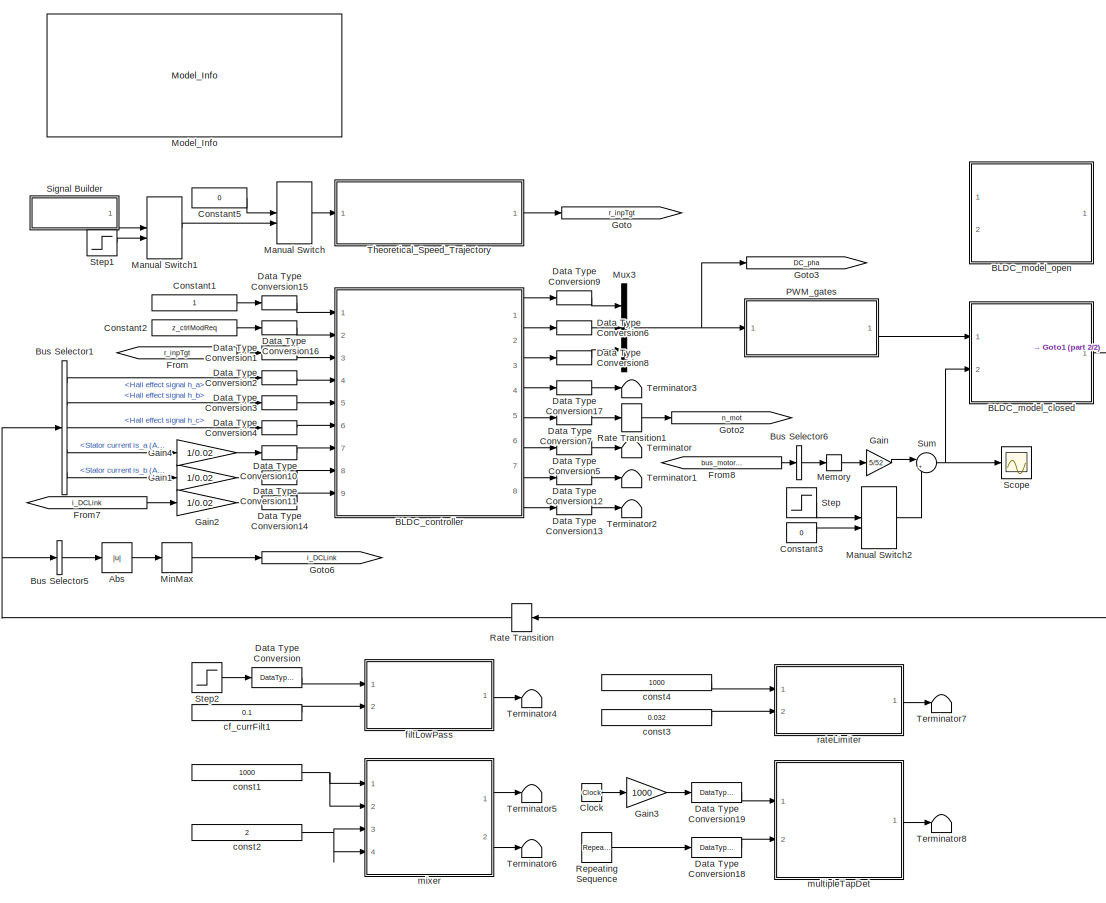
[diagram: root canvas - part 1/2, left side, full height]
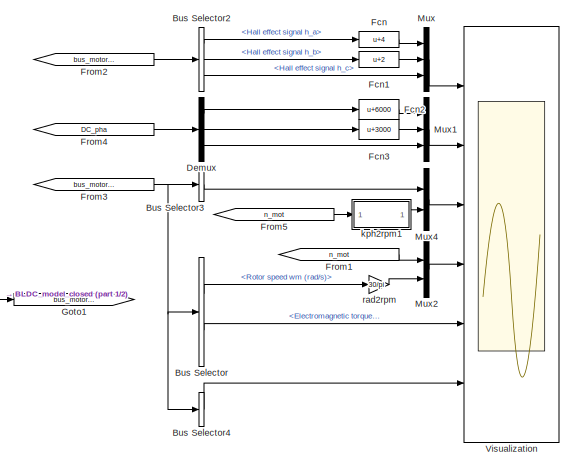
[diagram: root canvas - part 2/2, middle right region]
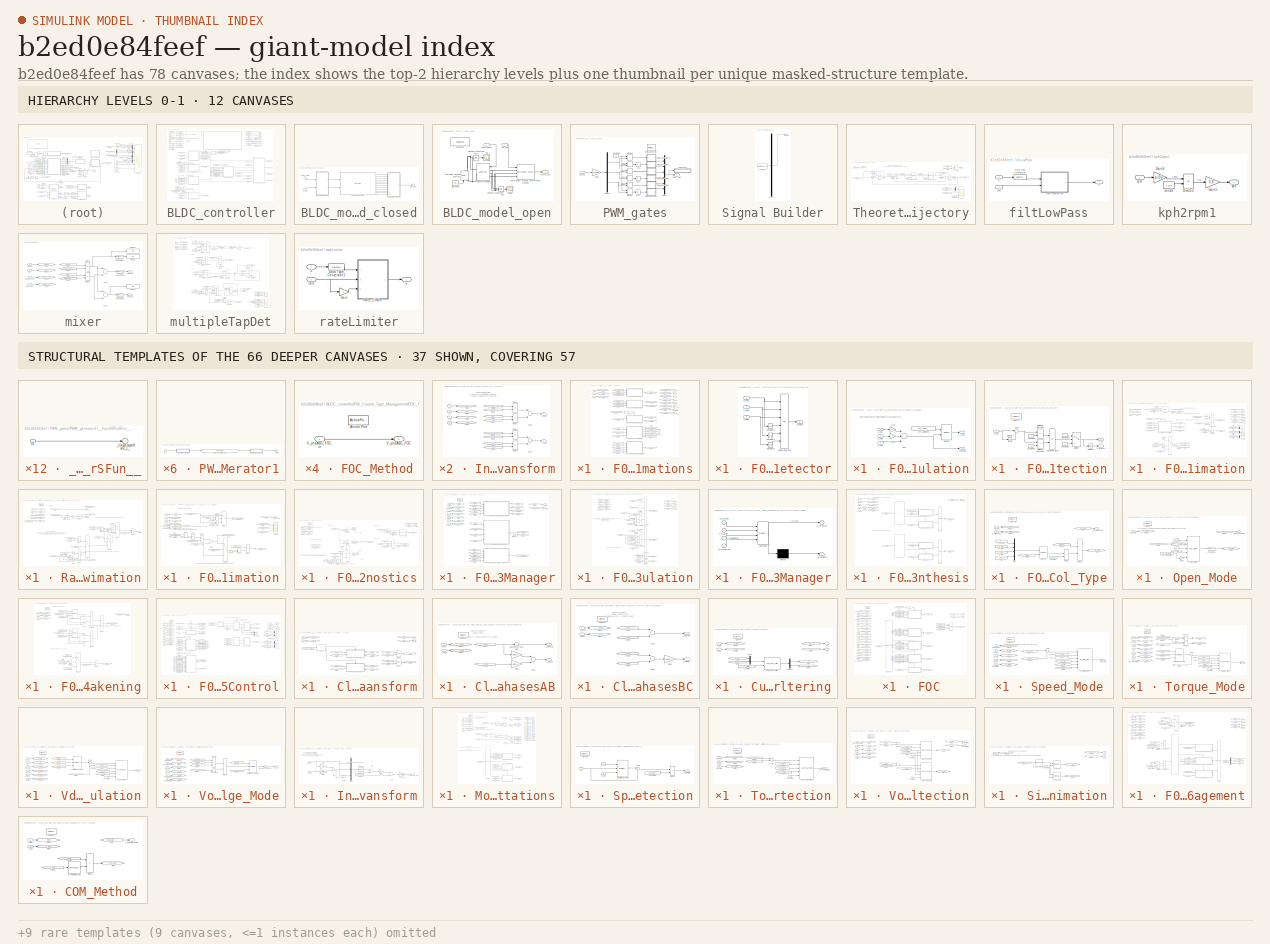
[diagram: thumbnail index - top-2 hierarchy levels (12 canvases) + 37 structural-template representatives of the remaining 66 canvases]
MODEL slx_b2ed0e84feef
KIND model
CONFIG AbsTol = 1e-6
CONFIG EnableMultiTasking = on
CONFIG FixedStep = Ts
CONFIG InitFcn = init_model;
CONFIG MaxStep = 1e-6
CONFIG MinStep = auto
CONFIG PreLoadFcn = addpath(pwd);\naddpath(genpath('01_Libraries'));\naddpath(genpath('02_Figures'));\naddpath(genpath('03_CreateParamTable'));\n
CONFIG RelTol = 1e-6
CONFIG SampleTimeConstraint = Unconstrained
CONFIG Solver = ode4
CONFIG SolverName = ode4
CONFIG StartTime = 0
CONFIG StopTime = 0.5
BLOCK [Abs] Abs
  SaturateOnIntegerOverflow = off
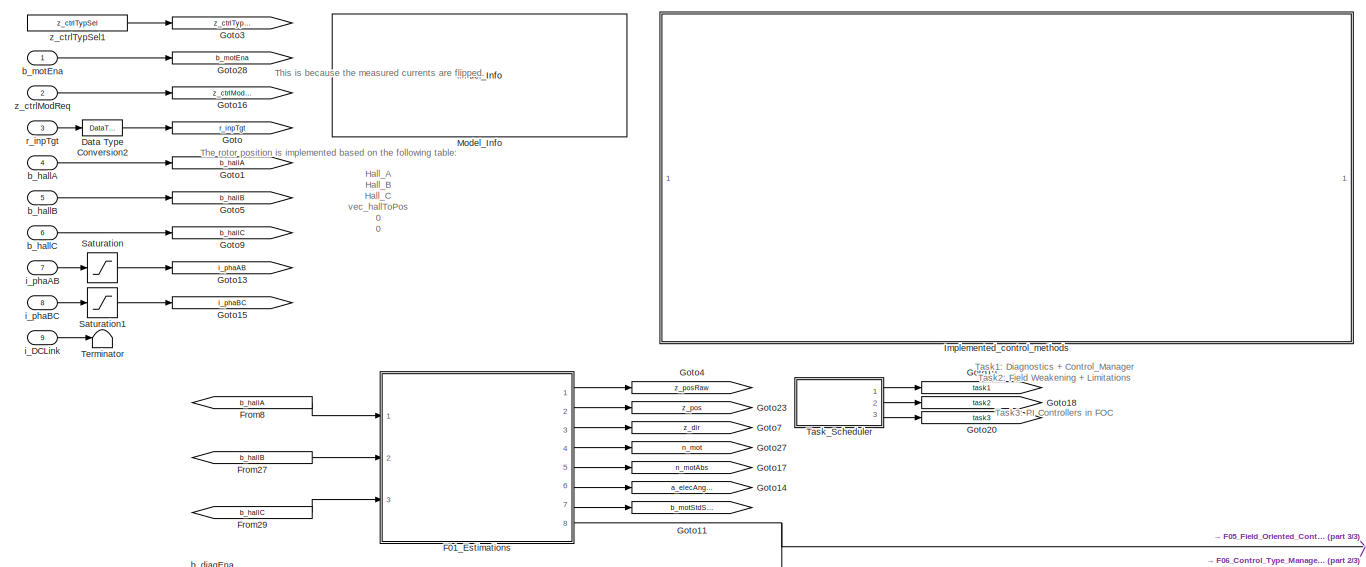
[diagram: BLDC_controller - part 1/3, top center region]
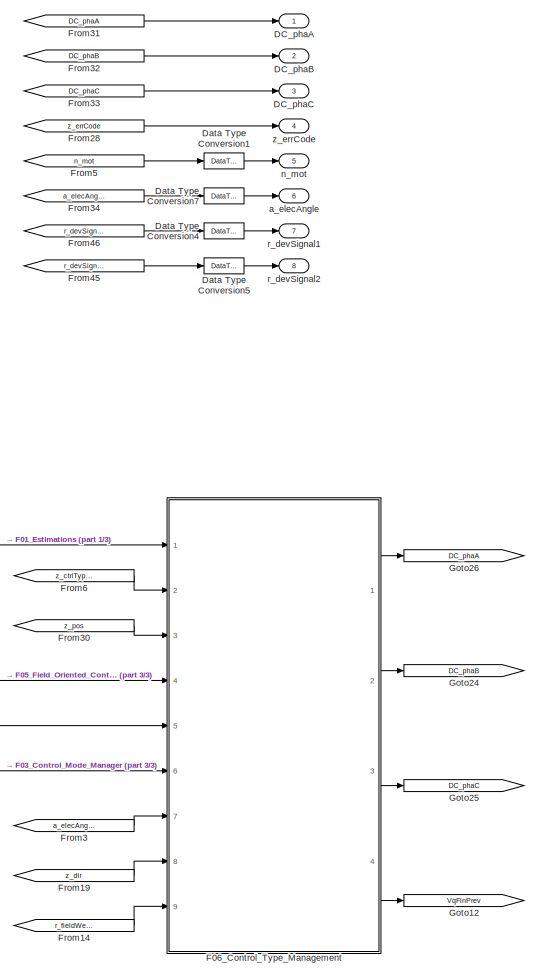
[diagram: BLDC_controller - part 2/3, right side, full height]
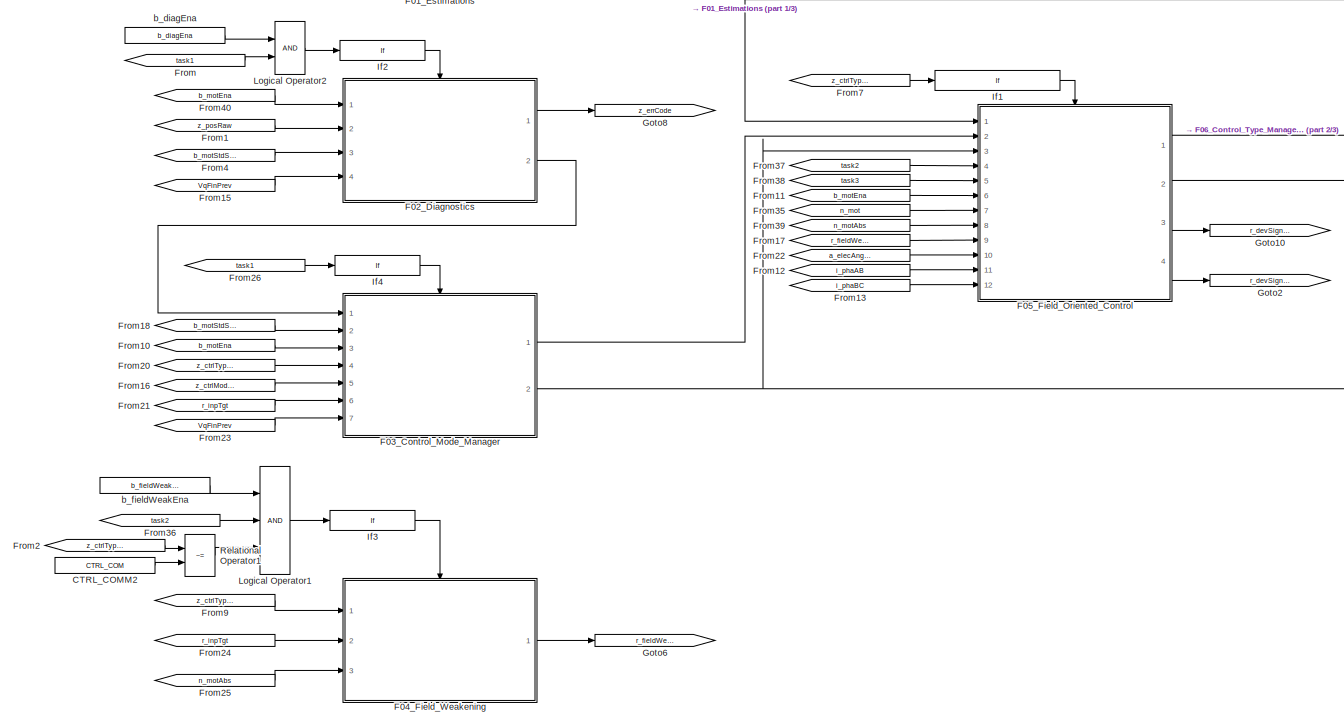
[diagram: BLDC_controller - part 3/3, bottom center region]
BLOCK [SubSystem] BLDC_controller
  Ports = [9, 8]
  RequestExecContextInheritance = off
  SystemSampleTime = Ts_ctrl
  TreatAsAtomicUnit = on
  Variant = off
BLOCK [Constant] BLDC_controller/CTRL_COMM2
  OutDataTypeStr = Inherit: Inherit via back propagation
  Value = CTRL_COM
BLOCK [Outport] BLDC_controller/DC_phaA
  IconDisplay = Port number
BLOCK [Outport] BLDC_controller/DC_phaB
  IconDisplay = Port number
  Port = 2
BLOCK [Outport] BLDC_controller/DC_phaC
  IconDisplay = Port number
  Port = 3
BLOCK [DataTypeConversion] BLDC_controller/Data Type Conversion1
  OutDataTypeStr = int16
  RndMeth = Floor
  SaturateOnIntegerOverflow = off
BLOCK [DataTypeConversion] BLDC_controller/Data Type Conversion2
  OutDataTypeStr = fixdt(1,16,4)
  RndMeth = Floor
BLOCK [DataTypeConversion] BLDC_controller/Data Type Conversion4
  OutDataTypeStr = int16
  RndMeth = Floor
  SaturateOnIntegerOverflow = off
BLOCK [DataTypeConversion] BLDC_controller/Data Type Conversion5
  OutDataTypeStr = int16
  RndMeth = Floor
  SaturateOnIntegerOverflow = off
BLOCK [DataTypeConversion] BLDC_controller/Data Type Conversion7
  OutDataTypeStr = int16
  RndMeth = Floor
  SaturateOnIntegerOverflow = off
BLOCK [SubSystem] BLDC_controller/F01_Estimations
  Ports = [3, 8]
  RequestExecContextInheritance = off
  Variant = off
BLOCK [SubSystem] BLDC_controller/F01_Estimations/F01_01_Edge_Detector
  Ports = [3, 1]
  RequestExecContextInheritance = off
  Variant = off
BLOCK [Logic] BLDC_controller/F01_Estimations/F01_01_Edge_Detector/Logical Operator
  AllPortsSameDT = off
  Inputs = 6
  Operator = XOR
  OutDataTypeStr = boolean
  Ports = [6, 1]
BLOCK [UnitDelay] BLDC_controller/F01_Estimations/F01_01_Edge_Detector/UnitDelay1
  AttributesFormatString = Ini=%<X0>
  SampleTime = -1
BLOCK [UnitDelay] BLDC_controller/F01_Estimations/F01_01_Edge_Detector/UnitDelay2
  AttributesFormatString = Ini=%<X0>
  SampleTime = -1
BLOCK [UnitDelay] BLDC_controller/F01_Estimations/F01_01_Edge_Detector/UnitDelay3
  AttributesFormatString = Ini=%<X0>
  SampleTime = -1
BLOCK [Outport] BLDC_controller/F01_Estimations/F01_01_Edge_Detector/b_edge 
  IconDisplay = Port number
  InitialOutput = 0
  OutputWhenDisabled = reset
BLOCK [Inport] BLDC_controller/F01_Estimations/F01_01_Edge_Detector/b_hallA
  IconDisplay = Port number
BLOCK [Inport] BLDC_controller/F01_Estimations/F01_01_Edge_Detector/b_hallB
  IconDisplay = Port number
  Port = 2
BLOCK [Inport] BLDC_controller/F01_Estimations/F01_01_Edge_Detector/b_hallC
  IconDisplay = Port number
  Port = 3
BLOCK [SubSystem] BLDC_controller/F01_Estimations/F01_02_Position_Calculation
  Ports = [3, 2]
  RequestExecContextInheritance = off
  Variant = off
BLOCK [Selector] BLDC_controller/F01_Estimations/F01_02_Position_Calculation/Selector
  IndexMode = Zero-based
  IndexOptions = Index vector (port)
  Indices = [1 3]
  InputPortWidth = length(vec_hallToPos)
  OutputSizes = 1
  Ports = [2, 1]
BLOCK [Sum] BLDC_controller/F01_Estimations/F01_02_Position_Calculation/Sum
  AccumDataTypeStr = Inherit: Same as first input
  InputSameDT = off
  Inputs = +++
  Ports = [3, 1]
  RndMeth = Simplest
  SaturateOnIntegerOverflow = off
BLOCK [Inport] BLDC_controller/F01_Estimations/F01_02_Position_Calculation/b_hallA
  IconDisplay = Port number
BLOCK [Inport] BLDC_controller/F01_Estimations/F01_02_Position_Calculation/b_hallB
  IconDisplay = Port number
  Port = 2
BLOCK [Inport] BLDC_controller/F01_Estimations/F01_02_Position_Calculation/b_hallC
  IconDisplay = Port number
  Port = 3
BLOCK [Gain] BLDC_controller/F01_Estimations/F01_02_Position_Calculation/g_Ha
  Gain = 4
  OutDataTypeStr = Inherit: Inherit via back propagation
  RndMeth = Zero
  SaturateOnIntegerOverflow = off
BLOCK [Gain] BLDC_controller/F01_Estimations/F01_02_Position_Calculation/g_Hb
  Gain = 2
  OutDataTypeStr = Inherit: Inherit via back propagation
  RndMeth = Simplest
  SaturateOnIntegerOverflow = off
BLOCK [Constant] BLDC_controller/F01_Estimations/F01_02_Position_Calculation/vec_hallToPos
  OutDataTypeStr = int8
  Value = vec_hallToPos
BLOCK [Outport] BLDC_controller/F01_Estimations/F01_02_Position_Calculation/z_pos 
  IconDisplay = Port number
  InitialOutput = 0
  OutputWhenDisabled = reset
  Port = 2
BLOCK [Outport] BLDC_controller/F01_Estimations/F01_02_Position_Calculation/z_posRaw
  IconDisplay = Port number
  InitialOutput = 0
  OutputWhenDisabled = reset
BLOCK [SubSystem] BLDC_controller/F01_Estimations/F01_03_Direction_Detection
  Ports = [1, 2, 0, 0, 0, 0, 0, 1]
  RequestExecContextInheritance = off
  Variant = off
BLOCK [ActionPort] BLDC_controller/F01_Estimations/F01_03_Direction_Detection/Action Port
  ActionType = then
BLOCK [Constant] BLDC_controller/F01_Estimations/F01_03_Direction_Detection/Constant20
  OutDataTypeStr = Inherit: Inherit via back propagation
  Value = -5
BLOCK [Constant] BLDC_controller/F01_Estimations/F01_03_Direction_Detection/Constant23
  OutDataTypeStr = int8
  Value = -1
BLOCK [Constant] BLDC_controller/F01_Estimations/F01_03_Direction_Detection/Constant24
  OutDataTypeStr = int8
BLOCK [Constant] BLDC_controller/F01_Estimations/F01_03_Direction_Detection/Constant8
  OutDataTypeStr = Inherit: Inherit via back propagation
BLOCK [Logic] BLDC_controller/F01_Estimations/F01_03_Direction_Detection/Logical Operator3
  AllPortsSameDT = off
  Operator = OR
  OutDataTypeStr = boolean
  Ports = [2, 1]
BLOCK [RelationalOperator] BLDC_controller/F01_Estimations/F01_03_Direction_Detection/Relational Operator1
  InputSameDT = off
  Operator = ==
  OutDataTypeStr = boolean
  Ports = [2, 1]
  RndMeth = Simplest
BLOCK [RelationalOperator] BLDC_controller/F01_Estimations/F01_03_Direction_Detection/Relational Operator6
  InputSameDT = off
  Operator = ==
  OutDataTypeStr = boolean
  Ports = [2, 1]
  RndMeth = Simplest
BLOCK [Sum] BLDC_controller/F01_Estimations/F01_03_Direction_Detection/Sum2
  AccumDataTypeStr = Inherit: Same as first input
  IconShape = round
  Inputs = |+-
  Ports = [2, 1]
  RndMeth = Zero
  SaturateOnIntegerOverflow = off
BLOCK [Switch] BLDC_controller/F01_Estimations/F01_03_Direction_Detection/Switch2
  Criteria = u2 ~= 0
  InputSameDT = off
  OutDataTypeStr = Inherit: Inherit via back propagation
  RndMeth = Simplest
  SaturateOnIntegerOverflow = off
BLOCK [UnitDelay] BLDC_controller/F01_Estimations/F01_03_Direction_Detection/UnitDelay2
  InputProcessing = Elements as channels (sample based)
  SampleTime = -1
BLOCK [UnitDelay] BLDC_controller/F01_Estimations/F01_03_Direction_Detection/UnitDelay3
  AttributesFormatString = Ini=%<X0>
  SampleTime = -1
BLOCK [Outport] BLDC_controller/F01_Estimations/F01_03_Direction_Detection/z_dir
  IconDisplay = Port number
BLOCK [Outport] BLDC_controller/F01_Estimations/F01_03_Direction_Detection/z_dirPrev
  IconDisplay = Port number
  Port = 2
BLOCK [Inport] BLDC_controller/F01_Estimations/F01_03_Direction_Detection/z_pos
  IconDisplay = Port number
BLOCK [SubSystem] BLDC_controller/F01_Estimations/F01_04_Speed_Estimation
  Ports = [3, 6]
  RequestExecContextInheritance = off
  Variant = off
BLOCK [Abs] BLDC_controller/F01_Estimations/F01_04_Speed_Estimation/Abs5
  OutDataTypeStr = Inherit: Inherit via back propagation
  RndMeth = Zero
  SaturateOnIntegerOverflow = off
BLOCK [Constant] BLDC_controller/F01_Estimations/F01_04_Speed_Estimation/Constant4
  OutDataTypeStr = Inherit: Inherit via back propagation
  Value = 0
BLOCK [Constant] BLDC_controller/F01_Estimations/F01_04_Speed_Estimation/Constant6
  OutDataTypeStr = fixdt(1,16,0)
BLOCK [Reference] BLDC_controller/F01_Estimations/F01_04_Speed_Estimation/Counter  REF=BLDC_controller_Lib/Counter
  AttributesFormatString = Ini=%<z_cntInit>
  Ports = [3, 1]
  SourceBlock = BLDC_controller_Lib/Counter
BLOCK [From] BLDC_controller/F01_Estimations/F01_04_Speed_Estimation/From
  GotoTag = z_counterRaw
BLOCK [From] BLDC_controller/F01_Estimations/F01_04_Speed_Estimation/From1
  GotoTag = n_mot
BLOCK [From] BLDC_controller/F01_Estimations/F01_04_Speed_Estimation/From10
  GotoTag = z_counter
BLOCK [From] BLDC_controller/F01_Estimations/F01_04_Speed_Estimation/From11
  GotoTag = b_motStdStill
BLOCK [From] BLDC_controller/F01_Estimations/F01_04_Speed_Estimation/From12
  GotoTag = z_counter
BLOCK [From] BLDC_controller/F01_Estimations/F01_04_Speed_Estimation/From14
  GotoTag = z_counterRaw
BLOCK [From] BLDC_controller/F01_Estimations/F01_04_Speed_Estimation/From15
  GotoTag = b_edge
BLOCK [From] BLDC_controller/F01_Estimations/F01_04_Speed_Estimation/From16
  GotoTag = b_edge
BLOCK [From] BLDC_controller/F01_Estimations/F01_04_Speed_Estimation/From17
  GotoTag = z_counterRawPrev
BLOCK [From] BLDC_controller/F01_Estimations/F01_04_Speed_Estimation/From18
  GotoTag = b_enaAdvCtrl
BLOCK [From] BLDC_controller/F01_Estimations/F01_04_Speed_Estimation/From19
  GotoTag = z_dir
BLOCK [From] BLDC_controller/F01_Estimations/F01_04_Speed_Estimation/From2
  GotoTag = n_motAbsPrev
BLOCK [From] BLDC_controller/F01_Estimations/F01_04_Speed_Estimation/From21
  GotoTag = n_motRaw
BLOCK [From] BLDC_controller/F01_Estimations/F01_04_Speed_Estimation/From24
  GotoTag = b_enaAdvCtrl
BLOCK [From] BLDC_controller/F01_Estimations/F01_04_Speed_Estimation/From28
  GotoTag = z_dirPrev
BLOCK [From] BLDC_controller/F01_Estimations/F01_04_Speed_Estimation/From29
  GotoTag = n_motAbs
BLOCK [From] BLDC_controller/F01_Estimations/F01_04_Speed_Estimation/From31
  GotoTag = b_edge
BLOCK [From] BLDC_controller/F01_Estimations/F01_04_Speed_Estimation/From4
  GotoTag = n_mot
BLOCK [From] BLDC_controller/F01_Estimations/F01_04_Speed_Estimation/From5
  GotoTag = z_counterRaw
BLOCK [From] BLDC_controller/F01_Estimations/F01_04_Speed_Estimation/From6
  GotoTag = n_motAbs
BLOCK [From] BLDC_controller/F01_Estimations/F01_04_Speed_Estimation/From7
  GotoTag = n_motRaw
BLOCK [From] BLDC_controller/F01_Estimations/F01_04_Speed_Estimation/From8
  GotoTag = dz_trnsDet
BLOCK [From] BLDC_controller/F01_Estimations/F01_04_Speed_Estimation/From9
  GotoTag = n_motAbs
BLOCK [Goto] BLDC_controller/F01_Estimations/F01_04_Speed_Estimation/Goto
  GotoTag = b_edge
BLOCK [Goto] BLDC_controller/F01_Estimations/F01_04_Speed_Estimation/Goto1
  GotoTag = z_dir
BLOCK [Goto] BLDC_controller/F01_Estimations/F01_04_Speed_Estimation/Goto10
  GotoTag = z_counter
BLOCK [Goto] BLDC_controller/F01_Estimations/F01_04_Speed_Estimation/Goto11
  GotoTag = n_motRaw
BLOCK [Goto] BLDC_controller/F01_Estimations/F01_04_Speed_Estimation/Goto12
  GotoTag = n_motAbs
BLOCK [Goto] BLDC_controller/F01_Estimations/F01_04_Speed_Estimation/Goto17
  GotoTag = b_enaAdvCtrl
BLOCK [Goto] BLDC_controller/F01_Estimations/F01_04_Speed_Estimation/Goto2
  GotoTag = z_dirPrev
BLOCK [Goto] BLDC_controller/F01_Estimations/F01_04_Speed_Estimation/Goto22
  GotoTag = z_counterRawPrev
BLOCK [Goto] BLDC_controller/F01_Estimations/F01_04_Speed_Estimation/Goto3
  GotoTag = n_motAbsPrev
BLOCK [Goto] BLDC_controller/F01_Estimations/F01_04_Speed_Estimation/Goto5
  GotoTag = dz_trnsDet
BLOCK [Goto] BLDC_controller/F01_Estimations/F01_04_Speed_Estimation/Goto6
  GotoTag = b_motStdStill
BLOCK [Goto] BLDC_controller/F01_Estimations/F01_04_Speed_Estimation/Goto7
  GotoTag = n_mot
BLOCK [Goto] BLDC_controller/F01_Estimations/F01_04_Speed_Estimation/Goto8
  GotoTag = z_counterRaw
BLOCK [If] BLDC_controller/F01_Estimations/F01_04_Speed_Estimation/If2
  IfExpression = u1 ~= 0
  Ports = [1, 1]
  ShowElse = off
BLOCK [Logic] BLDC_controller/F01_Estimations/F01_04_Speed_Estimation/Logical Operator1
  AllPortsSameDT = off
  Operator = NOT
  OutDataTypeStr = boolean
  Ports = [1, 1]
BLOCK [Logic] BLDC_controller/F01_Estimations/F01_04_Speed_Estimation/Logical Operator2
  AllPortsSameDT = off
  OutDataTypeStr = boolean
  Ports = [2, 1]
BLOCK [Mux] BLDC_controller/F01_Estimations/F01_04_Speed_Estimation/Mux1
  DisplayOption = bar
  Inputs = 2
  Ports = [2, 1]
BLOCK [Mux] BLDC_controller/F01_Estimations/F01_04_Speed_Estimation/Mux2
  DisplayOption = bar
  Inputs = 2
  Ports = [2, 1]
BLOCK [Mux] BLDC_controller/F01_Estimations/F01_04_Speed_Estimation/Mux3
  DisplayOption = bar
  Inputs = 2
  Ports = [2, 1]
BLOCK [SubSystem] BLDC_controller/F01_Estimations/F01_04_Speed_Estimation/Raw_Motor_Speed_Estimation
  Ports = [4, 3, 0, 0, 0, 0, 0, 1]
  RequestExecContextInheritance = off
  Variant = off
BLOCK [Abs] BLDC_controller/F01_Estimations/F01_04_Speed_Estimation/Raw_Motor_Speed_Estimation/Abs2
  OutDataTypeStr = Inherit: Inherit via back propagation
  RndMeth = Zero
  SaturateOnIntegerOverflow = off
BLOCK [ActionPort] BLDC_controller/F01_Estimations/F01_04_Speed_Estimation/Raw_Motor_Speed_Estimation/Action Port
  ActionType = then
BLOCK [Constant] BLDC_controller/F01_Estimations/F01_04_Speed_Estimation/Raw_Motor_Speed_Estimation/Constant4
  OutDataTypeStr = Inherit: Inherit via back propagation
  Value = 0
BLOCK [Product] BLDC_controller/F01_Estimations/F01_04_Speed_Estimation/Raw_Motor_Speed_Estimation/Divide11
  InputSameDT = off
  Inputs = **
  Ports = [2, 1]
  RndMeth = Simplest
  SaturateOnIntegerOverflow = off
BLOCK [Product] BLDC_controller/F01_Estimations/F01_04_Speed_Estimation/Raw_Motor_Speed_Estimation/Divide13
  InputSameDT = off
  Inputs = */
  OutDataTypeStr = fixdt(1,16,4)
  Ports = [2, 1]
  RndMeth = Simplest
  SaturateOnIntegerOverflow = off
BLOCK [Product] BLDC_controller/F01_Estimations/F01_04_Speed_Estimation/Raw_Motor_Speed_Estimation/Divide14
  InputSameDT = off
  Inputs = */
  OutDataTypeStr = fixdt(1,16,4)
  Ports = [2, 1]
  RndMeth = Simplest
  SaturateOnIntegerOverflow = off
BLOCK [From] BLDC_controller/F01_Estimations/F01_04_Speed_Estimation/Raw_Motor_Speed_Estimation/From
  GotoTag = cf_speedCoef
BLOCK [From] BLDC_controller/F01_Estimations/F01_04_Speed_Estimation/Raw_Motor_Speed_Estimation/From1
  GotoTag = z_counterRawPrev
BLOCK [From] BLDC_controller/F01_Estimations/F01_04_Speed_Estimation/Raw_Motor_Speed_Estimation/From12
  GotoTag = z_counter
BLOCK [From] BLDC_controller/F01_Estimations/F01_04_Speed_Estimation/Raw_Motor_Speed_Estimation/From13
  GotoTag = z_counter
BLOCK [From] BLDC_controller/F01_Estimations/F01_04_Speed_Estimation/Raw_Motor_Speed_Estimation/From21
  GotoTag = z_dirPrev
BLOCK [From] BLDC_controller/F01_Estimations/F01_04_Speed_Estimation/Raw_Motor_Speed_Estimation/From4
  GotoTag = z_dir
BLOCK [From] BLDC_controller/F01_Estimations/F01_04_Speed_Estimation/Raw_Motor_Speed_Estimation/From5
  GotoTag = cf_speedCoef
BLOCK [From] BLDC_controller/F01_Estimations/F01_04_Speed_Estimation/Raw_Motor_Speed_Estimation/From6
  GotoTag = z_dir
BLOCK [From] BLDC_controller/F01_Estimations/F01_04_Speed_Estimation/Raw_Motor_Speed_Estimation/From7
  GotoTag = n_motAbsPrev
BLOCK [From] BLDC_controller/F01_Estimations/F01_04_Speed_Estimation/Raw_Motor_Speed_Estimation/From8
  GotoTag = dz_trnsDet
BLOCK [From] BLDC_controller/F01_Estimations/F01_04_Speed_Estimation/Raw_Motor_Speed_Estimation/From9
  GotoTag = z_counter
BLOCK [Goto] BLDC_controller/F01_Estimations/F01_04_Speed_Estimation/Raw_Motor_Speed_Estimation/Goto
  GotoTag = z_dir
BLOCK [Goto] BLDC_controller/F01_Estimations/F01_04_Speed_Estimation/Raw_Motor_Speed_Estimation/Goto1
  GotoTag = z_counter
BLOCK [Goto] BLDC_controller/F01_Estimations/F01_04_Speed_Estimation/Raw_Motor_Speed_Estimation/Goto3
  GotoTag = z_dirPrev
BLOCK [Goto] BLDC_controller/F01_Estimations/F01_04_Speed_Estimation/Raw_Motor_Speed_Estimation/Goto4
  GotoTag = n_motAbsPrev
BLOCK [Goto] BLDC_controller/F01_Estimations/F01_04_Speed_Estimation/Raw_Motor_Speed_Estimation/Goto5
  GotoTag = z_counterRawPrev
BLOCK [Goto] BLDC_controller/F01_Estimations/F01_04_Speed_Estimation/Raw_Motor_Speed_Estimation/Goto6
  GotoTag = dz_trnsDet
BLOCK [Goto] BLDC_controller/F01_Estimations/F01_04_Speed_Estimation/Raw_Motor_Speed_Estimation/Goto7
  GotoTag = cf_speedCoef
BLOCK [Logic] BLDC_controller/F01_Estimations/F01_04_Speed_Estimation/Raw_Motor_Speed_Estimation/Logical Operator1
  AllPortsSameDT = off
  OutDataTypeStr = boolean
  Ports = [2, 1]
BLOCK [RelationalOperator] BLDC_controller/F01_Estimations/F01_04_Speed_Estimation/Raw_Motor_Speed_Estimation/Relational Operator4
  InputSameDT = off
  Operator = ~=
  OutDataTypeStr = boolean
  Ports = [2, 1]
  RndMeth = Simplest
BLOCK [Sum] BLDC_controller/F01_Estimations/F01_04_Speed_Estimation/Raw_Motor_Speed_Estimation/Sum13
  Inputs = ++++
  Ports = [4, 1]
  RndMeth = Simplest
  SaturateOnIntegerOverflow = off
BLOCK [Sum] BLDC_controller/F01_Estimations/F01_04_Speed_Estimation/Raw_Motor_Speed_Estimation/Sum7
  Inputs = +-
  Ports = [2, 1]
  RndMeth = Simplest
  SaturateOnIntegerOverflow = off
BLOCK [Switch] BLDC_controller/F01_Estimations/F01_04_Speed_Estimation/Raw_Motor_Speed_Estimation/Switch1
  AttributesFormatString = threshold=%<threshold>\nCriteria : %<Criteria>
  Criteria = u2 ~= 0
  SaturateOnIntegerOverflow = off
  Tag = struct('comment',struct('text','','placement',1),'logdata',struct('maxnumvals',inf,'plotchannels',[],'loggingmode',3,'channels',1),'output',struct('variable','','description','','name','$S_$B','width',1,'address','','max',NaN,'min',NaN,'class','default','type','CONTINUOUS','scaling','','lsb',1,'offset',0,'arb',0,'freeze',1,'unit','','autoscalingmode',1,'lowerheadroom',1,'upperheadroom',1,'headroom...<+413ch>  <repeated x3 — deduplicated; at blocks: Switch1, Switch2, Switch3>
BLOCK [Switch] BLDC_controller/F01_Estimations/F01_04_Speed_Estimation/Raw_Motor_Speed_Estimation/Switch2
  AttributesFormatString = threshold=%<threshold>\nCriteria : %<Criteria>
  Criteria = u2 ~= 0
  SaturateOnIntegerOverflow = off
BLOCK [Switch] BLDC_controller/F01_Estimations/F01_04_Speed_Estimation/Raw_Motor_Speed_Estimation/Switch3
  AttributesFormatString = threshold=%<threshold>\nCriteria : %<Criteria>
  Criteria = u2 ~= 0
  SaturateOnIntegerOverflow = off
BLOCK [UnitDelay] BLDC_controller/F01_Estimations/F01_04_Speed_Estimation/Raw_Motor_Speed_Estimation/UnitDelay1
  AttributesFormatString = Ini=%<X0>
  SampleTime = -1
BLOCK [UnitDelay] BLDC_controller/F01_Estimations/F01_04_Speed_Estimation/Raw_Motor_Speed_Estimation/UnitDelay2
  AttributesFormatString = Ini=%<X0>
  SampleTime = -1
BLOCK [UnitDelay] BLDC_controller/F01_Estimations/F01_04_Speed_Estimation/Raw_Motor_Speed_Estimation/UnitDelay3
  AttributesFormatString = Ini=%<X0>
  SampleTime = -1
BLOCK [UnitDelay] BLDC_controller/F01_Estimations/F01_04_Speed_Estimation/Raw_Motor_Speed_Estimation/UnitDelay4
  AttributesFormatString = Ini=%<X0>
  SampleTime = -1
BLOCK [UnitDelay] BLDC_controller/F01_Estimations/F01_04_Speed_Estimation/Raw_Motor_Speed_Estimation/UnitDelay5
  AttributesFormatString = Ini=%<X0>
  SampleTime = -1
BLOCK [Constant] BLDC_controller/F01_Estimations/F01_04_Speed_Estimation/Raw_Motor_Speed_Estimation/cf_speedCoef
  OutDataTypeStr = fixdt(0,16,0)
  Value = cf_speedCoef
BLOCK [Relay] BLDC_controller/F01_Estimations/F01_04_Speed_Estimation/Raw_Motor_Speed_Estimation/dz_cntTrnsDet
  InputProcessing = Elements as channels (sample based)
  OffSwitchValue = dz_cntTrnsDetLo
  OnSwitchValue = dz_cntTrnsDetHi
  OutDataTypeStr = boolean
BLOCK [Outport] BLDC_controller/F01_Estimations/F01_04_Speed_Estimation/Raw_Motor_Speed_Estimation/dz_trnsDet
  IconDisplay = Port number
  Port = 2
BLOCK [Gain] BLDC_controller/F01_Estimations/F01_04_Speed_Estimation/Raw_Motor_Speed_Estimation/g_Ha
  Gain = 4
  OutDataTypeStr = Inherit: Inherit via back propagation
  RndMeth = Zero
  SaturateOnIntegerOverflow = off
BLOCK [Inport] BLDC_controller/F01_Estimations/F01_04_Speed_Estimation/Raw_Motor_Speed_Estimation/n_motAbsPrev
  IconDisplay = Port number
  Port = 4
BLOCK [Outport] BLDC_controller/F01_Estimations/F01_04_Speed_Estimation/Raw_Motor_Speed_Estimation/n_motRaw
  IconDisplay = Port number
  Port = 3
BLOCK [Outport] BLDC_controller/F01_Estimations/F01_04_Speed_Estimation/Raw_Motor_Speed_Estimation/z_counter
  IconDisplay = Port number
  InitialOutput = z_maxCntRst
BLOCK [Inport] BLDC_controller/F01_Estimations/F01_04_Speed_Estimation/Raw_Motor_Speed_Estimation/z_counterRawPrev
  IconDisplay = Port number
  Port = 3
BLOCK [Inport] BLDC_controller/F01_Estimations/F01_04_Speed_Estimation/Raw_Motor_Speed_Estimation/z_dir
  IconDisplay = Port number
BLOCK [Inport] BLDC_controller/F01_Estimations/F01_04_Speed_Estimation/Raw_Motor_Speed_Estimation/z_dirPrev
  IconDisplay = Port number
  Port = 2
BLOCK [RelationalOperator] BLDC_controller/F01_Estimations/F01_04_Speed_Estimation/Relational Operator2
  InputSameDT = off
  Operator = >
  OutDataTypeStr = boolean
  Ports = [2, 1]
  RndMeth = Simplest
BLOCK [RelationalOperator] BLDC_controller/F01_Estimations/F01_04_Speed_Estimation/Relational Operator9
  InputSameDT = off
  Operator = <
  OutDataTypeStr = boolean
  Ports = [2, 1]
  RndMeth = Simplest
BLOCK [Scope] BLDC_controller/F01_Estimations/F01_04_Speed_Estimation/Scope2
  NumInputPorts = 3
  Ports = [3]
  ScopeSpecificationString = Simulink.scopes.TimeScopeBlockCfg('CurrentConfiguration', extmgr.ConfigurationSet(extmgr.Configuration('Core','General UI',true),extmgr.Configuration('Core','Source UI',true),extmgr.Configuration('Sources','WiredSimulink',true,'DataLoggingVariableName','ScopeData1'),extmgr.Configuration('Visuals','Time Domain',true,'SerializedDisplays',{struct('MinYLimReal','-0.125','MaxYLimReal','1.125','YLabelRe...<+3162ch>
BLOCK [Switch] BLDC_controller/F01_Estimations/F01_04_Speed_Estimation/Switch2
  Criteria = u2 ~= 0
  InputSameDT = off
  OutDataTypeStr = Inherit: Inherit via back propagation
  RndMeth = Zero
  SaturateOnIntegerOverflow = off
BLOCK [UnitDelay] BLDC_controller/F01_Estimations/F01_04_Speed_Estimation/UnitDelay3
  AttributesFormatString = Ini=%<X0>
  InitialCondition = z_maxCntRst
  SampleTime = -1
BLOCK [UnitDelay] BLDC_controller/F01_Estimations/F01_04_Speed_Estimation/UnitDelay4
  AttributesFormatString = Ini=%<X0>
  SampleTime = -1
BLOCK [Inport] BLDC_controller/F01_Estimations/F01_04_Speed_Estimation/b_edge
  IconDisplay = Port number
BLOCK [Outport] BLDC_controller/F01_Estimations/F01_04_Speed_Estimation/b_enaAdvCtrl
  IconDisplay = Port number
  Port = 6
BLOCK [Outport] BLDC_controller/F01_Estimations/F01_04_Speed_Estimation/b_motStdStill
  IconDisplay = Port number
  InitialOutput = 0
  OutputWhenDisabled = reset
  Port = 5
BLOCK [Relay] BLDC_controller/F01_Estimations/F01_04_Speed_Estimation/n_commDeacv
  InputProcessing = Elements as channels (sample based)
  OffSwitchValue = n_commAcvLo
  OnSwitchValue = n_commDeacvHi
  OutDataTypeStr = boolean
BLOCK [Outport] BLDC_controller/F01_Estimations/F01_04_Speed_Estimation/n_mot
  IconDisplay = Port number
BLOCK [Outport] BLDC_controller/F01_Estimations/F01_04_Speed_Estimation/n_motAbs
  IconDisplay = Port number
  Port = 2
BLOCK [Constant] BLDC_controller/F01_Estimations/F01_04_Speed_Estimation/n_stdStillDet
  OutDataTypeStr = Inherit: Inherit via back propagation
  Value = n_stdStillDet
BLOCK [Outport] BLDC_controller/F01_Estimations/F01_04_Speed_Estimation/z_counter
  IconDisplay = Port number
  InitialOutput = 0
  OutputWhenDisabled = reset
  Port = 3
BLOCK [Outport] BLDC_controller/F01_Estimations/F01_04_Speed_Estimation/z_counterRaw
  IconDisplay = Port number
  InitialOutput = 0
  OutputWhenDisabled = reset
  Port = 4
BLOCK [Inport] BLDC_controller/F01_Estimations/F01_04_Speed_Estimation/z_dir
  IconDisplay = Port number
  Port = 2
BLOCK [Inport] BLDC_controller/F01_Estimations/F01_04_Speed_Estimation/z_dirPrev
  IconDisplay = Port number
  Port = 3
BLOCK [Constant] BLDC_controller/F01_Estimations/F01_04_Speed_Estimation/z_maxCntRst
  OutDataTypeStr = Inherit: Inherit via back propagation
  Value = z_maxCntRst
BLOCK [Constant] BLDC_controller/F01_Estimations/F01_04_Speed_Estimation/z_maxCntRst2
  OutDataTypeStr = Inherit: Inherit via back propagation
  Value = z_maxCntRst
BLOCK [SubSystem] BLDC_controller/F01_Estimations/F01_05_Electrical_Angle_Estimation
  Ports = [5, 1]
  RequestExecContextInheritance = off
  Variant = off
BLOCK [Constant] BLDC_controller/F01_Estimations/F01_05_Electrical_Angle_Estimation/Constant1
  OutDataTypeStr = Inherit: Inherit via back propagation
  Value = 0
BLOCK [Constant] BLDC_controller/F01_Estimations/F01_05_Electrical_Angle_Estimation/Constant16
  OutDataTypeStr = Inherit: Inherit via back propagation
BLOCK [Constant] BLDC_controller/F01_Estimations/F01_05_Electrical_Angle_Estimation/Constant2
  OutDataTypeStr = Inherit: Inherit via back propagation
BLOCK [Product] BLDC_controller/F01_Estimations/F01_05_Electrical_Angle_Estimation/Divide1
  InputSameDT = off
  Inputs = */
  OutDataTypeStr = fixdt(1,16,14)
  Ports = [2, 1]
  RndMeth = Simplest
  SaturateOnIntegerOverflow = off
BLOCK [Product] BLDC_controller/F01_Estimations/F01_05_Electrical_Angle_Estimation/Divide2
  InputSameDT = off
  Inputs = **
  Ports = [2, 1]
  RndMeth = Simplest
  SaturateOnIntegerOverflow = off
BLOCK [Product] BLDC_controller/F01_Estimations/F01_05_Electrical_Angle_Estimation/Divide3
  InputSameDT = off
  Inputs = **
  Ports = [2, 1]
  RndMeth = Simplest
  SaturateOnIntegerOverflow = off
BLOCK [From] BLDC_controller/F01_Estimations/F01_05_Electrical_Angle_Estimation/From
  GotoTag = z_posHighRes
BLOCK [From] BLDC_controller/F01_Estimations/F01_05_Electrical_Angle_Estimation/From10
  GotoTag = b_enaAdvCtrl
BLOCK [From] BLDC_controller/F01_Estimations/F01_05_Electrical_Angle_Estimation/From11
  GotoTag = b_enaAdvCtrl
BLOCK [From] BLDC_controller/F01_Estimations/F01_05_Electrical_Angle_Estimation/From12
  GotoTag = z_posLowRes
BLOCK [From] BLDC_controller/F01_Estimations/F01_05_Electrical_Angle_Estimation/From2
  GotoTag = a_elecAngle
BLOCK [From] BLDC_controller/F01_Estimations/F01_05_Electrical_Angle_Estimation/From5
  GotoTag = a_elecAngle
BLOCK [From] BLDC_controller/F01_Estimations/F01_05_Electrical_Angle_Estimation/From51
  GotoTag = z_pos
BLOCK [From] BLDC_controller/F01_Estimations/F01_05_Electrical_Angle_Estimation/From54
  GotoTag = z_dir
BLOCK [From] BLDC_controller/F01_Estimations/F01_05_Electrical_Angle_Estimation/From6
  GotoTag = z_counter
BLOCK [From] BLDC_controller/F01_Estimations/F01_05_Electrical_Angle_Estimation/From7
  GotoTag = z_counterRaw
BLOCK [From] BLDC_controller/F01_Estimations/F01_05_Electrical_Angle_Estimation/From9
  GotoTag = z_dir
BLOCK [Goto] BLDC_controller/F01_Estimations/F01_05_Electrical_Angle_Estimation/Goto
  GotoTag = z_pos
BLOCK [Goto] BLDC_controller/F01_Estimations/F01_05_Electrical_Angle_Estimation/Goto1
  GotoTag = z_dir
BLOCK [Goto] BLDC_controller/F01_Estimations/F01_05_Electrical_Angle_Estimation/Goto2
  GotoTag = z_counter
BLOCK [Goto] BLDC_controller/F01_Estimations/F01_05_Electrical_Angle_Estimation/Goto3
  GotoTag = z_counterRaw
BLOCK [Goto] BLDC_controller/F01_Estimations/F01_05_Electrical_Angle_Estimation/Goto4
  GotoTag = z_posLowRes
BLOCK [Goto] BLDC_controller/F01_Estimations/F01_05_Electrical_Angle_Estimation/Goto5
  GotoTag = z_posHighRes
BLOCK [Goto] BLDC_controller/F01_Estimations/F01_05_Electrical_Angle_Estimation/Goto6
  GotoTag = b_enaAdvCtrl
BLOCK [Goto] BLDC_controller/F01_Estimations/F01_05_Electrical_Angle_Estimation/Goto7
  GotoTag = a_elecAngle
BLOCK [MinMax] BLDC_controller/F01_Estimations/F01_05_Electrical_Angle_Estimation/MinMax
  InputSameDT = off
  Inputs = 2
  Ports = [2, 1]
  SaturateOnIntegerOverflow = off
BLOCK [MinMax] BLDC_controller/F01_Estimations/F01_05_Electrical_Angle_Estimation/MinMax1
  Function = max
  InputSameDT = off
  Inputs = 2
  Ports = [2, 1]
  SaturateOnIntegerOverflow = off
BLOCK [RelationalOperator] BLDC_controller/F01_Estimations/F01_05_Electrical_Angle_Estimation/Relational Operator7
  InputSameDT = off
  Operator = ==
  OutDataTypeStr = boolean
  Ports = [2, 1]
  RndMeth = Simplest
BLOCK [Scope] BLDC_controller/F01_Estimations/F01_05_Electrical_Angle_Estimation/Scope
  NumInputPorts = 3
  Ports = [3]
  ScopeSpecificationString = Simulink.scopes.TimeScopeBlockCfg('CurrentConfiguration', extmgr.ConfigurationSet(extmgr.Configuration('Core','General UI',true),extmgr.Configuration('Core','Source UI',true),extmgr.Configuration('Sources','WiredSimulink',true,'DataLoggingVariableName','ScopeData1'),extmgr.Configuration('Visuals','Time Domain',true,'SerializedDisplays',{struct('MinYLimReal','-45.00000','MaxYLimReal','405.00000','Y...<+2740ch>
BLOCK [Sum] BLDC_controller/F01_Estimations/F01_05_Electrical_Angle_Estimation/Sum1
  AccumDataTypeStr = Inherit: Same as first input
  InputSameDT = off
  Ports = [2, 1]
  RndMeth = Simplest
  SaturateOnIntegerOverflow = off
BLOCK [Sum] BLDC_controller/F01_Estimations/F01_05_Electrical_Angle_Estimation/Sum3
  InputSameDT = off
  OutDataTypeStr = fixdt(1,16,12)
  Ports = [2, 1]
  RndMeth = Simplest
  SaturateOnIntegerOverflow = off
BLOCK [Switch] BLDC_controller/F01_Estimations/F01_05_Electrical_Angle_Estimation/Switch2
  Criteria = u2 ~= 0
  InputSameDT = off
  OutDataTypeStr = Inherit: Inherit via back propagation
  RndMeth = Zero
  SaturateOnIntegerOverflow = off
BLOCK [Switch] BLDC_controller/F01_Estimations/F01_05_Electrical_Angle_Estimation/Switch3
  Criteria = u2 ~= 0
  InputSameDT = off
  OutDataTypeStr = Inherit: Inherit via back propagation
  RndMeth = Zero
  SaturateOnIntegerOverflow = off
BLOCK [Outport] BLDC_controller/F01_Estimations/F01_05_Electrical_Angle_Estimation/a_elecAngle
  IconDisplay = Port number
  InitialOutput = 0
  OutputWhenDisabled = reset
BLOCK [Constant] BLDC_controller/F01_Estimations/F01_05_Electrical_Angle_Estimation/a_elecAngle1
  OutDataTypeStr = fixdt(1,16,6)
  Value = a_elecAngle
BLOCK [Inport] BLDC_controller/F01_Estimations/F01_05_Electrical_Angle_Estimation/b_enaAdvCtrl
  IconDisplay = Port number
  Port = 5
BLOCK [Inport] BLDC_controller/F01_Estimations/F01_05_Electrical_Angle_Estimation/z_counter
  IconDisplay = Port number
  Port = 3
BLOCK [Inport] BLDC_controller/F01_Estimations/F01_05_Electrical_Angle_Estimation/z_counterRaw
  IconDisplay = Port number
  Port = 4
BLOCK [Inport] BLDC_controller/F01_Estimations/F01_05_Electrical_Angle_Estimation/z_dir
  IconDisplay = Port number
  Port = 2
BLOCK [Inport] BLDC_controller/F01_Estimations/F01_05_Electrical_Angle_Estimation/z_pos
  IconDisplay = Port number
BLOCK [From] BLDC_controller/F01_Estimations/From1
  GotoTag = b_edge
BLOCK [From] BLDC_controller/F01_Estimations/From10
  GotoTag = z_pos
BLOCK [From] BLDC_controller/F01_Estimations/From12
  GotoTag = a_elecAngle
BLOCK [From] BLDC_controller/F01_Estimations/From13
  GotoTag = z_dir
BLOCK [From] BLDC_controller/F01_Estimations/From14
  GotoTag = n_motAbs
BLOCK [From] BLDC_controller/F01_Estimations/From15
  GotoTag = z_dirPrev
BLOCK [From] BLDC_controller/F01_Estimations/From17
  GotoTag = z_pos
BLOCK [From] BLDC_controller/F01_Estimations/From18
  GotoTag = b_enaAdvCtrl
BLOCK [From] BLDC_controller/F01_Estimations/From2
  GotoTag = b_hallA
BLOCK [From] BLDC_controller/F01_Estimations/From20
  GotoTag = z_dir
BLOCK [From] BLDC_controller/F01_Estimations/From21
  GotoTag = z_counter
BLOCK [From] BLDC_controller/F01_Estimations/From22
  GotoTag = z_counterRaw
BLOCK [From] BLDC_controller/F01_Estimations/From23
  GotoTag = b_enaAdvCtrl
BLOCK [From] BLDC_controller/F01_Estimations/From25
  GotoTag = b_motStdStill
BLOCK [From] BLDC_controller/F01_Estimations/From26
  GotoTag = z_dir
BLOCK [From] BLDC_controller/F01_Estimations/From3
  GotoTag = b_hallB
BLOCK [From] BLDC_controller/F01_Estimations/From36
  GotoTag = z_pos
BLOCK [From] BLDC_controller/F01_Estimations/From38
  GotoTag = b_edge
BLOCK [From] BLDC_controller/F01_Estimations/From4
  GotoTag = b_hallC
BLOCK [From] BLDC_controller/F01_Estimations/From5
  GotoTag = b_hallA
BLOCK [From] BLDC_controller/F01_Estimations/From6
  GotoTag = b_hallB
BLOCK [From] BLDC_controller/F01_Estimations/From7
  GotoTag = b_hallC
BLOCK [From] BLDC_controller/F01_Estimations/From8
  GotoTag = n_mot
BLOCK [From] BLDC_controller/F01_Estimations/From9
  GotoTag = z_posRaw
BLOCK [Goto] BLDC_controller/F01_Estimations/Goto
  GotoTag = b_hallA
BLOCK [Goto] BLDC_controller/F01_Estimations/Goto1
  GotoTag = b_hallB
BLOCK [Goto] BLDC_controller/F01_Estimations/Goto10
  GotoTag = a_elecAngle
BLOCK [Goto] BLDC_controller/F01_Estimations/Goto11
  GotoTag = b_enaAdvCtrl
BLOCK [Goto] BLDC_controller/F01_Estimations/Goto12
  GotoTag = n_motAbs
BLOCK [Goto] BLDC_controller/F01_Estimations/Goto16
  GotoTag = z_pos
BLOCK [Goto] BLDC_controller/F01_Estimations/Goto17
  GotoTag = b_motStdStill
BLOCK [Goto] BLDC_controller/F01_Estimations/Goto2
  GotoTag = b_hallC
BLOCK [Goto] BLDC_controller/F01_Estimations/Goto21
  GotoTag = z_dir
BLOCK [Goto] BLDC_controller/F01_Estimations/Goto4
  GotoTag = n_mot
BLOCK [Goto] BLDC_controller/F01_Estimations/Goto5
  GotoTag = z_counter
BLOCK [Goto] BLDC_controller/F01_Estimations/Goto6
  GotoTag = z_counterRaw
BLOCK [Goto] BLDC_controller/F01_Estimations/Goto7
  GotoTag = b_edge
BLOCK [Goto] BLDC_controller/F01_Estimations/Goto8
  GotoTag = z_posRaw
BLOCK [Goto] BLDC_controller/F01_Estimations/Goto9
  GotoTag = z_dirPrev
BLOCK [If] BLDC_controller/F01_Estimations/If2
  IfExpression = u1 ~= 0
  Ports = [1, 1]
  ShowElse = off
BLOCK [Outport] BLDC_controller/F01_Estimations/a_elecAngle
  IconDisplay = Port number
  InitialOutput = 0
  OutputWhenDisabled = reset
  Port = 6
BLOCK [Outport] BLDC_controller/F01_Estimations/b_enaAdvCtrl
  IconDisplay = Port number
  Port = 8
BLOCK [Inport] BLDC_controller/F01_Estimations/b_hallA
  IconDisplay = Port number
BLOCK [Inport] BLDC_controller/F01_Estimations/b_hallB
  IconDisplay = Port number
  Port = 2
BLOCK [Inport] BLDC_controller/F01_Estimations/b_hallC
  IconDisplay = Port number
  Port = 3
BLOCK [Outport] BLDC_controller/F01_Estimations/b_motStdStill
  IconDisplay = Port number
  InitialOutput = 0
  OutputWhenDisabled = reset
  Port = 7
BLOCK [Outport] BLDC_controller/F01_Estimations/n_mot 
  IconDisplay = Port number
  InitialOutput = 0
  OutputWhenDisabled = reset
  Port = 4
BLOCK [Outport] BLDC_controller/F01_Estimations/n_motAbs
  IconDisplay = Port number
  InitialOutput = 0
  OutputWhenDisabled = reset
  Port = 5
BLOCK [Outport] BLDC_controller/F01_Estimations/z_dir
  IconDisplay = Port number
  InitialOutput = 0
  OutputWhenDisabled = reset
  Port = 3
BLOCK [Outport] BLDC_controller/F01_Estimations/z_pos
  IconDisplay = Port number
  InitialOutput = 0
  OutputWhenDisabled = reset
  Port = 2
BLOCK [Outport] BLDC_controller/F01_Estimations/z_posRaw
  IconDisplay = Port number
  InitialOutput = 0
  OutputWhenDisabled = reset
BLOCK [SubSystem] BLDC_controller/F02_Diagnostics
  Ports = [4, 2, 0, 0, 0, 0, 0, 1]
  RequestExecContextInheritance = off
  Variant = off
BLOCK [Abs] BLDC_controller/F02_Diagnostics/Abs4
  SaturateOnIntegerOverflow = off
BLOCK [ActionPort] BLDC_controller/F02_Diagnostics/Action Port
  ActionType = then
BLOCK [Reference] BLDC_controller/F02_Diagnostics/Bitwise Operator1  REF=simulink/Logic and Bit
Operations/Bitwise
Operator
  Ports = [1, 1]
  SourceBlock = simulink/Logic and Bit\nOperations/Bitwise\nOperator
  SourceProductBaseCode = SL
  SourceProductName = Simulink
  SourceType = Bitwise Operator
BLOCK [Constant] BLDC_controller/F02_Diagnostics/CTRL_COMM
  OutDataTypeStr = Inherit: Inherit via back propagation
  Value = 0
BLOCK [Constant] BLDC_controller/F02_Diagnostics/CTRL_COMM1
  OutDataTypeStr = Inherit: Inherit via back propagation
  Value = 7
BLOCK [Constant] BLDC_controller/F02_Diagnostics/CTRL_COMM2
  OutDataTypeStr = Inherit: Inherit via back propagation
  Value = 0
BLOCK [Constant] BLDC_controller/F02_Diagnostics/CTRL_COMM4
  OutDataTypeStr = Inherit: Inherit via back propagation
BLOCK [DataTypeConversion] BLDC_controller/F02_Diagnostics/Data Type Conversion
  OutDataTypeStr = uint8
  RndMeth = Floor
  SaturateOnIntegerOverflow = off
BLOCK [DataTypeConversion] BLDC_controller/F02_Diagnostics/Data Type Conversion1
  OutDataTypeStr = uint8
  RndMeth = Floor
  SaturateOnIntegerOverflow = off
BLOCK [DataTypeConversion] BLDC_controller/F02_Diagnostics/Data Type Conversion3
  OutDataTypeStr = uint8
  RndMeth = Floor
  SaturateOnIntegerOverflow = off
BLOCK [Reference] BLDC_controller/F02_Diagnostics/Debounce_Filter  REF=BLDC_controller_Lib/Debounce_Filter
  Ports = [3, 1]
  SourceBlock = BLDC_controller_Lib/Debounce_Filter
BLOCK [From] BLDC_controller/F02_Diagnostics/From
  GotoTag = z_posRaw
BLOCK [From] BLDC_controller/F02_Diagnostics/From1
  GotoTag = b_motStdStill
BLOCK [From] BLDC_controller/F02_Diagnostics/From11
  GotoTag = VqFinPrev
BLOCK [From] BLDC_controller/F02_Diagnostics/From15
  GotoTag = z_errCodePrev
BLOCK [From] BLDC_controller/F02_Diagnostics/From16
  GotoTag = z_errCodePrev
BLOCK [From] BLDC_controller/F02_Diagnostics/From2
  GotoTag = z_errCodeRaw
BLOCK [From] BLDC_controller/F02_Diagnostics/From3
  GotoTag = b_errFlag
BLOCK [From] BLDC_controller/F02_Diagnostics/From4
  GotoTag = b_errFlag
BLOCK [From] BLDC_controller/F02_Diagnostics/From5
  GotoTag = z_errCodeRaw
BLOCK [From] BLDC_controller/F02_Diagnostics/From6
  GotoTag = b_motEna
BLOCK [From] BLDC_controller/F02_Diagnostics/From8
  GotoTag = z_errCode
BLOCK [Goto] BLDC_controller/F02_Diagnostics/Goto
  GotoTag = z_posRaw
BLOCK [Goto] BLDC_controller/F02_Diagnostics/Goto1
  GotoTag = z_errCodeRaw
BLOCK [Goto] BLDC_controller/F02_Diagnostics/Goto2
  GotoTag = z_errCode
BLOCK [Goto] BLDC_controller/F02_Diagnostics/Goto22
  GotoTag = b_motStdStill
BLOCK [Goto] BLDC_controller/F02_Diagnostics/Goto27
  GotoTag = VqFinPrev
BLOCK [Goto] BLDC_controller/F02_Diagnostics/Goto3
  GotoTag = b_errFlag
BLOCK [Goto] BLDC_controller/F02_Diagnostics/Goto4
  GotoTag = b_motEna
BLOCK [Goto] BLDC_controller/F02_Diagnostics/Goto7
  GotoTag = z_errCodePrev
BLOCK [Logic] BLDC_controller/F02_Diagnostics/Logical Operator1
  AllPortsSameDT = off
  Inputs = 3
  OutDataTypeStr = boolean
  Ports = [3, 1]
BLOCK [RelationalOperator] BLDC_controller/F02_Diagnostics/Relational Operator1
  InputSameDT = off
  Operator = ==
  OutDataTypeStr = boolean
  Ports = [2, 1]
  RndMeth = Simplest
BLOCK [RelationalOperator] BLDC_controller/F02_Diagnostics/Relational Operator2
  InputSameDT = off
  Operator = ~=
  OutDataTypeStr = boolean
  Ports = [2, 1]
  RndMeth = Simplest
BLOCK [RelationalOperator] BLDC_controller/F02_Diagnostics/Relational Operator3
  InputSameDT = off
  Operator = ==
  OutDataTypeStr = boolean
  Ports = [2, 1]
  RndMeth = Simplest
BLOCK [RelationalOperator] BLDC_controller/F02_Diagnostics/Relational Operator7
  InputSameDT = off
  Operator = >
  OutDataTypeStr = boolean
  Ports = [2, 1]
  RndMeth = Simplest
BLOCK [Sum] BLDC_controller/F02_Diagnostics/Sum
  AccumDataTypeStr = Inherit: Same as first input
  InputSameDT = off
  Inputs = +++
  Ports = [3, 1]
  RndMeth = Simplest
  SaturateOnIntegerOverflow = off
BLOCK [Switch] BLDC_controller/F02_Diagnostics/Switch1
  Criteria = u2 ~= 0
  InputSameDT = off
  OutDataTypeStr = Inherit: Inherit via back propagation
  RndMeth = Zero
  SaturateOnIntegerOverflow = off
BLOCK [Switch] BLDC_controller/F02_Diagnostics/Switch3
  Criteria = u2 ~= 0
  InputSameDT = off
  OutDataTypeStr = Inherit: Inherit via back propagation
  RndMeth = Zero
  SaturateOnIntegerOverflow = off
BLOCK [UnitDelay] BLDC_controller/F02_Diagnostics/UnitDelay
  AttributesFormatString = Ini=%<X0>
  SampleTime = -1
BLOCK [Inport] BLDC_controller/F02_Diagnostics/VqFinPrev
  IconDisplay = Port number
  Port = 4
BLOCK [Outport] BLDC_controller/F02_Diagnostics/b_errFlag
  IconDisplay = Port number
  Port = 2
BLOCK [Inport] BLDC_controller/F02_Diagnostics/b_motEna
  IconDisplay = Port number
BLOCK [Inport] BLDC_controller/F02_Diagnostics/b_motStdStill
  IconDisplay = Port number
  Port = 3
BLOCK [Reference] BLDC_controller/F02_Diagnostics/either_edge  REF=BLDC_controller_Lib/either_edge
  Ports = [1, 1]
  SourceBlock = BLDC_controller_Lib/either_edge
  SourceType = Either edge detection
  UserDataPersistent = on
BLOCK [Gain] BLDC_controller/F02_Diagnostics/g_Hb
  Gain = 2
  ParamDataTypeStr = Inherit: Inherit via internal rule
  RndMeth = Simplest
  SaturateOnIntegerOverflow = off
BLOCK [Gain] BLDC_controller/F02_Diagnostics/g_Hb1
  Gain = 4
  ParamDataTypeStr = Inherit: Inherit via internal rule
  RndMeth = Simplest
  SaturateOnIntegerOverflow = off
BLOCK [Constant] BLDC_controller/F02_Diagnostics/r_errInpTgtThres
  OutDataTypeStr = Inherit: Inherit via back propagation
  Value = r_errInpTgtThres
BLOCK [Constant] BLDC_controller/F02_Diagnostics/t_errDequal
  OutDataTypeStr = Inherit: Inherit via back propagation
  Value = t_errDequal
BLOCK [Constant] BLDC_controller/F02_Diagnostics/t_errQual
  OutDataTypeStr = Inherit: Inherit via back propagation
  Value = t_errQual
BLOCK [Outport] BLDC_controller/F02_Diagnostics/z_errCode 
  IconDisplay = Port number
BLOCK [Inport] BLDC_controller/F02_Diagnostics/z_posRaw
  IconDisplay = Port number
  Port = 2
BLOCK [SubSystem] BLDC_controller/F03_Control_Mode_Manager
  Ports = [7, 2, 0, 0, 0, 0, 0, 1]
  RequestExecContextInheritance = off
  Variant = off
BLOCK [ActionPort] BLDC_controller/F03_Control_Mode_Manager/Action Port
  ActionType = then
BLOCK [SubSystem] BLDC_controller/F03_Control_Mode_Manager/F03_01_Mode_Transition_Calculation
  Ports = [5, 4]
  RequestExecContextInheritance = off
  Variant = off
BLOCK [From] BLDC_controller/F03_Control_Mode_Manager/F03_01_Mode_Transition_Calculation/From
  GotoTag = b_errFlag
BLOCK [From] BLDC_controller/F03_Control_Mode_Manager/F03_01_Mode_Transition_Calculation/From1
  GotoTag = b_toActive
BLOCK [From] BLDC_controller/F03_Control_Mode_Manager/F03_01_Mode_Transition_Calculation/From10
  GotoTag = b_motEna
BLOCK [From] BLDC_controller/F03_Control_Mode_Manager/F03_01_Mode_Transition_Calculation/From12
  GotoTag = z_ctrlModPrev
BLOCK [From] BLDC_controller/F03_Control_Mode_Manager/F03_01_Mode_Transition_Calculation/From13
  GotoTag = z_ctrlModReq
BLOCK [From] BLDC_controller/F03_Control_Mode_Manager/F03_01_Mode_Transition_Calculation/From2
  GotoTag = b_toTrqMod
BLOCK [From] BLDC_controller/F03_Control_Mode_Manager/F03_01_Mode_Transition_Calculation/From3
  GotoTag = z_ctrlModReq
BLOCK [From] BLDC_controller/F03_Control_Mode_Manager/F03_01_Mode_Transition_Calculation/From4
  GotoTag = z_ctrlModReq
BLOCK [From] BLDC_controller/F03_Control_Mode_Manager/F03_01_Mode_Transition_Calculation/From5
  GotoTag = b_toOpen
BLOCK [From] BLDC_controller/F03_Control_Mode_Manager/F03_01_Mode_Transition_Calculation/From6
  GotoTag = b_toSpdMod
BLOCK [From] BLDC_controller/F03_Control_Mode_Manager/F03_01_Mode_Transition_Calculation/From7
  GotoTag = b_motStdStill
BLOCK [From] BLDC_controller/F03_Control_Mode_Manager/F03_01_Mode_Transition_Calculation/From8
  GotoTag = b_toOpen
BLOCK [From] BLDC_controller/F03_Control_Mode_Manager/F03_01_Mode_Transition_Calculation/From9
  GotoTag = z_ctrlModReq
BLOCK [Goto] BLDC_controller/F03_Control_Mode_Manager/F03_01_Mode_Transition_Calculation/Goto1
  GotoTag = z_ctrlModPrev
BLOCK [Goto] BLDC_controller/F03_Control_Mode_Manager/F03_01_Mode_Transition_Calculation/Goto2
  GotoTag = b_toTrqMod
BLOCK [Goto] BLDC_controller/F03_Control_Mode_Manager/F03_01_Mode_Transition_Calculation/Goto3
  GotoTag = z_ctrlModReq
BLOCK [Goto] BLDC_controller/F03_Control_Mode_Manager/F03_01_Mode_Transition_Calculation/Goto4
  GotoTag = b_toActive
BLOCK [Goto] BLDC_controller/F03_Control_Mode_Manager/F03_01_Mode_Transition_Calculation/Goto5
  GotoTag = b_toSpdMod
BLOCK [Goto] BLDC_controller/F03_Control_Mode_Manager/F03_01_Mode_Transition_Calculation/Goto6
  GotoTag = b_toOpen
BLOCK [Goto] BLDC_controller/F03_Control_Mode_Manager/F03_01_Mode_Transition_Calculation/Goto7
  GotoTag = b_motStdStill
BLOCK [Goto] BLDC_controller/F03_Control_Mode_Manager/F03_01_Mode_Transition_Calculation/Goto8
  GotoTag = b_errFlag
BLOCK [Goto] BLDC_controller/F03_Control_Mode_Manager/F03_01_Mode_Transition_Calculation/Goto9
  GotoTag = b_motEna
BLOCK [Logic] BLDC_controller/F03_Control_Mode_Manager/F03_01_Mode_Transition_Calculation/Logical Operator1
  AllPortsSameDT = off
  OutDataTypeStr = boolean
  Ports = [2, 1]
BLOCK [Logic] BLDC_controller/F03_Control_Mode_Manager/F03_01_Mode_Transition_Calculation/Logical Operator3
  AllPortsSameDT = off
  Inputs = 3
  OutDataTypeStr = boolean
  Ports = [3, 1]
BLOCK [Logic] BLDC_controller/F03_Control_Mode_Manager/F03_01_Mode_Transition_Calculation/Logical Operator4
  AllPortsSameDT = off
  Inputs = 4
  Operator = OR
  OutDataTypeStr = boolean
  Ports = [4, 1]
BLOCK [Logic] BLDC_controller/F03_Control_Mode_Manager/F03_01_Mode_Transition_Calculation/Logical Operator6
  AllPortsSameDT = off
  Inputs = 3
  Operator = OR
  OutDataTypeStr = boolean
  Ports = [3, 1]
BLOCK [Logic] BLDC_controller/F03_Control_Mode_Manager/F03_01_Mode_Transition_Calculation/Logical Operator7
  AllPortsSameDT = off
  Operator = NOT
  OutDataTypeStr = boolean
  Ports = [1, 1]
BLOCK [Logic] BLDC_controller/F03_Control_Mode_Manager/F03_01_Mode_Transition_Calculation/Logical Operator9
  AllPortsSameDT = off
  Operator = NOT
  OutDataTypeStr = boolean
  Ports = [1, 1]
BLOCK [RelationalOperator] BLDC_controller/F03_Control_Mode_Manager/F03_01_Mode_Transition_Calculation/Relational Operator1
  InputSameDT = off
  Operator = ==
  OutDataTypeStr = boolean
  Ports = [2, 1]
  RndMeth = Simplest
BLOCK [RelationalOperator] BLDC_controller/F03_Control_Mode_Manager/F03_01_Mode_Transition_Calculation/Relational Operator10
  InputSameDT = off
  Operator = ==
  OutDataTypeStr = boolean
  Ports = [2, 1]
  RndMeth = Simplest
BLOCK [RelationalOperator] BLDC_controller/F03_Control_Mode_Manager/F03_01_Mode_Transition_Calculation/Relational Operator11
  InputSameDT = off
  Operator = ~=
  OutDataTypeStr = boolean
  Ports = [2, 1]
  RndMeth = Simplest
BLOCK [RelationalOperator] BLDC_controller/F03_Control_Mode_Manager/F03_01_Mode_Transition_Calculation/Relational Operator2
  InputSameDT = off
  Operator = ~=
  OutDataTypeStr = boolean
  Ports = [2, 1]
  RndMeth = Simplest
BLOCK [RelationalOperator] BLDC_controller/F03_Control_Mode_Manager/F03_01_Mode_Transition_Calculation/Relational Operator3
  InputSameDT = off
  Operator = ==
  OutDataTypeStr = boolean
  Ports = [2, 1]
  RndMeth = Simplest
BLOCK [RelationalOperator] BLDC_controller/F03_Control_Mode_Manager/F03_01_Mode_Transition_Calculation/Relational Operator4
  InputSameDT = off
  Operator = ==
  OutDataTypeStr = boolean
  Ports = [2, 1]
  RndMeth = Simplest
BLOCK [RelationalOperator] BLDC_controller/F03_Control_Mode_Manager/F03_01_Mode_Transition_Calculation/Relational Operator5
  InputSameDT = off
  Operator = ==
  OutDataTypeStr = boolean
  Ports = [2, 1]
  RndMeth = Simplest
BLOCK [RelationalOperator] BLDC_controller/F03_Control_Mode_Manager/F03_01_Mode_Transition_Calculation/Relational Operator6
  InputSameDT = off
  Operator = ==
  OutDataTypeStr = boolean
  Ports = [2, 1]
  RndMeth = Simplest
BLOCK [Inport] BLDC_controller/F03_Control_Mode_Manager/F03_01_Mode_Transition_Calculation/b_errFlag
  IconDisplay = Port number
  Port = 3
BLOCK [Inport] BLDC_controller/F03_Control_Mode_Manager/F03_01_Mode_Transition_Calculation/b_motEna
  IconDisplay = Port number
BLOCK [Inport] BLDC_controller/F03_Control_Mode_Manager/F03_01_Mode_Transition_Calculation/b_motStdStill
  IconDisplay = Port number
  Port = 2
BLOCK [Outport] BLDC_controller/F03_Control_Mode_Manager/F03_01_Mode_Transition_Calculation/b_toActive
  IconDisplay = Port number
  InitialOutput = 0
  OutputWhenDisabled = reset
  Port = 2
BLOCK [Outport] BLDC_controller/F03_Control_Mode_Manager/F03_01_Mode_Transition_Calculation/b_toOpen
  IconDisplay = Port number
  InitialOutput = 0
  OutputWhenDisabled = reset
BLOCK [Outport] BLDC_controller/F03_Control_Mode_Manager/F03_01_Mode_Transition_Calculation/b_toSpdMod
  IconDisplay = Port number
  InitialOutput = 0
  OutputWhenDisabled = reset
  Port = 3
BLOCK [Outport] BLDC_controller/F03_Control_Mode_Manager/F03_01_Mode_Transition_Calculation/b_toTrqMod
  IconDisplay = Port number
  InitialOutput = 0
  OutputWhenDisabled = reset
  Port = 4
BLOCK [Constant] BLDC_controller/F03_Control_Mode_Manager/F03_01_Mode_Transition_Calculation/constant
  OutDataTypeStr = Inherit: Inherit via back propagation
  Value = TRQ_MODE
BLOCK [Constant] BLDC_controller/F03_Control_Mode_Manager/F03_01_Mode_Transition_Calculation/constant1
  OutDataTypeStr = Inherit: Inherit via back propagation
  Value = SPD_MODE
BLOCK [Constant] BLDC_controller/F03_Control_Mode_Manager/F03_01_Mode_Transition_Calculation/constant2
  OutDataTypeStr = Inherit: Inherit via back propagation
  Value = OPEN_MODE
BLOCK [Constant] BLDC_controller/F03_Control_Mode_Manager/F03_01_Mode_Transition_Calculation/constant5
  OutDataTypeStr = Inherit: Inherit via back propagation
  Value = VLT_MODE
BLOCK [Constant] BLDC_controller/F03_Control_Mode_Manager/F03_01_Mode_Transition_Calculation/constant6
  OutDataTypeStr = Inherit: Inherit via back propagation
  Value = SPD_MODE
BLOCK [Constant] BLDC_controller/F03_Control_Mode_Manager/F03_01_Mode_Transition_Calculation/constant7
  OutDataTypeStr = Inherit: Inherit via back propagation
  Value = TRQ_MODE
BLOCK [Constant] BLDC_controller/F03_Control_Mode_Manager/F03_01_Mode_Transition_Calculation/constant8
  OutDataTypeStr = Inherit: Inherit via back propagation
  Value = OPEN_MODE
BLOCK [Inport] BLDC_controller/F03_Control_Mode_Manager/F03_01_Mode_Transition_Calculation/z_ctrlModPrev
  IconDisplay = Port number
  Port = 5
BLOCK [Inport] BLDC_controller/F03_Control_Mode_Manager/F03_01_Mode_Transition_Calculation/z_ctrlModReq
  IconDisplay = Port number
  Port = 4
BLOCK [SubSystem] BLDC_controller/F03_Control_Mode_Manager/F03_02_Control_Mode_Manager
  ErrorFcn = Stateflow.Translate.translate
  PermitHierarchicalResolution = ExplicitOnly
  Ports = [4, 1]
  RequestExecContextInheritance = off
  SFBlockType = Chart
  TreatAsAtomicUnit = on
  Variant = off
BLOCK [Demux] BLDC_controller/F03_Control_Mode_Manager/F03_02_Control_Mode_Manager/ Demux 
  Outputs = 1
  Ports = [1, 1]
BLOCK [S-Function] BLDC_controller/F03_Control_Mode_Manager/F03_02_Control_Mode_Manager/ SFunction 
  EnableBusSupport = on
  FunctionName = sf_sfun
  PortCounts = [4 2]
  Ports = [4, 2]
  SFcnIsStateOwnerBlock = off
  SFunctionDeploymentMode = off
  Tag = Stateflow S-Function BLDCmotorControl_FOC_R2017b_fixdt 1
BLOCK [Terminator] BLDC_controller/F03_Control_Mode_Manager/F03_02_Control_Mode_Manager/ Terminator 
BLOCK [Inport] BLDC_controller/F03_Control_Mode_Manager/F03_02_Control_Mode_Manager/b_toActive
  IconDisplay = Port number
  Port = 2
BLOCK [Inport] BLDC_controller/F03_Control_Mode_Manager/F03_02_Control_Mode_Manager/b_toOpen
  IconDisplay = Port number
BLOCK [Inport] BLDC_controller/F03_Control_Mode_Manager/F03_02_Control_Mode_Manager/b_toSpdMod
  IconDisplay = Port number
  Port = 3
BLOCK [Inport] BLDC_controller/F03_Control_Mode_Manager/F03_02_Control_Mode_Manager/b_toTrqMod
  IconDisplay = Port number
  Port = 4
BLOCK [Outport] BLDC_controller/F03_Control_Mode_Manager/F03_02_Control_Mode_Manager/z_ctrlMod
  IconDisplay = Port number
BLOCK [SubSystem] BLDC_controller/F03_Control_Mode_Manager/F03_03_Input_Target_Synthesis
  Ports = [5, 1]
  RequestExecContextInheritance = off
  Variant = off
BLOCK [SubSystem] BLDC_controller/F03_Control_Mode_Manager/F03_03_Input_Target_Synthesis/Default_Control_Type
  Ports = [1, 1, 0, 0, 0, 0, 0, 1]
  RequestExecContextInheritance = off
  Variant = off
BLOCK [ActionPort] BLDC_controller/F03_Control_Mode_Manager/F03_03_Input_Target_Synthesis/Default_Control_Type/Action Port
  ActionType = else
  InitializeStates = reset
BLOCK [Inport] BLDC_controller/F03_Control_Mode_Manager/F03_03_Input_Target_Synthesis/Default_Control_Type/r_inpTgt
  IconDisplay = Port number
BLOCK [Outport] BLDC_controller/F03_Control_Mode_Manager/F03_03_Input_Target_Synthesis/Default_Control_Type/r_inpTgtScaDft
  IconDisplay = Port number
BLOCK [SubSystem] BLDC_controller/F03_Control_Mode_Manager/F03_03_Input_Target_Synthesis/Default_Mode
  Ports = [1, 1, 0, 0, 0, 0, 0, 1]
  RequestExecContextInheritance = off
  Variant = off
BLOCK [ActionPort] BLDC_controller/F03_Control_Mode_Manager/F03_03_Input_Target_Synthesis/Default_Mode/Action Port
  ActionType = else
  InitializeStates = reset
BLOCK [Outport] BLDC_controller/F03_Control_Mode_Manager/F03_03_Input_Target_Synthesis/Default_Mode/r_inpTgtScaDft
  IconDisplay = Port number
BLOCK [Inport] BLDC_controller/F03_Control_Mode_Manager/F03_03_Input_Target_Synthesis/Default_Mode/r_inpTgtScaRaw
  IconDisplay = Port number
BLOCK [SubSystem] BLDC_controller/F03_Control_Mode_Manager/F03_03_Input_Target_Synthesis/FOC_Control_Type
  Ports = [2, 1, 0, 0, 0, 0, 0, 1]
  RequestExecContextInheritance = off
  Variant = off
BLOCK [ActionPort] BLDC_controller/F03_Control_Mode_Manager/F03_03_Input_Target_Synthesis/FOC_Control_Type/Action Port
  ActionType = then
  InitializeStates = reset
BLOCK [Product] BLDC_controller/F03_Control_Mode_Manager/F03_03_Input_Target_Synthesis/FOC_Control_Type/Divide1
  InputSameDT = off
  Inputs = **
  Ports = [2, 1]
  RndMeth = Simplest
  SaturateOnIntegerOverflow = off
BLOCK [Product] BLDC_controller/F03_Control_Mode_Manager/F03_03_Input_Target_Synthesis/FOC_Control_Type/Divide4
  InputSameDT = off
  Inputs = */
  OutDataTypeStr = fixdt(0,16,12)
  Ports = [2, 1]
  RndMeth = Simplest
  SaturateOnIntegerOverflow = off
BLOCK [From] BLDC_controller/F03_Control_Mode_Manager/F03_03_Input_Target_Synthesis/FOC_Control_Type/From1
  GotoTag = r_inpTgtScaFOC
BLOCK [From] BLDC_controller/F03_Control_Mode_Manager/F03_03_Input_Target_Synthesis/FOC_Control_Type/From22
  GotoTag = r_inpTgt
BLOCK [From] BLDC_controller/F03_Control_Mode_Manager/F03_03_Input_Target_Synthesis/FOC_Control_Type/From9
  GotoTag = z_ctrlModReq
BLOCK [Goto] BLDC_controller/F03_Control_Mode_Manager/F03_03_Input_Target_Synthesis/FOC_Control_Type/Goto
  GotoTag = r_inpTgtScaFOC
BLOCK [Goto] BLDC_controller/F03_Control_Mode_Manager/F03_03_Input_Target_Synthesis/FOC_Control_Type/Goto1
  GotoTag = z_ctrlModReq
BLOCK [Goto] BLDC_controller/F03_Control_Mode_Manager/F03_03_Input_Target_Synthesis/FOC_Control_Type/Goto13
  GotoTag = r_inpTgt
BLOCK [Mux] BLDC_controller/F03_Control_Mode_Manager/F03_03_Input_Target_Synthesis/FOC_Control_Type/Mux
  DisplayOption = bar
  Ports = [4, 1]
BLOCK [Selector] BLDC_controller/F03_Control_Mode_Manager/F03_03_Input_Target_Synthesis/FOC_Control_Type/Selector
  IndexMode = Zero-based
  IndexOptions = Index vector (port)
  Indices = [1 3]
  InputPortWidth = 4
  OutputSizes = 1
  Ports = [2, 1]
BLOCK [Constant] BLDC_controller/F03_Control_Mode_Manager/F03_03_Input_Target_Synthesis/FOC_Control_Type/Vd_max
  OutDataTypeStr = fixdt(1,16,4)
  Value = Vd_max
BLOCK [Constant] BLDC_controller/F03_Control_Mode_Manager/F03_03_Input_Target_Synthesis/FOC_Control_Type/constant
  OutDataTypeStr = Inherit: Inherit via back propagation
  Value = 1000
BLOCK [Constant] BLDC_controller/F03_Control_Mode_Manager/F03_03_Input_Target_Synthesis/FOC_Control_Type/constant1
  OutDataTypeStr = Inherit: Inherit via back propagation
  Value = 0
BLOCK [Constant] BLDC_controller/F03_Control_Mode_Manager/F03_03_Input_Target_Synthesis/FOC_Control_Type/i_max
  OutDataTypeStr = fixdt(1,16,4)
  Value = i_max
BLOCK [Constant] BLDC_controller/F03_Control_Mode_Manager/F03_03_Input_Target_Synthesis/FOC_Control_Type/n_max
  OutDataTypeStr = fixdt(1,16,4)
  Value = n_max
BLOCK [Inport] BLDC_controller/F03_Control_Mode_Manager/F03_03_Input_Target_Synthesis/FOC_Control_Type/r_inpTgt
  IconDisplay = Port number
BLOCK [Outport] BLDC_controller/F03_Control_Mode_Manager/F03_03_Input_Target_Synthesis/FOC_Control_Type/r_inpTgtScaFOC
  IconDisplay = Port number
BLOCK [Inport] BLDC_controller/F03_Control_Mode_Manager/F03_03_Input_Target_Synthesis/FOC_Control_Type/z_ctrlModReq
  IconDisplay = Port number
  Port = 2
BLOCK [From] BLDC_controller/F03_Control_Mode_Manager/F03_03_Input_Target_Synthesis/From
  GotoTag = z_ctrlMod
BLOCK [From] BLDC_controller/F03_Control_Mode_Manager/F03_03_Input_Target_Synthesis/From1
  GotoTag = VqFinPrev
BLOCK [From] BLDC_controller/F03_Control_Mode_Manager/F03_03_Input_Target_Synthesis/From10
  GotoTag = r_inpTgt
BLOCK [From] BLDC_controller/F03_Control_Mode_Manager/F03_03_Input_Target_Synthesis/From11
  GotoTag = r_inpTgtSca
BLOCK [From] BLDC_controller/F03_Control_Mode_Manager/F03_03_Input_Target_Synthesis/From19
  GotoTag = z_ctrlTypSel
BLOCK [From] BLDC_controller/F03_Control_Mode_Manager/F03_03_Input_Target_Synthesis/From2
  GotoTag = r_inpTgtScaRaw
BLOCK [From] BLDC_controller/F03_Control_Mode_Manager/F03_03_Input_Target_Synthesis/From22
  GotoTag = r_inpTgt
BLOCK [From] BLDC_controller/F03_Control_Mode_Manager/F03_03_Input_Target_Synthesis/From9
  GotoTag = z_ctrlModReq
BLOCK [Goto] BLDC_controller/F03_Control_Mode_Manager/F03_03_Input_Target_Synthesis/Goto
  GotoTag = r_inpTgtSca
BLOCK [Goto] BLDC_controller/F03_Control_Mode_Manager/F03_03_Input_Target_Synthesis/Goto1
  GotoTag = z_ctrlModReq
BLOCK [Goto] BLDC_controller/F03_Control_Mode_Manager/F03_03_Input_Target_Synthesis/Goto12
  GotoTag = VqFinPrev
BLOCK [Goto] BLDC_controller/F03_Control_Mode_Manager/F03_03_Input_Target_Synthesis/Goto13
  GotoTag = r_inpTgt
BLOCK [Goto] BLDC_controller/F03_Control_Mode_Manager/F03_03_Input_Target_Synthesis/Goto2
  GotoTag = z_ctrlMod
BLOCK [Goto] BLDC_controller/F03_Control_Mode_Manager/F03_03_Input_Target_Synthesis/Goto6
  GotoTag = r_inpTgtScaRaw
BLOCK [Goto] BLDC_controller/F03_Control_Mode_Manager/F03_03_Input_Target_Synthesis/Goto7
  GotoTag = z_ctrlTypSel
BLOCK [If] BLDC_controller/F03_Control_Mode_Manager/F03_03_Input_Target_Synthesis/If1
  IfExpression = u1 == CTRL_FOC
  Ports = [1, 2]
BLOCK [If] BLDC_controller/F03_Control_Mode_Manager/F03_03_Input_Target_Synthesis/If2
  IfExpression = u1 == OPEN_MODE
  Ports = [1, 2]
BLOCK [Merge] BLDC_controller/F03_Control_Mode_Manager/F03_03_Input_Target_Synthesis/Merge
  Ports = [2, 1]
BLOCK [Merge] BLDC_controller/F03_Control_Mode_Manager/F03_03_Input_Target_Synthesis/Merge1
  Ports = [2, 1]
BLOCK [SubSystem] BLDC_controller/F03_Control_Mode_Manager/F03_03_Input_Target_Synthesis/Open_Mode
  Ports = [1, 1, 0, 0, 0, 0, 0, 1]
  RequestExecContextInheritance = off
  Variant = off
BLOCK [ActionPort] BLDC_controller/F03_Control_Mode_Manager/F03_03_Input_Target_Synthesis/Open_Mode/Action Port
  ActionType = then
  InitializeStates = reset
BLOCK [Constant] BLDC_controller/F03_Control_Mode_Manager/F03_03_Input_Target_Synthesis/Open_Mode/Constant23
  OutDataTypeStr = Inherit: Inherit via back propagation
  Value = 0
BLOCK [DataTypeConversion] BLDC_controller/F03_Control_Mode_Manager/F03_03_Input_Target_Synthesis/Open_Mode/Data Type Conversion
  OutDataTypeStr = fixdt(1,28,16)
  RndMeth = Floor
  SaturateOnIntegerOverflow = off
BLOCK [DataTypeConversion] BLDC_controller/F03_Control_Mode_Manager/F03_03_Input_Target_Synthesis/Open_Mode/Data Type Conversion1
  OutDataTypeStr = fixdt(1,16,4)
  RndMeth = Floor
  SaturateOnIntegerOverflow = off
BLOCK [From] BLDC_controller/F03_Control_Mode_Manager/F03_03_Input_Target_Synthesis/Open_Mode/From
  GotoTag = VqFinPrev
BLOCK [From] BLDC_controller/F03_Control_Mode_Manager/F03_03_Input_Target_Synthesis/Open_Mode/From1
  GotoTag = r_inpTgtScaOpen
BLOCK [Gain] BLDC_controller/F03_Control_Mode_Manager/F03_03_Input_Target_Synthesis/Open_Mode/Gain3
  Gain = -1
  ParamDataTypeStr = Inherit: Inherit via internal rule
  RndMeth = Zero
  SaturateOnIntegerOverflow = off
  Tag = struct('comment',struct('text','','placement',1),'logdata',struct('maxnumvals',inf,'plotchannels',[],'loggingmode',3,'channels',1),'output',struct('variable','','description','','name','$S_$B','width',1,'address','','max',NaN,'min',NaN,'class','default','type','CONTINUOUS','scaling','','lsb',1,'offset',0,'arb',0,'freeze',1,'unit','','autoscalingmode',1,'lowerheadroom',1,'upperheadroom',1,'headroom...<+373ch>  <repeated x17 — deduplicated; at blocks: Gain3, Gain2, Gain4, Gain1, Gain5, toNegative, Gain>
BLOCK [Goto] BLDC_controller/F03_Control_Mode_Manager/F03_03_Input_Target_Synthesis/Open_Mode/Goto1
  GotoTag = r_inpTgtScaOpen
BLOCK [Goto] BLDC_controller/F03_Control_Mode_Manager/F03_03_Input_Target_Synthesis/Open_Mode/Goto13
  GotoTag = VqFinPrev
BLOCK [Reference] BLDC_controller/F03_Control_Mode_Manager/F03_03_Input_Target_Synthesis/Open_Mode/Rate_Limiter  REF=BLDC_controller_Lib/Rate_Limiter
  Ports = [5, 1]
  SourceBlock = BLDC_controller_Lib/Rate_Limiter
BLOCK [Inport] BLDC_controller/F03_Control_Mode_Manager/F03_03_Input_Target_Synthesis/Open_Mode/VqFinPrev
  IconDisplay = Port number
BLOCK [Constant] BLDC_controller/F03_Control_Mode_Manager/F03_03_Input_Target_Synthesis/Open_Mode/dV_openRate
  OutDataTypeStr = fixdt(1,28,16)
  Value = dV_openRate
BLOCK [Outport] BLDC_controller/F03_Control_Mode_Manager/F03_03_Input_Target_Synthesis/Open_Mode/r_inpTgtScaOpen
  IconDisplay = Port number
BLOCK [Reference] BLDC_controller/F03_Control_Mode_Manager/F03_03_Input_Target_Synthesis/Open_Mode/rising_edge_init  REF=BLDC_controller_Lib/rising_edge_init
  Ports = [0, 1]
  SourceBlock = BLDC_controller_Lib/rising_edge_init
  SourceType = Rising edge init
  UserDataPersistent = on
BLOCK [Saturate] BLDC_controller/F03_Control_Mode_Manager/F03_03_Input_Target_Synthesis/Saturation
  InputPortMap = u0
  LowerLimit = -1000
  Ports = [1, 1]
  UpperLimit = 1000
BLOCK [Inport] BLDC_controller/F03_Control_Mode_Manager/F03_03_Input_Target_Synthesis/VqFinPrev
  IconDisplay = Port number
  Port = 5
BLOCK [Inport] BLDC_controller/F03_Control_Mode_Manager/F03_03_Input_Target_Synthesis/r_inpTgt
  IconDisplay = Port number
  Port = 4
BLOCK [Outport] BLDC_controller/F03_Control_Mode_Manager/F03_03_Input_Target_Synthesis/r_inpTgtSca
  IconDisplay = Port number
  InitialOutput = 0
  OutputWhenDisabled = reset
BLOCK [Inport] BLDC_controller/F03_Control_Mode_Manager/F03_03_Input_Target_Synthesis/z_ctrlMod
  IconDisplay = Port number
  Port = 3
BLOCK [Inport] BLDC_controller/F03_Control_Mode_Manager/F03_03_Input_Target_Synthesis/z_ctrlModReq
  IconDisplay = Port number
  Port = 2
BLOCK [Inport] BLDC_controller/F03_Control_Mode_Manager/F03_03_Input_Target_Synthesis/z_ctrlTypSel
  IconDisplay = Port number
BLOCK [From] BLDC_controller/F03_Control_Mode_Manager/From
  GotoTag = b_toActive
BLOCK [From] BLDC_controller/F03_Control_Mode_Manager/From1
  GotoTag = b_toOpen
BLOCK [From] BLDC_controller/F03_Control_Mode_Manager/From10
  GotoTag = b_motStdStill
BLOCK [From] BLDC_controller/F03_Control_Mode_Manager/From12
  GotoTag = b_errFlag
BLOCK [From] BLDC_controller/F03_Control_Mode_Manager/From2
  GotoTag = b_toSpdMod
BLOCK [From] BLDC_controller/F03_Control_Mode_Manager/From20
  GotoTag = z_ctrlTypSel
BLOCK [From] BLDC_controller/F03_Control_Mode_Manager/From21
  GotoTag = z_ctrlModReq
BLOCK [From] BLDC_controller/F03_Control_Mode_Manager/From23
  GotoTag = r_inpTgt
BLOCK [From] BLDC_controller/F03_Control_Mode_Manager/From24
  GotoTag = r_inpTgtSca
BLOCK [From] BLDC_controller/F03_Control_Mode_Manager/From3
  GotoTag = z_ctrlModPrev
BLOCK [From] BLDC_controller/F03_Control_Mode_Manager/From4
  GotoTag = b_motEna
BLOCK [From] BLDC_controller/F03_Control_Mode_Manager/From5
  GotoTag = z_ctrlMod
BLOCK [From] BLDC_controller/F03_Control_Mode_Manager/From6
  GotoTag = z_ctrlModReq
BLOCK [From] BLDC_controller/F03_Control_Mode_Manager/From7
  GotoTag = b_toTrqMod
BLOCK [From] BLDC_controller/F03_Control_Mode_Manager/From8
  GotoTag = z_ctrlMod
BLOCK [From] BLDC_controller/F03_Control_Mode_Manager/From9
  GotoTag = VqFinPrev
BLOCK [Goto] BLDC_controller/F03_Control_Mode_Manager/Goto
  GotoTag = z_ctrlMod
BLOCK [Goto] BLDC_controller/F03_Control_Mode_Manager/Goto1
  GotoTag = b_toOpen
BLOCK [Goto] BLDC_controller/F03_Control_Mode_Manager/Goto12
  GotoTag = VqFinPrev
BLOCK [Goto] BLDC_controller/F03_Control_Mode_Manager/Goto13
  GotoTag = r_inpTgt
BLOCK [Goto] BLDC_controller/F03_Control_Mode_Manager/Goto16
  GotoTag = z_ctrlModPrev
BLOCK [Goto] BLDC_controller/F03_Control_Mode_Manager/Goto19
  GotoTag = r_inpTgtSca
BLOCK [Goto] BLDC_controller/F03_Control_Mode_Manager/Goto2
  GotoTag = b_toActive
BLOCK [Goto] BLDC_controller/F03_Control_Mode_Manager/Goto3
  GotoTag = z_ctrlModReq
BLOCK [Goto] BLDC_controller/F03_Control_Mode_Manager/Goto4
  GotoTag = b_toSpdMod
BLOCK [Goto] BLDC_controller/F03_Control_Mode_Manager/Goto5
  GotoTag = b_toTrqMod
BLOCK [Goto] BLDC_controller/F03_Control_Mode_Manager/Goto6
  GotoTag = z_ctrlTypSel
BLOCK [Goto] BLDC_controller/F03_Control_Mode_Manager/Goto7
  GotoTag = b_motStdStill
BLOCK [Goto] BLDC_controller/F03_Control_Mode_Manager/Goto8
  GotoTag = b_errFlag
BLOCK [Goto] BLDC_controller/F03_Control_Mode_Manager/Goto9
  GotoTag = b_motEna
BLOCK [UnitDelay] BLDC_controller/F03_Control_Mode_Manager/UnitDelay1
  InputProcessing = Elements as channels (sample based)
  SampleTime = -1
BLOCK [Inport] BLDC_controller/F03_Control_Mode_Manager/VqFinPrev
  IconDisplay = Port number
  Port = 7
BLOCK [Inport] BLDC_controller/F03_Control_Mode_Manager/b_errFlag
  IconDisplay = Port number
BLOCK [Inport] BLDC_controller/F03_Control_Mode_Manager/b_motEna
  IconDisplay = Port number
  Port = 3
BLOCK [Inport] BLDC_controller/F03_Control_Mode_Manager/b_motStdStill
  IconDisplay = Port number
  Port = 2
BLOCK [Inport] BLDC_controller/F03_Control_Mode_Manager/r_inpTgt
  IconDisplay = Port number
  Port = 6
BLOCK [Outport] BLDC_controller/F03_Control_Mode_Manager/r_inpTgtSca
  IconDisplay = Port number
  Port = 2
BLOCK [Outport] BLDC_controller/F03_Control_Mode_Manager/z_ctrlMod
  IconDisplay = Port number
BLOCK [Inport] BLDC_controller/F03_Control_Mode_Manager/z_ctrlModReq
  IconDisplay = Port number
  Port = 5
BLOCK [Inport] BLDC_controller/F03_Control_Mode_Manager/z_ctrlTypSel
  IconDisplay = Port number
  Port = 4
BLOCK [SubSystem] BLDC_controller/F04_Field_Weakening
  Ports = [3, 1, 0, 0, 0, 0, 0, 1]
  RequestExecContextInheritance = off
  Variant = off
BLOCK [Abs] BLDC_controller/F04_Field_Weakening/Abs5
  OutDataTypeStr = Inherit: Inherit via back propagation
  RndMeth = Zero
  SaturateOnIntegerOverflow = off
BLOCK [ActionPort] BLDC_controller/F04_Field_Weakening/Action Port
  ActionType = then
BLOCK [Constant] BLDC_controller/F04_Field_Weakening/CTRL_COMM2
  OutDataTypeStr = Inherit: Inherit via back propagation
  Value = CTRL_FOC
BLOCK [Product] BLDC_controller/F04_Field_Weakening/Divide1
  InputSameDT = off
  Inputs = */
  OutDataTypeStr = fixdt(0,16,15)
  Ports = [2, 1]
  RndMeth = Simplest
  SaturateOnIntegerOverflow = off
BLOCK [Product] BLDC_controller/F04_Field_Weakening/Divide14
  InputSameDT = off
  Inputs = */
  OutDataTypeStr = fixdt(0,16,15)
  Ports = [2, 1]
  RndMeth = Simplest
  SaturateOnIntegerOverflow = off
BLOCK [Product] BLDC_controller/F04_Field_Weakening/Divide2
  InputSameDT = off
  Inputs = **
  OutDataTypeStr = fixdt(0,16,15)
  Ports = [2, 1]
  RndMeth = Simplest
  SaturateOnIntegerOverflow = off
BLOCK [Product] BLDC_controller/F04_Field_Weakening/Divide3
  InputSameDT = off
  Inputs = **
  Ports = [2, 1]
  RndMeth = Simplest
  SaturateOnIntegerOverflow = off
BLOCK [From] BLDC_controller/F04_Field_Weakening/From
  GotoTag = r_blendFactor
BLOCK [From] BLDC_controller/F04_Field_Weakening/From1
  GotoTag = z_ctrlTypSel
BLOCK [From] BLDC_controller/F04_Field_Weakening/From2
  GotoTag = n_motAbs
BLOCK [From] BLDC_controller/F04_Field_Weakening/From24
  GotoTag = r_inpTgt
BLOCK [From] BLDC_controller/F04_Field_Weakening/From8
  GotoTag = r_fieldWeak
BLOCK [Goto] BLDC_controller/F04_Field_Weakening/Goto
  GotoTag = z_ctrlTypSel
BLOCK [Goto] BLDC_controller/F04_Field_Weakening/Goto1
  GotoTag = r_fieldWeak
BLOCK [Goto] BLDC_controller/F04_Field_Weakening/Goto22
  GotoTag = r_inpTgt
BLOCK [Goto] BLDC_controller/F04_Field_Weakening/Goto27
  GotoTag = n_motAbs
BLOCK [Goto] BLDC_controller/F04_Field_Weakening/Goto6
  GotoTag = r_blendFactor
BLOCK [RelationalOperator] BLDC_controller/F04_Field_Weakening/Relational Operator1
  InputSameDT = off
  Operator = ==
  OutDataTypeStr = boolean
  Ports = [2, 1]
  RndMeth = Simplest
BLOCK [Reference] BLDC_controller/F04_Field_Weakening/Saturation Dynamic  REF=simulink/Discontinuities/Saturation
Dynamic
  Ports = [3, 1]
  SourceBlock = simulink/Discontinuities/Saturation\nDynamic
  SourceProductBaseCode = SL
  SourceProductName = Simulink
  SourceType = Saturation Dynamic
BLOCK [Reference] BLDC_controller/F04_Field_Weakening/Saturation Dynamic1  REF=simulink/Discontinuities/Saturation
Dynamic
  Ports = [3, 1]
  SourceBlock = simulink/Discontinuities/Saturation\nDynamic
  SourceProductBaseCode = SL
  SourceProductName = Simulink
  SourceType = Saturation Dynamic
BLOCK [Sum] BLDC_controller/F04_Field_Weakening/Sum1
  InputSameDT = off
  Inputs = +-
  Ports = [2, 1]
  RndMeth = Simplest
  SaturateOnIntegerOverflow = off
BLOCK [Sum] BLDC_controller/F04_Field_Weakening/Sum2
  InputSameDT = off
  Inputs = +-
  Ports = [2, 1]
  RndMeth = Simplest
  SaturateOnIntegerOverflow = off
BLOCK [Sum] BLDC_controller/F04_Field_Weakening/Sum3
  InputSameDT = off
  Inputs = +-
  Ports = [2, 1]
  RndMeth = Simplest
  SaturateOnIntegerOverflow = off
BLOCK [Sum] BLDC_controller/F04_Field_Weakening/Sum4
  InputSameDT = off
  Inputs = +-
  Ports = [2, 1]
  RndMeth = Simplest
  SaturateOnIntegerOverflow = off
BLOCK [Switch] BLDC_controller/F04_Field_Weakening/Switch2
  Criteria = u2 ~= 0
  InputSameDT = off
  OutDataTypeStr = Inherit: Inherit via back propagation
  RndMeth = Zero
  SaturateOnIntegerOverflow = off
BLOCK [Constant] BLDC_controller/F04_Field_Weakening/a_phaAdvMax
  OutDataTypeStr = fixdt(1,16,4)
  Value = a_phaAdvMax
BLOCK [Constant] BLDC_controller/F04_Field_Weakening/id_fieldWeakMax
  OutDataTypeStr = fixdt(1,16,4)
  Value = id_fieldWeakMax
BLOCK [Constant] BLDC_controller/F04_Field_Weakening/n_fieldWeakAuthHi
  OutDataTypeStr = fixdt(1,16,4)
  Value = n_fieldWeakAuthHi
BLOCK [Constant] BLDC_controller/F04_Field_Weakening/n_fieldWeakAuthLo
  OutDataTypeStr = fixdt(1,16,4)
  Value = n_fieldWeakAuthLo
BLOCK [Inport] BLDC_controller/F04_Field_Weakening/n_motAbs
  IconDisplay = Port number
  Port = 3
BLOCK [Outport] BLDC_controller/F04_Field_Weakening/r_fieldWeak 
  IconDisplay = Port number
BLOCK [Constant] BLDC_controller/F04_Field_Weakening/r_fieldWeakHi
  OutDataTypeStr = fixdt(1,16,4)
  Value = r_fieldWeakHi
BLOCK [Constant] BLDC_controller/F04_Field_Weakening/r_fieldWeakLo
  OutDataTypeStr = fixdt(1,16,4)
  Value = r_fieldWeakLo
BLOCK [Inport] BLDC_controller/F04_Field_Weakening/r_inpTgt
  IconDisplay = Port number
  Port = 2
BLOCK [Inport] BLDC_controller/F04_Field_Weakening/z_ctrlTypSel
  IconDisplay = Port number
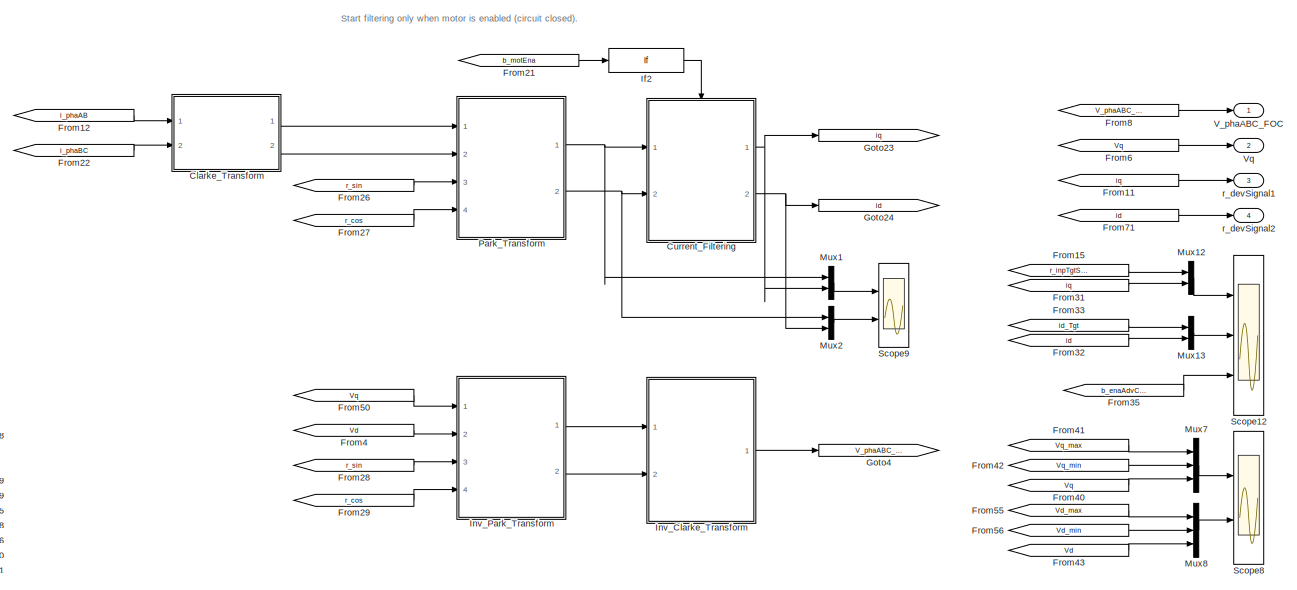
[diagram: BLDC_controller/F05_Field_Oriented_Control - part 1/2, top right region]
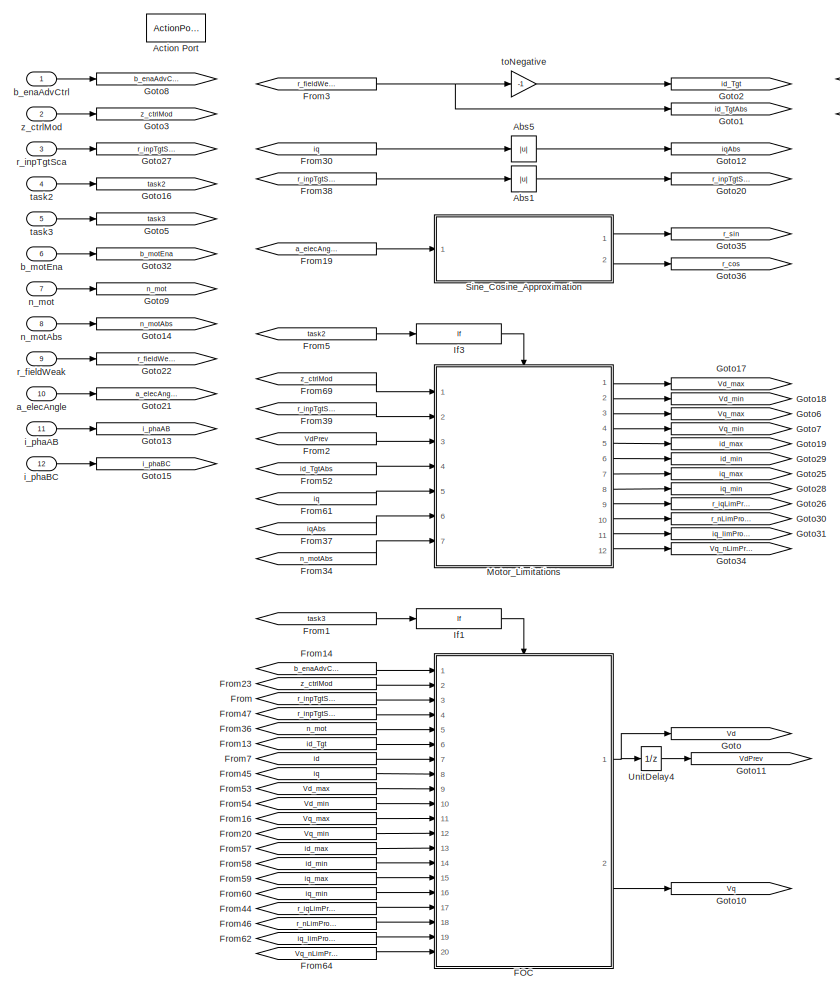
[diagram: BLDC_controller/F05_Field_Oriented_Control - part 2/2, left side, full height]
BLOCK [SubSystem] BLDC_controller/F05_Field_Oriented_Control
  Ports = [12, 4, 0, 0, 0, 0, 0, 1]
  RequestExecContextInheritance = off
  Variant = off
BLOCK [Abs] BLDC_controller/F05_Field_Oriented_Control/Abs1
  OutDataTypeStr = Inherit: Inherit via back propagation
  RndMeth = Zero
  SaturateOnIntegerOverflow = off
BLOCK [Abs] BLDC_controller/F05_Field_Oriented_Control/Abs5
  OutDataTypeStr = Inherit: Inherit via back propagation
  RndMeth = Zero
  SaturateOnIntegerOverflow = off
BLOCK [ActionPort] BLDC_controller/F05_Field_Oriented_Control/Action Port
  ActionType = then
  InitializeStates = reset
BLOCK [SubSystem] BLDC_controller/F05_Field_Oriented_Control/Clarke_Transform
  Ports = [2, 2]
  RequestExecContextInheritance = off
  Variant = off
BLOCK [SubSystem] BLDC_controller/F05_Field_Oriented_Control/Clarke_Transform/Clarke_PhasesAB
  Ports = [2, 2, 0, 0, 0, 0, 0, 1]
  RequestExecContextInheritance = off
  Variant = off
BLOCK [ActionPort] BLDC_controller/F05_Field_Oriented_Control/Clarke_Transform/Clarke_PhasesAB/Action Port
  ActionType = then
BLOCK [From] BLDC_controller/F05_Field_Oriented_Control/Clarke_Transform/Clarke_PhasesAB/From
  GotoTag = i_phaA
BLOCK [From] BLDC_controller/F05_Field_Oriented_Control/Clarke_Transform/Clarke_PhasesAB/From1
  GotoTag = i_phaB
BLOCK [Gain] BLDC_controller/F05_Field_Oriented_Control/Clarke_Transform/Clarke_PhasesAB/Gain2
  Gain = 2/sqrt(3)
  ParamDataTypeStr = Inherit: Inherit via internal rule
  RndMeth = Zero
  SaturateOnIntegerOverflow = off
BLOCK [Gain] BLDC_controller/F05_Field_Oriented_Control/Clarke_Transform/Clarke_PhasesAB/Gain4
  Gain = 1/sqrt(3)
  ParamDataTypeStr = Inherit: Inherit via internal rule
  RndMeth = Zero
  SaturateOnIntegerOverflow = off
BLOCK [Goto] BLDC_controller/F05_Field_Oriented_Control/Clarke_Transform/Clarke_PhasesAB/Goto13
  GotoTag = i_phaA
BLOCK [Goto] BLDC_controller/F05_Field_Oriented_Control/Clarke_Transform/Clarke_PhasesAB/Goto15
  GotoTag = i_phaB
BLOCK [SignalConversion] BLDC_controller/F05_Field_Oriented_Control/Clarke_Transform/Clarke_PhasesAB/Signal Conversion2
  OverrideOpt = off
BLOCK [Sum] BLDC_controller/F05_Field_Oriented_Control/Clarke_Transform/Clarke_PhasesAB/Sum1
  InputSameDT = off
  OutDataTypeStr = fixdt(1,16,4)
  Ports = [2, 1]
  RndMeth = Simplest
BLOCK [Outport] BLDC_controller/F05_Field_Oriented_Control/Clarke_Transform/Clarke_PhasesAB/i_alphaAB
  IconDisplay = Port number
BLOCK [Outport] BLDC_controller/F05_Field_Oriented_Control/Clarke_Transform/Clarke_PhasesAB/i_betaAB
  IconDisplay = Port number
  Port = 2
BLOCK [Inport] BLDC_controller/F05_Field_Oriented_Control/Clarke_Transform/Clarke_PhasesAB/i_phaA
  IconDisplay = Port number
BLOCK [Inport] BLDC_controller/F05_Field_Oriented_Control/Clarke_Transform/Clarke_PhasesAB/i_phaB
  IconDisplay = Port number
  Port = 2
BLOCK [SubSystem] BLDC_controller/F05_Field_Oriented_Control/Clarke_Transform/Clarke_PhasesBC
  Ports = [2, 2, 0, 0, 0, 0, 0, 1]
  RequestExecContextInheritance = off
  Variant = off
BLOCK [ActionPort] BLDC_controller/F05_Field_Oriented_Control/Clarke_Transform/Clarke_PhasesBC/Action Port
  ActionType = else
BLOCK [From] BLDC_controller/F05_Field_Oriented_Control/Clarke_Transform/Clarke_PhasesBC/From2
  GotoTag = i_phaB
BLOCK [From] BLDC_controller/F05_Field_Oriented_Control/Clarke_Transform/Clarke_PhasesBC/From3
  GotoTag = i_phaC
BLOCK [From] BLDC_controller/F05_Field_Oriented_Control/Clarke_Transform/Clarke_PhasesBC/From4
  GotoTag = i_phaB
BLOCK [From] BLDC_controller/F05_Field_Oriented_Control/Clarke_Transform/Clarke_PhasesBC/From5
  GotoTag = i_phaC
BLOCK [Gain] BLDC_controller/F05_Field_Oriented_Control/Clarke_Transform/Clarke_PhasesBC/Gain2
  Gain = 1/sqrt(3)
  ParamDataTypeStr = Inherit: Inherit via internal rule
  RndMeth = Zero
  SaturateOnIntegerOverflow = off
BLOCK [Goto] BLDC_controller/F05_Field_Oriented_Control/Clarke_Transform/Clarke_PhasesBC/Goto13
  GotoTag = i_phaB
BLOCK [Goto] BLDC_controller/F05_Field_Oriented_Control/Clarke_Transform/Clarke_PhasesBC/Goto15
  GotoTag = i_phaC
BLOCK [Sum] BLDC_controller/F05_Field_Oriented_Control/Clarke_Transform/Clarke_PhasesBC/Sum1
  InputSameDT = off
  Inputs = --
  OutDataTypeStr = fixdt(1,16,4)
  Ports = [2, 1]
  RndMeth = Simplest
BLOCK [Sum] BLDC_controller/F05_Field_Oriented_Control/Clarke_Transform/Clarke_PhasesBC/Sum3
  InputSameDT = off
  Inputs = +-
  OutDataTypeStr = fixdt(1,16,4)
  Ports = [2, 1]
  RndMeth = Simplest
BLOCK [Outport] BLDC_controller/F05_Field_Oriented_Control/Clarke_Transform/Clarke_PhasesBC/i_alphaBC
  IconDisplay = Port number
BLOCK [Outport] BLDC_controller/F05_Field_Oriented_Control/Clarke_Transform/Clarke_PhasesBC/i_betaBC
  IconDisplay = Port number
  Port = 2
BLOCK [Inport] BLDC_controller/F05_Field_Oriented_Control/Clarke_Transform/Clarke_PhasesBC/i_phaB
  IconDisplay = Port number
BLOCK [Inport] BLDC_controller/F05_Field_Oriented_Control/Clarke_Transform/Clarke_PhasesBC/i_phaC
  IconDisplay = Port number
  Port = 2
BLOCK [From] BLDC_controller/F05_Field_Oriented_Control/Clarke_Transform/From
  GotoTag = i_alphaAB
BLOCK [From] BLDC_controller/F05_Field_Oriented_Control/Clarke_Transform/From1
  GotoTag = i_alphaBC
BLOCK [From] BLDC_controller/F05_Field_Oriented_Control/Clarke_Transform/From2
  GotoTag = i_betaAB
BLOCK [From] BLDC_controller/F05_Field_Oriented_Control/Clarke_Transform/From3
  GotoTag = i_betaBC
BLOCK [From] BLDC_controller/F05_Field_Oriented_Control/Clarke_Transform/From4
  GotoTag = i_alpha
BLOCK [From] BLDC_controller/F05_Field_Oriented_Control/Clarke_Transform/From5
  GotoTag = i_beta
BLOCK [From] BLDC_controller/F05_Field_Oriented_Control/Clarke_Transform/From6
  GotoTag = i_phaAB
BLOCK [From] BLDC_controller/F05_Field_Oriented_Control/Clarke_Transform/From7
  GotoTag = i_phaAB
BLOCK [From] BLDC_controller/F05_Field_Oriented_Control/Clarke_Transform/From8
  GotoTag = i_phaBC
BLOCK [From] BLDC_controller/F05_Field_Oriented_Control/Clarke_Transform/From9
  GotoTag = i_phaBC
BLOCK [Goto] BLDC_controller/F05_Field_Oriented_Control/Clarke_Transform/Goto
  GotoTag = i_alpha
BLOCK [Goto] BLDC_controller/F05_Field_Oriented_Control/Clarke_Transform/Goto1
  GotoTag = i_alphaAB
BLOCK [Goto] BLDC_controller/F05_Field_Oriented_Control/Clarke_Transform/Goto13
  GotoTag = i_phaAB
BLOCK [Goto] BLDC_controller/F05_Field_Oriented_Control/Clarke_Transform/Goto15
  GotoTag = i_phaBC
BLOCK [Goto] BLDC_controller/F05_Field_Oriented_Control/Clarke_Transform/Goto2
  GotoTag = i_alphaBC
BLOCK [Goto] BLDC_controller/F05_Field_Oriented_Control/Clarke_Transform/Goto3
  GotoTag = i_betaAB
BLOCK [Goto] BLDC_controller/F05_Field_Oriented_Control/Clarke_Transform/Goto4
  GotoTag = i_betaBC
BLOCK [Goto] BLDC_controller/F05_Field_Oriented_Control/Clarke_Transform/Goto6
  GotoTag = i_beta
BLOCK [If] BLDC_controller/F05_Field_Oriented_Control/Clarke_Transform/If1
  IfExpression = u1 ~= 0
  Ports = [1, 2]
BLOCK [Merge] BLDC_controller/F05_Field_Oriented_Control/Clarke_Transform/Merge
  Ports = [2, 1]
BLOCK [Merge] BLDC_controller/F05_Field_Oriented_Control/Clarke_Transform/Merge1
  Ports = [2, 1]
BLOCK [Constant] BLDC_controller/F05_Field_Oriented_Control/Clarke_Transform/b_selPhaABCurrMeas
  OutDataTypeStr = boolean
  Value = b_selPhaABCurrMeas
BLOCK [Outport] BLDC_controller/F05_Field_Oriented_Control/Clarke_Transform/i_alpha
  IconDisplay = Port number
BLOCK [Outport] BLDC_controller/F05_Field_Oriented_Control/Clarke_Transform/i_beta
  IconDisplay = Port number
  Port = 2
BLOCK [Inport] BLDC_controller/F05_Field_Oriented_Control/Clarke_Transform/i_phaAB
  IconDisplay = Port number
BLOCK [Inport] BLDC_controller/F05_Field_Oriented_Control/Clarke_Transform/i_phaBC
  IconDisplay = Port number
  Port = 2
BLOCK [SubSystem] BLDC_controller/F05_Field_Oriented_Control/Current_Filtering
  Ports = [2, 2, 0, 0, 0, 0, 0, 1]
  RequestExecContextInheritance = off
  Variant = off
BLOCK [ActionPort] BLDC_controller/F05_Field_Oriented_Control/Current_Filtering/Action Port
  ActionType = then
  InitializeStates = reset
BLOCK [Demux] BLDC_controller/F05_Field_Oriented_Control/Current_Filtering/Demux1
  DisplayOption = bar
  Outputs = 2
  Ports = [1, 2]
BLOCK [From] BLDC_controller/F05_Field_Oriented_Control/Current_Filtering/From
  GotoTag = iq
BLOCK [From] BLDC_controller/F05_Field_Oriented_Control/Current_Filtering/From1
  GotoTag = id
BLOCK [From] BLDC_controller/F05_Field_Oriented_Control/Current_Filtering/From2
  GotoTag = iq_raw
BLOCK [From] BLDC_controller/F05_Field_Oriented_Control/Current_Filtering/From3
  GotoTag = id_raw
BLOCK [Goto] BLDC_controller/F05_Field_Oriented_Control/Current_Filtering/Goto
  GotoTag = iq
BLOCK [Goto] BLDC_controller/F05_Field_Oriented_Control/Current_Filtering/Goto2
  GotoTag = iq_raw
BLOCK [Goto] BLDC_controller/F05_Field_Oriented_Control/Current_Filtering/Goto3
  GotoTag = id_raw
BLOCK [Goto] BLDC_controller/F05_Field_Oriented_Control/Current_Filtering/Goto6
  GotoTag = id
BLOCK [Reference] BLDC_controller/F05_Field_Oriented_Control/Current_Filtering/Low_Pass_Filter  REF=BLDC_controller_Lib/Low_Pass_Filter
  Ports = [2, 1]
  SourceBlock = BLDC_controller_Lib/Low_Pass_Filter
BLOCK [Mux] BLDC_controller/F05_Field_Oriented_Control/Current_Filtering/Mux2
  DisplayOption = bar
  Inputs = 2
  Ports = [2, 1]
BLOCK [Constant] BLDC_controller/F05_Field_Oriented_Control/Current_Filtering/cf_currFilt
  OutDataTypeStr = fixdt(0,16,16)
  Value = cf_currFilt
BLOCK [Outport] BLDC_controller/F05_Field_Oriented_Control/Current_Filtering/id
  IconDisplay = Port number
  InitialOutput = 0
  OutputWhenDisabled = reset
  Port = 2
BLOCK [Inport] BLDC_controller/F05_Field_Oriented_Control/Current_Filtering/id_raw
  IconDisplay = Port number
  Port = 2
BLOCK [Outport] BLDC_controller/F05_Field_Oriented_Control/Current_Filtering/iq
  IconDisplay = Port number
  InitialOutput = 0
  OutputWhenDisabled = reset
BLOCK [Inport] BLDC_controller/F05_Field_Oriented_Control/Current_Filtering/iq_raw
  IconDisplay = Port number
BLOCK [SubSystem] BLDC_controller/F05_Field_Oriented_Control/FOC
  Ports = [20, 2, 0, 0, 0, 0, 0, 1]
  RequestExecContextInheritance = off
  Variant = off
BLOCK [ActionPort] BLDC_controller/F05_Field_Oriented_Control/FOC/Action Port
  ActionType = then
BLOCK [From] BLDC_controller/F05_Field_Oriented_Control/FOC/From
  GotoTag = r_inpTgtSca
BLOCK [From] BLDC_controller/F05_Field_Oriented_Control/FOC/From1
  GotoTag = id
BLOCK [From] BLDC_controller/F05_Field_Oriented_Control/FOC/From13
  GotoTag = id_Tgt
BLOCK [From] BLDC_controller/F05_Field_Oriented_Control/FOC/From14
  GotoTag = b_enaAdvCtrl
BLOCK [From] BLDC_controller/F05_Field_Oriented_Control/FOC/From16
  GotoTag = Vq_max
BLOCK [From] BLDC_controller/F05_Field_Oriented_Control/FOC/From18
  GotoTag = r_inpTgtSca
BLOCK [From] BLDC_controller/F05_Field_Oriented_Control/FOC/From2
  GotoTag = Vd
BLOCK [From] BLDC_controller/F05_Field_Oriented_Control/FOC/From20
  GotoTag = Vq_min
BLOCK [From] BLDC_controller/F05_Field_Oriented_Control/FOC/From23
  GotoTag = z_ctrlMod
BLOCK [From] BLDC_controller/F05_Field_Oriented_Control/FOC/From25
  GotoTag = Vq_max
BLOCK [From] BLDC_controller/F05_Field_Oriented_Control/FOC/From3
  GotoTag = r_iqLimProtMax
BLOCK [From] BLDC_controller/F05_Field_Oriented_Control/FOC/From34
  GotoTag = Vq_min
BLOCK [From] BLDC_controller/F05_Field_Oriented_Control/FOC/From36
  GotoTag = n_mot
BLOCK [From] BLDC_controller/F05_Field_Oriented_Control/FOC/From37
  GotoTag = r_inpTgtSca
BLOCK [From] BLDC_controller/F05_Field_Oriented_Control/FOC/From38
  GotoTag = Vq_max
BLOCK [From] BLDC_controller/F05_Field_Oriented_Control/FOC/From4
  GotoTag = r_nLimProtMax
BLOCK [From] BLDC_controller/F05_Field_Oriented_Control/FOC/From44
  GotoTag = Vq_min
BLOCK [From] BLDC_controller/F05_Field_Oriented_Control/FOC/From45
  GotoTag = iq
BLOCK [From] BLDC_controller/F05_Field_Oriented_Control/FOC/From46
  GotoTag = Vq_Vlt
BLOCK [From] BLDC_controller/F05_Field_Oriented_Control/FOC/From47
  GotoTag = Vq_Spd
BLOCK [From] BLDC_controller/F05_Field_Oriented_Control/FOC/From48
  GotoTag = Vq_Trq
BLOCK [From] BLDC_controller/F05_Field_Oriented_Control/FOC/From49
  GotoTag = Vq_Open
BLOCK [From] BLDC_controller/F05_Field_Oriented_Control/FOC/From5
  GotoTag = r_inpTgtScaAbs
BLOCK [From] BLDC_controller/F05_Field_Oriented_Control/FOC/From53
  GotoTag = Vd_max
BLOCK [From] BLDC_controller/F05_Field_Oriented_Control/FOC/From54
  GotoTag = Vd_min
BLOCK [From] BLDC_controller/F05_Field_Oriented_Control/FOC/From57
  GotoTag = id_max
BLOCK [From] BLDC_controller/F05_Field_Oriented_Control/FOC/From58
  GotoTag = id_min
BLOCK [From] BLDC_controller/F05_Field_Oriented_Control/FOC/From59
  GotoTag = iq_max
BLOCK [From] BLDC_controller/F05_Field_Oriented_Control/FOC/From6
  GotoTag = Vq
BLOCK [From] BLDC_controller/F05_Field_Oriented_Control/FOC/From60
  GotoTag = iq_min
BLOCK [From] BLDC_controller/F05_Field_Oriented_Control/FOC/From67
  GotoTag = Vq_nLimProtMax
BLOCK [From] BLDC_controller/F05_Field_Oriented_Control/FOC/From68
  GotoTag = iq_limProtErr
BLOCK [From] BLDC_controller/F05_Field_Oriented_Control/FOC/From9
  GotoTag = r_inpTgtSca
BLOCK [Goto] BLDC_controller/F05_Field_Oriented_Control/FOC/Goto
  GotoTag = id_Tgt
BLOCK [Goto] BLDC_controller/F05_Field_Oriented_Control/FOC/Goto1
  GotoTag = iq
BLOCK [Goto] BLDC_controller/F05_Field_Oriented_Control/FOC/Goto10
  GotoTag = Vq_Open
BLOCK [Goto] BLDC_controller/F05_Field_Oriented_Control/FOC/Goto11
  GotoTag = Vq_Trq
BLOCK [Goto] BLDC_controller/F05_Field_Oriented_Control/FOC/Goto12
  GotoTag = Vq_Spd
BLOCK [Goto] BLDC_controller/F05_Field_Oriented_Control/FOC/Goto13
  GotoTag = n_mot
BLOCK [Goto] BLDC_controller/F05_Field_Oriented_Control/FOC/Goto14
  GotoTag = Vq_Vlt
BLOCK [Goto] BLDC_controller/F05_Field_Oriented_Control/FOC/Goto15
  GotoTag = r_iqLimProtMax
BLOCK [Goto] BLDC_controller/F05_Field_Oriented_Control/FOC/Goto16
  GotoTag = r_nLimProtMax
BLOCK [Goto] BLDC_controller/F05_Field_Oriented_Control/FOC/Goto17
  GotoTag = Vd_max
BLOCK [Goto] BLDC_controller/F05_Field_Oriented_Control/FOC/Goto18
  GotoTag = Vd_min
BLOCK [Goto] BLDC_controller/F05_Field_Oriented_Control/FOC/Goto19
  GotoTag = id_max
BLOCK [Goto] BLDC_controller/F05_Field_Oriented_Control/FOC/Goto2
  GotoTag = id
BLOCK [Goto] BLDC_controller/F05_Field_Oriented_Control/FOC/Goto20
  GotoTag = Vd
BLOCK [Goto] BLDC_controller/F05_Field_Oriented_Control/FOC/Goto21
  GotoTag = r_inpTgtScaAbs
BLOCK [Goto] BLDC_controller/F05_Field_Oriented_Control/FOC/Goto27
  GotoTag = r_inpTgtSca
BLOCK [Goto] BLDC_controller/F05_Field_Oriented_Control/FOC/Goto29
  GotoTag = id_min
BLOCK [Goto] BLDC_controller/F05_Field_Oriented_Control/FOC/Goto3
  GotoTag = z_ctrlMod
BLOCK [Goto] BLDC_controller/F05_Field_Oriented_Control/FOC/Goto30
  GotoTag = Vq
BLOCK [Goto] BLDC_controller/F05_Field_Oriented_Control/FOC/Goto31
  GotoTag = iq_limProtErr
BLOCK [Goto] BLDC_controller/F05_Field_Oriented_Control/FOC/Goto4
  GotoTag = Vq_max
BLOCK [Goto] BLDC_controller/F05_Field_Oriented_Control/FOC/Goto5
  GotoTag = Vq_min
BLOCK [Goto] BLDC_controller/F05_Field_Oriented_Control/FOC/Goto6
  GotoTag = Vq_nLimProtMax
BLOCK [Goto] BLDC_controller/F05_Field_Oriented_Control/FOC/Goto7
  GotoTag = iq_max
BLOCK [Goto] BLDC_controller/F05_Field_Oriented_Control/FOC/Goto8
  GotoTag = b_enaAdvCtrl
BLOCK [Goto] BLDC_controller/F05_Field_Oriented_Control/FOC/Goto9
  GotoTag = iq_min
BLOCK [If] BLDC_controller/F05_Field_Oriented_Control/FOC/If1
  IfExpression = u1 ~= 0
  Ports = [1, 1]
  ShowElse = off
BLOCK [Merge] BLDC_controller/F05_Field_Oriented_Control/FOC/Merge
  Inputs = 4
  Ports = [4, 1]
BLOCK [SubSystem] BLDC_controller/F05_Field_Oriented_Control/FOC/Open_Mode
  Ports = [1, 1, 0, 0, 0, 0, 0, 1]
  RequestExecContextInheritance = off
  Variant = off
BLOCK [ActionPort] BLDC_controller/F05_Field_Oriented_Control/FOC/Open_Mode/Action Port
  ActionType = default
BLOCK [Outport] BLDC_controller/F05_Field_Oriented_Control/FOC/Open_Mode/Vq_Open
  IconDisplay = Port number
BLOCK [Inport] BLDC_controller/F05_Field_Oriented_Control/FOC/Open_Mode/r_inpTgtSca
  IconDisplay = Port number
BLOCK [SubSystem] BLDC_controller/F05_Field_Oriented_Control/FOC/Speed_Mode
  Ports = [5, 1, 0, 0, 0, 0, 0, 1]
  RequestExecContextInheritance = off
  Variant = off
BLOCK [ActionPort] BLDC_controller/F05_Field_Oriented_Control/FOC/Speed_Mode/Action Port
  ActionType = case
BLOCK [From] BLDC_controller/F05_Field_Oriented_Control/FOC/Speed_Mode/From
  GotoTag = iq_limProtErr
BLOCK [From] BLDC_controller/F05_Field_Oriented_Control/FOC/Speed_Mode/From36
  GotoTag = n_mot
BLOCK [From] BLDC_controller/F05_Field_Oriented_Control/FOC/Speed_Mode/From37
  GotoTag = r_inpTgtSca
BLOCK [From] BLDC_controller/F05_Field_Oriented_Control/FOC/Speed_Mode/From38
  GotoTag = Vq_max
BLOCK [From] BLDC_controller/F05_Field_Oriented_Control/FOC/Speed_Mode/From45
  GotoTag = Vq_min
BLOCK [Goto] BLDC_controller/F05_Field_Oriented_Control/FOC/Speed_Mode/Goto1
  GotoTag = Vq_max
BLOCK [Goto] BLDC_controller/F05_Field_Oriented_Control/FOC/Speed_Mode/Goto13
  GotoTag = r_inpTgtSca
BLOCK [Goto] BLDC_controller/F05_Field_Oriented_Control/FOC/Speed_Mode/Goto2
  GotoTag = Vq_min
BLOCK [Goto] BLDC_controller/F05_Field_Oriented_Control/FOC/Speed_Mode/Goto3
  GotoTag = n_mot
BLOCK [Goto] BLDC_controller/F05_Field_Oriented_Control/FOC/Speed_Mode/Goto31
  GotoTag = iq_limProtErr
BLOCK [Reference] BLDC_controller/F05_Field_Oriented_Control/FOC/Speed_Mode/PI_clamp_fixdt  REF=BLDC_controller_Lib/PI_clamp_fixdt
  Ports = [6, 1]
  SourceBlock = BLDC_controller_Lib/PI_clamp_fixdt
BLOCK [Sum] BLDC_controller/F05_Field_Oriented_Control/FOC/Speed_Mode/Sum3
  IconShape = round
  InputSameDT = off
  Inputs = |+-
  OutDataTypeStr = Inherit: Inherit via internal rule
  Ports = [2, 1]
  RndMeth = Simplest
BLOCK [Outport] BLDC_controller/F05_Field_Oriented_Control/FOC/Speed_Mode/Vq_Spd
  IconDisplay = Port number
BLOCK [Inport] BLDC_controller/F05_Field_Oriented_Control/FOC/Speed_Mode/Vq_max
  IconDisplay = Port number
  Port = 2
BLOCK [Inport] BLDC_controller/F05_Field_Oriented_Control/FOC/Speed_Mode/Vq_min
  IconDisplay = Port number
  Port = 3
BLOCK [Constant] BLDC_controller/F05_Field_Oriented_Control/FOC/Speed_Mode/cf_nKi
  OutDataTypeStr = fixdt(0,16,16)
  Value = cf_nKi
  VectorParams1D = off
BLOCK [Constant] BLDC_controller/F05_Field_Oriented_Control/FOC/Speed_Mode/cf_nKp
  OutDataTypeStr = fixdt(0,16,12)
  Value = cf_nKp
BLOCK [Inport] BLDC_controller/F05_Field_Oriented_Control/FOC/Speed_Mode/iq_limProtErr
  IconDisplay = Port number
  Port = 5
BLOCK [Inport] BLDC_controller/F05_Field_Oriented_Control/FOC/Speed_Mode/n_mot
  IconDisplay = Port number
  Port = 4
BLOCK [Inport] BLDC_controller/F05_Field_Oriented_Control/FOC/Speed_Mode/r_inpTgtSca
  IconDisplay = Port number
BLOCK [SwitchCase] BLDC_controller/F05_Field_Oriented_Control/FOC/Switch Case
  CaseConditions = {VLT_MODE, SPD_MODE, TRQ_MODE}
  Ports = [1, 4]
BLOCK [SubSystem] BLDC_controller/F05_Field_Oriented_Control/FOC/Torque_Mode
  Ports = [7, 1, 0, 0, 0, 0, 0, 1]
  RequestExecContextInheritance = off
  Variant = off
BLOCK [ActionPort] BLDC_controller/F05_Field_Oriented_Control/FOC/Torque_Mode/Action Port
  ActionType = case
BLOCK [From] BLDC_controller/F05_Field_Oriented_Control/FOC/Torque_Mode/From
  GotoTag = Vq_maxTrq
BLOCK [From] BLDC_controller/F05_Field_Oriented_Control/FOC/Torque_Mode/From10
  GotoTag = Vq_max
BLOCK [From] BLDC_controller/F05_Field_Oriented_Control/FOC/Torque_Mode/From11
  GotoTag = Vq_min
BLOCK [From] BLDC_controller/F05_Field_Oriented_Control/FOC/Torque_Mode/From12
  GotoTag = Vq_nLimProtMax
BLOCK [From] BLDC_controller/F05_Field_Oriented_Control/FOC/Torque_Mode/From13
  GotoTag = Vq_minTrq
BLOCK [From] BLDC_controller/F05_Field_Oriented_Control/FOC/Torque_Mode/From15
  GotoTag = r_inpTgtSca
BLOCK [From] BLDC_controller/F05_Field_Oriented_Control/FOC/Torque_Mode/From4
  GotoTag = iq
BLOCK [From] BLDC_controller/F05_Field_Oriented_Control/FOC/Torque_Mode/From5
  GotoTag = iq_max
BLOCK [From] BLDC_controller/F05_Field_Oriented_Control/FOC/Torque_Mode/From9
  GotoTag = iq_min
BLOCK [Gain] BLDC_controller/F05_Field_Oriented_Control/FOC/Torque_Mode/Gain4
  Gain = -1
  RndMeth = Zero
  SaturateOnIntegerOverflow = off
BLOCK [Goto] BLDC_controller/F05_Field_Oriented_Control/FOC/Torque_Mode/Goto
  GotoTag = Vq_maxTrq
BLOCK [Goto] BLDC_controller/F05_Field_Oriented_Control/FOC/Torque_Mode/Goto1
  GotoTag = Vq_max
BLOCK [Goto] BLDC_controller/F05_Field_Oriented_Control/FOC/Torque_Mode/Goto13
  GotoTag = r_inpTgtSca
BLOCK [Goto] BLDC_controller/F05_Field_Oriented_Control/FOC/Torque_Mode/Goto19
  GotoTag = iq_max
BLOCK [Goto] BLDC_controller/F05_Field_Oriented_Control/FOC/Torque_Mode/Goto2
  GotoTag = Vq_min
BLOCK [Goto] BLDC_controller/F05_Field_Oriented_Control/FOC/Torque_Mode/Goto29
  GotoTag = iq_min
BLOCK [Goto] BLDC_controller/F05_Field_Oriented_Control/FOC/Torque_Mode/Goto3
  GotoTag = iq
BLOCK [Goto] BLDC_controller/F05_Field_Oriented_Control/FOC/Torque_Mode/Goto4
  GotoTag = Vq_nLimProtMax
BLOCK [Goto] BLDC_controller/F05_Field_Oriented_Control/FOC/Torque_Mode/Goto5
  GotoTag = Vq_minTrq
BLOCK [MinMax] BLDC_controller/F05_Field_Oriented_Control/FOC/Torque_Mode/MinMax1
  InputSameDT = off
  Inputs = 2
  Ports = [2, 1]
  SaturateOnIntegerOverflow = off
BLOCK [MinMax] BLDC_controller/F05_Field_Oriented_Control/FOC/Torque_Mode/MinMax2
  Function = max
  InputSameDT = off
  Inputs = 2
  Ports = [2, 1]
  SaturateOnIntegerOverflow = off
BLOCK [Reference] BLDC_controller/F05_Field_Oriented_Control/FOC/Torque_Mode/PI_clamp_fixdt  REF=BLDC_controller_Lib/PI_clamp_fixdt
  Ports = [6, 1]
  SourceBlock = BLDC_controller_Lib/PI_clamp_fixdt
BLOCK [Reference] BLDC_controller/F05_Field_Oriented_Control/FOC/Torque_Mode/Saturation Dynamic1  REF=simulink/Discontinuities/Saturation
Dynamic
  Ports = [3, 1]
  SourceBlock = simulink/Discontinuities/Saturation\nDynamic
  SourceProductBaseCode = SL
  SourceProductName = Simulink
  SourceType = Saturation Dynamic
BLOCK [Sum] BLDC_controller/F05_Field_Oriented_Control/FOC/Torque_Mode/Sum2
  IconShape = round
  InputSameDT = off
  Inputs = |+-
  OutDataTypeStr = Inherit: Inherit via internal rule
  Ports = [2, 1]
  RndMeth = Simplest
BLOCK [Outport] BLDC_controller/F05_Field_Oriented_Control/FOC/Torque_Mode/Vq_Trq
  IconDisplay = Port number
BLOCK [Inport] BLDC_controller/F05_Field_Oriented_Control/FOC/Torque_Mode/Vq_max
  IconDisplay = Port number
  Port = 2
BLOCK [Inport] BLDC_controller/F05_Field_Oriented_Control/FOC/Torque_Mode/Vq_min
  IconDisplay = Port number
  Port = 3
BLOCK [Inport] BLDC_controller/F05_Field_Oriented_Control/FOC/Torque_Mode/Vq_nLimProtMax
  IconDisplay = Port number
  Port = 7
BLOCK [Constant] BLDC_controller/F05_Field_Oriented_Control/FOC/Torque_Mode/cf_iqKi
  OutDataTypeStr = fixdt(0,16,16)
  Value = cf_iqKi
BLOCK [Constant] BLDC_controller/F05_Field_Oriented_Control/FOC/Torque_Mode/cf_iqKp
  OutDataTypeStr = fixdt(0,16,12)
  Value = cf_iqKp
BLOCK [Constant] BLDC_controller/F05_Field_Oriented_Control/FOC/Torque_Mode/constant2
  OutDataTypeStr = Inherit: Inherit via back propagation
  Value = 0
BLOCK [Inport] BLDC_controller/F05_Field_Oriented_Control/FOC/Torque_Mode/iq
  IconDisplay = Port number
  Port = 4
BLOCK [Inport] BLDC_controller/F05_Field_Oriented_Control/FOC/Torque_Mode/iq_max
  IconDisplay = Port number
  Port = 5
BLOCK [Inport] BLDC_controller/F05_Field_Oriented_Control/FOC/Torque_Mode/iq_min
  IconDisplay = Port number
  Port = 6
BLOCK [Inport] BLDC_controller/F05_Field_Oriented_Control/FOC/Torque_Mode/r_inpTgtSca
  IconDisplay = Port number
BLOCK [Outport] BLDC_controller/F05_Field_Oriented_Control/FOC/Vd
  IconDisplay = Port number
BLOCK [SubSystem] BLDC_controller/F05_Field_Oriented_Control/FOC/Vd_Calculation
  Ports = [6, 1, 0, 0, 0, 0, 0, 1]
  RequestExecContextInheritance = off
  Variant = off
BLOCK [ActionPort] BLDC_controller/F05_Field_Oriented_Control/FOC/Vd_Calculation/Action Port
  ActionType = then
BLOCK [From] BLDC_controller/F05_Field_Oriented_Control/FOC/Vd_Calculation/From1
  GotoTag = id_Tgt
BLOCK [From] BLDC_controller/F05_Field_Oriented_Control/FOC/Vd_Calculation/From2
  GotoTag = id
BLOCK [From] BLDC_controller/F05_Field_Oriented_Control/FOC/Vd_Calculation/From5
  GotoTag = id_max
BLOCK [From] BLDC_controller/F05_Field_Oriented_Control/FOC/Vd_Calculation/From6
  GotoTag = id_min
BLOCK [From] BLDC_controller/F05_Field_Oriented_Control/FOC/Vd_Calculation/From7
  GotoTag = Vd_max
BLOCK [From] BLDC_controller/F05_Field_Oriented_Control/FOC/Vd_Calculation/From8
  GotoTag = Vd_min
BLOCK [Goto] BLDC_controller/F05_Field_Oriented_Control/FOC/Vd_Calculation/Goto
  GotoTag = id_Tgt
BLOCK [Goto] BLDC_controller/F05_Field_Oriented_Control/FOC/Vd_Calculation/Goto17
  GotoTag = Vd_max
BLOCK [Goto] BLDC_controller/F05_Field_Oriented_Control/FOC/Vd_Calculation/Goto18
  GotoTag = Vd_min
BLOCK [Goto] BLDC_controller/F05_Field_Oriented_Control/FOC/Vd_Calculation/Goto19
  GotoTag = id_max
BLOCK [Goto] BLDC_controller/F05_Field_Oriented_Control/FOC/Vd_Calculation/Goto2
  GotoTag = id
BLOCK [Goto] BLDC_controller/F05_Field_Oriented_Control/FOC/Vd_Calculation/Goto29
  GotoTag = id_min
BLOCK [Reference] BLDC_controller/F05_Field_Oriented_Control/FOC/Vd_Calculation/PI_clamp_fixdt  REF=BLDC_controller_Lib/PI_clamp_fixdt
  Ports = [6, 1]
  SourceBlock = BLDC_controller_Lib/PI_clamp_fixdt
BLOCK [Reference] BLDC_controller/F05_Field_Oriented_Control/FOC/Vd_Calculation/Saturation Dynamic  REF=simulink/Discontinuities/Saturation
Dynamic
  Ports = [3, 1]
  SourceBlock = simulink/Discontinuities/Saturation\nDynamic
  SourceProductBaseCode = SL
  SourceProductName = Simulink
  SourceType = Saturation Dynamic
BLOCK [Sum] BLDC_controller/F05_Field_Oriented_Control/FOC/Vd_Calculation/Sum3
  IconShape = round
  InputSameDT = off
  Inputs = |+-
  OutDataTypeStr = Inherit: Inherit via internal rule
  Ports = [2, 1]
  RndMeth = Simplest
BLOCK [Outport] BLDC_controller/F05_Field_Oriented_Control/FOC/Vd_Calculation/Vd
  IconDisplay = Port number
BLOCK [Inport] BLDC_controller/F05_Field_Oriented_Control/FOC/Vd_Calculation/Vd_max
  IconDisplay = Port number
  Port = 3
BLOCK [Inport] BLDC_controller/F05_Field_Oriented_Control/FOC/Vd_Calculation/Vd_min
  IconDisplay = Port number
  Port = 4
BLOCK [Constant] BLDC_controller/F05_Field_Oriented_Control/FOC/Vd_Calculation/cf_idKi1
  OutDataTypeStr = fixdt(0,16,16)
  Value = cf_idKi
BLOCK [Constant] BLDC_controller/F05_Field_Oriented_Control/FOC/Vd_Calculation/cf_idKp1
  OutDataTypeStr = fixdt(0,16,12)
  Value = cf_idKp
BLOCK [Constant] BLDC_controller/F05_Field_Oriented_Control/FOC/Vd_Calculation/constant1
  OutDataTypeStr = Inherit: Inherit via back propagation
  Value = 0
BLOCK [Inport] BLDC_controller/F05_Field_Oriented_Control/FOC/Vd_Calculation/id
  IconDisplay = Port number
  Port = 2
BLOCK [Inport] BLDC_controller/F05_Field_Oriented_Control/FOC/Vd_Calculation/id_Tgt
  IconDisplay = Port number
BLOCK [Inport] BLDC_controller/F05_Field_Oriented_Control/FOC/Vd_Calculation/id_max
  IconDisplay = Port number
  Port = 5
BLOCK [Inport] BLDC_controller/F05_Field_Oriented_Control/FOC/Vd_Calculation/id_min
  IconDisplay = Port number
  Port = 6
BLOCK [Inport] BLDC_controller/F05_Field_Oriented_Control/FOC/Vd_max
  IconDisplay = Port number
  Port = 9
BLOCK [Inport] BLDC_controller/F05_Field_Oriented_Control/FOC/Vd_min
  IconDisplay = Port number
  Port = 10
BLOCK [SubSystem] BLDC_controller/F05_Field_Oriented_Control/FOC/Voltage_Mode
  Ports = [6, 1, 0, 0, 0, 0, 0, 1]
  RequestExecContextInheritance = off
  Variant = off
BLOCK [ActionPort] BLDC_controller/F05_Field_Oriented_Control/FOC/Voltage_Mode/Action Port
  ActionType = case
BLOCK [Product] BLDC_controller/F05_Field_Oriented_Control/FOC/Voltage_Mode/Divide1
  InputSameDT = off
  Inputs = **
  Ports = [2, 1]
  RndMeth = Simplest
  SaturateOnIntegerOverflow = off
BLOCK [From] BLDC_controller/F05_Field_Oriented_Control/FOC/Voltage_Mode/From1
  GotoTag = r_iqLimProtMax
BLOCK [From] BLDC_controller/F05_Field_Oriented_Control/FOC/Voltage_Mode/From16
  GotoTag = Vq_max
BLOCK [From] BLDC_controller/F05_Field_Oriented_Control/FOC/Voltage_Mode/From20
  GotoTag = Vq_min
BLOCK [From] BLDC_controller/F05_Field_Oriented_Control/FOC/Voltage_Mode/From4
  GotoTag = r_nLimProtMax
BLOCK [From] BLDC_controller/F05_Field_Oriented_Control/FOC/Voltage_Mode/From5
  GotoTag = r_inpTgtSca
BLOCK [From] BLDC_controller/F05_Field_Oriented_Control/FOC/Voltage_Mode/From6
  GotoTag = r_inpTgtScaAbs
BLOCK [Goto] BLDC_controller/F05_Field_Oriented_Control/FOC/Voltage_Mode/Goto1
  GotoTag = Vq_max
BLOCK [Goto] BLDC_controller/F05_Field_Oriented_Control/FOC/Voltage_Mode/Goto13
  GotoTag = r_inpTgtSca
BLOCK [Goto] BLDC_controller/F05_Field_Oriented_Control/FOC/Voltage_Mode/Goto2
  GotoTag = Vq_min
BLOCK [Goto] BLDC_controller/F05_Field_Oriented_Control/FOC/Voltage_Mode/Goto3
  GotoTag = r_nLimProtMax
BLOCK [Goto] BLDC_controller/F05_Field_Oriented_Control/FOC/Voltage_Mode/Goto31
  GotoTag = r_iqLimProtMax
BLOCK [Goto] BLDC_controller/F05_Field_Oriented_Control/FOC/Voltage_Mode/Goto4
  GotoTag = r_inpTgtScaAbs
BLOCK [MinMax] BLDC_controller/F05_Field_Oriented_Control/FOC/Voltage_Mode/MinMax
  InputSameDT = off
  Inputs = 3
  Ports = [3, 1]
  SaturateOnIntegerOverflow = off
BLOCK [Reference] BLDC_controller/F05_Field_Oriented_Control/FOC/Voltage_Mode/Saturation Dynamic1  REF=simulink/Discontinuities/Saturation
Dynamic
  Ports = [3, 1]
  SourceBlock = simulink/Discontinuities/Saturation\nDynamic
  SourceProductBaseCode = SL
  SourceProductName = Simulink
  SourceType = Saturation Dynamic
BLOCK [Signum] BLDC_controller/F05_Field_Oriented_Control/FOC/Voltage_Mode/SignDeltaU2
  DisableCoverage = on
BLOCK [SignalConversion] BLDC_controller/F05_Field_Oriented_Control/FOC/Voltage_Mode/Signal Conversion2
  OverrideOpt = off
BLOCK [Outport] BLDC_controller/F05_Field_Oriented_Control/FOC/Voltage_Mode/Vq_Vlt
  IconDisplay = Port number
BLOCK [Inport] BLDC_controller/F05_Field_Oriented_Control/FOC/Voltage_Mode/Vq_max
  IconDisplay = Port number
  Port = 3
BLOCK [Inport] BLDC_controller/F05_Field_Oriented_Control/FOC/Voltage_Mode/Vq_min
  IconDisplay = Port number
  Port = 4
BLOCK [Inport] BLDC_controller/F05_Field_Oriented_Control/FOC/Voltage_Mode/r_inpTgtSca
  IconDisplay = Port number
BLOCK [Inport] BLDC_controller/F05_Field_Oriented_Control/FOC/Voltage_Mode/r_inpTgtScaAbs
  IconDisplay = Port number
  Port = 2
BLOCK [Inport] BLDC_controller/F05_Field_Oriented_Control/FOC/Voltage_Mode/r_iqLimProtMax
  IconDisplay = Port number
  Port = 5
BLOCK [Inport] BLDC_controller/F05_Field_Oriented_Control/FOC/Voltage_Mode/r_nLimProtMax
  IconDisplay = Port number
  Port = 6
BLOCK [Outport] BLDC_controller/F05_Field_Oriented_Control/FOC/Vq
  IconDisplay = Port number
  Port = 2
BLOCK [Inport] BLDC_controller/F05_Field_Oriented_Control/FOC/Vq_max
  IconDisplay = Port number
  Port = 11
BLOCK [Inport] BLDC_controller/F05_Field_Oriented_Control/FOC/Vq_min
  IconDisplay = Port number
  Port = 12
BLOCK [Inport] BLDC_controller/F05_Field_Oriented_Control/FOC/Vq_nLimProtMax
  IconDisplay = Port number
  Port = 20
BLOCK [Inport] BLDC_controller/F05_Field_Oriented_Control/FOC/b_enaAdvCtrl
  IconDisplay = Port number
BLOCK [Inport] BLDC_controller/F05_Field_Oriented_Control/FOC/id
  IconDisplay = Port number
  Port = 7
BLOCK [Inport] BLDC_controller/F05_Field_Oriented_Control/FOC/id_Tgt
  IconDisplay = Port number
  Port = 6
BLOCK [Inport] BLDC_controller/F05_Field_Oriented_Control/FOC/id_max
  IconDisplay = Port number
  Port = 13
BLOCK [Inport] BLDC_controller/F05_Field_Oriented_Control/FOC/id_min
  IconDisplay = Port number
  Port = 14
BLOCK [Inport] BLDC_controller/F05_Field_Oriented_Control/FOC/iq
  IconDisplay = Port number
  Port = 8
BLOCK [Inport] BLDC_controller/F05_Field_Oriented_Control/FOC/iq_limProtErr
  IconDisplay = Port number
  Port = 19
BLOCK [Inport] BLDC_controller/F05_Field_Oriented_Control/FOC/iq_max
  IconDisplay = Port number
  Port = 15
BLOCK [Inport] BLDC_controller/F05_Field_Oriented_Control/FOC/iq_min
  IconDisplay = Port number
  Port = 16
BLOCK [Inport] BLDC_controller/F05_Field_Oriented_Control/FOC/n_mot
  IconDisplay = Port number
  Port = 5
BLOCK [Inport] BLDC_controller/F05_Field_Oriented_Control/FOC/r_inpTgtSca
  IconDisplay = Port number
  Port = 3
BLOCK [Inport] BLDC_controller/F05_Field_Oriented_Control/FOC/r_inpTgtScaAbs
  IconDisplay = Port number
  Port = 4
BLOCK [Inport] BLDC_controller/F05_Field_Oriented_Control/FOC/r_iqLimProtMax
  IconDisplay = Port number
  Port = 17
BLOCK [Inport] BLDC_controller/F05_Field_Oriented_Control/FOC/r_nLimProtMax
  IconDisplay = Port number
  Port = 18
BLOCK [Inport] BLDC_controller/F05_Field_Oriented_Control/FOC/z_ctrlMod
  IconDisplay = Port number
  Port = 2
BLOCK [From] BLDC_controller/F05_Field_Oriented_Control/From
  GotoTag = r_inpTgtSca
BLOCK [From] BLDC_controller/F05_Field_Oriented_Control/From1
  GotoTag = task3
BLOCK [From] BLDC_controller/F05_Field_Oriented_Control/From11
  GotoTag = iq
BLOCK [From] BLDC_controller/F05_Field_Oriented_Control/From12
  GotoTag = i_phaAB
BLOCK [From] BLDC_controller/F05_Field_Oriented_Control/From13
  GotoTag = id_Tgt
BLOCK [From] BLDC_controller/F05_Field_Oriented_Control/From14
  GotoTag = b_enaAdvCtrl
BLOCK [From] BLDC_controller/F05_Field_Oriented_Control/From15
  GotoTag = r_inpTgtSca
BLOCK [From] BLDC_controller/F05_Field_Oriented_Control/From16
  GotoTag = Vq_max
BLOCK [From] BLDC_controller/F05_Field_Oriented_Control/From19
  GotoTag = a_elecAngle
BLOCK [From] BLDC_controller/F05_Field_Oriented_Control/From2
  GotoTag = VdPrev
BLOCK [From] BLDC_controller/F05_Field_Oriented_Control/From20
  GotoTag = Vq_min
BLOCK [From] BLDC_controller/F05_Field_Oriented_Control/From21
  GotoTag = b_motEna
BLOCK [From] BLDC_controller/F05_Field_Oriented_Control/From22
  GotoTag = i_phaBC
BLOCK [From] BLDC_controller/F05_Field_Oriented_Control/From23
  GotoTag = z_ctrlMod
BLOCK [From] BLDC_controller/F05_Field_Oriented_Control/From26
  GotoTag = r_sin
BLOCK [From] BLDC_controller/F05_Field_Oriented_Control/From27
  GotoTag = r_cos
BLOCK [From] BLDC_controller/F05_Field_Oriented_Control/From28
  GotoTag = r_sin
BLOCK [From] BLDC_controller/F05_Field_Oriented_Control/From29
  GotoTag = r_cos
BLOCK [From] BLDC_controller/F05_Field_Oriented_Control/From3
  GotoTag = r_fieldWeak
BLOCK [From] BLDC_controller/F05_Field_Oriented_Control/From30
  GotoTag = iq
BLOCK [From] BLDC_controller/F05_Field_Oriented_Control/From31
  GotoTag = iq
BLOCK [From] BLDC_controller/F05_Field_Oriented_Control/From32
  GotoTag = id
BLOCK [From] BLDC_controller/F05_Field_Oriented_Control/From33
  GotoTag = id_Tgt
BLOCK [From] BLDC_controller/F05_Field_Oriented_Control/From34
  GotoTag = n_motAbs
BLOCK [From] BLDC_controller/F05_Field_Oriented_Control/From35
  GotoTag = b_enaAdvCtrl
BLOCK [From] BLDC_controller/F05_Field_Oriented_Control/From36
  GotoTag = n_mot
BLOCK [From] BLDC_controller/F05_Field_Oriented_Control/From37
  GotoTag = iqAbs
BLOCK [From] BLDC_controller/F05_Field_Oriented_Control/From38
  GotoTag = r_inpTgtSca
BLOCK [From] BLDC_controller/F05_Field_Oriented_Control/From39
  GotoTag = r_inpTgtScaAbs
BLOCK [From] BLDC_controller/F05_Field_Oriented_Control/From4
  GotoTag = Vd
BLOCK [From] BLDC_controller/F05_Field_Oriented_Control/From40
  GotoTag = Vq
BLOCK [From] BLDC_controller/F05_Field_Oriented_Control/From41
  GotoTag = Vq_max
BLOCK [From] BLDC_controller/F05_Field_Oriented_Control/From42
  GotoTag = Vq_min
BLOCK [From] BLDC_controller/F05_Field_Oriented_Control/From43
  GotoTag = Vd
BLOCK [From] BLDC_controller/F05_Field_Oriented_Control/From44
  GotoTag = r_iqLimProtMax
BLOCK [From] BLDC_controller/F05_Field_Oriented_Control/From45
  GotoTag = iq
BLOCK [From] BLDC_controller/F05_Field_Oriented_Control/From46
  GotoTag = r_nLimProtMax
BLOCK [From] BLDC_controller/F05_Field_Oriented_Control/From47
  GotoTag = r_inpTgtScaAbs
BLOCK [From] BLDC_controller/F05_Field_Oriented_Control/From5
  GotoTag = task2
BLOCK [From] BLDC_controller/F05_Field_Oriented_Control/From50
  GotoTag = Vq
BLOCK [From] BLDC_controller/F05_Field_Oriented_Control/From52
  GotoTag = id_TgtAbs
BLOCK [From] BLDC_controller/F05_Field_Oriented_Control/From53
  GotoTag = Vd_max
BLOCK [From] BLDC_controller/F05_Field_Oriented_Control/From54
  GotoTag = Vd_min
BLOCK [From] BLDC_controller/F05_Field_Oriented_Control/From55
  GotoTag = Vd_max
BLOCK [From] BLDC_controller/F05_Field_Oriented_Control/From56
  GotoTag = Vd_min
BLOCK [From] BLDC_controller/F05_Field_Oriented_Control/From57
  GotoTag = id_max
BLOCK [From] BLDC_controller/F05_Field_Oriented_Control/From58
  GotoTag = id_min
BLOCK [From] BLDC_controller/F05_Field_Oriented_Control/From59
  GotoTag = iq_max
BLOCK [From] BLDC_controller/F05_Field_Oriented_Control/From6
  GotoTag = Vq
BLOCK [From] BLDC_controller/F05_Field_Oriented_Control/From60
  GotoTag = iq_min
BLOCK [From] BLDC_controller/F05_Field_Oriented_Control/From61
  GotoTag = iq
BLOCK [From] BLDC_controller/F05_Field_Oriented_Control/From62
  GotoTag = iq_limProtErr
BLOCK [From] BLDC_controller/F05_Field_Oriented_Control/From64
  GotoTag = Vq_nLimProtMax
BLOCK [From] BLDC_controller/F05_Field_Oriented_Control/From69
  GotoTag = z_ctrlMod
BLOCK [From] BLDC_controller/F05_Field_Oriented_Control/From7
  GotoTag = id
BLOCK [From] BLDC_controller/F05_Field_Oriented_Control/From71
  GotoTag = id
BLOCK [From] BLDC_controller/F05_Field_Oriented_Control/From8
  GotoTag = V_phaABC_FOC
BLOCK [Goto] BLDC_controller/F05_Field_Oriented_Control/Goto
  GotoTag = Vd
BLOCK [Goto] BLDC_controller/F05_Field_Oriented_Control/Goto1
  GotoTag = id_TgtAbs
BLOCK [Goto] BLDC_controller/F05_Field_Oriented_Control/Goto10
  GotoTag = Vq
BLOCK [Goto] BLDC_controller/F05_Field_Oriented_Control/Goto11
  GotoTag = VdPrev
BLOCK [Goto] BLDC_controller/F05_Field_Oriented_Control/Goto12
  GotoTag = iqAbs
BLOCK [Goto] BLDC_controller/F05_Field_Oriented_Control/Goto13
  GotoTag = i_phaAB
BLOCK [Goto] BLDC_controller/F05_Field_Oriented_Control/Goto14
  GotoTag = n_motAbs
BLOCK [Goto] BLDC_controller/F05_Field_Oriented_Control/Goto15
  GotoTag = i_phaBC
BLOCK [Goto] BLDC_controller/F05_Field_Oriented_Control/Goto16
  GotoTag = task2
BLOCK [Goto] BLDC_controller/F05_Field_Oriented_Control/Goto17
  GotoTag = Vd_max
BLOCK [Goto] BLDC_controller/F05_Field_Oriented_Control/Goto18
  GotoTag = Vd_min
BLOCK [Goto] BLDC_controller/F05_Field_Oriented_Control/Goto19
  GotoTag = id_max
BLOCK [Goto] BLDC_controller/F05_Field_Oriented_Control/Goto2
  GotoTag = id_Tgt
BLOCK [Goto] BLDC_controller/F05_Field_Oriented_Control/Goto20
  GotoTag = r_inpTgtScaAbs
BLOCK [Goto] BLDC_controller/F05_Field_Oriented_Control/Goto21
  GotoTag = a_elecAngle
BLOCK [Goto] BLDC_controller/F05_Field_Oriented_Control/Goto22
  GotoTag = r_fieldWeak
BLOCK [Goto] BLDC_controller/F05_Field_Oriented_Control/Goto23
  GotoTag = iq
BLOCK [Goto] BLDC_controller/F05_Field_Oriented_Control/Goto24
  GotoTag = id
BLOCK [Goto] BLDC_controller/F05_Field_Oriented_Control/Goto25
  GotoTag = iq_max
BLOCK [Goto] BLDC_controller/F05_Field_Oriented_Control/Goto26
  GotoTag = r_iqLimProtMax
BLOCK [Goto] BLDC_controller/F05_Field_Oriented_Control/Goto27
  GotoTag = r_inpTgtSca
BLOCK [Goto] BLDC_controller/F05_Field_Oriented_Control/Goto28
  GotoTag = iq_min
BLOCK [Goto] BLDC_controller/F05_Field_Oriented_Control/Goto29
  GotoTag = id_min
BLOCK [Goto] BLDC_controller/F05_Field_Oriented_Control/Goto3
  GotoTag = z_ctrlMod
BLOCK [Goto] BLDC_controller/F05_Field_Oriented_Control/Goto30
  GotoTag = r_nLimProtMax
BLOCK [Goto] BLDC_controller/F05_Field_Oriented_Control/Goto31
  GotoTag = iq_limProtErr
BLOCK [Goto] BLDC_controller/F05_Field_Oriented_Control/Goto32
  GotoTag = b_motEna
BLOCK [Goto] BLDC_controller/F05_Field_Oriented_Control/Goto34
  GotoTag = Vq_nLimProtMax
BLOCK [Goto] BLDC_controller/F05_Field_Oriented_Control/Goto35
  GotoTag = r_sin
BLOCK [Goto] BLDC_controller/F05_Field_Oriented_Control/Goto36
  GotoTag = r_cos
BLOCK [Goto] BLDC_controller/F05_Field_Oriented_Control/Goto4
  GotoTag = V_phaABC_FOC
BLOCK [Goto] BLDC_controller/F05_Field_Oriented_Control/Goto5
  GotoTag = task3
BLOCK [Goto] BLDC_controller/F05_Field_Oriented_Control/Goto6
  GotoTag = Vq_max
BLOCK [Goto] BLDC_controller/F05_Field_Oriented_Control/Goto7
  GotoTag = Vq_min
BLOCK [Goto] BLDC_controller/F05_Field_Oriented_Control/Goto8
  GotoTag = b_enaAdvCtrl
BLOCK [Goto] BLDC_controller/F05_Field_Oriented_Control/Goto9
  GotoTag = n_mot
BLOCK [If] BLDC_controller/F05_Field_Oriented_Control/If1
  IfExpression = u1 ~= 0
  Ports = [1, 1]
  ShowElse = off
BLOCK [If] BLDC_controller/F05_Field_Oriented_Control/If2
  IfExpression = u1 ~= 0
  Ports = [1, 1]
  ShowElse = off
BLOCK [If] BLDC_controller/F05_Field_Oriented_Control/If3
  IfExpression = u1 ~= 0
  Ports = [1, 1]
  ShowElse = off
BLOCK [SubSystem] BLDC_controller/F05_Field_Oriented_Control/Inv_Clarke_Transform
  Ports = [2, 1]
  RequestExecContextInheritance = off
  Variant = off
BLOCK [Sum] BLDC_controller/F05_Field_Oriented_Control/Inv_Clarke_Transform/Add
  InputSameDT = off
  OutDataTypeStr = Inherit: Inherit via internal rule
  Ports = [2, 1]
BLOCK [Sum] BLDC_controller/F05_Field_Oriented_Control/Inv_Clarke_Transform/Add1
  InputSameDT = off
  Inputs = -+
  Ports = [2, 1]
BLOCK [Gain] BLDC_controller/F05_Field_Oriented_Control/Inv_Clarke_Transform/Gain1
  Gain = sqrt(3)/2
  ParamDataTypeStr = Inherit: Inherit via internal rule
  RndMeth = Zero
  SaturateOnIntegerOverflow = off
BLOCK [Gain] BLDC_controller/F05_Field_Oriented_Control/Inv_Clarke_Transform/Gain2
  Gain = 0.5
  ParamDataTypeStr = Inherit: Inherit via internal rule
  SaturateOnIntegerOverflow = off
BLOCK [Gain] BLDC_controller/F05_Field_Oriented_Control/Inv_Clarke_Transform/Gain3
  Gain = 1/2
  ParamDataTypeStr = Inherit: Inherit via internal rule
  RndMeth = Zero
  SaturateOnIntegerOverflow = off
BLOCK [Gain] BLDC_controller/F05_Field_Oriented_Control/Inv_Clarke_Transform/Gain4
  Gain = 2/sqrt(3)
  ParamDataTypeStr = Inherit: Inherit via internal rule
  SaturateOnIntegerOverflow = off
BLOCK [MinMax] BLDC_controller/F05_Field_Oriented_Control/Inv_Clarke_Transform/MinMax1
  Ports = [1, 1]
  SaturateOnIntegerOverflow = off
BLOCK [MinMax] BLDC_controller/F05_Field_Oriented_Control/Inv_Clarke_Transform/MinMax2
  Function = max
  Ports = [1, 1]
  SaturateOnIntegerOverflow = off
BLOCK [Mux] BLDC_controller/F05_Field_Oriented_Control/Inv_Clarke_Transform/Mux4
  DisplayOption = bar
  Inputs = 3
  Ports = [3, 1]
BLOCK [Sum] BLDC_controller/F05_Field_Oriented_Control/Inv_Clarke_Transform/Sum2
  InputSameDT = off
  Inputs = --
  Ports = [2, 1]
  RndMeth = Simplest
BLOCK [Sum] BLDC_controller/F05_Field_Oriented_Control/Inv_Clarke_Transform/Sum6
  InputSameDT = off
  Inputs = -+
  Ports = [2, 1]
  RndMeth = Simplest
BLOCK [Inport] BLDC_controller/F05_Field_Oriented_Control/Inv_Clarke_Transform/V_alpha
  IconDisplay = Port number
BLOCK [Inport] BLDC_controller/F05_Field_Oriented_Control/Inv_Clarke_Transform/V_beta
  IconDisplay = Port number
  Port = 2
BLOCK [Outport] BLDC_controller/F05_Field_Oriented_Control/Inv_Clarke_Transform/V_phaABC_FOC
  IconDisplay = Port number
BLOCK [SubSystem] BLDC_controller/F05_Field_Oriented_Control/Inv_Park_Transform
  Ports = [4, 2]
  RequestExecContextInheritance = off
  Variant = off
BLOCK [Product] BLDC_controller/F05_Field_Oriented_Control/Inv_Park_Transform/Divide1
  InputSameDT = off
  Inputs = **
  Ports = [2, 1]
  RndMeth = Simplest
  SaturateOnIntegerOverflow = off
BLOCK [Product] BLDC_controller/F05_Field_Oriented_Control/Inv_Park_Transform/Divide2
  InputSameDT = off
  Inputs = **
  Ports = [2, 1]
  RndMeth = Simplest
  SaturateOnIntegerOverflow = off
BLOCK [Product] BLDC_controller/F05_Field_Oriented_Control/Inv_Park_Transform/Divide3
  InputSameDT = off
  Inputs = **
  Ports = [2, 1]
  RndMeth = Simplest
  SaturateOnIntegerOverflow = off
BLOCK [Product] BLDC_controller/F05_Field_Oriented_Control/Inv_Park_Transform/Divide4
  InputSameDT = off
  Inputs = **
  Ports = [2, 1]
  RndMeth = Simplest
  SaturateOnIntegerOverflow = off
BLOCK [From] BLDC_controller/F05_Field_Oriented_Control/Inv_Park_Transform/From
  GotoTag = r_sin
BLOCK [From] BLDC_controller/F05_Field_Oriented_Control/Inv_Park_Transform/From1
  GotoTag = r_cos
BLOCK [From] BLDC_controller/F05_Field_Oriented_Control/Inv_Park_Transform/From3
  GotoTag = Vq
BLOCK [From] BLDC_controller/F05_Field_Oriented_Control/Inv_Park_Transform/From4
  GotoTag = Vd
BLOCK [From] BLDC_controller/F05_Field_Oriented_Control/Inv_Park_Transform/From5
  GotoTag = r_cos
BLOCK [From] BLDC_controller/F05_Field_Oriented_Control/Inv_Park_Transform/From6
  GotoTag = Vq
BLOCK [From] BLDC_controller/F05_Field_Oriented_Control/Inv_Park_Transform/From7
  GotoTag = r_sin
BLOCK [From] BLDC_controller/F05_Field_Oriented_Control/Inv_Park_Transform/From8
  GotoTag = Vd
BLOCK [Goto] BLDC_controller/F05_Field_Oriented_Control/Inv_Park_Transform/Goto
  GotoTag = Vq
BLOCK [Goto] BLDC_controller/F05_Field_Oriented_Control/Inv_Park_Transform/Goto1
  GotoTag = Vd
BLOCK [Goto] BLDC_controller/F05_Field_Oriented_Control/Inv_Park_Transform/Goto2
  GotoTag = r_sin
BLOCK [Goto] BLDC_controller/F05_Field_Oriented_Control/Inv_Park_Transform/Goto3
  GotoTag = r_cos
BLOCK [Sum] BLDC_controller/F05_Field_Oriented_Control/Inv_Park_Transform/Sum1
  InputSameDT = off
  Ports = [2, 1]
  RndMeth = Simplest
BLOCK [Sum] BLDC_controller/F05_Field_Oriented_Control/Inv_Park_Transform/Sum6
  InputSameDT = off
  Inputs = +-
  Ports = [2, 1]
  RndMeth = Simplest
BLOCK [Outport] BLDC_controller/F05_Field_Oriented_Control/Inv_Park_Transform/V_alpha
  IconDisplay = Port number
BLOCK [Outport] BLDC_controller/F05_Field_Oriented_Control/Inv_Park_Transform/V_beta
  IconDisplay = Port number
  Port = 2
BLOCK [Inport] BLDC_controller/F05_Field_Oriented_Control/Inv_Park_Transform/Vd
  IconDisplay = Port number
  Port = 2
BLOCK [Inport] BLDC_controller/F05_Field_Oriented_Control/Inv_Park_Transform/Vq
  IconDisplay = Port number
BLOCK [Inport] BLDC_controller/F05_Field_Oriented_Control/Inv_Park_Transform/r_cos
  IconDisplay = Port number
  Port = 4
BLOCK [Inport] BLDC_controller/F05_Field_Oriented_Control/Inv_Park_Transform/r_sin
  IconDisplay = Port number
  Port = 3
BLOCK [SubSystem] BLDC_controller/F05_Field_Oriented_Control/Motor_Limitations
  Ports = [7, 12, 0, 0, 0, 0, 0, 1]
  RequestExecContextInheritance = off
  Variant = off
BLOCK [Abs] BLDC_controller/F05_Field_Oriented_Control/Motor_Limitations/Abs5
  OutDataTypeStr = Inherit: Inherit via back propagation
  RndMeth = Zero
  SaturateOnIntegerOverflow = off
BLOCK [ActionPort] BLDC_controller/F05_Field_Oriented_Control/Motor_Limitations/Action Port
  ActionType = then
BLOCK [Constant] BLDC_controller/F05_Field_Oriented_Control/Motor_Limitations/Constant
  OutDataTypeStr = uint8
  Value = 0
BLOCK [Constant] BLDC_controller/F05_Field_Oriented_Control/Motor_Limitations/Constant1
  OutDataTypeStr = uint8
  Value = 0
BLOCK [Product] BLDC_controller/F05_Field_Oriented_Control/Motor_Limitations/Divide1
  InputSameDT = off
  Inputs = **
  OutDataTypeStr = fixdt(1,16,4)
  Ports = [2, 1]
  RndMeth = Simplest
  SaturateOnIntegerOverflow = off
BLOCK [Product] BLDC_controller/F05_Field_Oriented_Control/Motor_Limitations/Divide4
  InputSameDT = off
  Inputs = */
  OutDataTypeStr = fixdt(0,16,16)
  Ports = [2, 1]
  RndMeth = Simplest
BLOCK [From] BLDC_controller/F05_Field_Oriented_Control/Motor_Limitations/From
  GotoTag = VdPrev
BLOCK [From] BLDC_controller/F05_Field_Oriented_Control/Motor_Limitations/From1
  GotoTag = Vq_max
BLOCK [From] BLDC_controller/F05_Field_Oriented_Control/Motor_Limitations/From10
  GotoTag = n_motAbs
BLOCK [From] BLDC_controller/F05_Field_Oriented_Control/Motor_Limitations/From11
  GotoTag = Vq_max
BLOCK [From] BLDC_controller/F05_Field_Oriented_Control/Motor_Limitations/From13
  GotoTag = iq_limProtErr
BLOCK [From] BLDC_controller/F05_Field_Oriented_Control/Motor_Limitations/From18
  GotoTag = Vq_nLimProtMax
BLOCK [From] BLDC_controller/F05_Field_Oriented_Control/Motor_Limitations/From2
  GotoTag = Vd_max
BLOCK [From] BLDC_controller/F05_Field_Oriented_Control/Motor_Limitations/From20
  GotoTag = n_max
BLOCK [From] BLDC_controller/F05_Field_Oriented_Control/Motor_Limitations/From21
  GotoTag = iq_max
BLOCK [From] BLDC_controller/F05_Field_Oriented_Control/Motor_Limitations/From22
  GotoTag = iq_min
BLOCK [From] BLDC_controller/F05_Field_Oriented_Control/Motor_Limitations/From23
  GotoTag = z_ctrlMod
BLOCK [From] BLDC_controller/F05_Field_Oriented_Control/Motor_Limitations/From24
  GotoTag = iq
BLOCK [From] BLDC_controller/F05_Field_Oriented_Control/Motor_Limitations/From25
  GotoTag = n_max
BLOCK [From] BLDC_controller/F05_Field_Oriented_Control/Motor_Limitations/From26
  GotoTag = iq_max
BLOCK [From] BLDC_controller/F05_Field_Oriented_Control/Motor_Limitations/From27
  GotoTag = iqAbs
BLOCK [From] BLDC_controller/F05_Field_Oriented_Control/Motor_Limitations/From28
  GotoTag = n_motAbs
BLOCK [From] BLDC_controller/F05_Field_Oriented_Control/Motor_Limitations/From29
  GotoTag = r_inpTgtScaAbs
BLOCK [From] BLDC_controller/F05_Field_Oriented_Control/Motor_Limitations/From3
  GotoTag = Vq_min
BLOCK [From] BLDC_controller/F05_Field_Oriented_Control/Motor_Limitations/From30
  GotoTag = r_iqLimProtMax
BLOCK [From] BLDC_controller/F05_Field_Oriented_Control/Motor_Limitations/From31
  GotoTag = r_nLimProtMax
BLOCK [From] BLDC_controller/F05_Field_Oriented_Control/Motor_Limitations/From4
  GotoTag = Vd_min
BLOCK [From] BLDC_controller/F05_Field_Oriented_Control/Motor_Limitations/From5
  GotoTag = id_max
BLOCK [From] BLDC_controller/F05_Field_Oriented_Control/Motor_Limitations/From6
  GotoTag = id_TgtAbs
BLOCK [From] BLDC_controller/F05_Field_Oriented_Control/Motor_Limitations/From7
  GotoTag = id_min
BLOCK [From] BLDC_controller/F05_Field_Oriented_Control/Motor_Limitations/From8
  GotoTag = iq_max
BLOCK [From] BLDC_controller/F05_Field_Oriented_Control/Motor_Limitations/From9
  GotoTag = iq_min
BLOCK [Gain] BLDC_controller/F05_Field_Oriented_Control/Motor_Limitations/Gain1
  Gain = -1
  RndMeth = Zero
  SaturateOnIntegerOverflow = off
BLOCK [Gain] BLDC_controller/F05_Field_Oriented_Control/Motor_Limitations/Gain3
  Gain = -1
  RndMeth = Zero
  SaturateOnIntegerOverflow = off
BLOCK [Gain] BLDC_controller/F05_Field_Oriented_Control/Motor_Limitations/Gain4
  Gain = -1
  RndMeth = Zero
  SaturateOnIntegerOverflow = off
BLOCK [Gain] BLDC_controller/F05_Field_Oriented_Control/Motor_Limitations/Gain5
  Gain = -1
  RndMeth = Zero
  SaturateOnIntegerOverflow = off
BLOCK [Goto] BLDC_controller/F05_Field_Oriented_Control/Motor_Limitations/Goto
  GotoTag = Vd_max
BLOCK [Goto] BLDC_controller/F05_Field_Oriented_Control/Motor_Limitations/Goto1
  GotoTag = VdPrev
BLOCK [Goto] BLDC_controller/F05_Field_Oriented_Control/Motor_Limitations/Goto10
  GotoTag = n_max
BLOCK [Goto] BLDC_controller/F05_Field_Oriented_Control/Motor_Limitations/Goto14
  GotoTag = Vq_max
BLOCK [Goto] BLDC_controller/F05_Field_Oriented_Control/Motor_Limitations/Goto15
  GotoTag = Vq_min
BLOCK [Goto] BLDC_controller/F05_Field_Oriented_Control/Motor_Limitations/Goto16
  GotoTag = z_ctrlMod
BLOCK [Goto] BLDC_controller/F05_Field_Oriented_Control/Motor_Limitations/Goto17
  GotoTag = n_motAbs
BLOCK [Goto] BLDC_controller/F05_Field_Oriented_Control/Motor_Limitations/Goto18
  GotoTag = iqAbs
BLOCK [Goto] BLDC_controller/F05_Field_Oriented_Control/Motor_Limitations/Goto19
  GotoTag = r_inpTgtScaAbs
BLOCK [Goto] BLDC_controller/F05_Field_Oriented_Control/Motor_Limitations/Goto2
  GotoTag = id_TgtAbs
BLOCK [Goto] BLDC_controller/F05_Field_Oriented_Control/Motor_Limitations/Goto20
  GotoTag = iq_limProtErr
BLOCK [Goto] BLDC_controller/F05_Field_Oriented_Control/Motor_Limitations/Goto21
  GotoTag = Vq_nLimProtMax
BLOCK [Goto] BLDC_controller/F05_Field_Oriented_Control/Motor_Limitations/Goto22
  GotoTag = r_iqLimProtMax
BLOCK [Goto] BLDC_controller/F05_Field_Oriented_Control/Motor_Limitations/Goto23
  GotoTag = r_nLimProtMax
BLOCK [Goto] BLDC_controller/F05_Field_Oriented_Control/Motor_Limitations/Goto3
  GotoTag = Vd_min
BLOCK [Goto] BLDC_controller/F05_Field_Oriented_Control/Motor_Limitations/Goto4
  GotoTag = id_max
BLOCK [Goto] BLDC_controller/F05_Field_Oriented_Control/Motor_Limitations/Goto5
  GotoTag = iq_max
BLOCK [Goto] BLDC_controller/F05_Field_Oriented_Control/Motor_Limitations/Goto6
  GotoTag = iq_min
BLOCK [Goto] BLDC_controller/F05_Field_Oriented_Control/Motor_Limitations/Goto7
  GotoTag = id_min
BLOCK [Goto] BLDC_controller/F05_Field_Oriented_Control/Motor_Limitations/Goto8
  GotoTag = iq
BLOCK [SubSystem] BLDC_controller/F05_Field_Oriented_Control/Motor_Limitations/Speed_Mode_Protection
  Ports = [3, 1, 0, 0, 0, 0, 0, 1]
  RequestExecContextInheritance = off
  Variant = off
BLOCK [ActionPort] BLDC_controller/F05_Field_Oriented_Control/Motor_Limitations/Speed_Mode_Protection/Action Port
  ActionType = case
BLOCK [Product] BLDC_controller/F05_Field_Oriented_Control/Motor_Limitations/Speed_Mode_Protection/Divide1
  InputSameDT = off
  Inputs = **
  OutDataTypeStr = fixdt(1,32,20)
  Ports = [2, 1]
  RndMeth = Simplest
  SaturateOnIntegerOverflow = off
BLOCK [Reference] BLDC_controller/F05_Field_Oriented_Control/Motor_Limitations/Speed_Mode_Protection/Saturation Dynamic  REF=simulink/Discontinuities/Saturation
Dynamic
  Ports = [3, 1]
  SourceBlock = simulink/Discontinuities/Saturation\nDynamic
  SourceProductBaseCode = SL
  SourceProductName = Simulink
  SourceType = Saturation Dynamic
BLOCK [Sum] BLDC_controller/F05_Field_Oriented_Control/Motor_Limitations/Speed_Mode_Protection/Sum3
  IconShape = round
  InputSameDT = off
  Inputs = |+-
  OutDataTypeStr = Inherit: Inherit via internal rule
  Ports = [2, 1]
  RndMeth = Simplest
  SaturateOnIntegerOverflow = off
BLOCK [Constant] BLDC_controller/F05_Field_Oriented_Control/Motor_Limitations/Speed_Mode_Protection/cf_iqKiLimProt
  OutDataTypeStr = fixdt(0,16,16)
  Value = cf_iqKiLimProt
BLOCK [Inport] BLDC_controller/F05_Field_Oriented_Control/Motor_Limitations/Speed_Mode_Protection/iq
  IconDisplay = Port number
BLOCK [Outport] BLDC_controller/F05_Field_Oriented_Control/Motor_Limitations/Speed_Mode_Protection/iq_limProtErr
  IconDisplay = Port number
  InitialOutput = 0
BLOCK [Inport] BLDC_controller/F05_Field_Oriented_Control/Motor_Limitations/Speed_Mode_Protection/iq_max
  IconDisplay = Port number
  Port = 2
BLOCK [Inport] BLDC_controller/F05_Field_Oriented_Control/Motor_Limitations/Speed_Mode_Protection/iq_min
  IconDisplay = Port number
  Port = 3
BLOCK [SwitchCase] BLDC_controller/F05_Field_Oriented_Control/Motor_Limitations/Switch Case
  CaseConditions = {VLT_MODE, SPD_MODE, TRQ_MODE}
  Ports = [1, 3]
  ShowDefaultCase = off
BLOCK [SubSystem] BLDC_controller/F05_Field_Oriented_Control/Motor_Limitations/Torque_Mode_Protection
  Ports = [3, 1, 0, 0, 0, 0, 0, 1]
  RequestExecContextInheritance = off
  Variant = off
BLOCK [ActionPort] BLDC_controller/F05_Field_Oriented_Control/Motor_Limitations/Torque_Mode_Protection/Action Port
  ActionType = case
BLOCK [Constant] BLDC_controller/F05_Field_Oriented_Control/Motor_Limitations/Torque_Mode_Protection/Constant1
  OutDataTypeStr = Inherit: Inherit via back propagation
  Value = 0
BLOCK [From] BLDC_controller/F05_Field_Oriented_Control/Motor_Limitations/Torque_Mode_Protection/From1
  GotoTag = Vq_max
BLOCK [From] BLDC_controller/F05_Field_Oriented_Control/Motor_Limitations/Torque_Mode_Protection/From5
  GotoTag = n_max
BLOCK [From] BLDC_controller/F05_Field_Oriented_Control/Motor_Limitations/Torque_Mode_Protection/From6
  GotoTag = n_motAbs
BLOCK [Goto] BLDC_controller/F05_Field_Oriented_Control/Motor_Limitations/Torque_Mode_Protection/Goto1
  GotoTag = Vq_max
BLOCK [Goto] BLDC_controller/F05_Field_Oriented_Control/Motor_Limitations/Torque_Mode_Protection/Goto4
  GotoTag = n_max
BLOCK [Goto] BLDC_controller/F05_Field_Oriented_Control/Motor_Limitations/Torque_Mode_Protection/Goto5
  GotoTag = n_motAbs
BLOCK [Reference] BLDC_controller/F05_Field_Oriented_Control/Motor_Limitations/Torque_Mode_Protection/I_backCalc_fixdt  REF=BLDC_controller_Lib/I_backCalc_fixdt
  AttributesFormatString = Ini=%<yInit>
  Ports = [5, 1]
  SourceBlock = BLDC_controller_Lib/I_backCalc_fixdt
BLOCK [Sum] BLDC_controller/F05_Field_Oriented_Control/Motor_Limitations/Torque_Mode_Protection/Sum1
  InputSameDT = off
  Inputs = +-
  Ports = [2, 1]
  RndMeth = Simplest
  SaturateOnIntegerOverflow = off
BLOCK [Inport] BLDC_controller/F05_Field_Oriented_Control/Motor_Limitations/Torque_Mode_Protection/Vq_max
  IconDisplay = Port number
  Port = 3
BLOCK [Outport] BLDC_controller/F05_Field_Oriented_Control/Motor_Limitations/Torque_Mode_Protection/Vq_nLimProtMax
  IconDisplay = Port number
  InitialOutput = 0
BLOCK [Constant] BLDC_controller/F05_Field_Oriented_Control/Motor_Limitations/Torque_Mode_Protection/cf_KbLimProt
  OutDataTypeStr = fixdt(0,16,12)
  Value = cf_KbLimProt
BLOCK [Constant] BLDC_controller/F05_Field_Oriented_Control/Motor_Limitations/Torque_Mode_Protection/cf_nKiLimProt
  OutDataTypeStr = fixdt(0,16,16)
  Value = cf_nKiLimProt
BLOCK [Inport] BLDC_controller/F05_Field_Oriented_Control/Motor_Limitations/Torque_Mode_Protection/n_max
  IconDisplay = Port number
  Port = 2
BLOCK [Inport] BLDC_controller/F05_Field_Oriented_Control/Motor_Limitations/Torque_Mode_Protection/n_motAbs
  IconDisplay = Port number
BLOCK [Inport] BLDC_controller/F05_Field_Oriented_Control/Motor_Limitations/VdPrev
  IconDisplay = Port number
  Port = 3
BLOCK [Outport] BLDC_controller/F05_Field_Oriented_Control/Motor_Limitations/Vd_max
  IconDisplay = Port number
  InitialOutput = 900
BLOCK [Constant] BLDC_controller/F05_Field_Oriented_Control/Motor_Limitations/Vd_max1
  OutDataTypeStr = fixdt(1,16,4)
  Value = Vd_max
BLOCK [Outport] BLDC_controller/F05_Field_Oriented_Control/Motor_Limitations/Vd_min
  IconDisplay = Port number
  InitialOutput = -900
  Port = 2
BLOCK [SubSystem] BLDC_controller/F05_Field_Oriented_Control/Motor_Limitations/Voltage_Mode_Protection
  Ports = [5, 2, 0, 0, 0, 0, 0, 1]
  RequestExecContextInheritance = off
  Variant = off
BLOCK [ActionPort] BLDC_controller/F05_Field_Oriented_Control/Motor_Limitations/Voltage_Mode_Protection/Action Port
  ActionType = case
BLOCK [Constant] BLDC_controller/F05_Field_Oriented_Control/Motor_Limitations/Voltage_Mode_Protection/Constant
  OutDataTypeStr = Inherit: Inherit via back propagation
  Value = 0
BLOCK [Constant] BLDC_controller/F05_Field_Oriented_Control/Motor_Limitations/Voltage_Mode_Protection/Constant1
  OutDataTypeStr = Inherit: Inherit via back propagation
  Value = 0
BLOCK [From] BLDC_controller/F05_Field_Oriented_Control/Motor_Limitations/Voltage_Mode_Protection/From
  GotoTag = iq_max
BLOCK [From] BLDC_controller/F05_Field_Oriented_Control/Motor_Limitations/Voltage_Mode_Protection/From1
  GotoTag = iqAbs
BLOCK [From] BLDC_controller/F05_Field_Oriented_Control/Motor_Limitations/Voltage_Mode_Protection/From3
  GotoTag = r_iqLimProtMax
BLOCK [From] BLDC_controller/F05_Field_Oriented_Control/Motor_Limitations/Voltage_Mode_Protection/From4
  GotoTag = r_nLimProtMax
BLOCK [From] BLDC_controller/F05_Field_Oriented_Control/Motor_Limitations/Voltage_Mode_Protection/From5
  GotoTag = n_max
BLOCK [From] BLDC_controller/F05_Field_Oriented_Control/Motor_Limitations/Voltage_Mode_Protection/From6
  GotoTag = n_motAbs
BLOCK [From] BLDC_controller/F05_Field_Oriented_Control/Motor_Limitations/Voltage_Mode_Protection/From7
  GotoTag = r_inpTgtScaAbs
BLOCK [Goto] BLDC_controller/F05_Field_Oriented_Control/Motor_Limitations/Voltage_Mode_Protection/Goto
  GotoTag = r_iqLimProtMax
BLOCK [Goto] BLDC_controller/F05_Field_Oriented_Control/Motor_Limitations/Voltage_Mode_Protection/Goto10
  GotoTag = iq_max
BLOCK [Goto] BLDC_controller/F05_Field_Oriented_Control/Motor_Limitations/Voltage_Mode_Protection/Goto2
  GotoTag = iqAbs
BLOCK [Goto] BLDC_controller/F05_Field_Oriented_Control/Motor_Limitations/Voltage_Mode_Protection/Goto4
  GotoTag = n_max
BLOCK [Goto] BLDC_controller/F05_Field_Oriented_Control/Motor_Limitations/Voltage_Mode_Protection/Goto5
  GotoTag = n_motAbs
BLOCK [Goto] BLDC_controller/F05_Field_Oriented_Control/Motor_Limitations/Voltage_Mode_Protection/Goto6
  GotoTag = r_nLimProtMax
BLOCK [Goto] BLDC_controller/F05_Field_Oriented_Control/Motor_Limitations/Voltage_Mode_Protection/Goto7
  GotoTag = r_inpTgtScaAbs
BLOCK [Reference] BLDC_controller/F05_Field_Oriented_Control/Motor_Limitations/Voltage_Mode_Protection/I_backCalc_fixdt  REF=BLDC_controller_Lib/I_backCalc_fixdt
  AttributesFormatString = Ini=%<yInit>
  Ports = [5, 1]
  SourceBlock = BLDC_controller_Lib/I_backCalc_fixdt
BLOCK [Reference] BLDC_controller/F05_Field_Oriented_Control/Motor_Limitations/Voltage_Mode_Protection/I_backCalc_fixdt1  REF=BLDC_controller_Lib/I_backCalc_fixdt
  AttributesFormatString = Ini=%<yInit>
  Ports = [5, 1]
  SourceBlock = BLDC_controller_Lib/I_backCalc_fixdt
BLOCK [Sum] BLDC_controller/F05_Field_Oriented_Control/Motor_Limitations/Voltage_Mode_Protection/Sum1
  InputSameDT = off
  Inputs = +-
  Ports = [2, 1]
  RndMeth = Simplest
  SaturateOnIntegerOverflow = off
BLOCK [Sum] BLDC_controller/F05_Field_Oriented_Control/Motor_Limitations/Voltage_Mode_Protection/Sum2
  InputSameDT = off
  Inputs = +-
  Ports = [2, 1]
  RndMeth = Simplest
  SaturateOnIntegerOverflow = off
BLOCK [Constant] BLDC_controller/F05_Field_Oriented_Control/Motor_Limitations/Voltage_Mode_Protection/cf_KbLimProt
  OutDataTypeStr = fixdt(0,16,12)
  Value = cf_KbLimProt
BLOCK [Constant] BLDC_controller/F05_Field_Oriented_Control/Motor_Limitations/Voltage_Mode_Protection/cf_iqKiLimProt
  OutDataTypeStr = fixdt(0,16,16)
  Value = cf_iqKiLimProt
BLOCK [Constant] BLDC_controller/F05_Field_Oriented_Control/Motor_Limitations/Voltage_Mode_Protection/cf_nKiLimProt
  OutDataTypeStr = fixdt(0,16,16)
  Value = cf_nKiLimProt
BLOCK [Inport] BLDC_controller/F05_Field_Oriented_Control/Motor_Limitations/Voltage_Mode_Protection/iqAbs
  IconDisplay = Port number
  Port = 2
BLOCK [Inport] BLDC_controller/F05_Field_Oriented_Control/Motor_Limitations/Voltage_Mode_Protection/iq_max
  IconDisplay = Port number
  Port = 3
BLOCK [Inport] BLDC_controller/F05_Field_Oriented_Control/Motor_Limitations/Voltage_Mode_Protection/n_max
  IconDisplay = Port number
  Port = 5
BLOCK [Inport] BLDC_controller/F05_Field_Oriented_Control/Motor_Limitations/Voltage_Mode_Protection/n_motAbs
  IconDisplay = Port number
  Port = 4
BLOCK [Inport] BLDC_controller/F05_Field_Oriented_Control/Motor_Limitations/Voltage_Mode_Protection/r_inpTgtScaAbs
  IconDisplay = Port number
BLOCK [Outport] BLDC_controller/F05_Field_Oriented_Control/Motor_Limitations/Voltage_Mode_Protection/r_iqLimProtMax
  IconDisplay = Port number
  InitialOutput = 0
BLOCK [Outport] BLDC_controller/F05_Field_Oriented_Control/Motor_Limitations/Voltage_Mode_Protection/r_nLimProtMax
  IconDisplay = Port number
  InitialOutput = 0
  Port = 2
BLOCK [Outport] BLDC_controller/F05_Field_Oriented_Control/Motor_Limitations/Vq_max
  IconDisplay = Port number
  InitialOutput = 900
  Port = 3
BLOCK [Interpolation_n-D] BLDC_controller/F05_Field_Oriented_Control/Motor_Limitations/Vq_max_M1
  DiagnosticForOutOfRangeInput = Error
  ExtrapMethod = Clip
  InputPortMap = u0,u1
  InternalRulePriority = Speed
  InterpMethod = Flat
  NumberOfTableDimensions = 1
  OutDataTypeStr = fixdt(1,16,4)
  Ports = [2, 1]
  RemoveProtectionIndex = on
  RndMeth = Simplest
  Table = Vq_max_M1
  ValidIndexMayReachLast = on
BLOCK [PreLookup] BLDC_controller/F05_Field_Oriented_Control/Motor_Limitations/Vq_max_XA
  BeginIndexSearchUsingPreviousIndexResult = on
  BreakpointsData = Vq_max_XA
  DiagnosticForOutOfRangeInput = Error
  FractionDataTypeStr = fixdt(0,8,6)
  IndexDataTypeStr = uint8
  IndexSearchMethod = Evenly spaced points
  InputPortMap = u0
  OutputSelection = Index only
  Ports = [1, 1]
  RndMeth = Simplest
BLOCK [Outport] BLDC_controller/F05_Field_Oriented_Control/Motor_Limitations/Vq_min
  IconDisplay = Port number
  InitialOutput = -900
  Port = 4
BLOCK [Outport] BLDC_controller/F05_Field_Oriented_Control/Motor_Limitations/Vq_nLimProtMax
  IconDisplay = Port number
  Port = 12
BLOCK [Constant] BLDC_controller/F05_Field_Oriented_Control/Motor_Limitations/i_max
  OutDataTypeStr = fixdt(1,16,4)
  Value = i_max
BLOCK [Inport] BLDC_controller/F05_Field_Oriented_Control/Motor_Limitations/id_TgtAbs
  IconDisplay = Port number
  Port = 4
BLOCK [Outport] BLDC_controller/F05_Field_Oriented_Control/Motor_Limitations/id_max
  IconDisplay = Port number
  InitialOutput = 750
  Port = 5
BLOCK [Outport] BLDC_controller/F05_Field_Oriented_Control/Motor_Limitations/id_min
  IconDisplay = Port number
  InitialOutput = -750
  Port = 6
BLOCK [Inport] BLDC_controller/F05_Field_Oriented_Control/Motor_Limitations/iq
  IconDisplay = Port number
  Port = 5
BLOCK [Inport] BLDC_controller/F05_Field_Oriented_Control/Motor_Limitations/iqAbs
  IconDisplay = Port number
  Port = 6
BLOCK [Outport] BLDC_controller/F05_Field_Oriented_Control/Motor_Limitations/iq_limProtErr
  IconDisplay = Port number
  Port = 11
BLOCK [Outport] BLDC_controller/F05_Field_Oriented_Control/Motor_Limitations/iq_max
  IconDisplay = Port number
  InitialOutput = 750
  Port = 7
BLOCK [Interpolation_n-D] BLDC_controller/F05_Field_Oriented_Control/Motor_Limitations/iq_maxSca_M1
  DiagnosticForOutOfRangeInput = Error
  ExtrapMethod = Clip
  InputPortMap = u0,u1
  InternalRulePriority = Speed
  InterpMethod = Flat
  NumberOfTableDimensions = 1
  OutDataTypeStr = fixdt(0,16,16)
  Ports = [2, 1]
  RemoveProtectionIndex = on
  RndMeth = Simplest
  Table = iq_maxSca_M1
  ValidIndexMayReachLast = on
BLOCK [PreLookup] BLDC_controller/F05_Field_Oriented_Control/Motor_Limitations/iq_maxSca_XA
  BeginIndexSearchUsingPreviousIndexResult = on
  BreakpointsData = iq_maxSca_XA
  DiagnosticForOutOfRangeInput = Error
  FractionDataTypeStr = fixdt(0,8,6)
  IndexDataTypeStr = uint8
  IndexSearchMethod = Evenly spaced points
  InputPortMap = u0
  OutputSelection = Index only
  Ports = [1, 1]
  RndMeth = Simplest
BLOCK [Outport] BLDC_controller/F05_Field_Oriented_Control/Motor_Limitations/iq_min
  IconDisplay = Port number
  InitialOutput = -750
  Port = 8
BLOCK [Constant] BLDC_controller/F05_Field_Oriented_Control/Motor_Limitations/n_max1
  OutDataTypeStr = fixdt(1,16,4)
  Value = n_max
BLOCK [Inport] BLDC_controller/F05_Field_Oriented_Control/Motor_Limitations/n_motAbs
  IconDisplay = Port number
  Port = 7
BLOCK [Inport] BLDC_controller/F05_Field_Oriented_Control/Motor_Limitations/r_inpTgtScaAbs
  IconDisplay = Port number
  Port = 2
BLOCK [Outport] BLDC_controller/F05_Field_Oriented_Control/Motor_Limitations/r_iqLimProtMax
  IconDisplay = Port number
  Port = 9
BLOCK [Outport] BLDC_controller/F05_Field_Oriented_Control/Motor_Limitations/r_nLimProtMax
  IconDisplay = Port number
  Port = 10
BLOCK [Inport] BLDC_controller/F05_Field_Oriented_Control/Motor_Limitations/z_ctrlMod
  IconDisplay = Port number
BLOCK [Mux] BLDC_controller/F05_Field_Oriented_Control/Mux1
  DisplayOption = bar
  Inputs = 2
  Ports = [2, 1]
BLOCK [Mux] BLDC_controller/F05_Field_Oriented_Control/Mux12
  DisplayOption = bar
  Inputs = 2
  Ports = [2, 1]
BLOCK [Mux] BLDC_controller/F05_Field_Oriented_Control/Mux13
  DisplayOption = bar
  Inputs = 2
  Ports = [2, 1]
BLOCK [Mux] BLDC_controller/F05_Field_Oriented_Control/Mux2
  DisplayOption = bar
  Inputs = 2
  Ports = [2, 1]
BLOCK [Mux] BLDC_controller/F05_Field_Oriented_Control/Mux7
  DisplayOption = bar
  Inputs = 3
  Ports = [3, 1]
BLOCK [Mux] BLDC_controller/F05_Field_Oriented_Control/Mux8
  DisplayOption = bar
  Inputs = 3
  Ports = [3, 1]
BLOCK [SubSystem] BLDC_controller/F05_Field_Oriented_Control/Park_Transform
  Ports = [4, 2]
  RequestExecContextInheritance = off
  Variant = off
BLOCK [Product] BLDC_controller/F05_Field_Oriented_Control/Park_Transform/Divide1
  InputSameDT = off
  Inputs = **
  Ports = [2, 1]
  RndMeth = Simplest
  SaturateOnIntegerOverflow = off
BLOCK [Product] BLDC_controller/F05_Field_Oriented_Control/Park_Transform/Divide2
  InputSameDT = off
  Inputs = **
  Ports = [2, 1]
  RndMeth = Simplest
  SaturateOnIntegerOverflow = off
BLOCK [Product] BLDC_controller/F05_Field_Oriented_Control/Park_Transform/Divide3
  InputSameDT = off
  Inputs = **
  Ports = [2, 1]
  RndMeth = Simplest
  SaturateOnIntegerOverflow = off
BLOCK [Product] BLDC_controller/F05_Field_Oriented_Control/Park_Transform/Divide4
  InputSameDT = off
  Inputs = **
  Ports = [2, 1]
  RndMeth = Simplest
  SaturateOnIntegerOverflow = off
BLOCK [From] BLDC_controller/F05_Field_Oriented_Control/Park_Transform/From
  GotoTag = r_sin
BLOCK [From] BLDC_controller/F05_Field_Oriented_Control/Park_Transform/From1
  GotoTag = r_cos
BLOCK [From] BLDC_controller/F05_Field_Oriented_Control/Park_Transform/From2
  GotoTag = i_apha
BLOCK [From] BLDC_controller/F05_Field_Oriented_Control/Park_Transform/From3
  GotoTag = i_beta
BLOCK [From] BLDC_controller/F05_Field_Oriented_Control/Park_Transform/From4
  GotoTag = i_apha
BLOCK [From] BLDC_controller/F05_Field_Oriented_Control/Park_Transform/From5
  GotoTag = r_cos
BLOCK [From] BLDC_controller/F05_Field_Oriented_Control/Park_Transform/From6
  GotoTag = i_beta
BLOCK [From] BLDC_controller/F05_Field_Oriented_Control/Park_Transform/From7
  GotoTag = r_sin
BLOCK [Goto] BLDC_controller/F05_Field_Oriented_Control/Park_Transform/Goto1
  GotoTag = r_cos
BLOCK [Goto] BLDC_controller/F05_Field_Oriented_Control/Park_Transform/Goto2
  GotoTag = i_apha
BLOCK [Goto] BLDC_controller/F05_Field_Oriented_Control/Park_Transform/Goto26
  GotoTag = r_sin
BLOCK [Goto] BLDC_controller/F05_Field_Oriented_Control/Park_Transform/Goto3
  GotoTag = i_beta
BLOCK [Sum] BLDC_controller/F05_Field_Oriented_Control/Park_Transform/Sum1
  InputSameDT = off
  OutDataTypeStr = fixdt(1,16,4)
  Ports = [2, 1]
  RndMeth = Simplest
BLOCK [Sum] BLDC_controller/F05_Field_Oriented_Control/Park_Transform/Sum6
  InputSameDT = off
  Inputs = -+
  OutDataTypeStr = fixdt(1,16,4)
  Ports = [2, 1]
  RndMeth = Simplest
BLOCK [Inport] BLDC_controller/F05_Field_Oriented_Control/Park_Transform/i_apha
  IconDisplay = Port number
BLOCK [Inport] BLDC_controller/F05_Field_Oriented_Control/Park_Transform/i_beta
  IconDisplay = Port number
  Port = 2
BLOCK [Outport] BLDC_controller/F05_Field_Oriented_Control/Park_Transform/id_Raw
  IconDisplay = Port number
  Port = 2
BLOCK [Outport] BLDC_controller/F05_Field_Oriented_Control/Park_Transform/iq_Raw
  IconDisplay = Port number
BLOCK [Inport] BLDC_controller/F05_Field_Oriented_Control/Park_Transform/r_cos
  IconDisplay = Port number
  Port = 4
BLOCK [Inport] BLDC_controller/F05_Field_Oriented_Control/Park_Transform/r_sin
  IconDisplay = Port number
  Port = 3
BLOCK [Scope] BLDC_controller/F05_Field_Oriented_Control/Scope12
  NumInputPorts = 3
  Ports = [3]
  ScopeSpecificationString = Simulink.scopes.TimeScopeBlockCfg('CurrentConfiguration', extmgr.ConfigurationSet(extmgr.Configuration('Core','General UI',true),extmgr.Configuration('Core','Source UI',true),extmgr.Configuration('Sources','WiredSimulink',true,'DataLoggingVariableName','ScopeData11'),extmgr.Configuration('Visuals','Time Domain',true,'SerializedDisplays',{struct('MinYLimReal','-2494.11719','MaxYLimReal','2028.92969...<+2815ch>
BLOCK [Scope] BLDC_controller/F05_Field_Oriented_Control/Scope8
  NumInputPorts = 2
  Ports = [2]
  ScopeSpecificationString = Simulink.scopes.TimeScopeBlockCfg('CurrentConfiguration', extmgr.ConfigurationSet(extmgr.Configuration('Core','General UI',true),extmgr.Configuration('Core','Source UI',true),extmgr.Configuration('Sources','WiredSimulink',true,'DataLoggingVariableName','ScopeData1'),extmgr.Configuration('Visuals','Time Domain',true,'SerializedDisplays',{struct('MinYLimReal','-1125.00000','MaxYLimReal','1125.00000'...<+2137ch>
BLOCK [Scope] BLDC_controller/F05_Field_Oriented_Control/Scope9
  NumInputPorts = 2
  Ports = [2]
  ScopeSpecificationString = Simulink.scopes.TimeScopeBlockCfg('CurrentConfiguration', extmgr.ConfigurationSet(extmgr.Configuration('Core','General UI',true),extmgr.Configuration('Core','Source UI',true),extmgr.Configuration('Sources','WiredSimulink',true,'DataLoggingVariableName','ScopeData3'),extmgr.Configuration('Visuals','Time Domain',true,'SerializedDisplays',{struct('MinYLimReal','-1612.77344','MaxYLimReal','1478.08594'...<+1532ch>
BLOCK [SubSystem] BLDC_controller/F05_Field_Oriented_Control/Sine_Cosine_Approximation
  Ports = [1, 2]
  RequestExecContextInheritance = off
  Variant = off
BLOCK [Constant] BLDC_controller/F05_Field_Oriented_Control/Sine_Cosine_Approximation/Constant
  OutDataTypeStr = uint8
  Value = 0
BLOCK [From] BLDC_controller/F05_Field_Oriented_Control/Sine_Cosine_Approximation/From
  GotoTag = a_elecAngle
BLOCK [From] BLDC_controller/F05_Field_Oriented_Control/Sine_Cosine_Approximation/From2
  GotoTag = r_sin
BLOCK [From] BLDC_controller/F05_Field_Oriented_Control/Sine_Cosine_Approximation/From3
  GotoTag = r_cos
BLOCK [Goto] BLDC_controller/F05_Field_Oriented_Control/Sine_Cosine_Approximation/Goto
  GotoTag = r_sin
BLOCK [Goto] BLDC_controller/F05_Field_Oriented_Control/Sine_Cosine_Approximation/Goto1
  GotoTag = r_cos
BLOCK [Goto] BLDC_controller/F05_Field_Oriented_Control/Sine_Cosine_Approximation/Goto8
  GotoTag = a_elecAngle
BLOCK [Inport] BLDC_controller/F05_Field_Oriented_Control/Sine_Cosine_Approximation/a_elecAngle
  IconDisplay = Port number
BLOCK [PreLookup] BLDC_controller/F05_Field_Oriented_Control/Sine_Cosine_Approximation/a_elecAngle_XA
  BeginIndexSearchUsingPreviousIndexResult = on
  BreakpointsData = a_elecAngle_XA
  FractionDataTypeStr = fixdt(0,16,14)
  IndexDataTypeStr = uint8
  IndexSearchMethod = Evenly spaced points
  InputPortMap = u0
  OutputSelection = Index only
  Ports = [1, 1]
  RndMeth = Simplest
BLOCK [Outport] BLDC_controller/F05_Field_Oriented_Control/Sine_Cosine_Approximation/r_cos
  IconDisplay = Port number
  Port = 2
BLOCK [Interpolation_n-D] BLDC_controller/F05_Field_Oriented_Control/Sine_Cosine_Approximation/r_cos_M1
  DiagnosticForOutOfRangeInput = Error
  ExtrapMethod = Clip
  InputPortMap = u0,u1
  InternalRulePriority = Speed
  InterpMethod = Flat
  NumberOfTableDimensions = 1
  OutDataTypeStr = fixdt(1,16,14)
  Ports = [2, 1]
  RemoveProtectionIndex = on
  RndMeth = Simplest
  Table = r_cos_M1
  ValidIndexMayReachLast = on
BLOCK [Outport] BLDC_controller/F05_Field_Oriented_Control/Sine_Cosine_Approximation/r_sin
  IconDisplay = Port number
BLOCK [Interpolation_n-D] BLDC_controller/F05_Field_Oriented_Control/Sine_Cosine_Approximation/r_sin_M1
  DiagnosticForOutOfRangeInput = Error
  ExtrapMethod = Clip
  InputPortMap = u0,u1
  InternalRulePriority = Speed
  InterpMethod = Flat
  NumberOfTableDimensions = 1
  OutDataTypeStr = fixdt(1,16,14)
  Ports = [2, 1]
  RemoveProtectionIndex = on
  RndMeth = Simplest
  Table = r_sin_M1
  ValidIndexMayReachLast = on
BLOCK [UnitDelay] BLDC_controller/F05_Field_Oriented_Control/UnitDelay4
  AttributesFormatString = Ini=%<X0>
  SampleTime = -1
BLOCK [Outport] BLDC_controller/F05_Field_Oriented_Control/V_phaABC_FOC
  IconDisplay = Port number
  InitialOutput = 0
  OutputWhenDisabled = reset
BLOCK [Outport] BLDC_controller/F05_Field_Oriented_Control/Vq
  IconDisplay = Port number
  InitialOutput = 0
  Port = 2
BLOCK [Inport] BLDC_controller/F05_Field_Oriented_Control/a_elecAngle
  IconDisplay = Port number
  Port = 10
BLOCK [Inport] BLDC_controller/F05_Field_Oriented_Control/b_enaAdvCtrl
  IconDisplay = Port number
BLOCK [Inport] BLDC_controller/F05_Field_Oriented_Control/b_motEna
  IconDisplay = Port number
  Port = 6
BLOCK [Inport] BLDC_controller/F05_Field_Oriented_Control/i_phaAB
  IconDisplay = Port number
  Port = 11
BLOCK [Inport] BLDC_controller/F05_Field_Oriented_Control/i_phaBC
  IconDisplay = Port number
  Port = 12
BLOCK [Inport] BLDC_controller/F05_Field_Oriented_Control/n_mot
  IconDisplay = Port number
  Port = 7
BLOCK [Inport] BLDC_controller/F05_Field_Oriented_Control/n_motAbs
  IconDisplay = Port number
  Port = 8
BLOCK [Outport] BLDC_controller/F05_Field_Oriented_Control/r_devSignal1
  IconDisplay = Port number
  InitialOutput = 0
  OutputWhenDisabled = reset
  Port = 3
BLOCK [Outport] BLDC_controller/F05_Field_Oriented_Control/r_devSignal2
  IconDisplay = Port number
  InitialOutput = 0
  OutputWhenDisabled = reset
  Port = 4
BLOCK [Inport] BLDC_controller/F05_Field_Oriented_Control/r_fieldWeak
  IconDisplay = Port number
  Port = 9
BLOCK [Inport] BLDC_controller/F05_Field_Oriented_Control/r_inpTgtSca
  IconDisplay = Port number
  Port = 3
BLOCK [Inport] BLDC_controller/F05_Field_Oriented_Control/task2
  IconDisplay = Port number
  Port = 4
BLOCK [Inport] BLDC_controller/F05_Field_Oriented_Control/task3
  IconDisplay = Port number
  Port = 5
BLOCK [Gain] BLDC_controller/F05_Field_Oriented_Control/toNegative
  Gain = -1
  RndMeth = Zero
  SaturateOnIntegerOverflow = off
BLOCK [Inport] BLDC_controller/F05_Field_Oriented_Control/z_ctrlMod
  IconDisplay = Port number
  Port = 2
BLOCK [SubSystem] BLDC_controller/F06_Control_Type_Management
  Ports = [9, 4]
  RequestExecContextInheritance = off
  Variant = off
BLOCK [SubSystem] BLDC_controller/F06_Control_Type_Management/COM_Method
  Ports = [2, 1, 0, 0, 0, 0, 0, 1]
  RequestExecContextInheritance = off
  Variant = off
BLOCK [ActionPort] BLDC_controller/F06_Control_Type_Management/COM_Method/Action Port
  ActionType = else
BLOCK [Product] BLDC_controller/F06_Control_Type_Management/COM_Method/Divide2
  InputSameDT = off
  Inputs = **
  Ports = [2, 1]
  RndMeth = Simplest
  SaturateOnIntegerOverflow = off
BLOCK [From] BLDC_controller/F06_Control_Type_Management/COM_Method/From
  GotoTag = V_phaABC_COM
BLOCK [From] BLDC_controller/F06_Control_Type_Management/COM_Method/From1
  GotoTag = z_pos
BLOCK [From] BLDC_controller/F06_Control_Type_Management/COM_Method/From4
  GotoTag = VqFin
BLOCK [Goto] BLDC_controller/F06_Control_Type_Management/COM_Method/Goto1
  GotoTag = z_pos
BLOCK [Goto] BLDC_controller/F06_Control_Type_Management/COM_Method/Goto7
  GotoTag = V_phaABC_COM
BLOCK [Goto] BLDC_controller/F06_Control_Type_Management/COM_Method/Goto8
  GotoTag = VqFin
BLOCK [Outport] BLDC_controller/F06_Control_Type_Management/COM_Method/V_phaABC_COM
  IconDisplay = Port number
BLOCK [Inport] BLDC_controller/F06_Control_Type_Management/COM_Method/VqFin
  IconDisplay = Port number
BLOCK [LookupNDDirect] BLDC_controller/F06_Control_Type_Management/COM_Method/z_commutMap_M1
  DiagnosticForOutOfRangeInput = None
  InputsSelectThisObjectFromTable = Column
  Ports = [1, 1]
  Table = z_commutMap_M1
  TableDataTypeStr = int8
BLOCK [Inport] BLDC_controller/F06_Control_Type_Management/COM_Method/z_pos
  IconDisplay = Port number
  Port = 2
BLOCK [Constant] BLDC_controller/F06_Control_Type_Management/CTRL_COMM1
  OutDataTypeStr = Inherit: Inherit via back propagation
  Value = CTRL_FOC
BLOCK [Constant] BLDC_controller/F06_Control_Type_Management/CTRL_COMM2
  OutDataTypeStr = Inherit: Inherit via back propagation
  Value = CTRL_FOC
BLOCK [Constant] BLDC_controller/F06_Control_Type_Management/CTRL_COMM3
  OutDataTypeStr = Inherit: Inherit via back propagation
  Value = CTRL_SIN
BLOCK [Outport] BLDC_controller/F06_Control_Type_Management/DC_phaA
  IconDisplay = Port number
  InitialOutput = 0
  OutputWhenDisabled = reset
BLOCK [Outport] BLDC_controller/F06_Control_Type_Management/DC_phaB
  IconDisplay = Port number
  InitialOutput = 0
  OutputWhenDisabled = reset
  Port = 2
BLOCK [Outport] BLDC_controller/F06_Control_Type_Management/DC_phaC 
  IconDisplay = Port number
  InitialOutput = 0
  OutputWhenDisabled = reset
  Port = 3
BLOCK [DataTypeConversion] BLDC_controller/F06_Control_Type_Management/Data Type Conversion6
  OutDataTypeStr = int16
  RndMeth = Floor
  SaturateOnIntegerOverflow = off
BLOCK [Demux] BLDC_controller/F06_Control_Type_Management/Demux
  DisplayOption = bar
  Outputs = 3
  Ports = [1, 3]
BLOCK [SubSystem] BLDC_controller/F06_Control_Type_Management/FOC_Method
  Ports = [1, 1, 0, 0, 0, 0, 0, 1]
  RequestExecContextInheritance = off
  Variant = off
BLOCK [ActionPort] BLDC_controller/F06_Control_Type_Management/FOC_Method/Action Port
  ActionType = then
BLOCK [Outport] BLDC_controller/F06_Control_Type_Management/FOC_Method/V_phaABC_FOC
  IconDisplay = Port number
BLOCK [Inport] BLDC_controller/F06_Control_Type_Management/FOC_Method/V_phaABC_FOC_in
  IconDisplay = Port number
BLOCK [From] BLDC_controller/F06_Control_Type_Management/From
  GotoTag = z_pos
BLOCK [From] BLDC_controller/F06_Control_Type_Management/From1
  GotoTag = VqFin
BLOCK [From] BLDC_controller/F06_Control_Type_Management/From10
  GotoTag = DC_phaC
BLOCK [From] BLDC_controller/F06_Control_Type_Management/From11
  GotoTag = b_enaAdvCtrl
BLOCK [From] BLDC_controller/F06_Control_Type_Management/From12
  GotoTag = z_ctrlTypSel
BLOCK [From] BLDC_controller/F06_Control_Type_Management/From13
  GotoTag = z_ctrlTypSel
BLOCK [From] BLDC_controller/F06_Control_Type_Management/From14
  GotoTag = z_dir
BLOCK [From] BLDC_controller/F06_Control_Type_Management/From15
  GotoTag = V_phaABC_FOC
BLOCK [From] BLDC_controller/F06_Control_Type_Management/From16
  GotoTag = r_fieldWeak
BLOCK [From] BLDC_controller/F06_Control_Type_Management/From2
  GotoTag = Vq
BLOCK [From] BLDC_controller/F06_Control_Type_Management/From25
  GotoTag = z_ctrlTypSel
BLOCK [From] BLDC_controller/F06_Control_Type_Management/From3
  GotoTag = r_inpTgtSca
BLOCK [From] BLDC_controller/F06_Control_Type_Management/From4
  GotoTag = r_inpTgtSca
BLOCK [From] BLDC_controller/F06_Control_Type_Management/From5
  GotoTag = VqFinPrev
BLOCK [From] BLDC_controller/F06_Control_Type_Management/From6
  GotoTag = b_enaAdvCtrl
BLOCK [From] BLDC_controller/F06_Control_Type_Management/From7
  GotoTag = a_elecAngle
BLOCK [From] BLDC_controller/F06_Control_Type_Management/From8
  GotoTag = DC_phaA
BLOCK [From] BLDC_controller/F06_Control_Type_Management/From9
  GotoTag = DC_phaB
BLOCK [Goto] BLDC_controller/F06_Control_Type_Management/Goto
  GotoTag = z_pos
BLOCK [Goto] BLDC_controller/F06_Control_Type_Management/Goto1
  GotoTag = DC_phaB
BLOCK [Goto] BLDC_controller/F06_Control_Type_Management/Goto10
  GotoTag = b_enaAdvCtrl
BLOCK [Goto] BLDC_controller/F06_Control_Type_Management/Goto11
  GotoTag = VqFin
BLOCK [Goto] BLDC_controller/F06_Control_Type_Management/Goto12
  GotoTag = VqFinPrev
BLOCK [Goto] BLDC_controller/F06_Control_Type_Management/Goto13
  GotoTag = a_elecAngle
BLOCK [Goto] BLDC_controller/F06_Control_Type_Management/Goto2
  GotoTag = DC_phaC
BLOCK [Goto] BLDC_controller/F06_Control_Type_Management/Goto3
  GotoTag = r_inpTgtSca
BLOCK [Goto] BLDC_controller/F06_Control_Type_Management/Goto4
  GotoTag = DC_phaA
BLOCK [Goto] BLDC_controller/F06_Control_Type_Management/Goto5
  GotoTag = z_ctrlTypSel
BLOCK [Goto] BLDC_controller/F06_Control_Type_Management/Goto6
  GotoTag = V_phaABC_FOC
BLOCK [Goto] BLDC_controller/F06_Control_Type_Management/Goto7
  GotoTag = z_dir
BLOCK [Goto] BLDC_controller/F06_Control_Type_Management/Goto8
  GotoTag = r_fieldWeak
BLOCK [Goto] BLDC_controller/F06_Control_Type_Management/Goto9
  GotoTag = Vq
BLOCK [If] BLDC_controller/F06_Control_Type_Management/If
  ElseIfExpressions = u2 ~= 0
  IfExpression = u1 ~= 0
  NumInputs = 2
  Ports = [2, 3]
BLOCK [Logic] BLDC_controller/F06_Control_Type_Management/Logical Operator1
  AllPortsSameDT = off
  OutDataTypeStr = boolean
  Ports = [2, 1]
BLOCK [Logic] BLDC_controller/F06_Control_Type_Management/Logical Operator2
  AllPortsSameDT = off
  OutDataTypeStr = boolean
  Ports = [2, 1]
BLOCK [Merge] BLDC_controller/F06_Control_Type_Management/Merge
  Inputs = 3
  Ports = [3, 1]
BLOCK [RelationalOperator] BLDC_controller/F06_Control_Type_Management/Relational Operator1
  InputSameDT = off
  Operator = ==
  OutDataTypeStr = boolean
  Ports = [2, 1]
  RndMeth = Simplest
BLOCK [RelationalOperator] BLDC_controller/F06_Control_Type_Management/Relational Operator2
  InputSameDT = off
  Operator = ==
  OutDataTypeStr = boolean
  Ports = [2, 1]
  RndMeth = Simplest
BLOCK [RelationalOperator] BLDC_controller/F06_Control_Type_Management/Relational Operator6
  InputSameDT = off
  Operator = ==
  OutDataTypeStr = boolean
  Ports = [2, 1]
  RndMeth = Simplest
BLOCK [SubSystem] BLDC_controller/F06_Control_Type_Management/SIN_Method
  Ports = [4, 1, 0, 0, 0, 0, 0, 1]
  RequestExecContextInheritance = off
  Variant = off
BLOCK [ActionPort] BLDC_controller/F06_Control_Type_Management/SIN_Method/Action Port
  ActionType = elseif
BLOCK [Constant] BLDC_controller/F06_Control_Type_Management/SIN_Method/Constant
  OutDataTypeStr = uint8
  Value = 0
BLOCK [Product] BLDC_controller/F06_Control_Type_Management/SIN_Method/Divide2
  InputSameDT = off
  Inputs = **
  Ports = [2, 1]
  RndMeth = Simplest
  SaturateOnIntegerOverflow = off
BLOCK [SubSystem] BLDC_controller/F06_Control_Type_Management/SIN_Method/Final_Phase_Advance_Calculation
  Ports = [3, 1]
  RequestExecContextInheritance = off
  Variant = off
BLOCK [From] BLDC_controller/F06_Control_Type_Management/SIN_Method/Final_Phase_Advance_Calculation/From1
  GotoTag = r_fieldWeak
BLOCK [From] BLDC_controller/F06_Control_Type_Management/SIN_Method/Final_Phase_Advance_Calculation/From10
  GotoTag = a_elecAngleAdv
BLOCK [From] BLDC_controller/F06_Control_Type_Management/SIN_Method/Final_Phase_Advance_Calculation/From12
  GotoTag = a_elecAngle
BLOCK [From] BLDC_controller/F06_Control_Type_Management/SIN_Method/Final_Phase_Advance_Calculation/From2
  GotoTag = a_elecAngle
BLOCK [From] BLDC_controller/F06_Control_Type_Management/SIN_Method/Final_Phase_Advance_Calculation/From3
  GotoTag = a_elecAngleAdv
BLOCK [From] BLDC_controller/F06_Control_Type_Management/SIN_Method/Final_Phase_Advance_Calculation/From4
  GotoTag = r_fieldWeak
BLOCK [From] BLDC_controller/F06_Control_Type_Management/SIN_Method/Final_Phase_Advance_Calculation/From7
  GotoTag = a_elecAngle
BLOCK [From] BLDC_controller/F06_Control_Type_Management/SIN_Method/Final_Phase_Advance_Calculation/From9
  GotoTag = z_dir
BLOCK [Goto] BLDC_controller/F06_Control_Type_Management/SIN_Method/Final_Phase_Advance_Calculation/Goto1
  GotoTag = z_dir
BLOCK [Goto] BLDC_controller/F06_Control_Type_Management/SIN_Method/Final_Phase_Advance_Calculation/Goto4
  GotoTag = r_fieldWeak
BLOCK [Goto] BLDC_controller/F06_Control_Type_Management/SIN_Method/Final_Phase_Advance_Calculation/Goto7
  GotoTag = a_elecAngle
BLOCK [Goto] BLDC_controller/F06_Control_Type_Management/SIN_Method/Final_Phase_Advance_Calculation/Goto9
  GotoTag = a_elecAngleAdv
BLOCK [Reference] BLDC_controller/F06_Control_Type_Management/SIN_Method/Final_Phase_Advance_Calculation/Modulo_fixdt  REF=BLDC_controller_Lib/Modulo_fixdt
  Ports = [2, 1]
  SourceBlock = BLDC_controller_Lib/Modulo_fixdt
  SourceType = SubSystem
BLOCK [Mux] BLDC_controller/F06_Control_Type_Management/SIN_Method/Final_Phase_Advance_Calculation/Mux
  DisplayOption = bar
  Inputs = 2
  Ports = [2, 1]
BLOCK [Product] BLDC_controller/F06_Control_Type_Management/SIN_Method/Final_Phase_Advance_Calculation/Product2
  InputSameDT = off
  Ports = [2, 1]
  RndMeth = Simplest
  SaturateOnIntegerOverflow = off
BLOCK [Scope] BLDC_controller/F06_Control_Type_Management/SIN_Method/Final_Phase_Advance_Calculation/Scope
  NumInputPorts = 2
  Ports = [2]
  ScopeSpecificationString = Simulink.scopes.TimeScopeBlockCfg('CurrentConfiguration', extmgr.ConfigurationSet(extmgr.Configuration('Core','General UI',true),extmgr.Configuration('Core','Source UI',true),extmgr.Configuration('Sources','WiredSimulink',true,'DataLoggingVariableName','ScopeData1'),extmgr.Configuration('Visuals','Time Domain',true,'SerializedDisplays',{struct('MinYLimReal','-45.00000','MaxYLimReal','405.00000','Y...<+2040ch>
BLOCK [Sum] BLDC_controller/F06_Control_Type_Management/SIN_Method/Final_Phase_Advance_Calculation/Sum3
  AccumDataTypeStr = Inherit: Same as first input
  InputSameDT = off
  Ports = [2, 1]
  RndMeth = Simplest
  SaturateOnIntegerOverflow = off
BLOCK [Switch] BLDC_controller/F06_Control_Type_Management/SIN_Method/Final_Phase_Advance_Calculation/Switch_PhaAdv
  Criteria = u2 ~= 0
  InputSameDT = off
  OutDataTypeStr = Inherit: Inherit via back propagation
  RndMeth = Zero
  SaturateOnIntegerOverflow = off
BLOCK [Inport] BLDC_controller/F06_Control_Type_Management/SIN_Method/Final_Phase_Advance_Calculation/a_elecAngle
  IconDisplay = Port number
BLOCK [Outport] BLDC_controller/F06_Control_Type_Management/SIN_Method/Final_Phase_Advance_Calculation/a_elecAngleAdv
  IconDisplay = Port number
  InitialOutput = 0
  OutputWhenDisabled = reset
BLOCK [Constant] BLDC_controller/F06_Control_Type_Management/SIN_Method/Final_Phase_Advance_Calculation/a_elecPeriod2
  OutDataTypeStr = Inherit: Inherit via back propagation
  Value = a_elecPeriod
BLOCK [Constant] BLDC_controller/F06_Control_Type_Management/SIN_Method/Final_Phase_Advance_Calculation/b_fieldWeakEna
  OutDataTypeStr = boolean
  Value = b_fieldWeakEna
BLOCK [Inport] BLDC_controller/F06_Control_Type_Management/SIN_Method/Final_Phase_Advance_Calculation/r_fieldWeak
  IconDisplay = Port number
  Port = 3
BLOCK [Inport] BLDC_controller/F06_Control_Type_Management/SIN_Method/Final_Phase_Advance_Calculation/z_dir
  IconDisplay = Port number
  Port = 2
BLOCK [From] BLDC_controller/F06_Control_Type_Management/SIN_Method/From
  GotoTag = a_elecAngle
BLOCK [From] BLDC_controller/F06_Control_Type_Management/SIN_Method/From2
  GotoTag = z_dir
BLOCK [From] BLDC_controller/F06_Control_Type_Management/SIN_Method/From3
  GotoTag = r_fieldWeak
BLOCK [From] BLDC_controller/F06_Control_Type_Management/SIN_Method/From4
  GotoTag = V_phaABC_SIN
BLOCK [From] BLDC_controller/F06_Control_Type_Management/SIN_Method/From7
  GotoTag = r_inpTgtSca
BLOCK [Goto] BLDC_controller/F06_Control_Type_Management/SIN_Method/Goto
  GotoTag = V_phaABC_SIN
BLOCK [Goto] BLDC_controller/F06_Control_Type_Management/SIN_Method/Goto1
  GotoTag = z_dir
BLOCK [Goto] BLDC_controller/F06_Control_Type_Management/SIN_Method/Goto4
  GotoTag = r_fieldWeak
BLOCK [Goto] BLDC_controller/F06_Control_Type_Management/SIN_Method/Goto7
  GotoTag = a_elecAngle
BLOCK [Goto] BLDC_controller/F06_Control_Type_Management/SIN_Method/Goto8
  GotoTag = r_inpTgtSca
BLOCK [Mux] BLDC_controller/F06_Control_Type_Management/SIN_Method/Mux2
  DisplayOption = bar
  Inputs = 3
  Ports = [3, 1]
BLOCK [Outport] BLDC_controller/F06_Control_Type_Management/SIN_Method/V_phaABC_SIN
  IconDisplay = Port number
BLOCK [Inport] BLDC_controller/F06_Control_Type_Management/SIN_Method/a_elecAngle
  IconDisplay = Port number
  Port = 2
BLOCK [PreLookup] BLDC_controller/F06_Control_Type_Management/SIN_Method/a_elecAngle_XA
  BeginIndexSearchUsingPreviousIndexResult = on
  BreakpointsData = a_elecAngle_XA
  IndexDataTypeStr = uint8
  IndexSearchMethod = Evenly spaced points
  InputPortMap = u0
  OutputSelection = Index only
  Ports = [1, 1]
  RndMeth = Simplest
BLOCK [Inport] BLDC_controller/F06_Control_Type_Management/SIN_Method/r_fieldWeak
  IconDisplay = Port number
  Port = 4
BLOCK [Inport] BLDC_controller/F06_Control_Type_Management/SIN_Method/r_inpTgtSca
  IconDisplay = Port number
BLOCK [Interpolation_n-D] BLDC_controller/F06_Control_Type_Management/SIN_Method/r_sin3PhaA_M1
  ExtrapMethod = Clip
  InputPortMap = u0,u1
  InternalRulePriority = Speed
  InterpMethod = Flat
  NumberOfTableDimensions = 1
  OutDataTypeStr = fixdt(1,16,14)
  Ports = [2, 1]
  RemoveProtectionIndex = on
  RndMeth = Simplest
  Table = r_sin3PhaA_M1
  ValidIndexMayReachLast = on
BLOCK [Interpolation_n-D] BLDC_controller/F06_Control_Type_Management/SIN_Method/r_sin3PhaB_M1
  ExtrapMethod = Clip
  InputPortMap = u0,u1
  InternalRulePriority = Speed
  InterpMethod = Flat
  NumberOfTableDimensions = 1
  OutDataTypeStr = fixdt(1,16,14)
  Ports = [2, 1]
  RemoveProtectionIndex = on
  RndMeth = Simplest
  Table = r_sin3PhaB_M1
  ValidIndexMayReachLast = on
BLOCK [Interpolation_n-D] BLDC_controller/F06_Control_Type_Management/SIN_Method/r_sin3PhaC_M1
  ExtrapMethod = Clip
  InputPortMap = u0,u1
  InternalRulePriority = Speed
  InterpMethod = Flat
  NumberOfTableDimensions = 1
  OutDataTypeStr = fixdt(1,16,14)
  Ports = [2, 1]
  RemoveProtectionIndex = on
  RndMeth = Simplest
  Table = r_sin3PhaC_M1
  ValidIndexMayReachLast = on
BLOCK [Inport] BLDC_controller/F06_Control_Type_Management/SIN_Method/z_dir
  IconDisplay = Port number
  Port = 3
BLOCK [Switch] BLDC_controller/F06_Control_Type_Management/Switch2
  Criteria = u2 ~= 0
  InputSameDT = off
  OutDataTypeStr = Inherit: Inherit via back propagation
  RndMeth = Zero
  SaturateOnIntegerOverflow = off
BLOCK [UnitDelay] BLDC_controller/F06_Control_Type_Management/UnitDelay4
  AttributesFormatString = Ini=%<X0>
  SampleTime = -1
BLOCK [Inport] BLDC_controller/F06_Control_Type_Management/V_phaABC_FOC
  IconDisplay = Port number
  Port = 4
BLOCK [Inport] BLDC_controller/F06_Control_Type_Management/Vq
  IconDisplay = Port number
  Port = 5
BLOCK [Outport] BLDC_controller/F06_Control_Type_Management/VqFinPrev
  IconDisplay = Port number
  InitialOutput = 0
  OutputWhenDisabled = reset
  Port = 4
BLOCK [Inport] BLDC_controller/F06_Control_Type_Management/a_elecAngle
  IconDisplay = Port number
  Port = 7
BLOCK [Inport] BLDC_controller/F06_Control_Type_Management/b_enaAdvCtrl
  IconDisplay = Port number
BLOCK [Inport] BLDC_controller/F06_Control_Type_Management/r_fieldWeak
  IconDisplay = Port number
  Port = 9
BLOCK [Inport] BLDC_controller/F06_Control_Type_Management/r_inpTgtSca
  IconDisplay = Port number
  Port = 6
BLOCK [Inport] BLDC_controller/F06_Control_Type_Management/z_ctrlTypSel
  IconDisplay = Port number
  Port = 2
BLOCK [Inport] BLDC_controller/F06_Control_Type_Management/z_dir
  IconDisplay = Port number
  Port = 8
BLOCK [Inport] BLDC_controller/F06_Control_Type_Management/z_pos
  IconDisplay = Port number
  Port = 3
BLOCK [From] BLDC_controller/From
  GotoTag = task1
BLOCK [From] BLDC_controller/From1
  GotoTag = z_posRaw
BLOCK [From] BLDC_controller/From10
  GotoTag = b_motEna
BLOCK [From] BLDC_controller/From11
  GotoTag = b_motEna
BLOCK [From] BLDC_controller/From12
  GotoTag = i_phaAB
BLOCK [From] BLDC_controller/From13
  GotoTag = i_phaBC
BLOCK [From] BLDC_controller/From14
  GotoTag = r_fieldWeak
BLOCK [From] BLDC_controller/From15
  GotoTag = VqFinPrev
BLOCK [From] BLDC_controller/From16
  GotoTag = z_ctrlModReq
BLOCK [From] BLDC_controller/From17
  GotoTag = r_fieldWeak
BLOCK [From] BLDC_controller/From18
  GotoTag = b_motStdStill
BLOCK [From] BLDC_controller/From19
  GotoTag = z_dir
BLOCK [From] BLDC_controller/From2
  GotoTag = z_ctrlTypSel
BLOCK [From] BLDC_controller/From20
  GotoTag = z_ctrlTypSel
BLOCK [From] BLDC_controller/From21
  GotoTag = r_inpTgt
BLOCK [From] BLDC_controller/From22
  GotoTag = a_elecAngle
BLOCK [From] BLDC_controller/From23
  GotoTag = VqFinPrev
BLOCK [From] BLDC_controller/From24
  GotoTag = r_inpTgt
BLOCK [From] BLDC_controller/From25
  GotoTag = n_motAbs
BLOCK [From] BLDC_controller/From26
  GotoTag = task1
BLOCK [From] BLDC_controller/From27
  GotoTag = b_hallB
BLOCK [From] BLDC_controller/From28
  GotoTag = z_errCode
BLOCK [From] BLDC_controller/From29
  GotoTag = b_hallC
BLOCK [From] BLDC_controller/From3
  GotoTag = a_elecAngle
BLOCK [From] BLDC_controller/From30
  GotoTag = z_pos
BLOCK [From] BLDC_controller/From31
  GotoTag = DC_phaA
BLOCK [From] BLDC_controller/From32
  GotoTag = DC_phaB
BLOCK [From] BLDC_controller/From33
  GotoTag = DC_phaC
BLOCK [From] BLDC_controller/From34
  GotoTag = a_elecAngle
BLOCK [From] BLDC_controller/From35
  GotoTag = n_mot
BLOCK [From] BLDC_controller/From36
  GotoTag = task2
BLOCK [From] BLDC_controller/From37
  GotoTag = task2
BLOCK [From] BLDC_controller/From38
  GotoTag = task3
BLOCK [From] BLDC_controller/From39
  GotoTag = n_motAbs
BLOCK [From] BLDC_controller/From4
  GotoTag = b_motStdStill
BLOCK [From] BLDC_controller/From40
  GotoTag = b_motEna
BLOCK [From] BLDC_controller/From45
  GotoTag = r_devSignal2
BLOCK [From] BLDC_controller/From46
  GotoTag = r_devSignal1
BLOCK [From] BLDC_controller/From5
  GotoTag = n_mot
BLOCK [From] BLDC_controller/From6
  GotoTag = z_ctrlTypSel
BLOCK [From] BLDC_controller/From7
  GotoTag = z_ctrlTypSel
BLOCK [From] BLDC_controller/From8
  GotoTag = b_hallA
BLOCK [From] BLDC_controller/From9
  GotoTag = z_ctrlTypSel
BLOCK [Goto] BLDC_controller/Goto
  GotoTag = r_inpTgt
BLOCK [Goto] BLDC_controller/Goto1
  GotoTag = b_hallA
BLOCK [Goto] BLDC_controller/Goto10
  GotoTag = r_devSignal1
BLOCK [Goto] BLDC_controller/Goto11
  GotoTag = b_motStdStill
BLOCK [Goto] BLDC_controller/Goto12
  GotoTag = VqFinPrev
BLOCK [Goto] BLDC_controller/Goto13
  GotoTag = i_phaAB
BLOCK [Goto] BLDC_controller/Goto14
  GotoTag = a_elecAngle
BLOCK [Goto] BLDC_controller/Goto15
  GotoTag = i_phaBC
BLOCK [Goto] BLDC_controller/Goto16
  GotoTag = z_ctrlModReq
BLOCK [Goto] BLDC_controller/Goto17
  GotoTag = n_motAbs
BLOCK [Goto] BLDC_controller/Goto18
  GotoTag = task2
BLOCK [Goto] BLDC_controller/Goto19
  GotoTag = task1
BLOCK [Goto] BLDC_controller/Goto2
  GotoTag = r_devSignal2
BLOCK [Goto] BLDC_controller/Goto20
  GotoTag = task3
BLOCK [Goto] BLDC_controller/Goto23
  GotoTag = z_pos
BLOCK [Goto] BLDC_controller/Goto24
  GotoTag = DC_phaB
BLOCK [Goto] BLDC_controller/Goto25
  GotoTag = DC_phaC
BLOCK [Goto] BLDC_controller/Goto26
  GotoTag = DC_phaA
BLOCK [Goto] BLDC_controller/Goto27
  GotoTag = n_mot
BLOCK [Goto] BLDC_controller/Goto28
  GotoTag = b_motEna
BLOCK [Goto] BLDC_controller/Goto3
  GotoTag = z_ctrlTypSel
BLOCK [Goto] BLDC_controller/Goto4
  GotoTag = z_posRaw
BLOCK [Goto] BLDC_controller/Goto5
  GotoTag = b_hallB
BLOCK [Goto] BLDC_controller/Goto6
  GotoTag = r_fieldWeak
BLOCK [Goto] BLDC_controller/Goto7
  GotoTag = z_dir
BLOCK [Goto] BLDC_controller/Goto8
  GotoTag = z_errCode
BLOCK [Goto] BLDC_controller/Goto9
  GotoTag = b_hallC
BLOCK [If] BLDC_controller/If1
  IfExpression = u1 == CTRL_FOC
  Ports = [1, 1]
  ShowElse = off
BLOCK [If] BLDC_controller/If2
  IfExpression = u1 ~= 0
  Ports = [1, 1]
  ShowElse = off
BLOCK [If] BLDC_controller/If3
  IfExpression = u1 ~= 0
  Ports = [1, 1]
  ShowElse = off
BLOCK [If] BLDC_controller/If4
  IfExpression = u1 ~= 0
  Ports = [1, 1]
  ShowElse = off
BLOCK [SubSystem] BLDC_controller/Implemented_control_methods
  Ports = []
  RequestExecContextInheritance = off
  Variant = off
BLOCK [Logic] BLDC_controller/Logical Operator1
  AllPortsSameDT = off
  Inputs = 3
  OutDataTypeStr = boolean
  Ports = [3, 1]
BLOCK [Logic] BLDC_controller/Logical Operator2
  AllPortsSameDT = off
  OutDataTypeStr = boolean
  Ports = [2, 1]
BLOCK [Reference] BLDC_controller/Model_Info  REF=BLDC_controller_Lib/Model_Info
  Ports = []
  SourceBlock = BLDC_controller_Lib/Model_Info
BLOCK [RelationalOperator] BLDC_controller/Relational Operator1
  InputSameDT = off
  Operator = ~=
  OutDataTypeStr = boolean
  Ports = [2, 1]
  RndMeth = Simplest
BLOCK [Saturate] BLDC_controller/Saturation
  InputPortMap = u0
  LowerLimit = -1700
  OutDataTypeStr = fixdt(1,16,4)
  Ports = [1, 1]
  UpperLimit = 1700
BLOCK [Saturate] BLDC_controller/Saturation1
  InputPortMap = u0
  LowerLimit = -1700
  OutDataTypeStr = fixdt(1,16,4)
  Ports = [1, 1]
  UpperLimit = 1700
BLOCK [SubSystem] BLDC_controller/Task_Scheduler
  Ports = [0, 3]
  RequestExecContextInheritance = off
  Variant = off
BLOCK [DataTypeConversion] BLDC_controller/Task_Scheduler/Data Type Conversion
  OutDataTypeStr = boolean
  RndMeth = Floor
  SaturateOnIntegerOverflow = off
BLOCK [Logic] BLDC_controller/Task_Scheduler/Logical Operator2
  AllPortsSameDT = off
  Commented = on
  Operator = NOT
  OutDataTypeStr = boolean
  Ports = [1, 1]
BLOCK [UnitDelay] BLDC_controller/Task_Scheduler/UnitDelay2
  AttributesFormatString = Ini=%<X0>
  InitialCondition = 1
  SampleTime = -1
BLOCK [UnitDelay] BLDC_controller/Task_Scheduler/UnitDelay4
  AttributesFormatString = Ini=%<X0>
  Commented = on
  InitialCondition = 1
  SampleTime = -1
BLOCK [UnitDelay] BLDC_controller/Task_Scheduler/UnitDelay5
  AttributesFormatString = Ini=%<X0>
  SampleTime = -1
BLOCK [UnitDelay] BLDC_controller/Task_Scheduler/UnitDelay6
  AttributesFormatString = Ini=%<X0>
  SampleTime = -1
BLOCK [Outport] BLDC_controller/Task_Scheduler/task1
  IconDisplay = Port number
  InitialOutput = 0
  OutputWhenDisabled = reset
BLOCK [Outport] BLDC_controller/Task_Scheduler/task2
  IconDisplay = Port number
  InitialOutput = 0
  OutputWhenDisabled = reset
  Port = 2
BLOCK [Outport] BLDC_controller/Task_Scheduler/task3
  IconDisplay = Port number
  InitialOutput = 0
  OutputWhenDisabled = reset
  Port = 3
BLOCK [Terminator] BLDC_controller/Terminator
BLOCK [Outport] BLDC_controller/a_elecAngle
  IconDisplay = Port number
  Port = 6
BLOCK [Constant] BLDC_controller/b_diagEna
  OutDataTypeStr = boolean
  Value = b_diagEna
BLOCK [Constant] BLDC_controller/b_fieldWeakEna
  OutDataTypeStr = boolean
  Value = b_fieldWeakEna
BLOCK [Inport] BLDC_controller/b_hallA 
  IconDisplay = Port number
  Port = 4
BLOCK [Inport] BLDC_controller/b_hallB
  IconDisplay = Port number
  Port = 5
BLOCK [Inport] BLDC_controller/b_hallC
  IconDisplay = Port number
  Port = 6
BLOCK [Inport] BLDC_controller/b_motEna
  IconDisplay = Port number
BLOCK [Inport] BLDC_controller/i_DCLink
  IconDisplay = Port number
  Port = 9
BLOCK [Inport] BLDC_controller/i_phaAB
  IconDisplay = Port number
  Port = 7
BLOCK [Inport] BLDC_controller/i_phaBC
  IconDisplay = Port number
  Port = 8
BLOCK [Outport] BLDC_controller/n_mot
  IconDisplay = Port number
  Port = 5
BLOCK [Outport] BLDC_controller/r_devSignal1
  IconDisplay = Port number
  InitialOutput = 0
  OutputWhenDisabled = reset
  Port = 7
BLOCK [Outport] BLDC_controller/r_devSignal2
  IconDisplay = Port number
  InitialOutput = 0
  OutputWhenDisabled = reset
  Port = 8
BLOCK [Inport] BLDC_controller/r_inpTgt
  IconDisplay = Port number
  Port = 3
BLOCK [Inport] BLDC_controller/z_ctrlModReq
  IconDisplay = Port number
  Port = 2
BLOCK [Constant] BLDC_controller/z_ctrlTypSel1
  OutDataTypeStr = uint8
  Value = z_ctrlTypSel
BLOCK [Outport] BLDC_controller/z_errCode
  IconDisplay = Port number
  InitialOutput = 0
  OutputWhenDisabled = reset
  Port = 4
BLOCK [SubSystem] BLDC_model_closed
  Ports = [2, 1]
  RequestExecContextInheritance = off
  Variant = off
BLOCK [S-Function] BLDC_model_closed/BLDC_model_sfcn
  CopyFcn = if ~strcmp(get_param(gcb,'Linkstatus'),'none') && ...\n~strcmp(get_param(gcb,'Linkstatus'),'implicit')      \n  set_param(gcb,'LinkStatus','none');                \nend
  EnableBusSupport = off
  FunctionName = BLDC_model_sf
  Ports = [2, 12]
  SFcnIsStateOwnerBlock = on
  SFcnStateName = DWORK0
  SFunctionDeploymentMode = off
BLOCK [Inport] BLDC_model_closed/Tm_Nm
  IconDisplay = Port number
  Port = 2
BLOCK [SubSystem] BLDC_model_closed/__InputSSForSFun__
  PermitHierarchicalResolution = ExplicitOnly
  Ports = [2, 2]
  RequestExecContextInheritance = off
  Variant = off
BLOCK [Inport] BLDC_model_closed/__InputSSForSFun__/Tm_Nm
  IconDisplay = Port number
  Port = 2
BLOCK [Outport] BLDC_model_closed/__InputSSForSFun__/__UniqueOutportName__1__
  IconDisplay = Port number
BLOCK [Outport] BLDC_model_closed/__InputSSForSFun__/__UniqueOutportName__2__
  IconDisplay = Port number
  Port = 2
BLOCK [Inport] BLDC_model_closed/__InputSSForSFun__/gates_PWM
  IconDisplay = Port number
BLOCK [SubSystem] BLDC_model_closed/__OutputSSForSFun__
  PermitHierarchicalResolution = ExplicitOnly
  Ports = [12, 1]
  RequestExecContextInheritance = off
  Variant = off
BLOCK [BusCreator] BLDC_model_closed/__OutputSSForSFun__/Mux1
  InheritFromInputs = on
  Inputs = 12
  Ports = [12, 1]
BLOCK [Inport] BLDC_model_closed/__OutputSSForSFun__/__UniqueInportName__10__
  IconDisplay = Port number
  Port = 10
BLOCK [Inport] BLDC_model_closed/__OutputSSForSFun__/__UniqueInportName__11__
  IconDisplay = Port number
  Port = 11
BLOCK [Inport] BLDC_model_closed/__OutputSSForSFun__/__UniqueInportName__12__
  IconDisplay = Port number
  Port = 12
BLOCK [Inport] BLDC_model_closed/__OutputSSForSFun__/__UniqueInportName__1__
  IconDisplay = Port number
BLOCK [Inport] BLDC_model_closed/__OutputSSForSFun__/__UniqueInportName__2__
  IconDisplay = Port number
  Port = 2
BLOCK [Inport] BLDC_model_closed/__OutputSSForSFun__/__UniqueInportName__3__
  IconDisplay = Port number
  Port = 3
BLOCK [Inport] BLDC_model_closed/__OutputSSForSFun__/__UniqueInportName__4__
  IconDisplay = Port number
  Port = 4
BLOCK [Inport] BLDC_model_closed/__OutputSSForSFun__/__UniqueInportName__5__
  IconDisplay = Port number
  Port = 5
BLOCK [Inport] BLDC_model_closed/__OutputSSForSFun__/__UniqueInportName__6__
  IconDisplay = Port number
  Port = 6
BLOCK [Inport] BLDC_model_closed/__OutputSSForSFun__/__UniqueInportName__7__
  IconDisplay = Port number
  Port = 7
BLOCK [Inport] BLDC_model_closed/__OutputSSForSFun__/__UniqueInportName__8__
  IconDisplay = Port number
  Port = 8
BLOCK [Inport] BLDC_model_closed/__OutputSSForSFun__/__UniqueInportName__9__
  IconDisplay = Port number
  Port = 9
BLOCK [Outport] BLDC_model_closed/__OutputSSForSFun__/motor_out
  IconDisplay = Port number
BLOCK [Inport] BLDC_model_closed/gates_PWM
  IconDisplay = Port number
BLOCK [Outport] BLDC_model_closed/motor_out
  IconDisplay = Port number
BLOCK [SubSystem] BLDC_model_open
  Commented = on
  Ports = [2, 1]
  RequestExecContextInheritance = off
  Variant = off
BLOCK [Constant] BLDC_model_open/Constant1
  Value = 36
BLOCK [Reference] BLDC_model_open/Controlled Voltage Source1  REF=powerlib/Electrical
Sources/Controlled Voltage Source
  Ports = [1, 0, 0, 0, 0, 1, 1]
  SourceBlock = powerlib/Electrical\nSources/Controlled Voltage Source
  SourceProductBaseCode = PS
  SourceProductName = Simscape Power Systems
  SourceType = Controlled Voltage Source
BLOCK [Reference] BLDC_model_open/Permanent Magnet Synchronous Machine  REF=powerlib/Machines/Permanent Magnet
Synchronous Machine
  Ports = [1, 1, 0, 0, 0, 3]
  SourceBlock = powerlib/Machines/Permanent Magnet\nSynchronous Machine
  SourceProductBaseCode = PS
  SourceProductName = Simscape Power Systems
  SourceType = Permanent Magnet Synchronous Machine
BLOCK [Inport] BLDC_model_open/Tm_Nm
  IconDisplay = Port number
  Port = 2
BLOCK [Reference] BLDC_model_open/Universal Bridge1  REF=powerlib/Power
Electronics/Universal Bridge
  Ports = [1, 0, 0, 0, 0, 3, 2]
  SourceBlock = powerlib/Power\nElectronics/Universal Bridge
  SourceProductBaseCode = PS
  SourceProductName = Simscape Power Systems
  SourceType = Universal Bridge
BLOCK [Scope] BLDC_model_open/Vab
  NumInputPorts = 1
  Ports = [1]
  ScopeSpecificationString = Simulink.scopes.TimeScopeBlockCfg('CurrentConfiguration', extmgr.ConfigurationSet(extmgr.Configuration('Core','General UI',true),extmgr.Configuration('Core','Source UI',true),extmgr.Configuration('Sources','WiredSimulink',true,'DataLoggingVariableName','ScopeData1','DataLoggingSaveFormat','Structure','DataLoggingDecimation','1','DataLoggingDecimateData',true),extmgr.Configuration('Visuals','Time D...<+1762ch>
BLOCK [Scope] BLDC_model_open/Vdc
  NumInputPorts = 1
  Ports = [1]
  ScopeSpecificationString = Simulink.scopes.TimeScopeBlockCfg('CurrentConfiguration', extmgr.ConfigurationSet(extmgr.Configuration('Core','General UI',true),extmgr.Configuration('Core','Source UI',true),extmgr.Configuration('Sources','WiredSimulink',true,'DataLoggingVariableName','ScopeData2','DataLoggingSaveFormat','Structure','DataLoggingDecimation','1','DataLoggingDecimateData',true),extmgr.Configuration('Visuals','Time D...<+1750ch>
BLOCK [Reference] BLDC_model_open/Voltage Measurement  REF=powerlib/Measurements/Voltage Measurement
  Ports = [0, 1, 0, 0, 0, 2]
  SourceBlock = powerlib/Measurements/Voltage Measurement
  SourceProductBaseCode = PS
  SourceProductName = Simscape Power Systems
  SourceType = Voltage Measurement
BLOCK [Reference] BLDC_model_open/Voltage Measurement1  REF=powerlib/Measurements/Voltage Measurement
  Ports = [0, 1, 0, 0, 0, 2]
  SourceBlock = powerlib/Measurements/Voltage Measurement
  SourceProductBaseCode = PS
  SourceProductName = Simscape Power Systems
  SourceType = Voltage Measurement
BLOCK [Inport] BLDC_model_open/gates_PWM
  IconDisplay = Port number
BLOCK [Outport] BLDC_model_open/motor_out
  IconDisplay = Port number
BLOCK [Reference] BLDC_model_open/powergui  REF=powerlib/powergui
  Ports = []
  Priority = 2
  SourceBlock = powerlib/powergui
  SourceProductBaseCode = PS
  SourceProductName = Simscape Power Systems
  SourceType = PSB option menu block
BLOCK [BusSelector] Bus Selector
  OutputAsBus = off
  OutputSignals = Rotor speed wm (rad/s),Electromagnetic torque Te (N*m)
  Ports = [1, 2]
BLOCK [BusSelector] Bus Selector1
  OutputAsBus = off
  OutputSignals = Hall effect signal h_a,Hall effect signal h_b,Hall effect signal h_c,Stator current is_a (A),Stator current is_b (A)
  Ports = [1, 5]
BLOCK [BusSelector] Bus Selector2
  OutputAsBus = off
  OutputSignals = Hall effect signal h_a,Hall effect signal h_b,Hall effect signal h_c
  Ports = [1, 3]
BLOCK [BusSelector] Bus Selector3
  OutputAsBus = on
  OutputSignals = Stator current is_a (A),Stator current is_b (A),Stator current is_c (A)
  Ports = [1, 1]
BLOCK [BusSelector] Bus Selector4
  OutputAsBus = on
  OutputSignals = Stator back EMF e_a (V),Stator back EMF e_b (V),Stator back EMF e_cV)
  Ports = [1, 1]
BLOCK [BusSelector] Bus Selector5
  OutputAsBus = on
  OutputSignals = Stator current is_a (A),Stator current is_b (A),Stator current is_c (A)
  Ports = [1, 1]
BLOCK [BusSelector] Bus Selector6
  OutputAsBus = on
  OutputSignals = Rotor speed wm (rad/s)
  Ports = [1, 1]
BLOCK [Clock] Clock
  Commented = on
BLOCK [Constant] Constant1
  OutDataTypeStr = double
BLOCK [Constant] Constant2
  OutDataTypeStr = double
  Value = z_ctrlModReq
BLOCK [Constant] Constant3
  OutDataTypeStr = double
  Value = 0
BLOCK [Constant] Constant5
  OutDataTypeStr = double
  Value = 0
BLOCK [DataTypeConversion] Data Type Conversion
  Commented = on
  OutDataTypeStr = int32
  RndMeth = Floor
  SaturateOnIntegerOverflow = off
BLOCK [DataTypeConversion] Data Type Conversion1
  OutDataTypeStr = int16
  SaturateOnIntegerOverflow = off
BLOCK [DataTypeConversion] Data Type Conversion10
  OutDataTypeStr = int16
  SaturateOnIntegerOverflow = off
BLOCK [DataTypeConversion] Data Type Conversion11
  OutDataTypeStr = int16
  SaturateOnIntegerOverflow = off
BLOCK [DataTypeConversion] Data Type Conversion12
  OutDataTypeStr = double
  SaturateOnIntegerOverflow = off
BLOCK [DataTypeConversion] Data Type Conversion13
  OutDataTypeStr = double
  SaturateOnIntegerOverflow = off
BLOCK [DataTypeConversion] Data Type Conversion14
  OutDataTypeStr = int16
  SaturateOnIntegerOverflow = off
BLOCK [DataTypeConversion] Data Type Conversion15
  OutDataTypeStr = boolean
  SaturateOnIntegerOverflow = off
BLOCK [DataTypeConversion] Data Type Conversion16
  OutDataTypeStr = uint8
  SaturateOnIntegerOverflow = off
BLOCK [DataTypeConversion] Data Type Conversion17
  OutDataTypeStr = double
  SaturateOnIntegerOverflow = off
BLOCK [DataTypeConversion] Data Type Conversion18
  Commented = on
  OutDataTypeStr = int16
  RndMeth = Floor
  SaturateOnIntegerOverflow = off
BLOCK [DataTypeConversion] Data Type Conversion19
  Commented = on
  OutDataTypeStr = uint32
  RndMeth = Floor
  SaturateOnIntegerOverflow = off
BLOCK [DataTypeConversion] Data Type Conversion2
  OutDataTypeStr = uint8
  SaturateOnIntegerOverflow = off
BLOCK [DataTypeConversion] Data Type Conversion3
  OutDataTypeStr = uint8
  SaturateOnIntegerOverflow = off
BLOCK [DataTypeConversion] Data Type Conversion4
  OutDataTypeStr = uint8
  SaturateOnIntegerOverflow = off
BLOCK [DataTypeConversion] Data Type Conversion5
  OutDataTypeStr = double
  SaturateOnIntegerOverflow = off
BLOCK [DataTypeConversion] Data Type Conversion6
  OutDataTypeStr = double
  SaturateOnIntegerOverflow = off
BLOCK [DataTypeConversion] Data Type Conversion7
  OutDataTypeStr = double
  SaturateOnIntegerOverflow = off
BLOCK [DataTypeConversion] Data Type Conversion8
  OutDataTypeStr = double
  SaturateOnIntegerOverflow = off
BLOCK [DataTypeConversion] Data Type Conversion9
  OutDataTypeStr = double
  SaturateOnIntegerOverflow = off
BLOCK [Demux] Demux
  DisplayOption = bar
  Outputs = 3
  Ports = [1, 3]
BLOCK [Fcn] Fcn
  Expr = u+4
BLOCK [Fcn] Fcn1
  Expr = u+2
BLOCK [Fcn] Fcn2
  Expr = u+6000
BLOCK [Fcn] Fcn3
  Expr = u+3000
BLOCK [From] From
  GotoTag = r_inpTgt
BLOCK [From] From1
  GotoTag = n_mot
BLOCK [From] From2
  GotoTag = bus_motor_out
BLOCK [From] From3
  GotoTag = bus_motor_out
BLOCK [From] From4
  GotoTag = DC_pha
BLOCK [From] From5
  GotoTag = n_mot
BLOCK [From] From7
  GotoTag = i_DCLink
BLOCK [From] From8
  GotoTag = bus_motor_out
BLOCK [Gain] Gain
  Gain = 5/52
  OutDataTypeStr = Inherit: Inherit via internal rule
  ParamDataTypeStr = Inherit: Inherit via internal rule
  SaturateOnIntegerOverflow = off
BLOCK [Gain] Gain1
  Gain = 1/0.02
  RndMeth = Zero
BLOCK [Gain] Gain2
  Gain = 1/0.02
  RndMeth = Zero
BLOCK [Gain] Gain3
  Commented = on
  Gain = 1000
  RndMeth = Zero
BLOCK [Gain] Gain4
  Gain = 1/0.02
  RndMeth = Zero
BLOCK [Goto] Goto
  GotoTag = r_inpTgt
BLOCK [Goto] Goto1
  GotoTag = bus_motor_out
BLOCK [Goto] Goto2
  GotoTag = n_mot
BLOCK [Goto] Goto3
  GotoTag = DC_pha
BLOCK [Goto] Goto6
  GotoTag = i_DCLink
BLOCK [ManualSwitch] Manual Switch
  CurrentSetting = 0
BLOCK [ManualSwitch] Manual Switch1
  CurrentSetting = 0
BLOCK [ManualSwitch] Manual Switch2
  CurrentSetting = 0
BLOCK [Memory] Memory
BLOCK [MinMax] MinMax
  Function = max
  InputSameDT = off
  Ports = [1, 1]
  SaturateOnIntegerOverflow = off
BLOCK [Reference] Model_Info  REF=BLDC_controller_Lib/Model_Info
  Ports = []
  SourceBlock = BLDC_controller_Lib/Model_Info
BLOCK [Mux] Mux
  DisplayOption = bar
  Inputs = 3
  Ports = [3, 1]
BLOCK [Mux] Mux1
  DisplayOption = bar
  Inputs = 3
  Ports = [3, 1]
BLOCK [Mux] Mux2
  DisplayOption = bar
  Inputs = 2
  Ports = [2, 1]
BLOCK [Mux] Mux3
  DisplayOption = bar
  Inputs = 3
  Ports = [3, 1]
BLOCK [Mux] Mux4
  DisplayOption = bar
  Inputs = 2
  Ports = [2, 1]
BLOCK [SubSystem] PWM_gates
  Ports = [1, 1]
  RequestExecContextInheritance = off
  Variant = off
BLOCK [Abs] PWM_gates/Abs
  OutDataTypeStr = Inherit: Inherit via back propagation
  RndMeth = Zero
  SaturateOnIntegerOverflow = off
BLOCK [Abs] PWM_gates/Abs1
  OutDataTypeStr = Inherit: Inherit via back propagation
  RndMeth = Zero
  SaturateOnIntegerOverflow = off
BLOCK [Abs] PWM_gates/Abs2
  OutDataTypeStr = Inherit: Inherit via back propagation
  RndMeth = Zero
  SaturateOnIntegerOverflow = off
BLOCK [Constant] PWM_gates/Constant4
  OutDataTypeStr = Inherit: Inherit via back propagation
  Value = 0
BLOCK [Inport] PWM_gates/DC_pha
  IconDisplay = Port number
BLOCK [Demux] PWM_gates/Demux
  DisplayOption = bar
  Outputs = 3
  Ports = [1, 3]
BLOCK [Gain] PWM_gates/Gain8
  Gain = 1/1000
  OutDataTypeStr = Inherit: Inherit via back propagation
  ParamDataTypeStr = Inherit: Inherit via internal rule
  RndMeth = Zero
  SaturateOnIntegerOverflow = off
BLOCK [MinMax] PWM_gates/MinMax
  InputSameDT = off
  Inputs = 2
  OutDataTypeStr = Inherit: Inherit via back propagation
  Ports = [2, 1]
  RndMeth = Zero
  SaturateOnIntegerOverflow = off
BLOCK [MinMax] PWM_gates/MinMax1
  Function = max
  InputSameDT = off
  Inputs = 2
  OutDataTypeStr = Inherit: Inherit via back propagation
  Ports = [2, 1]
  RndMeth = Zero
  SaturateOnIntegerOverflow = off
BLOCK [MinMax] PWM_gates/MinMax2
  InputSameDT = off
  Inputs = 2
  OutDataTypeStr = Inherit: Inherit via back propagation
  Ports = [2, 1]
  RndMeth = Zero
  SaturateOnIntegerOverflow = off
BLOCK [MinMax] PWM_gates/MinMax3
  Function = max
  InputSameDT = off
  Inputs = 2
  OutDataTypeStr = Inherit: Inherit via back propagation
  Ports = [2, 1]
  RndMeth = Zero
  SaturateOnIntegerOverflow = off
BLOCK [MinMax] PWM_gates/MinMax4
  InputSameDT = off
  Inputs = 2
  OutDataTypeStr = Inherit: Inherit via back propagation
  Ports = [2, 1]
  RndMeth = Zero
  SaturateOnIntegerOverflow = off
BLOCK [MinMax] PWM_gates/MinMax5
  Function = max
  InputSameDT = off
  Inputs = 2
  OutDataTypeStr = Inherit: Inherit via back propagation
  Ports = [2, 1]
  RndMeth = Zero
  SaturateOnIntegerOverflow = off
BLOCK [Mux] PWM_gates/Mux4
  DisplayOption = bar
  Inputs = 6
  Ports = [6, 1]
BLOCK [Reference] PWM_gates/PWM_generator  REF=pePwmGenerator/PWM Generator
  Commented = on
  Ports = [1, 1]
  SourceBlock = pePwmGenerator/PWM Generator
  SourceProductName = The database <userpath>\AppData\Roaming\MathWorks\MATLAB\R2017b\slblocks_master.db is locked, or a table in the database is locked. (database is locked)
  SourceType = PWM Generator
BLOCK [SubSystem] PWM_gates/PWM_generator1
  Ports = [1, 1]
  RequestExecContextInheritance = off
  Variant = off
BLOCK [Inport] PWM_gates/PWM_generator1/DC
  IconDisplay = Port number
  SampleTime = Ts
BLOCK [Outport] PWM_gates/PWM_generator1/PWM
  IconDisplay = Port number
BLOCK [S-Function] PWM_gates/PWM_generator1/PWM_generator_sfcn
  CopyFcn = if ~strcmp(get_param(gcb,'Linkstatus'),'none') && ...\n~strcmp(get_param(gcb,'Linkstatus'),'implicit')      \n  set_param(gcb,'LinkStatus','none');                \nend
  EnableBusSupport = off
  FunctionName = PWM_generator_sf
  Ports = [1, 1]
  SFcnIsStateOwnerBlock = on
  SFcnStateName = DWORK0
  SFunctionDeploymentMode = off
BLOCK [SubSystem] PWM_gates/PWM_generator1/__InputSSForSFun__
  PermitHierarchicalResolution = ExplicitOnly
  Ports = [1, 1]
  RequestExecContextInheritance = off
  Variant = off
BLOCK [Inport] PWM_gates/PWM_generator1/__InputSSForSFun__/DC
  IconDisplay = Port number
  SampleTime = Ts
BLOCK [Outport] PWM_gates/PWM_generator1/__InputSSForSFun__/__UniqueOutportName__1__
  IconDisplay = Port number
BLOCK [SubSystem] PWM_gates/PWM_generator1/__OutputSSForSFun__
  PermitHierarchicalResolution = ExplicitOnly
  Ports = [1, 1]
  RequestExecContextInheritance = off
  Variant = off
BLOCK [Outport] PWM_gates/PWM_generator1/__OutputSSForSFun__/PWM
  IconDisplay = Port number
BLOCK [Inport] PWM_gates/PWM_generator1/__OutputSSForSFun__/__UniqueInportName__1__
  IconDisplay = Port number
BLOCK [SubSystem] PWM_gates/PWM_generator12
  Ports = [1, 1]
  RequestExecContextInheritance = off
  Variant = off
BLOCK [Inport] PWM_gates/PWM_generator12/DC
  IconDisplay = Port number
  SampleTime = Ts
BLOCK [Outport] PWM_gates/PWM_generator12/PWM
  IconDisplay = Port number
BLOCK [S-Function] PWM_gates/PWM_generator12/PWM_generator_sfcn
  CopyFcn = if ~strcmp(get_param(gcb,'Linkstatus'),'none') && ...\n~strcmp(get_param(gcb,'Linkstatus'),'implicit')      \n  set_param(gcb,'LinkStatus','none');                \nend
  EnableBusSupport = off
  FunctionName = PWM_generator_sf
  Ports = [1, 1]
  SFcnIsStateOwnerBlock = on
  SFcnStateName = DWORK0
  SFunctionDeploymentMode = off
BLOCK [SubSystem] PWM_gates/PWM_generator12/__InputSSForSFun__
  PermitHierarchicalResolution = ExplicitOnly
  Ports = [1, 1]
  RequestExecContextInheritance = off
  Variant = off
BLOCK [Inport] PWM_gates/PWM_generator12/__InputSSForSFun__/DC
  IconDisplay = Port number
  SampleTime = Ts
BLOCK [Outport] PWM_gates/PWM_generator12/__InputSSForSFun__/__UniqueOutportName__1__
  IconDisplay = Port number
BLOCK [SubSystem] PWM_gates/PWM_generator12/__OutputSSForSFun__
  PermitHierarchicalResolution = ExplicitOnly
  Ports = [1, 1]
  RequestExecContextInheritance = off
  Variant = off
BLOCK [Outport] PWM_gates/PWM_generator12/__OutputSSForSFun__/PWM
  IconDisplay = Port number
BLOCK [Inport] PWM_gates/PWM_generator12/__OutputSSForSFun__/__UniqueInportName__1__
  IconDisplay = Port number
BLOCK [SubSystem] PWM_gates/PWM_generator2
  Ports = [1, 1]
  RequestExecContextInheritance = off
  Variant = off
BLOCK [Inport] PWM_gates/PWM_generator2/DC
  IconDisplay = Port number
  SampleTime = Ts
BLOCK [Outport] PWM_gates/PWM_generator2/PWM
  IconDisplay = Port number
BLOCK [S-Function] PWM_gates/PWM_generator2/PWM_generator_sfcn
  CopyFcn = if ~strcmp(get_param(gcb,'Linkstatus'),'none') && ...\n~strcmp(get_param(gcb,'Linkstatus'),'implicit')      \n  set_param(gcb,'LinkStatus','none');                \nend
  EnableBusSupport = off
  FunctionName = PWM_generator_sf
  Ports = [1, 1]
  SFcnIsStateOwnerBlock = on
  SFcnStateName = DWORK0
  SFunctionDeploymentMode = off
BLOCK [SubSystem] PWM_gates/PWM_generator2/__InputSSForSFun__
  PermitHierarchicalResolution = ExplicitOnly
  Ports = [1, 1]
  RequestExecContextInheritance = off
  Variant = off
BLOCK [Inport] PWM_gates/PWM_generator2/__InputSSForSFun__/DC
  IconDisplay = Port number
  SampleTime = Ts
BLOCK [Outport] PWM_gates/PWM_generator2/__InputSSForSFun__/__UniqueOutportName__1__
  IconDisplay = Port number
BLOCK [SubSystem] PWM_gates/PWM_generator2/__OutputSSForSFun__
  PermitHierarchicalResolution = ExplicitOnly
  Ports = [1, 1]
  RequestExecContextInheritance = off
  Variant = off
BLOCK [Outport] PWM_gates/PWM_generator2/__OutputSSForSFun__/PWM
  IconDisplay = Port number
BLOCK [Inport] PWM_gates/PWM_generator2/__OutputSSForSFun__/__UniqueInportName__1__
  IconDisplay = Port number
BLOCK [SubSystem] PWM_gates/PWM_generator3
  Ports = [1, 1]
  RequestExecContextInheritance = off
  Variant = off
BLOCK [Inport] PWM_gates/PWM_generator3/DC
  IconDisplay = Port number
  SampleTime = Ts
BLOCK [Outport] PWM_gates/PWM_generator3/PWM
  IconDisplay = Port number
BLOCK [S-Function] PWM_gates/PWM_generator3/PWM_generator_sfcn
  CopyFcn = if ~strcmp(get_param(gcb,'Linkstatus'),'none') && ...\n~strcmp(get_param(gcb,'Linkstatus'),'implicit')      \n  set_param(gcb,'LinkStatus','none');                \nend
  EnableBusSupport = off
  FunctionName = PWM_generator_sf
  Ports = [1, 1]
  SFcnIsStateOwnerBlock = on
  SFcnStateName = DWORK0
  SFunctionDeploymentMode = off
BLOCK [SubSystem] PWM_gates/PWM_generator3/__InputSSForSFun__
  PermitHierarchicalResolution = ExplicitOnly
  Ports = [1, 1]
  RequestExecContextInheritance = off
  Variant = off
BLOCK [Inport] PWM_gates/PWM_generator3/__InputSSForSFun__/DC
  IconDisplay = Port number
  SampleTime = Ts
BLOCK [Outport] PWM_gates/PWM_generator3/__InputSSForSFun__/__UniqueOutportName__1__
  IconDisplay = Port number
BLOCK [SubSystem] PWM_gates/PWM_generator3/__OutputSSForSFun__
  PermitHierarchicalResolution = ExplicitOnly
  Ports = [1, 1]
  RequestExecContextInheritance = off
  Variant = off
BLOCK [Outport] PWM_gates/PWM_generator3/__OutputSSForSFun__/PWM
  IconDisplay = Port number
BLOCK [Inport] PWM_gates/PWM_generator3/__OutputSSForSFun__/__UniqueInportName__1__
  IconDisplay = Port number
BLOCK [SubSystem] PWM_gates/PWM_generator4
  Ports = [1, 1]
  RequestExecContextInheritance = off
  Variant = off
BLOCK [Inport] PWM_gates/PWM_generator4/DC
  IconDisplay = Port number
  SampleTime = Ts
BLOCK [Outport] PWM_gates/PWM_generator4/PWM
  IconDisplay = Port number
BLOCK [S-Function] PWM_gates/PWM_generator4/PWM_generator_sfcn
  CopyFcn = if ~strcmp(get_param(gcb,'Linkstatus'),'none') && ...\n~strcmp(get_param(gcb,'Linkstatus'),'implicit')      \n  set_param(gcb,'LinkStatus','none');                \nend
  EnableBusSupport = off
  FunctionName = PWM_generator_sf
  Ports = [1, 1]
  SFcnIsStateOwnerBlock = on
  SFcnStateName = DWORK0
  SFunctionDeploymentMode = off
BLOCK [SubSystem] PWM_gates/PWM_generator4/__InputSSForSFun__
  PermitHierarchicalResolution = ExplicitOnly
  Ports = [1, 1]
  RequestExecContextInheritance = off
  Variant = off
BLOCK [Inport] PWM_gates/PWM_generator4/__InputSSForSFun__/DC
  IconDisplay = Port number
  SampleTime = Ts
BLOCK [Outport] PWM_gates/PWM_generator4/__InputSSForSFun__/__UniqueOutportName__1__
  IconDisplay = Port number
BLOCK [SubSystem] PWM_gates/PWM_generator4/__OutputSSForSFun__
  PermitHierarchicalResolution = ExplicitOnly
  Ports = [1, 1]
  RequestExecContextInheritance = off
  Variant = off
BLOCK [Outport] PWM_gates/PWM_generator4/__OutputSSForSFun__/PWM
  IconDisplay = Port number
BLOCK [Inport] PWM_gates/PWM_generator4/__OutputSSForSFun__/__UniqueInportName__1__
  IconDisplay = Port number
BLOCK [SubSystem] PWM_gates/PWM_generator5
  Ports = [1, 1]
  RequestExecContextInheritance = off
  Variant = off
BLOCK [Inport] PWM_gates/PWM_generator5/DC
  IconDisplay = Port number
  SampleTime = Ts
BLOCK [Outport] PWM_gates/PWM_generator5/PWM
  IconDisplay = Port number
BLOCK [S-Function] PWM_gates/PWM_generator5/PWM_generator_sfcn
  CopyFcn = if ~strcmp(get_param(gcb,'Linkstatus'),'none') && ...\n~strcmp(get_param(gcb,'Linkstatus'),'implicit')      \n  set_param(gcb,'LinkStatus','none');                \nend
  EnableBusSupport = off
  FunctionName = PWM_generator_sf
  Ports = [1, 1]
  SFcnIsStateOwnerBlock = on
  SFcnStateName = DWORK0
  SFunctionDeploymentMode = off
BLOCK [SubSystem] PWM_gates/PWM_generator5/__InputSSForSFun__
  PermitHierarchicalResolution = ExplicitOnly
  Ports = [1, 1]
  RequestExecContextInheritance = off
  Variant = off
BLOCK [Inport] PWM_gates/PWM_generator5/__InputSSForSFun__/DC
  IconDisplay = Port number
  SampleTime = Ts
BLOCK [Outport] PWM_gates/PWM_generator5/__InputSSForSFun__/__UniqueOutportName__1__
  IconDisplay = Port number
BLOCK [SubSystem] PWM_gates/PWM_generator5/__OutputSSForSFun__
  PermitHierarchicalResolution = ExplicitOnly
  Ports = [1, 1]
  RequestExecContextInheritance = off
  Variant = off
BLOCK [Outport] PWM_gates/PWM_generator5/__OutputSSForSFun__/PWM
  IconDisplay = Port number
BLOCK [Inport] PWM_gates/PWM_generator5/__OutputSSForSFun__/__UniqueInportName__1__
  IconDisplay = Port number
BLOCK [Outport] PWM_gates/gates_PWM
  IconDisplay = Port number
BLOCK [SubSystem] PWM_gates/signal_log6
  Ports = [1]
  RequestExecContextInheritance = off
  Variant = off
BLOCK [Inport] PWM_gates/signal_log6/PWM
  IconDisplay = Port number
BLOCK [Terminator] PWM_gates/signal_log6/Terminator_1
BLOCK [RateTransition] Rate Transition
  Deterministic = off
  Integrity = off
BLOCK [RateTransition] Rate Transition1
  Deterministic = off
  Integrity = off
BLOCK [Reference] Repeating Sequence  REF=simulink/Sources/Repeating
Sequence
  Commented = on
  Ports = [0, 1]
  SourceBlock = simulink/Sources/Repeating\nSequence
  SourceProductBaseCode = SL
  SourceProductName = Simulink
  SourceType = Repeating table
BLOCK [Scope] Scope
  NumInputPorts = 1
  Ports = [1]
  ScopeSpecificationString = Simulink.scopes.TimeScopeBlockCfg('CurrentConfiguration', extmgr.ConfigurationSet(extmgr.Configuration('Core','General UI',true),extmgr.Configuration('Core','Source UI',true),extmgr.Configuration('Sources','WiredSimulink',true,'DataLoggingVariableName','ScopeData2'),extmgr.Configuration('Visuals','Time Domain',true,'SerializedDisplays',{struct('MinYLimReal','-5.10317','MaxYLimReal','5.10237','YLab...<+1406ch>
BLOCK [SubSystem] Signal Builder
  ClipboardFcn = sigbuilder_block('clipboard');
  CloseFcn = sigbuilder_block('close');
  ContinueFcn = sigbuilder_block('continue');
  CopyFcn = sigbuilder_block('copy');
  DeleteFcn = sigbuilder_block('delete');
  LoadFcn = sigbuilder_block('load');
  MaskHideContents = on
  ModelCloseFcn = sigbuilder_block('modelClose');
  NameChangeFcn = sigbuilder_block('namechange');
  OpenFcn = sigbuilder_block('open',[141.283 165.057 550.868 400.075 ]);
  PauseFcn = sigbuilder_block('pause');
  Ports = [0, 1]
  PreSaveFcn = sigbuilder_block('preSave');
  RequestExecContextInheritance = off
  StartFcn = sigbuilder_block('start');
  StopFcn = sigbuilder_block('stop');
  Tag = STV Subsys
  Variant = off
BLOCK [Demux] Signal Builder/Demux
  Outputs = 1
  Ports = [1, 1]
  Tag = STV Demux
BLOCK [FromWorkspace] Signal Builder/FromWs
  Tag = STV FromWs
  VariableName = tuvar
  ZeroCross = on
BLOCK [Outport] Signal Builder/Signal 1
  IconDisplay = Port number
  Tag = STV Outport
BLOCK [Step] Step
  After = 5
  Before = -5
  SampleTime = 0
  Time = 0.25
BLOCK [Step] Step1
  After = -1500
  Before = 1500
  Time = 0.25
BLOCK [Step] Step2
  After = 0
  Before = 20000
  Commented = on
  SampleTime = 0
  Time = 0.25
BLOCK [Sum] Sum
  IconShape = round
  InputSameDT = off
  Inputs = |++
  OutDataTypeStr = Inherit: Inherit via internal rule
  Ports = [2, 1]
  SaturateOnIntegerOverflow = off
BLOCK [Terminator] Terminator
  CopyFcn = Lib_CopyFcn(gcb);
  Description = Terminator
  PreDeleteFcn = Lib_PreDeleteFcn(gcb);
  Tag = Controls_Lib
  UserDataPersistent = on
BLOCK [Terminator] Terminator1
  CopyFcn = Lib_CopyFcn(gcb);
  Description = Terminator
  PreDeleteFcn = Lib_PreDeleteFcn(gcb);
  Tag = Controls_Lib
  UserDataPersistent = on
BLOCK [Terminator] Terminator2
  CopyFcn = Lib_CopyFcn(gcb);
  Description = Terminator
  PreDeleteFcn = Lib_PreDeleteFcn(gcb);
  Tag = Controls_Lib
  UserDataPersistent = on
BLOCK [Terminator] Terminator3
  CopyFcn = Lib_CopyFcn(gcb);
  Description = Terminator
  PreDeleteFcn = Lib_PreDeleteFcn(gcb);
  Tag = Controls_Lib
  UserDataPersistent = on
BLOCK [Terminator] Terminator4
  Commented = on
  CopyFcn = Lib_CopyFcn(gcb);
  Description = Terminator
  PreDeleteFcn = Lib_PreDeleteFcn(gcb);
  Tag = Controls_Lib
  UserDataPersistent = on
BLOCK [Terminator] Terminator5
  Commented = on
  CopyFcn = Lib_CopyFcn(gcb);
  Description = Terminator
  PreDeleteFcn = Lib_PreDeleteFcn(gcb);
  Tag = Controls_Lib
  UserDataPersistent = on
BLOCK [Terminator] Terminator6
  Commented = on
  CopyFcn = Lib_CopyFcn(gcb);
  Description = Terminator
  PreDeleteFcn = Lib_PreDeleteFcn(gcb);
  Tag = Controls_Lib
  UserDataPersistent = on
BLOCK [Terminator] Terminator7
  Commented = on
  CopyFcn = Lib_CopyFcn(gcb);
  Description = Terminator
  PreDeleteFcn = Lib_PreDeleteFcn(gcb);
  Tag = Controls_Lib
  UserDataPersistent = on
BLOCK [Terminator] Terminator8
  Commented = on
  CopyFcn = Lib_CopyFcn(gcb);
  Description = Terminator
  PreDeleteFcn = Lib_PreDeleteFcn(gcb);
  Tag = Controls_Lib
  UserDataPersistent = on
BLOCK [SubSystem] Theoretical_Speed_Trajectory
  Ports = [1, 1]
  RequestExecContextInheritance = off
  Variant = off
BLOCK [Reference] Theoretical_Speed_Trajectory/Discrete Derivative1  REF=simulink/Discrete/Discrete Derivative
  Ports = [1, 1]
  SourceBlock = simulink/Discrete/Discrete Derivative
  SourceProductBaseCode = SL
  SourceProductName = Simulink
  SourceType = Discrete Derivative
BLOCK [Reference] Theoretical_Speed_Trajectory/Discrete Derivative2  REF=simulink/Discrete/Discrete Derivative
  Ports = [1, 1]
  SourceBlock = simulink/Discrete/Discrete Derivative
  SourceProductBaseCode = SL
  SourceProductName = Simulink
  SourceType = Discrete Derivative
BLOCK [DiscreteIntegrator] Theoretical_Speed_Trajectory/Discrete-Time Integrator2
  ICPrevOutput = DiscIntNeverNeededParam
  ICPrevScaledInput = DiscIntNeverNeededParam
  Ports = [1, 1]
  SampleTime = -1
BLOCK [Product] Theoretical_Speed_Trajectory/Divide2
  InputSameDT = off
  Inputs = */
  OutDataTypeStr = Inherit: Inherit via internal rule
  Ports = [2, 1]
  RndMeth = Floor
  SaturateOnIntegerOverflow = off
BLOCK [Product] Theoretical_Speed_Trajectory/Divide3
  InputSameDT = off
  Inputs = **
  OutDataTypeStr = Inherit: Inherit via internal rule
  Ports = [2, 1]
  RndMeth = Floor
  SaturateOnIntegerOverflow = off
BLOCK [Product] Theoretical_Speed_Trajectory/Divide4
  InputSameDT = off
  Inputs = **
  OutDataTypeStr = Inherit: Inherit via internal rule
  Ports = [2, 1]
  RndMeth = Floor
  SaturateOnIntegerOverflow = off
BLOCK [From] Theoretical_Speed_Trajectory/From
  GotoTag = M_tgtTheo
BLOCK [From] Theoretical_Speed_Trajectory/From1
  GotoTag = r_inpTgtRaw
BLOCK [From] Theoretical_Speed_Trajectory/From2
  GotoTag = r_inpTgtRaw
BLOCK [From] Theoretical_Speed_Trajectory/From3
  GotoTag = r_inpTgt
BLOCK [From] Theoretical_Speed_Trajectory/From4
  GotoTag = r_inpTgt
BLOCK [From] Theoretical_Speed_Trajectory/From5
  GotoTag = r_inpTgtRaw
BLOCK [Gain] Theoretical_Speed_Trajectory/Gain1
  Gain = -1
  OutDataTypeStr = Inherit: Inherit via internal rule
  ParamDataTypeStr = Inherit: Inherit via internal rule
  SaturateOnIntegerOverflow = off
BLOCK [Gain] Theoretical_Speed_Trajectory/Gain2
  Gain = -1
  OutDataTypeStr = Inherit: Inherit via internal rule
  ParamDataTypeStr = Inherit: Inherit via internal rule
  SaturateOnIntegerOverflow = off
BLOCK [Gain] Theoretical_Speed_Trajectory/Gain4
  Gain = pi/30
  OutDataTypeStr = Inherit: Inherit via internal rule
  ParamDataTypeStr = Inherit: Inherit via internal rule
  SaturateOnIntegerOverflow = off
BLOCK [Gain] Theoretical_Speed_Trajectory/Gain5
  Gain = 30/pi
  OutDataTypeStr = Inherit: Inherit via internal rule
  ParamDataTypeStr = Inherit: Inherit via internal rule
  SaturateOnIntegerOverflow = off
BLOCK [Goto] Theoretical_Speed_Trajectory/Goto1
  GotoTag = r_inpTgtRaw
BLOCK [Goto] Theoretical_Speed_Trajectory/Goto18
  GotoTag = M_tgtTheo
BLOCK [Goto] Theoretical_Speed_Trajectory/Goto2
  GotoTag = r_inpTgt
BLOCK [Constant] Theoretical_Speed_Trajectory/J_mot
  OutDataTypeStr = Inherit: Inherit via back propagation
  Value = 0.01
BLOCK [Constant] Theoretical_Speed_Trajectory/Kp
  OutDataTypeStr = Inherit: Inherit via back propagation
  Value = 65
BLOCK [Constant] Theoretical_Speed_Trajectory/M_max
  OutDataTypeStr = Inherit: Inherit via back propagation
  Value = 15
BLOCK [ManualSwitch] Theoretical_Speed_Trajectory/Manual Switch
BLOCK [Mux] Theoretical_Speed_Trajectory/Mux4
  DisplayOption = bar
  Inputs = 2
  Ports = [2, 1]
BLOCK [Reference] Theoretical_Speed_Trajectory/Rate Limiter Dynamic3  REF=simulink/Discontinuities/Rate Limiter
Dynamic
  Ports = [3, 1]
  SourceBlock = simulink/Discontinuities/Rate Limiter\nDynamic
  SourceProductBaseCode = SL
  SourceProductName = Simulink
  SourceType = Rate Limiter Dynamic
BLOCK [Reference] Theoretical_Speed_Trajectory/Saturation Dynamic  REF=simulink/Discontinuities/Saturation
Dynamic
  Ports = [3, 1]
  SourceBlock = simulink/Discontinuities/Saturation\nDynamic
  SourceProductBaseCode = SL
  SourceProductName = Simulink
  SourceType = Saturation Dynamic
BLOCK [Scope] Theoretical_Speed_Trajectory/Scope
  NumInputPorts = 3
  Ports = [3]
  ScopeSpecificationString = Simulink.scopes.TimeScopeBlockCfg('CurrentConfiguration', extmgr.ConfigurationSet(extmgr.Configuration('Core','General UI',true),extmgr.Configuration('Core','Source UI',true),extmgr.Configuration('Sources','WiredSimulink',true,'DataLoggingVariableName','ScopeData1'),extmgr.Configuration('Visuals','Time Domain',true,'SerializedDisplays',{struct('MinYLimReal','-1250.00000','MaxYLimReal','1250.00000'...<+2822ch>
BLOCK [Sum] Theoretical_Speed_Trajectory/Sum2
  AccumDataTypeStr = Inherit: Same as first input
  IconShape = round
  InputSameDT = off
  Inputs = |+-
  Ports = [2, 1]
  RndMeth = Zero
  SaturateOnIntegerOverflow = off
BLOCK [Sum] Theoretical_Speed_Trajectory/Sum8
  AccumDataTypeStr = Inherit: Same as first input
  IconShape = round
  InputSameDT = off
  Inputs = ++|
  Ports = [2, 1]
  RndMeth = Zero
  SaturateOnIntegerOverflow = off
BLOCK [Constant] Theoretical_Speed_Trajectory/dM_max
  OutDataTypeStr = Inherit: Inherit via back propagation
  Value = 500
BLOCK [Outport] Theoretical_Speed_Trajectory/r_inpTgt
  IconDisplay = Port number
BLOCK [Inport] Theoretical_Speed_Trajectory/r_inpTgtRaw
  IconDisplay = Port number
BLOCK [Scope] Visualization
  NumInputPorts = 6
  Ports = [6]
  ScopeSpecificationString = Simulink.scopes.TimeScopeBlockCfg('CurrentConfiguration', extmgr.ConfigurationSet(extmgr.Configuration('Core','General UI',true),extmgr.Configuration('Core','Source UI',true),extmgr.Configuration('Sources','WiredSimulink',true,'DataLoggingVariableName','ScopeData1','DataLoggingSaveFormat','StructureWithTime','DataLoggingDecimation','1','DataLoggingDecimateData',true),extmgr.Configuration('Visuals'...<+5530ch>
BLOCK [Constant] cf_currFilt1
  Commented = on
  OutDataTypeStr = fixdt(0,16,16)
  Value = 0.1
BLOCK [Constant] const1
  Commented = on
  OutDataTypeStr = fixdt(1,16,4)
  Value = 1000
BLOCK [Constant] const2
  Commented = on
  OutDataTypeStr = fixdt(1,16,14)
  Value = 2
BLOCK [Constant] const3
  Commented = on
  OutDataTypeStr = fixdt(1,16,4)
  Value = 0.032
BLOCK [Constant] const4
  Commented = on
  OutDataTypeStr = int16
  Value = 1000
BLOCK [SubSystem] filtLowPass
  Commented = on
  Ports = [2, 1]
  RTWFcnNameOpts = Use subsystem name
  RTWSystemCode = Reusable function
  RequestExecContextInheritance = off
  SystemSampleTime = Ts_ctrl
  TreatAsAtomicUnit = on
  Variant = off
BLOCK [DataTypeConversion] filtLowPass/Data Type Conversion
  OutDataTypeStr = fixdt(1,32,4)
  RndMeth = Floor
  SaturateOnIntegerOverflow = off
BLOCK [SubSystem] filtLowPass/Low_Pass_Filter
  Ports = [2, 1]
  RTWFcnNameOpts = Use subsystem name
  RequestExecContextInheritance = off
  Variant = off
BLOCK [Product] filtLowPass/Low_Pass_Filter/Divide3
  InputSameDT = off
  Inputs = **
  OutDataTypeStr = fixdt(1,32,16)
  Ports = [2, 1]
  RndMeth = Simplest
BLOCK [Scope] filtLowPass/Low_Pass_Filter/Scope1
  NumInputPorts = 3
  Ports = [3]
  ScopeSpecificationString = Simulink.scopes.TimeScopeBlockCfg('CurrentConfiguration', extmgr.ConfigurationSet(extmgr.Configuration('Core','General UI',true),extmgr.Configuration('Core','Source UI',true),extmgr.Configuration('Sources','WiredSimulink',true,'DataLoggingVariableName','ScopeData1'),extmgr.Configuration('Visuals','Time Domain',true,'SerializedDisplays',{struct('MinYLimReal','-25000.00012','MaxYLimReal','25000.0011...<+1481ch>
BLOCK [Sum] filtLowPass/Low_Pass_Filter/Sum2
  AccumDataTypeStr = Inherit: Same as first input
  InputSameDT = off
  Inputs = +-
  OutDataTypeStr = Inherit: Inherit via internal rule
  Ports = [2, 1]
  RndMeth = Simplest
  SaturateOnIntegerOverflow = off
BLOCK [Sum] filtLowPass/Low_Pass_Filter/Sum3
  AccumDataTypeStr = Inherit: Same as first input
  InputSameDT = off
  Ports = [2, 1]
  RndMeth = Simplest
  SaturateOnIntegerOverflow = off
BLOCK [UnitDelay] filtLowPass/Low_Pass_Filter/UnitDelay1
  InputProcessing = Elements as channels (sample based)
  SampleTime = -1
BLOCK [Inport] filtLowPass/Low_Pass_Filter/coef
  IconDisplay = Port number
  Port = 2
BLOCK [Inport] filtLowPass/Low_Pass_Filter/u
  IconDisplay = Port number
BLOCK [Outport] filtLowPass/Low_Pass_Filter/y
  IconDisplay = Port number
BLOCK [Inport] filtLowPass/coef
  IconDisplay = Port number
  Port = 2
BLOCK [Inport] filtLowPass/u
  IconDisplay = Port number
BLOCK [Outport] filtLowPass/y
  IconDisplay = Port number
BLOCK [SubSystem] kph2rpm1
  Ports = [1, 1]
  RequestExecContextInheritance = off
  Variant = off
BLOCK [Product] kph2rpm1/Divide2
  InputSameDT = off
  Inputs = **
  Ports = [2, 1]
  SaturateOnIntegerOverflow = off
BLOCK [Gain] kph2rpm1/Gain4
  Gain = pi/30
  ParamDataTypeStr = Inherit: Inherit via internal rule
  RndMeth = Zero
  SaturateOnIntegerOverflow = off
BLOCK [Gain] kph2rpm1/Gain5
  Gain = 3.6
  ParamDataTypeStr = Inherit: Inherit via internal rule
  RndMeth = Zero
  SaturateOnIntegerOverflow = off
BLOCK [Constant] kph2rpm1/const2
  OutDataTypeStr = Inherit: Inherit via back propagation
  Value = r_whl
BLOCK [Outport] kph2rpm1/kph
  IconDisplay = Port number
BLOCK [Inport] kph2rpm1/rpm
  IconDisplay = Port number
BLOCK [SubSystem] mixer
  Commented = on
  Ports = [4, 2]
  RTWFcnNameOpts = Use subsystem name
  RTWSystemCode = Reusable function
  RequestExecContextInheritance = off
  SystemSampleTime = Ts_ctrl
  TreatAsAtomicUnit = on
  Variant = off
BLOCK [DataTypeConversion] mixer/Data Type Conversion2
  OutDataTypeStr = int16
  RndMeth = Floor
  SaturateOnIntegerOverflow = off
BLOCK [DataTypeConversion] mixer/Data Type Conversion3
  OutDataTypeStr = int16
  RndMeth = Floor
  SaturateOnIntegerOverflow = off
BLOCK [DataTypeConversion] mixer/Data Type Conversion4
  OutDataTypeStr = int16
  RndMeth = Floor
  SaturateOnIntegerOverflow = off
BLOCK [Display] mixer/Display
  Decimation = 1
  Ports = [1]
BLOCK [Display] mixer/Display1
  Decimation = 1
  Ports = [1]
BLOCK [Display] mixer/Display3
  Decimation = 1
  Ports = [1]
BLOCK [Product] mixer/Divide1
  InputSameDT = off
  Inputs = **
  Ports = [2, 1]
  RndMeth = Simplest
  SaturateOnIntegerOverflow = off
BLOCK [Product] mixer/Divide2
  InputSameDT = off
  Inputs = **
  Ports = [2, 1]
  RndMeth = Simplest
  SaturateOnIntegerOverflow = off
BLOCK [From] mixer/From
  GotoTag = speed
BLOCK [From] mixer/From1
  GotoTag = speed_coef
BLOCK [From] mixer/From2
  GotoTag = steer
BLOCK [From] mixer/From3
  GotoTag = steer_coef
BLOCK [Goto] mixer/Goto1
  GotoTag = steer
BLOCK [Goto] mixer/Goto2
  GotoTag = speed
BLOCK [Goto] mixer/Goto3
  GotoTag = steer_coef
BLOCK [Goto] mixer/Goto4
  GotoTag = speed_coef
BLOCK [Sum] mixer/Sum1
  Inputs = +-
  Ports = [2, 1]
  RndMeth = Simplest
BLOCK [Sum] mixer/Sum2
  Ports = [2, 1]
  RndMeth = Simplest
BLOCK [Inport] mixer/speed
  IconDisplay = Port number
BLOCK [Outport] mixer/speedL
  IconDisplay = Port number
  Port = 2
BLOCK [Outport] mixer/speedR
  IconDisplay = Port number
BLOCK [Inport] mixer/speed_coef
  IconDisplay = Port number
  Port = 3
BLOCK [Inport] mixer/steer
  IconDisplay = Port number
  Port = 2
BLOCK [Inport] mixer/steer_coef
  IconDisplay = Port number
  Port = 4
BLOCK [SubSystem] multipleTapDet
  Commented = on
  Ports = [2, 1]
  RTWFcnNameOpts = Use subsystem name
  RTWSystemCode = Reusable function
  RequestExecContextInheritance = off
  TreatAsAtomicUnit = on
  Variant = off
BLOCK [Constant] multipleTapDet/Constant23
  OutDataTypeStr = Inherit: Inherit via back propagation
  Value = 0
BLOCK [DataTypeConversion] multipleTapDet/Data Type Conversion1
  OutDataTypeStr = uint8
  RndMeth = Floor
  SaturateOnIntegerOverflow = off
BLOCK [From] multipleTapDet/From
  GotoTag = z_cntPrev
BLOCK [From] multipleTapDet/From1
  GotoTag = z_claps
BLOCK [From] multipleTapDet/From10
  GotoTag = b_hyst
BLOCK [From] multipleTapDet/From11
  GotoTag = b_pulse
BLOCK [From] multipleTapDet/From12
  GotoTag = b_hyst
BLOCK [From] multipleTapDet/From13
  GotoTag = z_cntPrev
BLOCK [From] multipleTapDet/From14
  GotoTag = z_cntPrev
BLOCK [From] multipleTapDet/From15
  GotoTag = b_pulse
BLOCK [From] multipleTapDet/From16
  GotoTag = b_cntRst
BLOCK [From] multipleTapDet/From17
  GotoTag = t_timePrev
BLOCK [From] multipleTapDet/From18
  GotoTag = t_timeNow
BLOCK [From] multipleTapDet/From19
  GotoTag = z_cnt
BLOCK [From] multipleTapDet/From2
  GotoTag = z_claps
BLOCK [From] multipleTapDet/From20
  GotoTag = b_multipleTap
BLOCK [From] multipleTapDet/From21
  GotoTag = b_pulse
BLOCK [From] multipleTapDet/From22
  GotoTag = b_hyst
BLOCK [From] multipleTapDet/From23
  GotoTag = b_cntRst
BLOCK [From] multipleTapDet/From24
  GotoTag = t_timePrev
BLOCK [From] multipleTapDet/From25
  GotoTag = t_timeNow
BLOCK [From] multipleTapDet/From26
  GotoTag = b_pulse
BLOCK [From] multipleTapDet/From27
  GotoTag = b_multipleTap
BLOCK [From] multipleTapDet/From3
  GotoTag = b_hystPrev
BLOCK [From] multipleTapDet/From4
  GotoTag = t_clapTimeout
BLOCK [From] multipleTapDet/From5
  GotoTag = u
BLOCK [From] multipleTapDet/From6
  GotoTag = u
BLOCK [From] multipleTapDet/From7
  GotoTag = b_hyst
BLOCK [From] multipleTapDet/From8
  GotoTag = b_hystPrev
BLOCK [From] multipleTapDet/From9
  GotoTag = t_timeNow
BLOCK [Goto] multipleTapDet/Goto
  GotoTag = b_cntRst
BLOCK [Goto] multipleTapDet/Goto1
  GotoTag = z_claps
BLOCK [Goto] multipleTapDet/Goto10
  GotoTag = b_multipleTap
BLOCK [Goto] multipleTapDet/Goto17
  GotoTag = t_timeNow
BLOCK [Goto] multipleTapDet/Goto2
  GotoTag = b_hyst
BLOCK [Goto] multipleTapDet/Goto3
  GotoTag = b_hystPrev
BLOCK [Goto] multipleTapDet/Goto4
  GotoTag = u
BLOCK [Goto] multipleTapDet/Goto5
  GotoTag = b_pulse
BLOCK [Goto] multipleTapDet/Goto6
  GotoTag = t_timePrev
BLOCK [Goto] multipleTapDet/Goto7
  GotoTag = z_cntPrev
BLOCK [Goto] multipleTapDet/Goto8
  GotoTag = z_cnt
BLOCK [Goto] multipleTapDet/Goto9
  GotoTag = t_clapTimeout
BLOCK [Logic] multipleTapDet/Logical Operator1
  AllPortsSameDT = off
  Operator = NOT
  OutDataTypeStr = boolean
  Ports = [1, 1]
BLOCK [Logic] multipleTapDet/Logical Operator10
  AllPortsSameDT = off
  Operator = NOT
  OutDataTypeStr = boolean
  Ports = [1, 1]
BLOCK [Logic] multipleTapDet/Logical Operator11
  AllPortsSameDT = off
  Operator = NOT
  OutDataTypeStr = boolean
  Ports = [1, 1]
BLOCK [Logic] multipleTapDet/Logical Operator13
  AllPortsSameDT = off
  Operator = OR
  OutDataTypeStr = boolean
  Ports = [2, 1]
BLOCK [Logic] multipleTapDet/Logical Operator3
  AllPortsSameDT = off
  Inputs = 3
  OutDataTypeStr = boolean
  Ports = [3, 1]
BLOCK [Logic] multipleTapDet/Logical Operator4
  AllPortsSameDT = off
  OutDataTypeStr = boolean
  Ports = [2, 1]
BLOCK [RelationalOperator] multipleTapDet/Relational Operator1
  InputSameDT = off
  OutDataTypeStr = boolean
  Ports = [2, 1]
  RndMeth = Simplest
BLOCK [RelationalOperator] multipleTapDet/Relational Operator10
  InputSameDT = off
  OutDataTypeStr = boolean
  Ports = [2, 1]
  RndMeth = Simplest
BLOCK [RelationalOperator] multipleTapDet/Relational Operator2
  InputSameDT = off
  Operator = >
  OutDataTypeStr = boolean
  Ports = [2, 1]
  RndMeth = Simplest
BLOCK [RelationalOperator] multipleTapDet/Relational Operator3
  InputSameDT = off
  Operator = >
  OutDataTypeStr = boolean
  Ports = [2, 1]
  RndMeth = Simplest
BLOCK [RelationalOperator] multipleTapDet/Relational Operator8
  InputSameDT = off
  Operator = ==
  OutDataTypeStr = boolean
  Ports = [2, 1]
  RndMeth = Simplest
BLOCK [RelationalOperator] multipleTapDet/Relational Operator9
  InputSameDT = off
  Operator = ==
  OutDataTypeStr = boolean
  Ports = [2, 1]
  RndMeth = Simplest
BLOCK [Scope] multipleTapDet/Scope1
  NumInputPorts = 3
  Ports = [3]
  ScopeSpecificationString = Simulink.scopes.TimeScopeBlockCfg('CurrentConfiguration', extmgr.ConfigurationSet(extmgr.Configuration('Core','General UI',true),extmgr.Configuration('Core','Source UI',true),extmgr.Configuration('Sources','WiredSimulink',true,'DataLoggingVariableName','ScopeData1'),extmgr.Configuration('Visuals','Time Domain',true,'SerializedDisplays',{struct('MinYLimReal','-0.125','MaxYLimReal','1.125','YLabelRe...<+2761ch>
BLOCK [Scope] multipleTapDet/Scope3
  NumInputPorts = 4
  Ports = [4]
  ScopeSpecificationString = Simulink.scopes.TimeScopeBlockCfg('CurrentConfiguration', extmgr.ConfigurationSet(extmgr.Configuration('Core','General UI',true),extmgr.Configuration('Core','Source UI',true),extmgr.Configuration('Sources','WiredSimulink',true),extmgr.Configuration('Visuals','Time Domain',true,'SerializedDisplays',{struct('MinYLimReal','-0.125','MaxYLimReal','1.125','YLabelReal','','MinYLimMag','0.00000','MaxYLimM...<+3436ch>
BLOCK [Sum] multipleTapDet/Sum1
  InputSameDT = off
  Inputs = +-
  OutDataTypeStr = Inherit: Inherit via internal rule
  Ports = [2, 1]
  SaturateOnIntegerOverflow = off
BLOCK [Sum] multipleTapDet/Sum3
  IconShape = round
  InputSameDT = off
  Inputs = |++
  OutDataTypeStr = Inherit: Inherit via internal rule
  Ports = [2, 1]
  SaturateOnIntegerOverflow = off
BLOCK [Sum] multipleTapDet/Sum4
  InputSameDT = off
  Inputs = +-
  OutDataTypeStr = Inherit: Inherit via internal rule
  Ports = [2, 1]
  SaturateOnIntegerOverflow = off
BLOCK [Switch] multipleTapDet/Switch6
  Criteria = u2 ~= 0
  InputSameDT = off
  OutDataTypeStr = Inherit: Inherit via back propagation
  RndMeth = Zero
  SaturateOnIntegerOverflow = off
BLOCK [Switch] multipleTapDet/b_hyst
  Criteria = u2 ~= 0
  InputSameDT = off
  RndMeth = Zero
  SaturateOnIntegerOverflow = off
BLOCK [UnitDelay] multipleTapDet/b_hysteresis
  AttributesFormatString = Ini=%<X0>
  SampleTime = -1
BLOCK [UnitDelay] multipleTapDet/b_multipleTap
  AttributesFormatString = Ini=%<X0>
  SampleTime = -1
BLOCK [Logic] multipleTapDet/b_multipleTapDet
  AllPortsSameDT = off
  OutDataTypeStr = boolean
  Ports = [2, 1]
BLOCK [Outport] multipleTapDet/b_multipleTapOut
  IconDisplay = Port number
BLOCK [RelationalOperator] multipleTapDet/b_pulse
  InputSameDT = off
  Operator = ~=
  OutDataTypeStr = boolean
  Ports = [2, 1]
  RndMeth = Simplest
BLOCK [RelationalOperator] multipleTapDet/b_timeout
  InputSameDT = off
  Operator = >
  OutDataTypeStr = boolean
  Ports = [2, 1]
  RndMeth = Simplest
BLOCK [Constant] multipleTapDet/const5
  OutDataTypeStr = Inherit: Inherit via back propagation
  Value = 0
BLOCK [Constant] multipleTapDet/const6
  OutDataTypeStr = Inherit: Inherit via back propagation
  Value = 0
BLOCK [Constant] multipleTapDet/const7
  OutDataTypeStr = Inherit: Inherit via back propagation
  Value = 0
BLOCK [Constant] multipleTapDet/t_clapTimeout
  OutDataTypeStr = Inherit: Inherit via back propagation
  Value = 2000
BLOCK [Switch] multipleTapDet/t_time
  Criteria = u2 ~= 0
  InputSameDT = off
  OutDataTypeStr = Inherit: Inherit via back propagation
  RndMeth = Zero
  SaturateOnIntegerOverflow = off
BLOCK [Inport] multipleTapDet/t_timeNow
  IconDisplay = Port number
BLOCK [UnitDelay] multipleTapDet/t_timePrev
  AttributesFormatString = Ini=%<X0>
  SampleTime = -1
BLOCK [Inport] multipleTapDet/u
  IconDisplay = Port number
  Port = 2
BLOCK [Constant] multipleTapDet/uHi
  OutDataTypeStr = Inherit: Inherit via back propagation
  Value = 700
BLOCK [Constant] multipleTapDet/uLo
  OutDataTypeStr = Inherit: Inherit via back propagation
  Value = 200
BLOCK [Constant] multipleTapDet/z_claps
  OutDataTypeStr = Inherit: Inherit via back propagation
  Value = 4
BLOCK [Switch] multipleTapDet/z_pulseCnt
  Criteria = u2 ~= 0
  InputSameDT = off
  OutDataTypeStr = Inherit: Inherit via back propagation
  RndMeth = Zero
  SaturateOnIntegerOverflow = off
BLOCK [UnitDelay] multipleTapDet/z_pulseCntPrev
  AttributesFormatString = Ini=%<X0>
  SampleTime = -1
BLOCK [Switch] multipleTapDet/z_pulseCntRst
  Criteria = u2 ~= 0
  InputSameDT = off
  OutDataTypeStr = Inherit: Inherit via back propagation
  RndMeth = Simplest
  SaturateOnIntegerOverflow = off
BLOCK [Gain] rad2rpm
  Gain = 30/pi
  OutDataTypeStr = Inherit: Inherit via internal rule
  ParamDataTypeStr = Inherit: Inherit via internal rule
  SaturateOnIntegerOverflow = off
BLOCK [SubSystem] rateLimiter
  Commented = on
  Ports = [2, 1]
  RTWFcnNameOpts = Use subsystem name
  RTWSystemCode = Reusable function
  RequestExecContextInheritance = off
  SystemSampleTime = Ts_ctrl
  TreatAsAtomicUnit = on
  Variant = off
BLOCK [DataTypeConversion] rateLimiter/Data Type Conversion1
  OutDataTypeStr = fixdt(1,16,4)
  RndMeth = Floor
  SaturateOnIntegerOverflow = off
BLOCK [Gain] rateLimiter/Gain
  Gain = -1
  RndMeth = Zero
  SaturateOnIntegerOverflow = off
BLOCK [SubSystem] rateLimiter/Rate_Limiter
  Ports = [3, 1]
  RTWFcnNameOpts = Use subsystem name
  RTWSystemCode = Reusable function
  RequestExecContextInheritance = off
  Variant = off
BLOCK [Reference] rateLimiter/Rate_Limiter/Saturation Dynamic  REF=simulink/Discontinuities/Saturation
Dynamic
  Ports = [3, 1]
  SourceBlock = simulink/Discontinuities/Saturation\nDynamic
  SourceProductBaseCode = SL
  SourceProductName = Simulink
  SourceType = Saturation Dynamic
BLOCK [Sum] rateLimiter/Rate_Limiter/Sum1
  InputSameDT = off
  Inputs = +-
  Ports = [2, 1]
  RndMeth = Zero
  SaturateOnIntegerOverflow = off
BLOCK [Sum] rateLimiter/Rate_Limiter/Sum2
  InputSameDT = off
  Ports = [2, 1]
  RndMeth = Zero
  SaturateOnIntegerOverflow = off
BLOCK [UnitDelay] rateLimiter/Rate_Limiter/UnitDelay
  AttributesFormatString = Ini=%<X0>
  SampleTime = -1
BLOCK [Inport] rateLimiter/Rate_Limiter/dec
  IconDisplay = Port number
  Port = 3
BLOCK [Inport] rateLimiter/Rate_Limiter/inc
  IconDisplay = Port number
  Port = 2
BLOCK [Inport] rateLimiter/Rate_Limiter/u
  IconDisplay = Port number
BLOCK [Outport] rateLimiter/Rate_Limiter/y
  IconDisplay = Port number
BLOCK [Inport] rateLimiter/rate
  IconDisplay = Port number
  Port = 2
BLOCK [Inport] rateLimiter/u
  IconDisplay = Port number
BLOCK [Outport] rateLimiter/y
  IconDisplay = Port number
ANNOTATION BLDC_controller: This is because the measured currents are flipped.
ANNOTATION BLDC_controller: The rotor position is implemented based on the following table:
ANNOTATION BLDC_controller: Task1 : Diagnostics + Control_Manager Task2 : Field Weakening + Limitations Task3 : PI Controllers in FOC
ANNOTATION BLDC_controller: Hall_A Hall_B Hall_C vec_hallToPos 0 0 0 0 1 1 1 1 0 0 1 1 0 0 1 1 0 1 0 1 0 1 0 1 0 2 0 1 4 3 5 0
ANNOTATION BLDC_controller/F01_Estimations/F01_02_Position_Calculation: This calculates the low resolution position based on Hall sensors.
ANNOTATION BLDC_controller/F01_Estimations/F01_04_Speed_Estimation: Advanced Control Enable Flag Determination
ANNOTATION BLDC_controller/F01_Estimations/F01_04_Speed_Estimation: Authorize advance control only if speed is above a threshold.
ANNOTATION BLDC_controller/F01_Estimations/F01_04_Speed_Estimation: Authorize advanced control only if not in high transient detected.
ANNOTATION BLDC_controller/F01_Estimations/F01_04_Speed_Estimation/Raw_Motor_Speed_Estimation: At stand-still the Hall sensor toggles if the motor is stoped at the edge of Hall change. This switch is to manage this situation and avoid unexpected behavior.
ANNOTATION BLDC_controller/F01_Estimations/F01_04_Speed_Estimation/Raw_Motor_Speed_Estimation: Counter hold
ANNOTATION BLDC_controller/F01_Estimations/F01_04_Speed_Estimation/Raw_Motor_Speed_Estimation: Speed calculations: Speed_radps = (f_ctrl_Hz * Mechanical_angle_radps) / z_counter cf_spd_coef = f_ctrl_Hz * Mechanical_angle_deg * pi/180 * 30/pi Speed_radps = cf_spd_coef / z_counter
ANNOTATION BLDC_controller/F01_Estimations/F01_04_Speed_Estimation/Raw_Motor_Speed_Estimation: This switch is to manage when direction changes. In this case, the counter measures both the time to go and return (so twice the time) within the Hall change. However, the angle to stand-still is not known. As a work around just use the previous motor speed in absolute value.
ANNOTATION BLDC_controller/F01_Estimations/F01_04_Speed_Estimation/Raw_Motor_Speed_Estimation: • In steady state, switch to 4 interval speed calculation for better accuracy. • In transient, switch to 1 interval interval spped calculation for fast detection of the speed change.
ANNOTATION BLDC_controller/F01_Estimations/F01_05_Electrical_Angle_Estimation: Electrical angle calculation
ANNOTATION BLDC_controller/F01_Estimations/F01_05_Electrical_Angle_Estimation: Electrical angle calculation: a_elecAngle = a_elecAngle_C * (z_posLowRes + z_dir * (z_counterRaw / z_counter)) where a_elecAngle_C = 60 The min, max are for protection against angle overflow.
ANNOTATION BLDC_controller/F01_Estimations/F01_05_Electrical_Angle_Estimation: This switch is to manage the situation when FOC control method is not enabled.
ANNOTATION BLDC_controller/F02_Diagnostics: Error Detection
ANNOTATION BLDC_controller/F02_Diagnostics: Error Qualification
ANNOTATION BLDC_controller/F02_Diagnostics: Error Reporting
ANNOTATION BLDC_controller/F02_Diagnostics: If the Voltage applied to the motor is above a threshold but the motor does NOT spin, then there is an error. Note: The error is checked only if the motor is Enabled. If it is Disabled it will not spin anyway.
ANNOTATION BLDC_controller/F02_Diagnostics: This switch makes sure that once this error is SET, it can only be erased by a board restart cycle.
ANNOTATION BLDC_controller/F02_Diagnostics: Error 001: Hall sensor not connected
ANNOTATION BLDC_controller/F02_Diagnostics: Error 002: Hall sensor short circuit
ANNOTATION BLDC_controller/F02_Diagnostics: Error 004: Motor NOT able to spin. Possible causes: - motor phase disconnected - MOSFET defective - Operational Amplifier defective - motor blocked
ANNOTATION BLDC_controller/F03_Control_Mode_Manager/F03_01_Mode_Transition_Calculation: Activate mode only if the motor is at stand-still
ANNOTATION BLDC_controller/F03_Control_Mode_Manager/F03_01_Mode_Transition_Calculation: This condition handles the mode change. The mode change from one to another is done via OPEN_MODE as follows: - afte new mode is requested, activate OPEN_MODE - wait for the motor to stop - activate the new mode
ANNOTATION BLDC_controller/F03_Control_Mode_Manager/F03_03_Input_Target_Synthesis: Final check if OPEN_MODE is requested
ANNOTATION BLDC_controller/F03_Control_Mode_Manager/F03_03_Input_Target_Synthesis: Input Scaling [-1000,1000] → [min,max]
ANNOTATION BLDC_controller/F03_Control_Mode_Manager/F03_03_Input_Target_Synthesis/Open_Mode: In case of OPEN_MODE request the input target command will be reduced to 0 with a predefined rate.
ANNOTATION BLDC_controller/F04_Field_Weakening: This blendig factor is a number between [0, 1]. It manages the Field weakening amount, ranging from 0 to a calibratable Max value.
ANNOTATION BLDC_controller/F04_Field_Weakening: Calculate Blending Factor
ANNOTATION BLDC_controller/F04_Field_Weakening: Field Weakening / Phase Advance
ANNOTATION BLDC_controller/F05_Field_Oriented_Control: Start filtering only when motor is enabled (circuit closed).
ANNOTATION BLDC_controller/F05_Field_Oriented_Control/Clarke_Transform/Clarke_PhasesAB: Clarke Transform: i_alpha = i_phaA i_beta = ((1/sqrt(3))*i_phaA + (2/sqrt(3))*i_phaB)
ANNOTATION BLDC_controller/F05_Field_Oriented_Control/Clarke_Transform/Clarke_PhasesBC: Clarke Transform: i_alpha = - i_phaB - i_phaC i_beta = (1/sqrt(3)) * (i_phaB - i_phaC)
ANNOTATION BLDC_controller/F05_Field_Oriented_Control/FOC/Open_Mode: Just copy the target which will be reduced to 0 in the Input_Target_Sythesis function.
ANNOTATION BLDC_controller/F05_Field_Oriented_Control/FOC/Speed_Mode: The input is scaled, so already between [n_min, n_max]
ANNOTATION BLDC_controller/F05_Field_Oriented_Control/Inv_Clarke_Transform: Inverse Clarke Transform: V_phaA = V_alpha V_phaB = -(1/2)*V_alpha + (sqrt(3)/2)*V_beta V_phaC = -VphaA - V_phaB
ANNOTATION BLDC_controller/F05_Field_Oriented_Control/Inv_Clarke_Transform: Space Vector Modulation (SVM)
ANNOTATION BLDC_controller/F05_Field_Oriented_Control/Inv_Park_Transform: Inverse Park Transform: V_alpha = Vd*cos(angle) - Vq*sin(angle) V_beta = Vd*sin(angle) + Vq*cos(angle)
ANNOTATION BLDC_controller/F05_Field_Oriented_Control/Motor_Limitations: Current Circle limitations with priority on i_d (Flux current): iq_maxSca = sqrt(1 - idSca^2) (unit circle) iq_max = iq_maxSca * i_max where, idSca = id / i_max, The id_Tgt is used instead of measured id, because the target is a more clean signal.
ANNOTATION BLDC_controller/F05_Field_Oriented_Control/Motor_Limitations: Current protection for cases in which the current is not directly controlled, i.e., VOLTAGE_MODE and SPEED_MODE
ANNOTATION BLDC_controller/F05_Field_Oriented_Control/Motor_Limitations: Speed limitations
ANNOTATION BLDC_controller/F05_Field_Oriented_Control/Motor_Limitations: Speed protection for cases in which the speed is not directly controlled, i.e., VOLTAGE_MODE and TORQUE_MODE
ANNOTATION BLDC_controller/F05_Field_Oriented_Control/Motor_Limitations: Voltage Circle limitations with priority on i_d (Flux current): Vq_max = sqrt(Vd_max^2 - Vd^2) Vq_min = -Vq_max
ANNOTATION BLDC_controller/F05_Field_Oriented_Control/Park_Transform: Park Transform: iq = -i_alpha*sin(angle) + i_beta*cos(angle) id = i_alpha*cos(angle) + i_beta*sin(angle)
ANNOTATION BLDC_controller/F05_Field_Oriented_Control/Sine_Cosine_Approximation: Sine/Cosine Look-up Tables
ANNOTATION BLDC_controller/F05_Field_Oriented_Control/Sine_Cosine_Approximation: Note: The Sine and Cosine maps are shifted in phase by 30 deg to align with the Hall sensors position.
ANNOTATION BLDC_controller/F06_Control_Type_Management/SIN_Method: Sinusoidal With 3rd Harmonic
ANNOTATION BLDC_controller/F06_Control_Type_Management/SIN_Method/Final_Phase_Advance_Calculation: Phase Advance / Field Weakening
ANNOTATION BLDC_controller/Task_Scheduler: Task Squeduler : This creates a pulse train for alternating task squeduling in series.
ANNOTATION Theoretical_Speed_Trajectory: Ideal Speed Trajectory Calculation Based on Min/Max torque and Min/Max torque rate constraints
ANNOTATION multipleTapDet: Count pulses
ANNOTATION multipleTapDet: Start timer
ANNOTATION rateLimiter/Rate_Limiter: Rate Limiter Note: The sample time must be included in the Increment and Decrement values.
LINE Abs:1 -> MinMax:1
LINE BLDC_controller/CTRL_COMM2:1 -> BLDC_controller/Relational Operator1:2
LINE BLDC_controller/Data Type Conversion1:1 -> BLDC_controller/n_mot:1
LINE BLDC_controller/Data Type Conversion2:1 -> BLDC_controller/Goto:1
LINE BLDC_controller/Data Type Conversion4:1 -> BLDC_controller/r_devSignal1:1
LINE BLDC_controller/Data Type Conversion5:1 -> BLDC_controller/r_devSignal2:1
LINE BLDC_controller/Data Type Conversion7:1 -> BLDC_controller/a_elecAngle:1
LINE BLDC_controller/F01_Estimations/F01_01_Edge_Detector/Logical Operator:1 -> BLDC_controller/F01_Estimations/F01_01_Edge_Detector/b_edge :1
LINE BLDC_controller/F01_Estimations/F01_01_Edge_Detector/UnitDelay1:1 -> BLDC_controller/F01_Estimations/F01_01_Edge_Detector/Logical Operator:5
LINE BLDC_controller/F01_Estimations/F01_01_Edge_Detector/UnitDelay2:1 -> BLDC_controller/F01_Estimations/F01_01_Edge_Detector/Logical Operator:6
LINE BLDC_controller/F01_Estimations/F01_01_Edge_Detector/UnitDelay3:1 -> BLDC_controller/F01_Estimations/F01_01_Edge_Detector/Logical Operator:4
NET BLDC_controller/F01_Estimations/F01_01_Edge_Detector/b_hallA:1 -> BLDC_controller/F01_Estimations/F01_01_Edge_Detector/Logical Operator:1, BLDC_controller/F01_Estimations/F01_01_Edge_Detector/UnitDelay3:1
NET BLDC_controller/F01_Estimations/F01_01_Edge_Detector/b_hallB:1 -> BLDC_controller/F01_Estimations/F01_01_Edge_Detector/Logical Operator:2, BLDC_controller/F01_Estimations/F01_01_Edge_Detector/UnitDelay1:1
NET BLDC_controller/F01_Estimations/F01_01_Edge_Detector/b_hallC:1 -> BLDC_controller/F01_Estimations/F01_01_Edge_Detector/Logical Operator:3, BLDC_controller/F01_Estimations/F01_01_Edge_Detector/UnitDelay2:1
LINE BLDC_controller/F01_Estimations/F01_01_Edge_Detector:1 -> BLDC_controller/F01_Estimations/Goto7:1
LINE BLDC_controller/F01_Estimations/F01_02_Position_Calculation/Selector:1 -> BLDC_controller/F01_Estimations/F01_02_Position_Calculation/z_pos :1
NET BLDC_controller/F01_Estimations/F01_02_Position_Calculation/Sum:1 -> BLDC_controller/F01_Estimations/F01_02_Position_Calculation/Selector:2, BLDC_controller/F01_Estimations/F01_02_Position_Calculation/z_posRaw:1
LINE BLDC_controller/F01_Estimations/F01_02_Position_Calculation/b_hallA:1 -> BLDC_controller/F01_Estimations/F01_02_Position_Calculation/g_Ha:1
LINE BLDC_controller/F01_Estimations/F01_02_Position_Calculation/b_hallB:1 -> BLDC_controller/F01_Estimations/F01_02_Position_Calculation/g_Hb:1
LINE BLDC_controller/F01_Estimations/F01_02_Position_Calculation/b_hallC:1 -> BLDC_controller/F01_Estimations/F01_02_Position_Calculation/Sum:3
LINE BLDC_controller/F01_Estimations/F01_02_Position_Calculation/g_Ha:1 -> BLDC_controller/F01_Estimations/F01_02_Position_Calculation/Sum:1
LINE BLDC_controller/F01_Estimations/F01_02_Position_Calculation/g_Hb:1 -> BLDC_controller/F01_Estimations/F01_02_Position_Calculation/Sum:2
LINE BLDC_controller/F01_Estimations/F01_02_Position_Calculation/vec_hallToPos:1 -> BLDC_controller/F01_Estimations/F01_02_Position_Calculation/Selector:1
LINE BLDC_controller/F01_Estimations/F01_02_Position_Calculation:1 -> BLDC_controller/F01_Estimations/Goto8:1
LINE BLDC_controller/F01_Estimations/F01_02_Position_Calculation:2 -> BLDC_controller/F01_Estimations/Goto16:1
LINE BLDC_controller/F01_Estimations/F01_03_Direction_Detection/Constant20:1 -> BLDC_controller/F01_Estimations/F01_03_Direction_Detection/Relational Operator6:2
LINE BLDC_controller/F01_Estimations/F01_03_Direction_Detection/Constant23:1 -> BLDC_controller/F01_Estimations/F01_03_Direction_Detection/Switch2:3
LINE BLDC_controller/F01_Estimations/F01_03_Direction_Detection/Constant24:1 -> BLDC_controller/F01_Estimations/F01_03_Direction_Detection/Switch2:1
LINE BLDC_controller/F01_Estimations/F01_03_Direction_Detection/Constant8:1 -> BLDC_controller/F01_Estimations/F01_03_Direction_Detection/Relational Operator1:2
LINE BLDC_controller/F01_Estimations/F01_03_Direction_Detection/Logical Operator3:1 -> BLDC_controller/F01_Estimations/F01_03_Direction_Detection/Switch2:2
LINE BLDC_controller/F01_Estimations/F01_03_Direction_Detection/Relational Operator1:1 -> BLDC_controller/F01_Estimations/F01_03_Direction_Detection/Logical Operator3:1
LINE BLDC_controller/F01_Estimations/F01_03_Direction_Detection/Relational Operator6:1 -> BLDC_controller/F01_Estimations/F01_03_Direction_Detection/Logical Operator3:2
NET BLDC_controller/F01_Estimations/F01_03_Direction_Detection/Sum2:1 -> BLDC_controller/F01_Estimations/F01_03_Direction_Detection/Relational Operator1:1, BLDC_controller/F01_Estimations/F01_03_Direction_Detection/Relational Operator6:1
NET BLDC_controller/F01_Estimations/F01_03_Direction_Detection/Switch2:1 -> BLDC_controller/F01_Estimations/F01_03_Direction_Detection/UnitDelay3:1, BLDC_controller/F01_Estimations/F01_03_Direction_Detection/z_dir:1
LINE BLDC_controller/F01_Estimations/F01_03_Direction_Detection/UnitDelay2:1 -> BLDC_controller/F01_Estimations/F01_03_Direction_Detection/Sum2:2
LINE BLDC_controller/F01_Estimations/F01_03_Direction_Detection/UnitDelay3:1 -> BLDC_controller/F01_Estimations/F01_03_Direction_Detection/z_dirPrev:1
NET BLDC_controller/F01_Estimations/F01_03_Direction_Detection/z_pos:1 -> BLDC_controller/F01_Estimations/F01_03_Direction_Detection/Sum2:1, BLDC_controller/F01_Estimations/F01_03_Direction_Detection/UnitDelay2:1
LINE BLDC_controller/F01_Estimations/F01_03_Direction_Detection:1 -> BLDC_controller/F01_Estimations/Goto21:1
LINE BLDC_controller/F01_Estimations/F01_03_Direction_Detection:2 -> BLDC_controller/F01_Estimations/Goto9:1
NET BLDC_controller/F01_Estimations/F01_04_Speed_Estimation/Abs5:1 -> BLDC_controller/F01_Estimations/F01_04_Speed_Estimation/Goto12:1, BLDC_controller/F01_Estimations/F01_04_Speed_Estimation/UnitDelay4:1
LINE BLDC_controller/F01_Estimations/F01_04_Speed_Estimation/Constant4:1 -> BLDC_controller/F01_Estimations/F01_04_Speed_Estimation/Switch2:1
LINE BLDC_controller/F01_Estimations/F01_04_Speed_Estimation/Constant6:1 -> BLDC_controller/F01_Estimations/F01_04_Speed_Estimation/Counter:1
NET BLDC_controller/F01_Estimations/F01_04_Speed_Estimation/Counter:1 -> BLDC_controller/F01_Estimations/F01_04_Speed_Estimation/Goto8:1, BLDC_controller/F01_Estimations/F01_04_Speed_Estimation/UnitDelay3:1
LINE BLDC_controller/F01_Estimations/F01_04_Speed_Estimation/From10:1 -> BLDC_controller/F01_Estimations/F01_04_Speed_Estimation/Mux1:2
LINE BLDC_controller/F01_Estimations/F01_04_Speed_Estimation/From11:1 -> BLDC_controller/F01_Estimations/F01_04_Speed_Estimation/b_motStdStill:1
LINE BLDC_controller/F01_Estimations/F01_04_Speed_Estimation/From12:1 -> BLDC_controller/F01_Estimations/F01_04_Speed_Estimation/z_counter:1
LINE BLDC_controller/F01_Estimations/F01_04_Speed_Estimation/From14:1 -> BLDC_controller/F01_Estimations/F01_04_Speed_Estimation/Relational Operator2:1
LINE BLDC_controller/F01_Estimations/F01_04_Speed_Estimation/From15:1 -> BLDC_controller/F01_Estimations/F01_04_Speed_Estimation/Counter:3
LINE BLDC_controller/F01_Estimations/F01_04_Speed_Estimation/From16:1 -> BLDC_controller/F01_Estimations/F01_04_Speed_Estimation/Mux3:1
LINE BLDC_controller/F01_Estimations/F01_04_Speed_Estimation/From17:1 -> BLDC_controller/F01_Estimations/F01_04_Speed_Estimation/Raw_Motor_Speed_Estimation:3
LINE BLDC_controller/F01_Estimations/F01_04_Speed_Estimation/From18:1 -> BLDC_controller/F01_Estimations/F01_04_Speed_Estimation/b_enaAdvCtrl:1
LINE BLDC_controller/F01_Estimations/F01_04_Speed_Estimation/From19:1 -> BLDC_controller/F01_Estimations/F01_04_Speed_Estimation/Raw_Motor_Speed_Estimation:1
LINE BLDC_controller/F01_Estimations/F01_04_Speed_Estimation/From1:1 -> BLDC_controller/F01_Estimations/F01_04_Speed_Estimation/n_mot:1
LINE BLDC_controller/F01_Estimations/F01_04_Speed_Estimation/From21:1 -> BLDC_controller/F01_Estimations/F01_04_Speed_Estimation/Switch2:3
LINE BLDC_controller/F01_Estimations/F01_04_Speed_Estimation/From24:1 -> BLDC_controller/F01_Estimations/F01_04_Speed_Estimation/Mux3:2
LINE BLDC_controller/F01_Estimations/F01_04_Speed_Estimation/From28:1 -> BLDC_controller/F01_Estimations/F01_04_Speed_Estimation/Raw_Motor_Speed_Estimation:2
LINE BLDC_controller/F01_Estimations/F01_04_Speed_Estimation/From29:1 -> BLDC_controller/F01_Estimations/F01_04_Speed_Estimation/n_commDeacv:1
LINE BLDC_controller/F01_Estimations/F01_04_Speed_Estimation/From2:1 -> BLDC_controller/F01_Estimations/F01_04_Speed_Estimation/Raw_Motor_Speed_Estimation:4
LINE BLDC_controller/F01_Estimations/F01_04_Speed_Estimation/From31:1 -> BLDC_controller/F01_Estimations/F01_04_Speed_Estimation/If2:1
LINE BLDC_controller/F01_Estimations/F01_04_Speed_Estimation/From4:1 -> BLDC_controller/F01_Estimations/F01_04_Speed_Estimation/Mux2:1
LINE BLDC_controller/F01_Estimations/F01_04_Speed_Estimation/From5:1 -> BLDC_controller/F01_Estimations/F01_04_Speed_Estimation/z_counterRaw:1
LINE BLDC_controller/F01_Estimations/F01_04_Speed_Estimation/From6:1 -> BLDC_controller/F01_Estimations/F01_04_Speed_Estimation/n_motAbs:1
LINE BLDC_controller/F01_Estimations/F01_04_Speed_Estimation/From7:1 -> BLDC_controller/F01_Estimations/F01_04_Speed_Estimation/Mux2:2
LINE BLDC_controller/F01_Estimations/F01_04_Speed_Estimation/From8:1 -> BLDC_controller/F01_Estimations/F01_04_Speed_Estimation/Logical Operator1:1
LINE BLDC_controller/F01_Estimations/F01_04_Speed_Estimation/From9:1 -> BLDC_controller/F01_Estimations/F01_04_Speed_Estimation/Relational Operator9:1
LINE BLDC_controller/F01_Estimations/F01_04_Speed_Estimation/From:1 -> BLDC_controller/F01_Estimations/F01_04_Speed_Estimation/Mux1:1
LINE BLDC_controller/F01_Estimations/F01_04_Speed_Estimation/If2:1 -> BLDC_controller/F01_Estimations/F01_04_Speed_Estimation/Raw_Motor_Speed_Estimation:ifaction
LINE BLDC_controller/F01_Estimations/F01_04_Speed_Estimation/Logical Operator1:1 -> BLDC_controller/F01_Estimations/F01_04_Speed_Estimation/Logical Operator2:2
LINE BLDC_controller/F01_Estimations/F01_04_Speed_Estimation/Logical Operator2:1 -> BLDC_controller/F01_Estimations/F01_04_Speed_Estimation/Goto17:1
LINE BLDC_controller/F01_Estimations/F01_04_Speed_Estimation/Mux1:1 -> BLDC_controller/F01_Estimations/F01_04_Speed_Estimation/Scope2:2
LINE BLDC_controller/F01_Estimations/F01_04_Speed_Estimation/Mux2:1 -> BLDC_controller/F01_Estimations/F01_04_Speed_Estimation/Scope2:3
LINE BLDC_controller/F01_Estimations/F01_04_Speed_Estimation/Mux3:1 -> BLDC_controller/F01_Estimations/F01_04_Speed_Estimation/Scope2:1
LINE BLDC_controller/F01_Estimations/F01_04_Speed_Estimation/Raw_Motor_Speed_Estimation/Abs2:1 -> BLDC_controller/F01_Estimations/F01_04_Speed_Estimation/Raw_Motor_Speed_Estimation/dz_cntTrnsDet:1
LINE BLDC_controller/F01_Estimations/F01_04_Speed_Estimation/Raw_Motor_Speed_Estimation/Constant4:1 -> BLDC_controller/F01_Estimations/F01_04_Speed_Estimation/Raw_Motor_Speed_Estimation/Switch3:1
LINE BLDC_controller/F01_Estimations/F01_04_Speed_Estimation/Raw_Motor_Speed_Estimation/Divide11:1 -> BLDC_controller/F01_Estimations/F01_04_Speed_Estimation/Raw_Motor_Speed_Estimation/n_motRaw:1
LINE BLDC_controller/F01_Estimations/F01_04_Speed_Estimation/Raw_Motor_Speed_Estimation/Divide13:1 -> BLDC_controller/F01_Estimations/F01_04_Speed_Estimation/Raw_Motor_Speed_Estimation/Switch1:3
LINE BLDC_controller/F01_Estimations/F01_04_Speed_Estimation/Raw_Motor_Speed_Estimation/Divide14:1 -> BLDC_controller/F01_Estimations/F01_04_Speed_Estimation/Raw_Motor_Speed_Estimation/Switch1:1
NET BLDC_controller/F01_Estimations/F01_04_Speed_Estimation/Raw_Motor_Speed_Estimation/From12:1 -> BLDC_controller/F01_Estimations/F01_04_Speed_Estimation/Raw_Motor_Speed_Estimation/Sum13:4, BLDC_controller/F01_Estimations/F01_04_Speed_Estimation/Raw_Motor_Speed_Estimation/UnitDelay5:1
LINE BLDC_controller/F01_Estimations/F01_04_Speed_Estimation/Raw_Motor_Speed_Estimation/From13:1 -> BLDC_controller/F01_Estimations/F01_04_Speed_Estimation/Raw_Motor_Speed_Estimation/Divide14:2
NET BLDC_controller/F01_Estimations/F01_04_Speed_Estimation/Raw_Motor_Speed_Estimation/From1:1 -> BLDC_controller/F01_Estimations/F01_04_Speed_Estimation/Raw_Motor_Speed_Estimation/Goto1:1, BLDC_controller/F01_Estimations/F01_04_Speed_Estimation/Raw_Motor_Speed_Estimation/z_counter:1
LINE BLDC_controller/F01_Estimations/F01_04_Speed_Estimation/Raw_Motor_Speed_Estimation/From21:1 -> BLDC_controller/F01_Estimations/F01_04_Speed_Estimation/Raw_Motor_Speed_Estimation/Relational Operator4:2
LINE BLDC_controller/F01_Estimations/F01_04_Speed_Estimation/Raw_Motor_Speed_Estimation/From4:1 -> BLDC_controller/F01_Estimations/F01_04_Speed_Estimation/Raw_Motor_Speed_Estimation/Divide11:2
LINE BLDC_controller/F01_Estimations/F01_04_Speed_Estimation/Raw_Motor_Speed_Estimation/From5:1 -> BLDC_controller/F01_Estimations/F01_04_Speed_Estimation/Raw_Motor_Speed_Estimation/Divide14:1
LINE BLDC_controller/F01_Estimations/F01_04_Speed_Estimation/Raw_Motor_Speed_Estimation/From6:1 -> BLDC_controller/F01_Estimations/F01_04_Speed_Estimation/Raw_Motor_Speed_Estimation/Relational Operator4:1
LINE BLDC_controller/F01_Estimations/F01_04_Speed_Estimation/Raw_Motor_Speed_Estimation/From7:1 -> BLDC_controller/F01_Estimations/F01_04_Speed_Estimation/Raw_Motor_Speed_Estimation/Switch2:1
LINE BLDC_controller/F01_Estimations/F01_04_Speed_Estimation/Raw_Motor_Speed_Estimation/From8:1 -> BLDC_controller/F01_Estimations/F01_04_Speed_Estimation/Raw_Motor_Speed_Estimation/Switch1:2
NET BLDC_controller/F01_Estimations/F01_04_Speed_Estimation/Raw_Motor_Speed_Estimation/From9:1 -> BLDC_controller/F01_Estimations/F01_04_Speed_Estimation/Raw_Motor_Speed_Estimation/Sum7:1, BLDC_controller/F01_Estimations/F01_04_Speed_Estimation/Raw_Motor_Speed_Estimation/UnitDelay4:1
LINE BLDC_controller/F01_Estimations/F01_04_Speed_Estimation/Raw_Motor_Speed_Estimation/From:1 -> BLDC_controller/F01_Estimations/F01_04_Speed_Estimation/Raw_Motor_Speed_Estimation/g_Ha:1
LINE BLDC_controller/F01_Estimations/F01_04_Speed_Estimation/Raw_Motor_Speed_Estimation/Logical Operator1:1 -> BLDC_controller/F01_Estimations/F01_04_Speed_Estimation/Raw_Motor_Speed_Estimation/Switch3:2
NET BLDC_controller/F01_Estimations/F01_04_Speed_Estimation/Raw_Motor_Speed_Estimation/Relational Operator4:1 -> BLDC_controller/F01_Estimations/F01_04_Speed_Estimation/Raw_Motor_Speed_Estimation/Logical Operator1:1, BLDC_controller/F01_Estimations/F01_04_Speed_Estimation/Raw_Motor_Speed_Estimation/Switch2:2, BLDC_controller/F01_Estimations/F01_04_Speed_Estimation/Raw_Motor_Speed_Estimation/UnitDelay1:1
LINE BLDC_controller/F01_Estimations/F01_04_Speed_Estimation/Raw_Motor_Speed_Estimation/Sum13:1 -> BLDC_controller/F01_Estimations/F01_04_Speed_Estimation/Raw_Motor_Speed_Estimation/Divide13:2
LINE BLDC_controller/F01_Estimations/F01_04_Speed_Estimation/Raw_Motor_Speed_Estimation/Sum7:1 -> BLDC_controller/F01_Estimations/F01_04_Speed_Estimation/Raw_Motor_Speed_Estimation/Abs2:1
LINE BLDC_controller/F01_Estimations/F01_04_Speed_Estimation/Raw_Motor_Speed_Estimation/Switch1:1 -> BLDC_controller/F01_Estimations/F01_04_Speed_Estimation/Raw_Motor_Speed_Estimation/Switch2:3
LINE BLDC_controller/F01_Estimations/F01_04_Speed_Estimation/Raw_Motor_Speed_Estimation/Switch2:1 -> BLDC_controller/F01_Estimations/F01_04_Speed_Estimation/Raw_Motor_Speed_Estimation/Switch3:3
LINE BLDC_controller/F01_Estimations/F01_04_Speed_Estimation/Raw_Motor_Speed_Estimation/Switch3:1 -> BLDC_controller/F01_Estimations/F01_04_Speed_Estimation/Raw_Motor_Speed_Estimation/Divide11:1
LINE BLDC_controller/F01_Estimations/F01_04_Speed_Estimation/Raw_Motor_Speed_Estimation/UnitDelay1:1 -> BLDC_controller/F01_Estimations/F01_04_Speed_Estimation/Raw_Motor_Speed_Estimation/Logical Operator1:2
LINE BLDC_controller/F01_Estimations/F01_04_Speed_Estimation/Raw_Motor_Speed_Estimation/UnitDelay2:1 -> BLDC_controller/F01_Estimations/F01_04_Speed_Estimation/Raw_Motor_Speed_Estimation/Sum13:1
NET BLDC_controller/F01_Estimations/F01_04_Speed_Estimation/Raw_Motor_Speed_Estimation/UnitDelay3:1 -> BLDC_controller/F01_Estimations/F01_04_Speed_Estimation/Raw_Motor_Speed_Estimation/Sum13:2, BLDC_controller/F01_Estimations/F01_04_Speed_Estimation/Raw_Motor_Speed_Estimation/UnitDelay2:1
LINE BLDC_controller/F01_Estimations/F01_04_Speed_Estimation/Raw_Motor_Speed_Estimation/UnitDelay4:1 -> BLDC_controller/F01_Estimations/F01_04_Speed_Estimation/Raw_Motor_Speed_Estimation/Sum7:2
NET BLDC_controller/F01_Estimations/F01_04_Speed_Estimation/Raw_Motor_Speed_Estimation/UnitDelay5:1 -> BLDC_controller/F01_Estimations/F01_04_Speed_Estimation/Raw_Motor_Speed_Estimation/Sum13:3, BLDC_controller/F01_Estimations/F01_04_Speed_Estimation/Raw_Motor_Speed_Estimation/UnitDelay3:1
LINE BLDC_controller/F01_Estimations/F01_04_Speed_Estimation/Raw_Motor_Speed_Estimation/cf_speedCoef:1 -> BLDC_controller/F01_Estimations/F01_04_Speed_Estimation/Raw_Motor_Speed_Estimation/Goto7:1
NET BLDC_controller/F01_Estimations/F01_04_Speed_Estimation/Raw_Motor_Speed_Estimation/dz_cntTrnsDet:1 -> BLDC_controller/F01_Estimations/F01_04_Speed_Estimation/Raw_Motor_Speed_Estimation/Goto6:1, BLDC_controller/F01_Estimations/F01_04_Speed_Estimation/Raw_Motor_Speed_Estimation/dz_trnsDet:1
LINE BLDC_controller/F01_Estimations/F01_04_Speed_Estimation/Raw_Motor_Speed_Estimation/g_Ha:1 -> BLDC_controller/F01_Estimations/F01_04_Speed_Estimation/Raw_Motor_Speed_Estimation/Divide13:1
LINE BLDC_controller/F01_Estimations/F01_04_Speed_Estimation/Raw_Motor_Speed_Estimation/n_motAbsPrev:1 -> BLDC_controller/F01_Estimations/F01_04_Speed_Estimation/Raw_Motor_Speed_Estimation/Goto4:1
LINE BLDC_controller/F01_Estimations/F01_04_Speed_Estimation/Raw_Motor_Speed_Estimation/z_counterRawPrev:1 -> BLDC_controller/F01_Estimations/F01_04_Speed_Estimation/Raw_Motor_Speed_Estimation/Goto5:1
LINE BLDC_controller/F01_Estimations/F01_04_Speed_Estimation/Raw_Motor_Speed_Estimation/z_dir:1 -> BLDC_controller/F01_Estimations/F01_04_Speed_Estimation/Raw_Motor_Speed_Estimation/Goto:1
LINE BLDC_controller/F01_Estimations/F01_04_Speed_Estimation/Raw_Motor_Speed_Estimation/z_dirPrev:1 -> BLDC_controller/F01_Estimations/F01_04_Speed_Estimation/Raw_Motor_Speed_Estimation/Goto3:1
LINE BLDC_controller/F01_Estimations/F01_04_Speed_Estimation/Raw_Motor_Speed_Estimation:1 -> BLDC_controller/F01_Estimations/F01_04_Speed_Estimation/Goto10:1
LINE BLDC_controller/F01_Estimations/F01_04_Speed_Estimation/Raw_Motor_Speed_Estimation:2 -> BLDC_controller/F01_Estimations/F01_04_Speed_Estimation/Goto5:1
LINE BLDC_controller/F01_Estimations/F01_04_Speed_Estimation/Raw_Motor_Speed_Estimation:3 -> BLDC_controller/F01_Estimations/F01_04_Speed_Estimation/Goto11:1
LINE BLDC_controller/F01_Estimations/F01_04_Speed_Estimation/Relational Operator2:1 -> BLDC_controller/F01_Estimations/F01_04_Speed_Estimation/Switch2:2
LINE BLDC_controller/F01_Estimations/F01_04_Speed_Estimation/Relational Operator9:1 -> BLDC_controller/F01_Estimations/F01_04_Speed_Estimation/Goto6:1
NET BLDC_controller/F01_Estimations/F01_04_Speed_Estimation/Switch2:1 -> BLDC_controller/F01_Estimations/F01_04_Speed_Estimation/Abs5:1, BLDC_controller/F01_Estimations/F01_04_Speed_Estimation/Goto7:1
LINE BLDC_controller/F01_Estimations/F01_04_Speed_Estimation/UnitDelay3:1 -> BLDC_controller/F01_Estimations/F01_04_Speed_Estimation/Goto22:1
LINE BLDC_controller/F01_Estimations/F01_04_Speed_Estimation/UnitDelay4:1 -> BLDC_controller/F01_Estimations/F01_04_Speed_Estimation/Goto3:1
LINE BLDC_controller/F01_Estimations/F01_04_Speed_Estimation/b_edge:1 -> BLDC_controller/F01_Estimations/F01_04_Speed_Estimation/Goto:1
LINE BLDC_controller/F01_Estimations/F01_04_Speed_Estimation/n_commDeacv:1 -> BLDC_controller/F01_Estimations/F01_04_Speed_Estimation/Logical Operator2:1
LINE BLDC_controller/F01_Estimations/F01_04_Speed_Estimation/n_stdStillDet:1 -> BLDC_controller/F01_Estimations/F01_04_Speed_Estimation/Relational Operator9:2
LINE BLDC_controller/F01_Estimations/F01_04_Speed_Estimation/z_dir:1 -> BLDC_controller/F01_Estimations/F01_04_Speed_Estimation/Goto1:1
LINE BLDC_controller/F01_Estimations/F01_04_Speed_Estimation/z_dirPrev:1 -> BLDC_controller/F01_Estimations/F01_04_Speed_Estimation/Goto2:1
LINE BLDC_controller/F01_Estimations/F01_04_Speed_Estimation/z_maxCntRst2:1 -> BLDC_controller/F01_Estimations/F01_04_Speed_Estimation/Counter:2
LINE BLDC_controller/F01_Estimations/F01_04_Speed_Estimation/z_maxCntRst:1 -> BLDC_controller/F01_Estimations/F01_04_Speed_Estimation/Relational Operator2:2
LINE BLDC_controller/F01_Estimations/F01_04_Speed_Estimation:1 -> BLDC_controller/F01_Estimations/Goto4:1
LINE BLDC_controller/F01_Estimations/F01_04_Speed_Estimation:2 -> BLDC_controller/F01_Estimations/Goto12:1
LINE BLDC_controller/F01_Estimations/F01_04_Speed_Estimation:3 -> BLDC_controller/F01_Estimations/Goto5:1
LINE BLDC_controller/F01_Estimations/F01_04_Speed_Estimation:4 -> BLDC_controller/F01_Estimations/Goto6:1
LINE BLDC_controller/F01_Estimations/F01_04_Speed_Estimation:5 -> BLDC_controller/F01_Estimations/Goto17:1
LINE BLDC_controller/F01_Estimations/F01_04_Speed_Estimation:6 -> BLDC_controller/F01_Estimations/Goto11:1
LINE BLDC_controller/F01_Estimations/F01_05_Electrical_Angle_Estimation/Constant16:1 -> BLDC_controller/F01_Estimations/F01_05_Electrical_Angle_Estimation/Relational Operator7:2
LINE BLDC_controller/F01_Estimations/F01_05_Electrical_Angle_Estimation/Constant1:1 -> BLDC_controller/F01_Estimations/F01_05_Electrical_Angle_Estimation/MinMax1:2
LINE BLDC_controller/F01_Estimations/F01_05_Electrical_Angle_Estimation/Constant2:1 -> BLDC_controller/F01_Estimations/F01_05_Electrical_Angle_Estimation/Sum1:2
LINE BLDC_controller/F01_Estimations/F01_05_Electrical_Angle_Estimation/Divide1:1 -> BLDC_controller/F01_Estimations/F01_05_Electrical_Angle_Estimation/Divide3:1
LINE BLDC_controller/F01_Estimations/F01_05_Electrical_Angle_Estimation/Divide2:1 -> BLDC_controller/F01_Estimations/F01_05_Electrical_Angle_Estimation/Goto7:1
LINE BLDC_controller/F01_Estimations/F01_05_Electrical_Angle_Estimation/Divide3:1 -> BLDC_controller/F01_Estimations/F01_05_Electrical_Angle_Estimation/Sum3:1
LINE BLDC_controller/F01_Estimations/F01_05_Electrical_Angle_Estimation/From10:1 -> BLDC_controller/F01_Estimations/F01_05_Electrical_Angle_Estimation/Scope:3
LINE BLDC_controller/F01_Estimations/F01_05_Electrical_Angle_Estimation/From11:1 -> BLDC_controller/F01_Estimations/F01_05_Electrical_Angle_Estimation/Switch2:2
NET BLDC_controller/F01_Estimations/F01_05_Electrical_Angle_Estimation/From12:1 -> BLDC_controller/F01_Estimations/F01_05_Electrical_Angle_Estimation/Sum3:2, BLDC_controller/F01_Estimations/F01_05_Electrical_Angle_Estimation/Switch2:3
LINE BLDC_controller/F01_Estimations/F01_05_Electrical_Angle_Estimation/From2:1 -> BLDC_controller/F01_Estimations/F01_05_Electrical_Angle_Estimation/Scope:1
NET BLDC_controller/F01_Estimations/F01_05_Electrical_Angle_Estimation/From51:1 -> BLDC_controller/F01_Estimations/F01_05_Electrical_Angle_Estimation/Sum1:1, BLDC_controller/F01_Estimations/F01_05_Electrical_Angle_Estimation/Switch3:1
LINE BLDC_controller/F01_Estimations/F01_05_Electrical_Angle_Estimation/From54:1 -> BLDC_controller/F01_Estimations/F01_05_Electrical_Angle_Estimation/Relational Operator7:1
LINE BLDC_controller/F01_Estimations/F01_05_Electrical_Angle_Estimation/From5:1 -> BLDC_controller/F01_Estimations/F01_05_Electrical_Angle_Estimation/a_elecAngle:1
NET BLDC_controller/F01_Estimations/F01_05_Electrical_Angle_Estimation/From6:1 -> BLDC_controller/F01_Estimations/F01_05_Electrical_Angle_Estimation/Divide1:2, BLDC_controller/F01_Estimations/F01_05_Electrical_Angle_Estimation/MinMax:2
LINE BLDC_controller/F01_Estimations/F01_05_Electrical_Angle_Estimation/From7:1 -> BLDC_controller/F01_Estimations/F01_05_Electrical_Angle_Estimation/MinMax:1
LINE BLDC_controller/F01_Estimations/F01_05_Electrical_Angle_Estimation/From9:1 -> BLDC_controller/F01_Estimations/F01_05_Electrical_Angle_Estimation/Divide3:2
LINE BLDC_controller/F01_Estimations/F01_05_Electrical_Angle_Estimation/From:1 -> BLDC_controller/F01_Estimations/F01_05_Electrical_Angle_Estimation/Scope:2
LINE BLDC_controller/F01_Estimations/F01_05_Electrical_Angle_Estimation/MinMax1:1 -> BLDC_controller/F01_Estimations/F01_05_Electrical_Angle_Estimation/Divide2:2
LINE BLDC_controller/F01_Estimations/F01_05_Electrical_Angle_Estimation/MinMax:1 -> BLDC_controller/F01_Estimations/F01_05_Electrical_Angle_Estimation/Divide1:1
LINE BLDC_controller/F01_Estimations/F01_05_Electrical_Angle_Estimation/Relational Operator7:1 -> BLDC_controller/F01_Estimations/F01_05_Electrical_Angle_Estimation/Switch3:2
LINE BLDC_controller/F01_Estimations/F01_05_Electrical_Angle_Estimation/Sum1:1 -> BLDC_controller/F01_Estimations/F01_05_Electrical_Angle_Estimation/Switch3:3
NET BLDC_controller/F01_Estimations/F01_05_Electrical_Angle_Estimation/Sum3:1 -> BLDC_controller/F01_Estimations/F01_05_Electrical_Angle_Estimation/Goto5:1, BLDC_controller/F01_Estimations/F01_05_Electrical_Angle_Estimation/Switch2:1
LINE BLDC_controller/F01_Estimations/F01_05_Electrical_Angle_Estimation/Switch2:1 -> BLDC_controller/F01_Estimations/F01_05_Electrical_Angle_Estimation/MinMax1:1
LINE BLDC_controller/F01_Estimations/F01_05_Electrical_Angle_Estimation/Switch3:1 -> BLDC_controller/F01_Estimations/F01_05_Electrical_Angle_Estimation/Goto4:1
LINE BLDC_controller/F01_Estimations/F01_05_Electrical_Angle_Estimation/a_elecAngle1:1 -> BLDC_controller/F01_Estimations/F01_05_Electrical_Angle_Estimation/Divide2:1
LINE BLDC_controller/F01_Estimations/F01_05_Electrical_Angle_Estimation/b_enaAdvCtrl:1 -> BLDC_controller/F01_Estimations/F01_05_Electrical_Angle_Estimation/Goto6:1
LINE BLDC_controller/F01_Estimations/F01_05_Electrical_Angle_Estimation/z_counter:1 -> BLDC_controller/F01_Estimations/F01_05_Electrical_Angle_Estimation/Goto2:1
LINE BLDC_controller/F01_Estimations/F01_05_Electrical_Angle_Estimation/z_counterRaw:1 -> BLDC_controller/F01_Estimations/F01_05_Electrical_Angle_Estimation/Goto3:1
LINE BLDC_controller/F01_Estimations/F01_05_Electrical_Angle_Estimation/z_dir:1 -> BLDC_controller/F01_Estimations/F01_05_Electrical_Angle_Estimation/Goto1:1
LINE BLDC_controller/F01_Estimations/F01_05_Electrical_Angle_Estimation/z_pos:1 -> BLDC_controller/F01_Estimations/F01_05_Electrical_Angle_Estimation/Goto:1
LINE BLDC_controller/F01_Estimations/F01_05_Electrical_Angle_Estimation:1 -> BLDC_controller/F01_Estimations/Goto10:1
LINE BLDC_controller/F01_Estimations/From10:1 -> BLDC_controller/F01_Estimations/z_pos:1
LINE BLDC_controller/F01_Estimations/From12:1 -> BLDC_controller/F01_Estimations/a_elecAngle:1
LINE BLDC_controller/F01_Estimations/From13:1 -> BLDC_controller/F01_Estimations/F01_04_Speed_Estimation:2
LINE BLDC_controller/F01_Estimations/From14:1 -> BLDC_controller/F01_Estimations/n_motAbs:1
LINE BLDC_controller/F01_Estimations/From15:1 -> BLDC_controller/F01_Estimations/F01_04_Speed_Estimation:3
LINE BLDC_controller/F01_Estimations/From17:1 -> BLDC_controller/F01_Estimations/F01_05_Electrical_Angle_Estimation:1
LINE BLDC_controller/F01_Estimations/From18:1 -> BLDC_controller/F01_Estimations/b_enaAdvCtrl:1
LINE BLDC_controller/F01_Estimations/From1:1 -> BLDC_controller/F01_Estimations/F01_04_Speed_Estimation:1
LINE BLDC_controller/F01_Estimations/From20:1 -> BLDC_controller/F01_Estimations/F01_05_Electrical_Angle_Estimation:2
LINE BLDC_controller/F01_Estimations/From21:1 -> BLDC_controller/F01_Estimations/F01_05_Electrical_Angle_Estimation:3
LINE BLDC_controller/F01_Estimations/From22:1 -> BLDC_controller/F01_Estimations/F01_05_Electrical_Angle_Estimation:4
LINE BLDC_controller/F01_Estimations/From23:1 -> BLDC_controller/F01_Estimations/F01_05_Electrical_Angle_Estimation:5
LINE BLDC_controller/F01_Estimations/From25:1 -> BLDC_controller/F01_Estimations/b_motStdStill:1
LINE BLDC_controller/F01_Estimations/From26:1 -> BLDC_controller/F01_Estimations/z_dir:1
LINE BLDC_controller/F01_Estimations/From2:1 -> BLDC_controller/F01_Estimations/F01_02_Position_Calculation:1
LINE BLDC_controller/F01_Estimations/From36:1 -> BLDC_controller/F01_Estimations/F01_03_Direction_Detection:1
LINE BLDC_controller/F01_Estimations/From38:1 -> BLDC_controller/F01_Estimations/If2:1
LINE BLDC_controller/F01_Estimations/From3:1 -> BLDC_controller/F01_Estimations/F01_02_Position_Calculation:2
LINE BLDC_controller/F01_Estimations/From4:1 -> BLDC_controller/F01_Estimations/F01_02_Position_Calculation:3
LINE BLDC_controller/F01_Estimations/From5:1 -> BLDC_controller/F01_Estimations/F01_01_Edge_Detector:1
LINE BLDC_controller/F01_Estimations/From6:1 -> BLDC_controller/F01_Estimations/F01_01_Edge_Detector:2
LINE BLDC_controller/F01_Estimations/From7:1 -> BLDC_controller/F01_Estimations/F01_01_Edge_Detector:3
LINE BLDC_controller/F01_Estimations/From8:1 -> BLDC_controller/F01_Estimations/n_mot :1
LINE BLDC_controller/F01_Estimations/From9:1 -> BLDC_controller/F01_Estimations/z_posRaw:1
LINE BLDC_controller/F01_Estimations/If2:1 -> BLDC_controller/F01_Estimations/F01_03_Direction_Detection:ifaction
LINE BLDC_controller/F01_Estimations/b_hallA:1 -> BLDC_controller/F01_Estimations/Goto:1
LINE BLDC_controller/F01_Estimations/b_hallB:1 -> BLDC_controller/F01_Estimations/Goto1:1
LINE BLDC_controller/F01_Estimations/b_hallC:1 -> BLDC_controller/F01_Estimations/Goto2:1
LINE BLDC_controller/F01_Estimations:1 -> BLDC_controller/Goto4:1
LINE BLDC_controller/F01_Estimations:2 -> BLDC_controller/Goto23:1
LINE BLDC_controller/F01_Estimations:3 -> BLDC_controller/Goto7:1
LINE BLDC_controller/F01_Estimations:4 -> BLDC_controller/Goto27:1
LINE BLDC_controller/F01_Estimations:5 -> BLDC_controller/Goto17:1
LINE BLDC_controller/F01_Estimations:6 -> BLDC_controller/Goto14:1
LINE BLDC_controller/F01_Estimations:7 -> BLDC_controller/Goto11:1
NET BLDC_controller/F01_Estimations:8 -> BLDC_controller/F05_Field_Oriented_Control:1, BLDC_controller/F06_Control_Type_Management:1
LINE BLDC_controller/F02_Diagnostics/Abs4:1 -> BLDC_controller/F02_Diagnostics/Relational Operator7:1
LINE BLDC_controller/F02_Diagnostics/Bitwise Operator1:1 -> BLDC_controller/F02_Diagnostics/Switch3:2
LINE BLDC_controller/F02_Diagnostics/CTRL_COMM1:1 -> BLDC_controller/F02_Diagnostics/Relational Operator1:2
LINE BLDC_controller/F02_Diagnostics/CTRL_COMM2:1 -> BLDC_controller/F02_Diagnostics/Relational Operator2:2
LINE BLDC_controller/F02_Diagnostics/CTRL_COMM4:1 -> BLDC_controller/F02_Diagnostics/Switch3:1
LINE BLDC_controller/F02_Diagnostics/CTRL_COMM:1 -> BLDC_controller/F02_Diagnostics/Relational Operator3:2
LINE BLDC_controller/F02_Diagnostics/Data Type Conversion1:1 -> BLDC_controller/F02_Diagnostics/g_Hb:1
LINE BLDC_controller/F02_Diagnostics/Data Type Conversion3:1 -> BLDC_controller/F02_Diagnostics/g_Hb1:1
LINE BLDC_controller/F02_Diagnostics/Data Type Conversion:1 -> BLDC_controller/F02_Diagnostics/Sum:1
LINE BLDC_controller/F02_Diagnostics/Debounce_Filter:1 -> BLDC_controller/F02_Diagnostics/Goto3:1
LINE BLDC_controller/F02_Diagnostics/From11:1 -> BLDC_controller/F02_Diagnostics/Abs4:1
LINE BLDC_controller/F02_Diagnostics/From15:1 -> BLDC_controller/F02_Diagnostics/Switch1:3
LINE BLDC_controller/F02_Diagnostics/From16:1 -> BLDC_controller/F02_Diagnostics/Bitwise Operator1:1
LINE BLDC_controller/F02_Diagnostics/From1:1 -> BLDC_controller/F02_Diagnostics/Logical Operator1:2
LINE BLDC_controller/F02_Diagnostics/From2:1 -> BLDC_controller/F02_Diagnostics/Relational Operator2:1
LINE BLDC_controller/F02_Diagnostics/From3:1 -> BLDC_controller/F02_Diagnostics/b_errFlag:1
LINE BLDC_controller/F02_Diagnostics/From4:1 -> BLDC_controller/F02_Diagnostics/either_edge:1
LINE BLDC_controller/F02_Diagnostics/From5:1 -> BLDC_controller/F02_Diagnostics/Switch1:1
LINE BLDC_controller/F02_Diagnostics/From6:1 -> BLDC_controller/F02_Diagnostics/Logical Operator1:1
LINE BLDC_controller/F02_Diagnostics/From8:1 -> BLDC_controller/F02_Diagnostics/z_errCode :1
NET BLDC_controller/F02_Diagnostics/From:1 -> BLDC_controller/F02_Diagnostics/Relational Operator1:1, BLDC_controller/F02_Diagnostics/Relational Operator3:1
LINE BLDC_controller/F02_Diagnostics/Logical Operator1:1 -> BLDC_controller/F02_Diagnostics/Switch3:3
LINE BLDC_controller/F02_Diagnostics/Relational Operator1:1 -> BLDC_controller/F02_Diagnostics/Data Type Conversion1:1
LINE BLDC_controller/F02_Diagnostics/Relational Operator2:1 -> BLDC_controller/F02_Diagnostics/Debounce_Filter:1
LINE BLDC_controller/F02_Diagnostics/Relational Operator3:1 -> BLDC_controller/F02_Diagnostics/Data Type Conversion:1
LINE BLDC_controller/F02_Diagnostics/Relational Operator7:1 -> BLDC_controller/F02_Diagnostics/Logical Operator1:3
LINE BLDC_controller/F02_Diagnostics/Sum:1 -> BLDC_controller/F02_Diagnostics/Goto1:1
NET BLDC_controller/F02_Diagnostics/Switch1:1 -> BLDC_controller/F02_Diagnostics/Goto2:1, BLDC_controller/F02_Diagnostics/UnitDelay:1
LINE BLDC_controller/F02_Diagnostics/Switch3:1 -> BLDC_controller/F02_Diagnostics/Data Type Conversion3:1
LINE BLDC_controller/F02_Diagnostics/UnitDelay:1 -> BLDC_controller/F02_Diagnostics/Goto7:1
LINE BLDC_controller/F02_Diagnostics/VqFinPrev:1 -> BLDC_controller/F02_Diagnostics/Goto27:1
LINE BLDC_controller/F02_Diagnostics/b_motEna:1 -> BLDC_controller/F02_Diagnostics/Goto4:1
LINE BLDC_controller/F02_Diagnostics/b_motStdStill:1 -> BLDC_controller/F02_Diagnostics/Goto22:1
LINE BLDC_controller/F02_Diagnostics/either_edge:1 -> BLDC_controller/F02_Diagnostics/Switch1:2
LINE BLDC_controller/F02_Diagnostics/g_Hb1:1 -> BLDC_controller/F02_Diagnostics/Sum:3
LINE BLDC_controller/F02_Diagnostics/g_Hb:1 -> BLDC_controller/F02_Diagnostics/Sum:2
LINE BLDC_controller/F02_Diagnostics/r_errInpTgtThres:1 -> BLDC_controller/F02_Diagnostics/Relational Operator7:2
LINE BLDC_controller/F02_Diagnostics/t_errDequal:1 -> BLDC_controller/F02_Diagnostics/Debounce_Filter:3
LINE BLDC_controller/F02_Diagnostics/t_errQual:1 -> BLDC_controller/F02_Diagnostics/Debounce_Filter:2
LINE BLDC_controller/F02_Diagnostics/z_posRaw:1 -> BLDC_controller/F02_Diagnostics/Goto:1
LINE BLDC_controller/F02_Diagnostics:1 -> BLDC_controller/Goto8:1
LINE BLDC_controller/F02_Diagnostics:2 -> BLDC_controller/F03_Control_Mode_Manager:1
LINE BLDC_controller/F03_Control_Mode_Manager/F03_01_Mode_Transition_Calculation/From10:1 -> BLDC_controller/F03_Control_Mode_Manager/F03_01_Mode_Transition_Calculation/Logical Operator7:1
NET BLDC_controller/F03_Control_Mode_Manager/F03_01_Mode_Transition_Calculation/From12:1 -> BLDC_controller/F03_Control_Mode_Manager/F03_01_Mode_Transition_Calculation/Relational Operator11:2, BLDC_controller/F03_Control_Mode_Manager/F03_01_Mode_Transition_Calculation/Relational Operator2:1
NET BLDC_controller/F03_Control_Mode_Manager/F03_01_Mode_Transition_Calculation/From13:1 -> BLDC_controller/F03_Control_Mode_Manager/F03_01_Mode_Transition_Calculation/Relational Operator10:1, BLDC_controller/F03_Control_Mode_Manager/F03_01_Mode_Transition_Calculation/Relational Operator11:1
LINE BLDC_controller/F03_Control_Mode_Manager/F03_01_Mode_Transition_Calculation/From1:1 -> BLDC_controller/F03_Control_Mode_Manager/F03_01_Mode_Transition_Calculation/b_toActive:1
LINE BLDC_controller/F03_Control_Mode_Manager/F03_01_Mode_Transition_Calculation/From2:1 -> BLDC_controller/F03_Control_Mode_Manager/F03_01_Mode_Transition_Calculation/b_toTrqMod:1
LINE BLDC_controller/F03_Control_Mode_Manager/F03_01_Mode_Transition_Calculation/From3:1 -> BLDC_controller/F03_Control_Mode_Manager/F03_01_Mode_Transition_Calculation/Relational Operator1:1
LINE BLDC_controller/F03_Control_Mode_Manager/F03_01_Mode_Transition_Calculation/From4:1 -> BLDC_controller/F03_Control_Mode_Manager/F03_01_Mode_Transition_Calculation/Relational Operator4:1
LINE BLDC_controller/F03_Control_Mode_Manager/F03_01_Mode_Transition_Calculation/From5:1 -> BLDC_controller/F03_Control_Mode_Manager/F03_01_Mode_Transition_Calculation/b_toOpen:1
LINE BLDC_controller/F03_Control_Mode_Manager/F03_01_Mode_Transition_Calculation/From6:1 -> BLDC_controller/F03_Control_Mode_Manager/F03_01_Mode_Transition_Calculation/b_toSpdMod:1
LINE BLDC_controller/F03_Control_Mode_Manager/F03_01_Mode_Transition_Calculation/From7:1 -> BLDC_controller/F03_Control_Mode_Manager/F03_01_Mode_Transition_Calculation/Logical Operator3:3
LINE BLDC_controller/F03_Control_Mode_Manager/F03_01_Mode_Transition_Calculation/From8:1 -> BLDC_controller/F03_Control_Mode_Manager/F03_01_Mode_Transition_Calculation/Logical Operator9:1
NET BLDC_controller/F03_Control_Mode_Manager/F03_01_Mode_Transition_Calculation/From9:1 -> BLDC_controller/F03_Control_Mode_Manager/F03_01_Mode_Transition_Calculation/Relational Operator3:1, BLDC_controller/F03_Control_Mode_Manager/F03_01_Mode_Transition_Calculation/Relational Operator5:1, BLDC_controller/F03_Control_Mode_Manager/F03_01_Mode_Transition_Calculation/Relational Operator6:1
LINE BLDC_controller/F03_Control_Mode_Manager/F03_01_Mode_Transition_Calculation/From:1 -> BLDC_controller/F03_Control_Mode_Manager/F03_01_Mode_Transition_Calculation/Logical Operator4:2
LINE BLDC_controller/F03_Control_Mode_Manager/F03_01_Mode_Transition_Calculation/Logical Operator1:1 -> BLDC_controller/F03_Control_Mode_Manager/F03_01_Mode_Transition_Calculation/Logical Operator4:4
LINE BLDC_controller/F03_Control_Mode_Manager/F03_01_Mode_Transition_Calculation/Logical Operator3:1 -> BLDC_controller/F03_Control_Mode_Manager/F03_01_Mode_Transition_Calculation/Goto4:1
LINE BLDC_controller/F03_Control_Mode_Manager/F03_01_Mode_Transition_Calculation/Logical Operator4:1 -> BLDC_controller/F03_Control_Mode_Manager/F03_01_Mode_Transition_Calculation/Goto6:1
LINE BLDC_controller/F03_Control_Mode_Manager/F03_01_Mode_Transition_Calculation/Logical Operator6:1 -> BLDC_controller/F03_Control_Mode_Manager/F03_01_Mode_Transition_Calculation/Logical Operator3:2
LINE BLDC_controller/F03_Control_Mode_Manager/F03_01_Mode_Transition_Calculation/Logical Operator7:1 -> BLDC_controller/F03_Control_Mode_Manager/F03_01_Mode_Transition_Calculation/Logical Operator4:1
LINE BLDC_controller/F03_Control_Mode_Manager/F03_01_Mode_Transition_Calculation/Logical Operator9:1 -> BLDC_controller/F03_Control_Mode_Manager/F03_01_Mode_Transition_Calculation/Logical Operator3:1
LINE BLDC_controller/F03_Control_Mode_Manager/F03_01_Mode_Transition_Calculation/Relational Operator10:1 -> BLDC_controller/F03_Control_Mode_Manager/F03_01_Mode_Transition_Calculation/Logical Operator4:3
LINE BLDC_controller/F03_Control_Mode_Manager/F03_01_Mode_Transition_Calculation/Relational Operator11:1 -> BLDC_controller/F03_Control_Mode_Manager/F03_01_Mode_Transition_Calculation/Logical Operator1:1
LINE BLDC_controller/F03_Control_Mode_Manager/F03_01_Mode_Transition_Calculation/Relational Operator1:1 -> BLDC_controller/F03_Control_Mode_Manager/F03_01_Mode_Transition_Calculation/Goto5:1
LINE BLDC_controller/F03_Control_Mode_Manager/F03_01_Mode_Transition_Calculation/Relational Operator2:1 -> BLDC_controller/F03_Control_Mode_Manager/F03_01_Mode_Transition_Calculation/Logical Operator1:2
LINE BLDC_controller/F03_Control_Mode_Manager/F03_01_Mode_Transition_Calculation/Relational Operator3:1 -> BLDC_controller/F03_Control_Mode_Manager/F03_01_Mode_Transition_Calculation/Logical Operator6:3
LINE BLDC_controller/F03_Control_Mode_Manager/F03_01_Mode_Transition_Calculation/Relational Operator4:1 -> BLDC_controller/F03_Control_Mode_Manager/F03_01_Mode_Transition_Calculation/Goto2:1
LINE BLDC_controller/F03_Control_Mode_Manager/F03_01_Mode_Transition_Calculation/Relational Operator5:1 -> BLDC_controller/F03_Control_Mode_Manager/F03_01_Mode_Transition_Calculation/Logical Operator6:1
LINE BLDC_controller/F03_Control_Mode_Manager/F03_01_Mode_Transition_Calculation/Relational Operator6:1 -> BLDC_controller/F03_Control_Mode_Manager/F03_01_Mode_Transition_Calculation/Logical Operator6:2
LINE BLDC_controller/F03_Control_Mode_Manager/F03_01_Mode_Transition_Calculation/b_errFlag:1 -> BLDC_controller/F03_Control_Mode_Manager/F03_01_Mode_Transition_Calculation/Goto8:1
LINE BLDC_controller/F03_Control_Mode_Manager/F03_01_Mode_Transition_Calculation/b_motEna:1 -> BLDC_controller/F03_Control_Mode_Manager/F03_01_Mode_Transition_Calculation/Goto9:1
LINE BLDC_controller/F03_Control_Mode_Manager/F03_01_Mode_Transition_Calculation/b_motStdStill:1 -> BLDC_controller/F03_Control_Mode_Manager/F03_01_Mode_Transition_Calculation/Goto7:1
LINE BLDC_controller/F03_Control_Mode_Manager/F03_01_Mode_Transition_Calculation/constant1:1 -> BLDC_controller/F03_Control_Mode_Manager/F03_01_Mode_Transition_Calculation/Relational Operator1:2
LINE BLDC_controller/F03_Control_Mode_Manager/F03_01_Mode_Transition_Calculation/constant2:1 -> BLDC_controller/F03_Control_Mode_Manager/F03_01_Mode_Transition_Calculation/Relational Operator2:2
LINE BLDC_controller/F03_Control_Mode_Manager/F03_01_Mode_Transition_Calculation/constant5:1 -> BLDC_controller/F03_Control_Mode_Manager/F03_01_Mode_Transition_Calculation/Relational Operator5:2
LINE BLDC_controller/F03_Control_Mode_Manager/F03_01_Mode_Transition_Calculation/constant6:1 -> BLDC_controller/F03_Control_Mode_Manager/F03_01_Mode_Transition_Calculation/Relational Operator6:2
LINE BLDC_controller/F03_Control_Mode_Manager/F03_01_Mode_Transition_Calculation/constant7:1 -> BLDC_controller/F03_Control_Mode_Manager/F03_01_Mode_Transition_Calculation/Relational Operator3:2
LINE BLDC_controller/F03_Control_Mode_Manager/F03_01_Mode_Transition_Calculation/constant8:1 -> BLDC_controller/F03_Control_Mode_Manager/F03_01_Mode_Transition_Calculation/Relational Operator10:2
LINE BLDC_controller/F03_Control_Mode_Manager/F03_01_Mode_Transition_Calculation/constant:1 -> BLDC_controller/F03_Control_Mode_Manager/F03_01_Mode_Transition_Calculation/Relational Operator4:2
LINE BLDC_controller/F03_Control_Mode_Manager/F03_01_Mode_Transition_Calculation/z_ctrlModPrev:1 -> BLDC_controller/F03_Control_Mode_Manager/F03_01_Mode_Transition_Calculation/Goto1:1
LINE BLDC_controller/F03_Control_Mode_Manager/F03_01_Mode_Transition_Calculation/z_ctrlModReq:1 -> BLDC_controller/F03_Control_Mode_Manager/F03_01_Mode_Transition_Calculation/Goto3:1
LINE BLDC_controller/F03_Control_Mode_Manager/F03_01_Mode_Transition_Calculation:1 -> BLDC_controller/F03_Control_Mode_Manager/Goto1:1
LINE BLDC_controller/F03_Control_Mode_Manager/F03_01_Mode_Transition_Calculation:2 -> BLDC_controller/F03_Control_Mode_Manager/Goto2:1
LINE BLDC_controller/F03_Control_Mode_Manager/F03_01_Mode_Transition_Calculation:3 -> BLDC_controller/F03_Control_Mode_Manager/Goto4:1
LINE BLDC_controller/F03_Control_Mode_Manager/F03_01_Mode_Transition_Calculation:4 -> BLDC_controller/F03_Control_Mode_Manager/Goto5:1
NET BLDC_controller/F03_Control_Mode_Manager/F03_02_Control_Mode_Manager:1 -> BLDC_controller/F03_Control_Mode_Manager/Goto:1, BLDC_controller/F03_Control_Mode_Manager/UnitDelay1:1
LINE BLDC_controller/F03_Control_Mode_Manager/F03_03_Input_Target_Synthesis/Default_Control_Type/r_inpTgt:1 -> BLDC_controller/F03_Control_Mode_Manager/F03_03_Input_Target_Synthesis/Default_Control_Type/r_inpTgtScaDft:1
LINE BLDC_controller/F03_Control_Mode_Manager/F03_03_Input_Target_Synthesis/Default_Control_Type:1 -> BLDC_controller/F03_Control_Mode_Manager/F03_03_Input_Target_Synthesis/Merge:2
LINE BLDC_controller/F03_Control_Mode_Manager/F03_03_Input_Target_Synthesis/Default_Mode/r_inpTgtScaRaw:1 -> BLDC_controller/F03_Control_Mode_Manager/F03_03_Input_Target_Synthesis/Default_Mode/r_inpTgtScaDft:1
LINE BLDC_controller/F03_Control_Mode_Manager/F03_03_Input_Target_Synthesis/Default_Mode:1 -> BLDC_controller/F03_Control_Mode_Manager/F03_03_Input_Target_Synthesis/Merge1:2
LINE BLDC_controller/F03_Control_Mode_Manager/F03_03_Input_Target_Synthesis/FOC_Control_Type/Divide1:1 -> BLDC_controller/F03_Control_Mode_Manager/F03_03_Input_Target_Synthesis/FOC_Control_Type/Goto:1
LINE BLDC_controller/F03_Control_Mode_Manager/F03_03_Input_Target_Synthesis/FOC_Control_Type/Divide4:1 -> BLDC_controller/F03_Control_Mode_Manager/F03_03_Input_Target_Synthesis/FOC_Control_Type/Divide1:2
LINE BLDC_controller/F03_Control_Mode_Manager/F03_03_Input_Target_Synthesis/FOC_Control_Type/From1:1 -> BLDC_controller/F03_Control_Mode_Manager/F03_03_Input_Target_Synthesis/FOC_Control_Type/r_inpTgtScaFOC:1
LINE BLDC_controller/F03_Control_Mode_Manager/F03_03_Input_Target_Synthesis/FOC_Control_Type/From22:1 -> BLDC_controller/F03_Control_Mode_Manager/F03_03_Input_Target_Synthesis/FOC_Control_Type/Divide1:1
LINE BLDC_controller/F03_Control_Mode_Manager/F03_03_Input_Target_Synthesis/FOC_Control_Type/From9:1 -> BLDC_controller/F03_Control_Mode_Manager/F03_03_Input_Target_Synthesis/FOC_Control_Type/Selector:2
LINE BLDC_controller/F03_Control_Mode_Manager/F03_03_Input_Target_Synthesis/FOC_Control_Type/Mux:1 -> BLDC_controller/F03_Control_Mode_Manager/F03_03_Input_Target_Synthesis/FOC_Control_Type/Selector:1
LINE BLDC_controller/F03_Control_Mode_Manager/F03_03_Input_Target_Synthesis/FOC_Control_Type/Selector:1 -> BLDC_controller/F03_Control_Mode_Manager/F03_03_Input_Target_Synthesis/FOC_Control_Type/Divide4:1
LINE BLDC_controller/F03_Control_Mode_Manager/F03_03_Input_Target_Synthesis/FOC_Control_Type/Vd_max:1 -> BLDC_controller/F03_Control_Mode_Manager/F03_03_Input_Target_Synthesis/FOC_Control_Type/Mux:2
LINE BLDC_controller/F03_Control_Mode_Manager/F03_03_Input_Target_Synthesis/FOC_Control_Type/constant1:1 -> BLDC_controller/F03_Control_Mode_Manager/F03_03_Input_Target_Synthesis/FOC_Control_Type/Mux:1
LINE BLDC_controller/F03_Control_Mode_Manager/F03_03_Input_Target_Synthesis/FOC_Control_Type/constant:1 -> BLDC_controller/F03_Control_Mode_Manager/F03_03_Input_Target_Synthesis/FOC_Control_Type/Divide4:2
LINE BLDC_controller/F03_Control_Mode_Manager/F03_03_Input_Target_Synthesis/FOC_Control_Type/i_max:1 -> BLDC_controller/F03_Control_Mode_Manager/F03_03_Input_Target_Synthesis/FOC_Control_Type/Mux:4
LINE BLDC_controller/F03_Control_Mode_Manager/F03_03_Input_Target_Synthesis/FOC_Control_Type/n_max:1 -> BLDC_controller/F03_Control_Mode_Manager/F03_03_Input_Target_Synthesis/FOC_Control_Type/Mux:3
LINE BLDC_controller/F03_Control_Mode_Manager/F03_03_Input_Target_Synthesis/FOC_Control_Type/r_inpTgt:1 -> BLDC_controller/F03_Control_Mode_Manager/F03_03_Input_Target_Synthesis/FOC_Control_Type/Goto13:1
LINE BLDC_controller/F03_Control_Mode_Manager/F03_03_Input_Target_Synthesis/FOC_Control_Type/z_ctrlModReq:1 -> BLDC_controller/F03_Control_Mode_Manager/F03_03_Input_Target_Synthesis/FOC_Control_Type/Goto1:1
LINE BLDC_controller/F03_Control_Mode_Manager/F03_03_Input_Target_Synthesis/FOC_Control_Type:1 -> BLDC_controller/F03_Control_Mode_Manager/F03_03_Input_Target_Synthesis/Merge:1
LINE BLDC_controller/F03_Control_Mode_Manager/F03_03_Input_Target_Synthesis/From10:1 -> BLDC_controller/F03_Control_Mode_Manager/F03_03_Input_Target_Synthesis/Default_Control_Type:1
LINE BLDC_controller/F03_Control_Mode_Manager/F03_03_Input_Target_Synthesis/From11:1 -> BLDC_controller/F03_Control_Mode_Manager/F03_03_Input_Target_Synthesis/r_inpTgtSca:1
LINE BLDC_controller/F03_Control_Mode_Manager/F03_03_Input_Target_Synthesis/From19:1 -> BLDC_controller/F03_Control_Mode_Manager/F03_03_Input_Target_Synthesis/If1:1
LINE BLDC_controller/F03_Control_Mode_Manager/F03_03_Input_Target_Synthesis/From1:1 -> BLDC_controller/F03_Control_Mode_Manager/F03_03_Input_Target_Synthesis/Open_Mode:1
LINE BLDC_controller/F03_Control_Mode_Manager/F03_03_Input_Target_Synthesis/From22:1 -> BLDC_controller/F03_Control_Mode_Manager/F03_03_Input_Target_Synthesis/FOC_Control_Type:1
LINE BLDC_controller/F03_Control_Mode_Manager/F03_03_Input_Target_Synthesis/From2:1 -> BLDC_controller/F03_Control_Mode_Manager/F03_03_Input_Target_Synthesis/Default_Mode:1
LINE BLDC_controller/F03_Control_Mode_Manager/F03_03_Input_Target_Synthesis/From9:1 -> BLDC_controller/F03_Control_Mode_Manager/F03_03_Input_Target_Synthesis/FOC_Control_Type:2
LINE BLDC_controller/F03_Control_Mode_Manager/F03_03_Input_Target_Synthesis/From:1 -> BLDC_controller/F03_Control_Mode_Manager/F03_03_Input_Target_Synthesis/If2:1
LINE BLDC_controller/F03_Control_Mode_Manager/F03_03_Input_Target_Synthesis/If1:1 -> BLDC_controller/F03_Control_Mode_Manager/F03_03_Input_Target_Synthesis/FOC_Control_Type:ifaction
LINE BLDC_controller/F03_Control_Mode_Manager/F03_03_Input_Target_Synthesis/If1:2 -> BLDC_controller/F03_Control_Mode_Manager/F03_03_Input_Target_Synthesis/Default_Control_Type:ifaction
LINE BLDC_controller/F03_Control_Mode_Manager/F03_03_Input_Target_Synthesis/If2:1 -> BLDC_controller/F03_Control_Mode_Manager/F03_03_Input_Target_Synthesis/Open_Mode:ifaction
LINE BLDC_controller/F03_Control_Mode_Manager/F03_03_Input_Target_Synthesis/If2:2 -> BLDC_controller/F03_Control_Mode_Manager/F03_03_Input_Target_Synthesis/Default_Mode:ifaction
LINE BLDC_controller/F03_Control_Mode_Manager/F03_03_Input_Target_Synthesis/Merge1:1 -> BLDC_controller/F03_Control_Mode_Manager/F03_03_Input_Target_Synthesis/Goto:1
LINE BLDC_controller/F03_Control_Mode_Manager/F03_03_Input_Target_Synthesis/Merge:1 -> BLDC_controller/F03_Control_Mode_Manager/F03_03_Input_Target_Synthesis/Goto6:1
LINE BLDC_controller/F03_Control_Mode_Manager/F03_03_Input_Target_Synthesis/Open_Mode/Constant23:1 -> BLDC_controller/F03_Control_Mode_Manager/F03_03_Input_Target_Synthesis/Open_Mode/Rate_Limiter:1
LINE BLDC_controller/F03_Control_Mode_Manager/F03_03_Input_Target_Synthesis/Open_Mode/Data Type Conversion1:1 -> BLDC_controller/F03_Control_Mode_Manager/F03_03_Input_Target_Synthesis/Open_Mode/Goto1:1
LINE BLDC_controller/F03_Control_Mode_Manager/F03_03_Input_Target_Synthesis/Open_Mode/Data Type Conversion:1 -> BLDC_controller/F03_Control_Mode_Manager/F03_03_Input_Target_Synthesis/Open_Mode/Rate_Limiter:2
LINE BLDC_controller/F03_Control_Mode_Manager/F03_03_Input_Target_Synthesis/Open_Mode/From1:1 -> BLDC_controller/F03_Control_Mode_Manager/F03_03_Input_Target_Synthesis/Open_Mode/r_inpTgtScaOpen:1
LINE BLDC_controller/F03_Control_Mode_Manager/F03_03_Input_Target_Synthesis/Open_Mode/From:1 -> BLDC_controller/F03_Control_Mode_Manager/F03_03_Input_Target_Synthesis/Open_Mode/Data Type Conversion:1
LINE BLDC_controller/F03_Control_Mode_Manager/F03_03_Input_Target_Synthesis/Open_Mode/Gain3:1 -> BLDC_controller/F03_Control_Mode_Manager/F03_03_Input_Target_Synthesis/Open_Mode/Rate_Limiter:5
LINE BLDC_controller/F03_Control_Mode_Manager/F03_03_Input_Target_Synthesis/Open_Mode/Rate_Limiter:1 -> BLDC_controller/F03_Control_Mode_Manager/F03_03_Input_Target_Synthesis/Open_Mode/Data Type Conversion1:1
LINE BLDC_controller/F03_Control_Mode_Manager/F03_03_Input_Target_Synthesis/Open_Mode/VqFinPrev:1 -> BLDC_controller/F03_Control_Mode_Manager/F03_03_Input_Target_Synthesis/Open_Mode/Goto13:1
NET BLDC_controller/F03_Control_Mode_Manager/F03_03_Input_Target_Synthesis/Open_Mode/dV_openRate:1 -> BLDC_controller/F03_Control_Mode_Manager/F03_03_Input_Target_Synthesis/Open_Mode/Gain3:1, BLDC_controller/F03_Control_Mode_Manager/F03_03_Input_Target_Synthesis/Open_Mode/Rate_Limiter:4
LINE BLDC_controller/F03_Control_Mode_Manager/F03_03_Input_Target_Synthesis/Open_Mode/rising_edge_init:1 -> BLDC_controller/F03_Control_Mode_Manager/F03_03_Input_Target_Synthesis/Open_Mode/Rate_Limiter:3
LINE BLDC_controller/F03_Control_Mode_Manager/F03_03_Input_Target_Synthesis/Open_Mode:1 -> BLDC_controller/F03_Control_Mode_Manager/F03_03_Input_Target_Synthesis/Merge1:1
LINE BLDC_controller/F03_Control_Mode_Manager/F03_03_Input_Target_Synthesis/Saturation:1 -> BLDC_controller/F03_Control_Mode_Manager/F03_03_Input_Target_Synthesis/Goto13:1
LINE BLDC_controller/F03_Control_Mode_Manager/F03_03_Input_Target_Synthesis/VqFinPrev:1 -> BLDC_controller/F03_Control_Mode_Manager/F03_03_Input_Target_Synthesis/Goto12:1
LINE BLDC_controller/F03_Control_Mode_Manager/F03_03_Input_Target_Synthesis/r_inpTgt:1 -> BLDC_controller/F03_Control_Mode_Manager/F03_03_Input_Target_Synthesis/Saturation:1
LINE BLDC_controller/F03_Control_Mode_Manager/F03_03_Input_Target_Synthesis/z_ctrlMod:1 -> BLDC_controller/F03_Control_Mode_Manager/F03_03_Input_Target_Synthesis/Goto2:1
LINE BLDC_controller/F03_Control_Mode_Manager/F03_03_Input_Target_Synthesis/z_ctrlModReq:1 -> BLDC_controller/F03_Control_Mode_Manager/F03_03_Input_Target_Synthesis/Goto1:1
LINE BLDC_controller/F03_Control_Mode_Manager/F03_03_Input_Target_Synthesis/z_ctrlTypSel:1 -> BLDC_controller/F03_Control_Mode_Manager/F03_03_Input_Target_Synthesis/Goto7:1
LINE BLDC_controller/F03_Control_Mode_Manager/F03_03_Input_Target_Synthesis:1 -> BLDC_controller/F03_Control_Mode_Manager/Goto19:1
LINE BLDC_controller/F03_Control_Mode_Manager/From10:1 -> BLDC_controller/F03_Control_Mode_Manager/F03_01_Mode_Transition_Calculation:2
LINE BLDC_controller/F03_Control_Mode_Manager/From12:1 -> BLDC_controller/F03_Control_Mode_Manager/F03_01_Mode_Transition_Calculation:3
LINE BLDC_controller/F03_Control_Mode_Manager/From1:1 -> BLDC_controller/F03_Control_Mode_Manager/F03_02_Control_Mode_Manager:1
LINE BLDC_controller/F03_Control_Mode_Manager/From20:1 -> BLDC_controller/F03_Control_Mode_Manager/F03_03_Input_Target_Synthesis:1
LINE BLDC_controller/F03_Control_Mode_Manager/From21:1 -> BLDC_controller/F03_Control_Mode_Manager/F03_03_Input_Target_Synthesis:2
LINE BLDC_controller/F03_Control_Mode_Manager/From23:1 -> BLDC_controller/F03_Control_Mode_Manager/F03_03_Input_Target_Synthesis:4
LINE BLDC_controller/F03_Control_Mode_Manager/From24:1 -> BLDC_controller/F03_Control_Mode_Manager/r_inpTgtSca:1
LINE BLDC_controller/F03_Control_Mode_Manager/From2:1 -> BLDC_controller/F03_Control_Mode_Manager/F03_02_Control_Mode_Manager:3
LINE BLDC_controller/F03_Control_Mode_Manager/From3:1 -> BLDC_controller/F03_Control_Mode_Manager/F03_01_Mode_Transition_Calculation:5
LINE BLDC_controller/F03_Control_Mode_Manager/From4:1 -> BLDC_controller/F03_Control_Mode_Manager/F03_01_Mode_Transition_Calculation:1
LINE BLDC_controller/F03_Control_Mode_Manager/From5:1 -> BLDC_controller/F03_Control_Mode_Manager/z_ctrlMod:1
LINE BLDC_controller/F03_Control_Mode_Manager/From6:1 -> BLDC_controller/F03_Control_Mode_Manager/F03_01_Mode_Transition_Calculation:4
LINE BLDC_controller/F03_Control_Mode_Manager/From7:1 -> BLDC_controller/F03_Control_Mode_Manager/F03_02_Control_Mode_Manager:4
LINE BLDC_controller/F03_Control_Mode_Manager/From8:1 -> BLDC_controller/F03_Control_Mode_Manager/F03_03_Input_Target_Synthesis:3
LINE BLDC_controller/F03_Control_Mode_Manager/From9:1 -> BLDC_controller/F03_Control_Mode_Manager/F03_03_Input_Target_Synthesis:5
LINE BLDC_controller/F03_Control_Mode_Manager/From:1 -> BLDC_controller/F03_Control_Mode_Manager/F03_02_Control_Mode_Manager:2
LINE BLDC_controller/F03_Control_Mode_Manager/UnitDelay1:1 -> BLDC_controller/F03_Control_Mode_Manager/Goto16:1
LINE BLDC_controller/F03_Control_Mode_Manager/VqFinPrev:1 -> BLDC_controller/F03_Control_Mode_Manager/Goto12:1
LINE BLDC_controller/F03_Control_Mode_Manager/b_errFlag:1 -> BLDC_controller/F03_Control_Mode_Manager/Goto8:1
LINE BLDC_controller/F03_Control_Mode_Manager/b_motEna:1 -> BLDC_controller/F03_Control_Mode_Manager/Goto9:1
LINE BLDC_controller/F03_Control_Mode_Manager/b_motStdStill:1 -> BLDC_controller/F03_Control_Mode_Manager/Goto7:1
LINE BLDC_controller/F03_Control_Mode_Manager/r_inpTgt:1 -> BLDC_controller/F03_Control_Mode_Manager/Goto13:1
LINE BLDC_controller/F03_Control_Mode_Manager/z_ctrlModReq:1 -> BLDC_controller/F03_Control_Mode_Manager/Goto3:1
LINE BLDC_controller/F03_Control_Mode_Manager/z_ctrlTypSel:1 -> BLDC_controller/F03_Control_Mode_Manager/Goto6:1
LINE BLDC_controller/F03_Control_Mode_Manager:1 -> BLDC_controller/F05_Field_Oriented_Control:2
NET BLDC_controller/F03_Control_Mode_Manager:2 -> BLDC_controller/F05_Field_Oriented_Control:3, BLDC_controller/F06_Control_Type_Management:6
LINE BLDC_controller/F04_Field_Weakening/Abs5:1 -> BLDC_controller/F04_Field_Weakening/Saturation Dynamic1:2
LINE BLDC_controller/F04_Field_Weakening/CTRL_COMM2:1 -> BLDC_controller/F04_Field_Weakening/Relational Operator1:2
LINE BLDC_controller/F04_Field_Weakening/Divide14:1 -> BLDC_controller/F04_Field_Weakening/Divide2:1
LINE BLDC_controller/F04_Field_Weakening/Divide1:1 -> BLDC_controller/F04_Field_Weakening/Divide2:2
LINE BLDC_controller/F04_Field_Weakening/Divide2:1 -> BLDC_controller/F04_Field_Weakening/Goto6:1
LINE BLDC_controller/F04_Field_Weakening/Divide3:1 -> BLDC_controller/F04_Field_Weakening/Goto1:1
LINE BLDC_controller/F04_Field_Weakening/From1:1 -> BLDC_controller/F04_Field_Weakening/Relational Operator1:1
LINE BLDC_controller/F04_Field_Weakening/From24:1 -> BLDC_controller/F04_Field_Weakening/Abs5:1
LINE BLDC_controller/F04_Field_Weakening/From2:1 -> BLDC_controller/F04_Field_Weakening/Saturation Dynamic:2
LINE BLDC_controller/F04_Field_Weakening/From8:1 -> BLDC_controller/F04_Field_Weakening/r_fieldWeak :1
LINE BLDC_controller/F04_Field_Weakening/From:1 -> BLDC_controller/F04_Field_Weakening/Divide3:2
LINE BLDC_controller/F04_Field_Weakening/Relational Operator1:1 -> BLDC_controller/F04_Field_Weakening/Switch2:2
LINE BLDC_controller/F04_Field_Weakening/Saturation Dynamic1:1 -> BLDC_controller/F04_Field_Weakening/Sum1:1
LINE BLDC_controller/F04_Field_Weakening/Saturation Dynamic:1 -> BLDC_controller/F04_Field_Weakening/Sum4:1
LINE BLDC_controller/F04_Field_Weakening/Sum1:1 -> BLDC_controller/F04_Field_Weakening/Divide14:1
LINE BLDC_controller/F04_Field_Weakening/Sum2:1 -> BLDC_controller/F04_Field_Weakening/Divide1:2
LINE BLDC_controller/F04_Field_Weakening/Sum3:1 -> BLDC_controller/F04_Field_Weakening/Divide14:2
LINE BLDC_controller/F04_Field_Weakening/Sum4:1 -> BLDC_controller/F04_Field_Weakening/Divide1:1
LINE BLDC_controller/F04_Field_Weakening/Switch2:1 -> BLDC_controller/F04_Field_Weakening/Divide3:1
LINE BLDC_controller/F04_Field_Weakening/a_phaAdvMax:1 -> BLDC_controller/F04_Field_Weakening/Switch2:3
LINE BLDC_controller/F04_Field_Weakening/id_fieldWeakMax:1 -> BLDC_controller/F04_Field_Weakening/Switch2:1
NET BLDC_controller/F04_Field_Weakening/n_fieldWeakAuthHi:1 -> BLDC_controller/F04_Field_Weakening/Saturation Dynamic:1, BLDC_controller/F04_Field_Weakening/Sum2:1
NET BLDC_controller/F04_Field_Weakening/n_fieldWeakAuthLo:1 -> BLDC_controller/F04_Field_Weakening/Saturation Dynamic:3, BLDC_controller/F04_Field_Weakening/Sum2:2, BLDC_controller/F04_Field_Weakening/Sum4:2
LINE BLDC_controller/F04_Field_Weakening/n_motAbs:1 -> BLDC_controller/F04_Field_Weakening/Goto27:1
NET BLDC_controller/F04_Field_Weakening/r_fieldWeakHi:1 -> BLDC_controller/F04_Field_Weakening/Saturation Dynamic1:1, BLDC_controller/F04_Field_Weakening/Sum3:1
NET BLDC_controller/F04_Field_Weakening/r_fieldWeakLo:1 -> BLDC_controller/F04_Field_Weakening/Saturation Dynamic1:3, BLDC_controller/F04_Field_Weakening/Sum1:2, BLDC_controller/F04_Field_Weakening/Sum3:2
LINE BLDC_controller/F04_Field_Weakening/r_inpTgt:1 -> BLDC_controller/F04_Field_Weakening/Goto22:1
LINE BLDC_controller/F04_Field_Weakening/z_ctrlTypSel:1 -> BLDC_controller/F04_Field_Weakening/Goto:1
LINE BLDC_controller/F04_Field_Weakening:1 -> BLDC_controller/Goto6:1
LINE BLDC_controller/F05_Field_Oriented_Control/Abs1:1 -> BLDC_controller/F05_Field_Oriented_Control/Goto20:1
LINE BLDC_controller/F05_Field_Oriented_Control/Abs5:1 -> BLDC_controller/F05_Field_Oriented_Control/Goto12:1
LINE BLDC_controller/F05_Field_Oriented_Control/Clarke_Transform/Clarke_PhasesAB/From1:1 -> BLDC_controller/F05_Field_Oriented_Control/Clarke_Transform/Clarke_PhasesAB/Gain2:1
NET BLDC_controller/F05_Field_Oriented_Control/Clarke_Transform/Clarke_PhasesAB/From:1 -> BLDC_controller/F05_Field_Oriented_Control/Clarke_Transform/Clarke_PhasesAB/Gain4:1, BLDC_controller/F05_Field_Oriented_Control/Clarke_Transform/Clarke_PhasesAB/Signal Conversion2:1
LINE BLDC_controller/F05_Field_Oriented_Control/Clarke_Transform/Clarke_PhasesAB/Gain2:1 -> BLDC_controller/F05_Field_Oriented_Control/Clarke_Transform/Clarke_PhasesAB/Sum1:2
LINE BLDC_controller/F05_Field_Oriented_Control/Clarke_Transform/Clarke_PhasesAB/Gain4:1 -> BLDC_controller/F05_Field_Oriented_Control/Clarke_Transform/Clarke_PhasesAB/Sum1:1
LINE BLDC_controller/F05_Field_Oriented_Control/Clarke_Transform/Clarke_PhasesAB/Signal Conversion2:1 -> BLDC_controller/F05_Field_Oriented_Control/Clarke_Transform/Clarke_PhasesAB/i_alphaAB:1
LINE BLDC_controller/F05_Field_Oriented_Control/Clarke_Transform/Clarke_PhasesAB/Sum1:1 -> BLDC_controller/F05_Field_Oriented_Control/Clarke_Transform/Clarke_PhasesAB/i_betaAB:1
LINE BLDC_controller/F05_Field_Oriented_Control/Clarke_Transform/Clarke_PhasesAB/i_phaA:1 -> BLDC_controller/F05_Field_Oriented_Control/Clarke_Transform/Clarke_PhasesAB/Goto13:1
LINE BLDC_controller/F05_Field_Oriented_Control/Clarke_Transform/Clarke_PhasesAB/i_phaB:1 -> BLDC_controller/F05_Field_Oriented_Control/Clarke_Transform/Clarke_PhasesAB/Goto15:1
LINE BLDC_controller/F05_Field_Oriented_Control/Clarke_Transform/Clarke_PhasesAB:1 -> BLDC_controller/F05_Field_Oriented_Control/Clarke_Transform/Goto1:1
LINE BLDC_controller/F05_Field_Oriented_Control/Clarke_Transform/Clarke_PhasesAB:2 -> BLDC_controller/F05_Field_Oriented_Control/Clarke_Transform/Goto3:1
LINE BLDC_controller/F05_Field_Oriented_Control/Clarke_Transform/Clarke_PhasesBC/From2:1 -> BLDC_controller/F05_Field_Oriented_Control/Clarke_Transform/Clarke_PhasesBC/Sum1:1
LINE BLDC_controller/F05_Field_Oriented_Control/Clarke_Transform/Clarke_PhasesBC/From3:1 -> BLDC_controller/F05_Field_Oriented_Control/Clarke_Transform/Clarke_PhasesBC/Sum1:2
LINE BLDC_controller/F05_Field_Oriented_Control/Clarke_Transform/Clarke_PhasesBC/From4:1 -> BLDC_controller/F05_Field_Oriented_Control/Clarke_Transform/Clarke_PhasesBC/Sum3:1
LINE BLDC_controller/F05_Field_Oriented_Control/Clarke_Transform/Clarke_PhasesBC/From5:1 -> BLDC_controller/F05_Field_Oriented_Control/Clarke_Transform/Clarke_PhasesBC/Sum3:2
LINE BLDC_controller/F05_Field_Oriented_Control/Clarke_Transform/Clarke_PhasesBC/Gain2:1 -> BLDC_controller/F05_Field_Oriented_Control/Clarke_Transform/Clarke_PhasesBC/i_betaBC:1
LINE BLDC_controller/F05_Field_Oriented_Control/Clarke_Transform/Clarke_PhasesBC/Sum1:1 -> BLDC_controller/F05_Field_Oriented_Control/Clarke_Transform/Clarke_PhasesBC/i_alphaBC:1
LINE BLDC_controller/F05_Field_Oriented_Control/Clarke_Transform/Clarke_PhasesBC/Sum3:1 -> BLDC_controller/F05_Field_Oriented_Control/Clarke_Transform/Clarke_PhasesBC/Gain2:1
LINE BLDC_controller/F05_Field_Oriented_Control/Clarke_Transform/Clarke_PhasesBC/i_phaB:1 -> BLDC_controller/F05_Field_Oriented_Control/Clarke_Transform/Clarke_PhasesBC/Goto13:1
LINE BLDC_controller/F05_Field_Oriented_Control/Clarke_Transform/Clarke_PhasesBC/i_phaC:1 -> BLDC_controller/F05_Field_Oriented_Control/Clarke_Transform/Clarke_PhasesBC/Goto15:1
LINE BLDC_controller/F05_Field_Oriented_Control/Clarke_Transform/Clarke_PhasesBC:1 -> BLDC_controller/F05_Field_Oriented_Control/Clarke_Transform/Goto2:1
LINE BLDC_controller/F05_Field_Oriented_Control/Clarke_Transform/Clarke_PhasesBC:2 -> BLDC_controller/F05_Field_Oriented_Control/Clarke_Transform/Goto4:1
LINE BLDC_controller/F05_Field_Oriented_Control/Clarke_Transform/From1:1 -> BLDC_controller/F05_Field_Oriented_Control/Clarke_Transform/Merge:2
LINE BLDC_controller/F05_Field_Oriented_Control/Clarke_Transform/From2:1 -> BLDC_controller/F05_Field_Oriented_Control/Clarke_Transform/Merge1:1
LINE BLDC_controller/F05_Field_Oriented_Control/Clarke_Transform/From3:1 -> BLDC_controller/F05_Field_Oriented_Control/Clarke_Transform/Merge1:2
LINE BLDC_controller/F05_Field_Oriented_Control/Clarke_Transform/From4:1 -> BLDC_controller/F05_Field_Oriented_Control/Clarke_Transform/i_alpha:1
LINE BLDC_controller/F05_Field_Oriented_Control/Clarke_Transform/From5:1 -> BLDC_controller/F05_Field_Oriented_Control/Clarke_Transform/i_beta:1
LINE BLDC_controller/F05_Field_Oriented_Control/Clarke_Transform/From6:1 -> BLDC_controller/F05_Field_Oriented_Control/Clarke_Transform/Clarke_PhasesAB:1
LINE BLDC_controller/F05_Field_Oriented_Control/Clarke_Transform/From7:1 -> BLDC_controller/F05_Field_Oriented_Control/Clarke_Transform/Clarke_PhasesBC:1
LINE BLDC_controller/F05_Field_Oriented_Control/Clarke_Transform/From8:1 -> BLDC_controller/F05_Field_Oriented_Control/Clarke_Transform/Clarke_PhasesAB:2
LINE BLDC_controller/F05_Field_Oriented_Control/Clarke_Transform/From9:1 -> BLDC_controller/F05_Field_Oriented_Control/Clarke_Transform/Clarke_PhasesBC:2
LINE BLDC_controller/F05_Field_Oriented_Control/Clarke_Transform/From:1 -> BLDC_controller/F05_Field_Oriented_Control/Clarke_Transform/Merge:1
LINE BLDC_controller/F05_Field_Oriented_Control/Clarke_Transform/If1:1 -> BLDC_controller/F05_Field_Oriented_Control/Clarke_Transform/Clarke_PhasesAB:ifaction
LINE BLDC_controller/F05_Field_Oriented_Control/Clarke_Transform/If1:2 -> BLDC_controller/F05_Field_Oriented_Control/Clarke_Transform/Clarke_PhasesBC:ifaction
LINE BLDC_controller/F05_Field_Oriented_Control/Clarke_Transform/Merge1:1 -> BLDC_controller/F05_Field_Oriented_Control/Clarke_Transform/Goto6:1
LINE BLDC_controller/F05_Field_Oriented_Control/Clarke_Transform/Merge:1 -> BLDC_controller/F05_Field_Oriented_Control/Clarke_Transform/Goto:1
LINE BLDC_controller/F05_Field_Oriented_Control/Clarke_Transform/b_selPhaABCurrMeas:1 -> BLDC_controller/F05_Field_Oriented_Control/Clarke_Transform/If1:1
LINE BLDC_controller/F05_Field_Oriented_Control/Clarke_Transform/i_phaAB:1 -> BLDC_controller/F05_Field_Oriented_Control/Clarke_Transform/Goto13:1
LINE BLDC_controller/F05_Field_Oriented_Control/Clarke_Transform/i_phaBC:1 -> BLDC_controller/F05_Field_Oriented_Control/Clarke_Transform/Goto15:1
LINE BLDC_controller/F05_Field_Oriented_Control/Clarke_Transform:1 -> BLDC_controller/F05_Field_Oriented_Control/Park_Transform:1
LINE BLDC_controller/F05_Field_Oriented_Control/Clarke_Transform:2 -> BLDC_controller/F05_Field_Oriented_Control/Park_Transform:2
LINE BLDC_controller/F05_Field_Oriented_Control/Current_Filtering/Demux1:1 -> BLDC_controller/F05_Field_Oriented_Control/Current_Filtering/Goto:1
LINE BLDC_controller/F05_Field_Oriented_Control/Current_Filtering/Demux1:2 -> BLDC_controller/F05_Field_Oriented_Control/Current_Filtering/Goto6:1
LINE BLDC_controller/F05_Field_Oriented_Control/Current_Filtering/From1:1 -> BLDC_controller/F05_Field_Oriented_Control/Current_Filtering/id:1
LINE BLDC_controller/F05_Field_Oriented_Control/Current_Filtering/From2:1 -> BLDC_controller/F05_Field_Oriented_Control/Current_Filtering/Mux2:1
LINE BLDC_controller/F05_Field_Oriented_Control/Current_Filtering/From3:1 -> BLDC_controller/F05_Field_Oriented_Control/Current_Filtering/Mux2:2
LINE BLDC_controller/F05_Field_Oriented_Control/Current_Filtering/From:1 -> BLDC_controller/F05_Field_Oriented_Control/Current_Filtering/iq:1
LINE BLDC_controller/F05_Field_Oriented_Control/Current_Filtering/Low_Pass_Filter:1 -> BLDC_controller/F05_Field_Oriented_Control/Current_Filtering/Demux1:1
LINE BLDC_controller/F05_Field_Oriented_Control/Current_Filtering/Mux2:1 -> BLDC_controller/F05_Field_Oriented_Control/Current_Filtering/Low_Pass_Filter:1
LINE BLDC_controller/F05_Field_Oriented_Control/Current_Filtering/cf_currFilt:1 -> BLDC_controller/F05_Field_Oriented_Control/Current_Filtering/Low_Pass_Filter:2
LINE BLDC_controller/F05_Field_Oriented_Control/Current_Filtering/id_raw:1 -> BLDC_controller/F05_Field_Oriented_Control/Current_Filtering/Goto3:1
LINE BLDC_controller/F05_Field_Oriented_Control/Current_Filtering/iq_raw:1 -> BLDC_controller/F05_Field_Oriented_Control/Current_Filtering/Goto2:1
NET BLDC_controller/F05_Field_Oriented_Control/Current_Filtering:1 -> BLDC_controller/F05_Field_Oriented_Control/Goto23:1, BLDC_controller/F05_Field_Oriented_Control/Mux1:2
NET BLDC_controller/F05_Field_Oriented_Control/Current_Filtering:2 -> BLDC_controller/F05_Field_Oriented_Control/Goto24:1, BLDC_controller/F05_Field_Oriented_Control/Mux2:2
LINE BLDC_controller/F05_Field_Oriented_Control/FOC/From13:1 -> BLDC_controller/F05_Field_Oriented_Control/FOC/Vd_Calculation:1
LINE BLDC_controller/F05_Field_Oriented_Control/FOC/From14:1 -> BLDC_controller/F05_Field_Oriented_Control/FOC/If1:1
LINE BLDC_controller/F05_Field_Oriented_Control/FOC/From16:1 -> BLDC_controller/F05_Field_Oriented_Control/FOC/Voltage_Mode:3
LINE BLDC_controller/F05_Field_Oriented_Control/FOC/From18:1 -> BLDC_controller/F05_Field_Oriented_Control/FOC/Speed_Mode:1
LINE BLDC_controller/F05_Field_Oriented_Control/FOC/From1:1 -> BLDC_controller/F05_Field_Oriented_Control/FOC/Vd_Calculation:2
LINE BLDC_controller/F05_Field_Oriented_Control/FOC/From20:1 -> BLDC_controller/F05_Field_Oriented_Control/FOC/Voltage_Mode:4
LINE BLDC_controller/F05_Field_Oriented_Control/FOC/From23:1 -> BLDC_controller/F05_Field_Oriented_Control/FOC/Switch Case:1
LINE BLDC_controller/F05_Field_Oriented_Control/FOC/From25:1 -> BLDC_controller/F05_Field_Oriented_Control/FOC/Speed_Mode:2
LINE BLDC_controller/F05_Field_Oriented_Control/FOC/From2:1 -> BLDC_controller/F05_Field_Oriented_Control/FOC/Vd:1
LINE BLDC_controller/F05_Field_Oriented_Control/FOC/From34:1 -> BLDC_controller/F05_Field_Oriented_Control/FOC/Speed_Mode:3
LINE BLDC_controller/F05_Field_Oriented_Control/FOC/From36:1 -> BLDC_controller/F05_Field_Oriented_Control/FOC/Speed_Mode:4
LINE BLDC_controller/F05_Field_Oriented_Control/FOC/From37:1 -> BLDC_controller/F05_Field_Oriented_Control/FOC/Torque_Mode:1
LINE BLDC_controller/F05_Field_Oriented_Control/FOC/From38:1 -> BLDC_controller/F05_Field_Oriented_Control/FOC/Torque_Mode:2
LINE BLDC_controller/F05_Field_Oriented_Control/FOC/From3:1 -> BLDC_controller/F05_Field_Oriented_Control/FOC/Voltage_Mode:5
LINE BLDC_controller/F05_Field_Oriented_Control/FOC/From44:1 -> BLDC_controller/F05_Field_Oriented_Control/FOC/Torque_Mode:3
LINE BLDC_controller/F05_Field_Oriented_Control/FOC/From45:1 -> BLDC_controller/F05_Field_Oriented_Control/FOC/Torque_Mode:4
LINE BLDC_controller/F05_Field_Oriented_Control/FOC/From46:1 -> BLDC_controller/F05_Field_Oriented_Control/FOC/Merge:1
LINE BLDC_controller/F05_Field_Oriented_Control/FOC/From47:1 -> BLDC_controller/F05_Field_Oriented_Control/FOC/Merge:2
LINE BLDC_controller/F05_Field_Oriented_Control/FOC/From48:1 -> BLDC_controller/F05_Field_Oriented_Control/FOC/Merge:3
LINE BLDC_controller/F05_Field_Oriented_Control/FOC/From49:1 -> BLDC_controller/F05_Field_Oriented_Control/FOC/Merge:4
LINE BLDC_controller/F05_Field_Oriented_Control/FOC/From4:1 -> BLDC_controller/F05_Field_Oriented_Control/FOC/Voltage_Mode:6
LINE BLDC_controller/F05_Field_Oriented_Control/FOC/From53:1 -> BLDC_controller/F05_Field_Oriented_Control/FOC/Vd_Calculation:3
LINE BLDC_controller/F05_Field_Oriented_Control/FOC/From54:1 -> BLDC_controller/F05_Field_Oriented_Control/FOC/Vd_Calculation:4
LINE BLDC_controller/F05_Field_Oriented_Control/FOC/From57:1 -> BLDC_controller/F05_Field_Oriented_Control/FOC/Vd_Calculation:5
LINE BLDC_controller/F05_Field_Oriented_Control/FOC/From58:1 -> BLDC_controller/F05_Field_Oriented_Control/FOC/Vd_Calculation:6
LINE BLDC_controller/F05_Field_Oriented_Control/FOC/From59:1 -> BLDC_controller/F05_Field_Oriented_Control/FOC/Torque_Mode:5
LINE BLDC_controller/F05_Field_Oriented_Control/FOC/From5:1 -> BLDC_controller/F05_Field_Oriented_Control/FOC/Voltage_Mode:2
LINE BLDC_controller/F05_Field_Oriented_Control/FOC/From60:1 -> BLDC_controller/F05_Field_Oriented_Control/FOC/Torque_Mode:6
LINE BLDC_controller/F05_Field_Oriented_Control/FOC/From67:1 -> BLDC_controller/F05_Field_Oriented_Control/FOC/Torque_Mode:7
LINE BLDC_controller/F05_Field_Oriented_Control/FOC/From68:1 -> BLDC_controller/F05_Field_Oriented_Control/FOC/Speed_Mode:5
LINE BLDC_controller/F05_Field_Oriented_Control/FOC/From6:1 -> BLDC_controller/F05_Field_Oriented_Control/FOC/Vq:1
LINE BLDC_controller/F05_Field_Oriented_Control/FOC/From9:1 -> BLDC_controller/F05_Field_Oriented_Control/FOC/Open_Mode:1
LINE BLDC_controller/F05_Field_Oriented_Control/FOC/From:1 -> BLDC_controller/F05_Field_Oriented_Control/FOC/Voltage_Mode:1
LINE BLDC_controller/F05_Field_Oriented_Control/FOC/If1:1 -> BLDC_controller/F05_Field_Oriented_Control/FOC/Vd_Calculation:ifaction
LINE BLDC_controller/F05_Field_Oriented_Control/FOC/Merge:1 -> BLDC_controller/F05_Field_Oriented_Control/FOC/Goto30:1
LINE BLDC_controller/F05_Field_Oriented_Control/FOC/Open_Mode/r_inpTgtSca:1 -> BLDC_controller/F05_Field_Oriented_Control/FOC/Open_Mode/Vq_Open:1
LINE BLDC_controller/F05_Field_Oriented_Control/FOC/Open_Mode:1 -> BLDC_controller/F05_Field_Oriented_Control/FOC/Goto10:1
LINE BLDC_controller/F05_Field_Oriented_Control/FOC/Speed_Mode/From36:1 -> BLDC_controller/F05_Field_Oriented_Control/FOC/Speed_Mode/Sum3:2
LINE BLDC_controller/F05_Field_Oriented_Control/FOC/Speed_Mode/From37:1 -> BLDC_controller/F05_Field_Oriented_Control/FOC/Speed_Mode/Sum3:1
LINE BLDC_controller/F05_Field_Oriented_Control/FOC/Speed_Mode/From38:1 -> BLDC_controller/F05_Field_Oriented_Control/FOC/Speed_Mode/PI_clamp_fixdt:4
LINE BLDC_controller/F05_Field_Oriented_Control/FOC/Speed_Mode/From45:1 -> BLDC_controller/F05_Field_Oriented_Control/FOC/Speed_Mode/PI_clamp_fixdt:5
LINE BLDC_controller/F05_Field_Oriented_Control/FOC/Speed_Mode/From:1 -> BLDC_controller/F05_Field_Oriented_Control/FOC/Speed_Mode/PI_clamp_fixdt:6
LINE BLDC_controller/F05_Field_Oriented_Control/FOC/Speed_Mode/PI_clamp_fixdt:1 -> BLDC_controller/F05_Field_Oriented_Control/FOC/Speed_Mode/Vq_Spd:1
LINE BLDC_controller/F05_Field_Oriented_Control/FOC/Speed_Mode/Sum3:1 -> BLDC_controller/F05_Field_Oriented_Control/FOC/Speed_Mode/PI_clamp_fixdt:1
LINE BLDC_controller/F05_Field_Oriented_Control/FOC/Speed_Mode/Vq_max:1 -> BLDC_controller/F05_Field_Oriented_Control/FOC/Speed_Mode/Goto1:1
LINE BLDC_controller/F05_Field_Oriented_Control/FOC/Speed_Mode/Vq_min:1 -> BLDC_controller/F05_Field_Oriented_Control/FOC/Speed_Mode/Goto2:1
LINE BLDC_controller/F05_Field_Oriented_Control/FOC/Speed_Mode/cf_nKi:1 -> BLDC_controller/F05_Field_Oriented_Control/FOC/Speed_Mode/PI_clamp_fixdt:3
LINE BLDC_controller/F05_Field_Oriented_Control/FOC/Speed_Mode/cf_nKp:1 -> BLDC_controller/F05_Field_Oriented_Control/FOC/Speed_Mode/PI_clamp_fixdt:2
LINE BLDC_controller/F05_Field_Oriented_Control/FOC/Speed_Mode/iq_limProtErr:1 -> BLDC_controller/F05_Field_Oriented_Control/FOC/Speed_Mode/Goto31:1
LINE BLDC_controller/F05_Field_Oriented_Control/FOC/Speed_Mode/n_mot:1 -> BLDC_controller/F05_Field_Oriented_Control/FOC/Speed_Mode/Goto3:1
LINE BLDC_controller/F05_Field_Oriented_Control/FOC/Speed_Mode/r_inpTgtSca:1 -> BLDC_controller/F05_Field_Oriented_Control/FOC/Speed_Mode/Goto13:1
LINE BLDC_controller/F05_Field_Oriented_Control/FOC/Speed_Mode:1 -> BLDC_controller/F05_Field_Oriented_Control/FOC/Goto12:1
LINE BLDC_controller/F05_Field_Oriented_Control/FOC/Switch Case:1 -> BLDC_controller/F05_Field_Oriented_Control/FOC/Voltage_Mode:ifaction
LINE BLDC_controller/F05_Field_Oriented_Control/FOC/Switch Case:2 -> BLDC_controller/F05_Field_Oriented_Control/FOC/Speed_Mode:ifaction
LINE BLDC_controller/F05_Field_Oriented_Control/FOC/Switch Case:3 -> BLDC_controller/F05_Field_Oriented_Control/FOC/Torque_Mode:ifaction
LINE BLDC_controller/F05_Field_Oriented_Control/FOC/Switch Case:4 -> BLDC_controller/F05_Field_Oriented_Control/FOC/Open_Mode:ifaction
LINE BLDC_controller/F05_Field_Oriented_Control/FOC/Torque_Mode/From10:1 -> BLDC_controller/F05_Field_Oriented_Control/FOC/Torque_Mode/MinMax1:1
LINE BLDC_controller/F05_Field_Oriented_Control/FOC/Torque_Mode/From11:1 -> BLDC_controller/F05_Field_Oriented_Control/FOC/Torque_Mode/MinMax2:2
NET BLDC_controller/F05_Field_Oriented_Control/FOC/Torque_Mode/From12:1 -> BLDC_controller/F05_Field_Oriented_Control/FOC/Torque_Mode/Gain4:1, BLDC_controller/F05_Field_Oriented_Control/FOC/Torque_Mode/MinMax1:2
LINE BLDC_controller/F05_Field_Oriented_Control/FOC/Torque_Mode/From13:1 -> BLDC_controller/F05_Field_Oriented_Control/FOC/Torque_Mode/PI_clamp_fixdt:5
LINE BLDC_controller/F05_Field_Oriented_Control/FOC/Torque_Mode/From15:1 -> BLDC_controller/F05_Field_Oriented_Control/FOC/Torque_Mode/Saturation Dynamic1:2
LINE BLDC_controller/F05_Field_Oriented_Control/FOC/Torque_Mode/From4:1 -> BLDC_controller/F05_Field_Oriented_Control/FOC/Torque_Mode/Sum2:2
LINE BLDC_controller/F05_Field_Oriented_Control/FOC/Torque_Mode/From5:1 -> BLDC_controller/F05_Field_Oriented_Control/FOC/Torque_Mode/Saturation Dynamic1:1
LINE BLDC_controller/F05_Field_Oriented_Control/FOC/Torque_Mode/From9:1 -> BLDC_controller/F05_Field_Oriented_Control/FOC/Torque_Mode/Saturation Dynamic1:3
LINE BLDC_controller/F05_Field_Oriented_Control/FOC/Torque_Mode/From:1 -> BLDC_controller/F05_Field_Oriented_Control/FOC/Torque_Mode/PI_clamp_fixdt:4
LINE BLDC_controller/F05_Field_Oriented_Control/FOC/Torque_Mode/Gain4:1 -> BLDC_controller/F05_Field_Oriented_Control/FOC/Torque_Mode/MinMax2:1
LINE BLDC_controller/F05_Field_Oriented_Control/FOC/Torque_Mode/MinMax1:1 -> BLDC_controller/F05_Field_Oriented_Control/FOC/Torque_Mode/Goto:1
LINE BLDC_controller/F05_Field_Oriented_Control/FOC/Torque_Mode/MinMax2:1 -> BLDC_controller/F05_Field_Oriented_Control/FOC/Torque_Mode/Goto5:1
LINE BLDC_controller/F05_Field_Oriented_Control/FOC/Torque_Mode/PI_clamp_fixdt:1 -> BLDC_controller/F05_Field_Oriented_Control/FOC/Torque_Mode/Vq_Trq:1
LINE BLDC_controller/F05_Field_Oriented_Control/FOC/Torque_Mode/Saturation Dynamic1:1 -> BLDC_controller/F05_Field_Oriented_Control/FOC/Torque_Mode/Sum2:1
LINE BLDC_controller/F05_Field_Oriented_Control/FOC/Torque_Mode/Sum2:1 -> BLDC_controller/F05_Field_Oriented_Control/FOC/Torque_Mode/PI_clamp_fixdt:1
LINE BLDC_controller/F05_Field_Oriented_Control/FOC/Torque_Mode/Vq_max:1 -> BLDC_controller/F05_Field_Oriented_Control/FOC/Torque_Mode/Goto1:1
LINE BLDC_controller/F05_Field_Oriented_Control/FOC/Torque_Mode/Vq_min:1 -> BLDC_controller/F05_Field_Oriented_Control/FOC/Torque_Mode/Goto2:1
LINE BLDC_controller/F05_Field_Oriented_Control/FOC/Torque_Mode/Vq_nLimProtMax:1 -> BLDC_controller/F05_Field_Oriented_Control/FOC/Torque_Mode/Goto4:1
LINE BLDC_controller/F05_Field_Oriented_Control/FOC/Torque_Mode/cf_iqKi:1 -> BLDC_controller/F05_Field_Oriented_Control/FOC/Torque_Mode/PI_clamp_fixdt:3
LINE BLDC_controller/F05_Field_Oriented_Control/FOC/Torque_Mode/cf_iqKp:1 -> BLDC_controller/F05_Field_Oriented_Control/FOC/Torque_Mode/PI_clamp_fixdt:2
LINE BLDC_controller/F05_Field_Oriented_Control/FOC/Torque_Mode/constant2:1 -> BLDC_controller/F05_Field_Oriented_Control/FOC/Torque_Mode/PI_clamp_fixdt:6
LINE BLDC_controller/F05_Field_Oriented_Control/FOC/Torque_Mode/iq:1 -> BLDC_controller/F05_Field_Oriented_Control/FOC/Torque_Mode/Goto3:1
LINE BLDC_controller/F05_Field_Oriented_Control/FOC/Torque_Mode/iq_max:1 -> BLDC_controller/F05_Field_Oriented_Control/FOC/Torque_Mode/Goto19:1
LINE BLDC_controller/F05_Field_Oriented_Control/FOC/Torque_Mode/iq_min:1 -> BLDC_controller/F05_Field_Oriented_Control/FOC/Torque_Mode/Goto29:1
LINE BLDC_controller/F05_Field_Oriented_Control/FOC/Torque_Mode/r_inpTgtSca:1 -> BLDC_controller/F05_Field_Oriented_Control/FOC/Torque_Mode/Goto13:1
LINE BLDC_controller/F05_Field_Oriented_Control/FOC/Torque_Mode:1 -> BLDC_controller/F05_Field_Oriented_Control/FOC/Goto11:1
LINE BLDC_controller/F05_Field_Oriented_Control/FOC/Vd_Calculation/From1:1 -> BLDC_controller/F05_Field_Oriented_Control/FOC/Vd_Calculation/Saturation Dynamic:2
LINE BLDC_controller/F05_Field_Oriented_Control/FOC/Vd_Calculation/From2:1 -> BLDC_controller/F05_Field_Oriented_Control/FOC/Vd_Calculation/Sum3:2
LINE BLDC_controller/F05_Field_Oriented_Control/FOC/Vd_Calculation/From5:1 -> BLDC_controller/F05_Field_Oriented_Control/FOC/Vd_Calculation/Saturation Dynamic:1
LINE BLDC_controller/F05_Field_Oriented_Control/FOC/Vd_Calculation/From6:1 -> BLDC_controller/F05_Field_Oriented_Control/FOC/Vd_Calculation/Saturation Dynamic:3
LINE BLDC_controller/F05_Field_Oriented_Control/FOC/Vd_Calculation/From7:1 -> BLDC_controller/F05_Field_Oriented_Control/FOC/Vd_Calculation/PI_clamp_fixdt:4
LINE BLDC_controller/F05_Field_Oriented_Control/FOC/Vd_Calculation/From8:1 -> BLDC_controller/F05_Field_Oriented_Control/FOC/Vd_Calculation/PI_clamp_fixdt:5
LINE BLDC_controller/F05_Field_Oriented_Control/FOC/Vd_Calculation/PI_clamp_fixdt:1 -> BLDC_controller/F05_Field_Oriented_Control/FOC/Vd_Calculation/Vd:1
LINE BLDC_controller/F05_Field_Oriented_Control/FOC/Vd_Calculation/Saturation Dynamic:1 -> BLDC_controller/F05_Field_Oriented_Control/FOC/Vd_Calculation/Sum3:1
LINE BLDC_controller/F05_Field_Oriented_Control/FOC/Vd_Calculation/Sum3:1 -> BLDC_controller/F05_Field_Oriented_Control/FOC/Vd_Calculation/PI_clamp_fixdt:1
LINE BLDC_controller/F05_Field_Oriented_Control/FOC/Vd_Calculation/Vd_max:1 -> BLDC_controller/F05_Field_Oriented_Control/FOC/Vd_Calculation/Goto17:1
LINE BLDC_controller/F05_Field_Oriented_Control/FOC/Vd_Calculation/Vd_min:1 -> BLDC_controller/F05_Field_Oriented_Control/FOC/Vd_Calculation/Goto18:1
LINE BLDC_controller/F05_Field_Oriented_Control/FOC/Vd_Calculation/cf_idKi1:1 -> BLDC_controller/F05_Field_Oriented_Control/FOC/Vd_Calculation/PI_clamp_fixdt:3
LINE BLDC_controller/F05_Field_Oriented_Control/FOC/Vd_Calculation/cf_idKp1:1 -> BLDC_controller/F05_Field_Oriented_Control/FOC/Vd_Calculation/PI_clamp_fixdt:2
LINE BLDC_controller/F05_Field_Oriented_Control/FOC/Vd_Calculation/constant1:1 -> BLDC_controller/F05_Field_Oriented_Control/FOC/Vd_Calculation/PI_clamp_fixdt:6
LINE BLDC_controller/F05_Field_Oriented_Control/FOC/Vd_Calculation/id:1 -> BLDC_controller/F05_Field_Oriented_Control/FOC/Vd_Calculation/Goto2:1
LINE BLDC_controller/F05_Field_Oriented_Control/FOC/Vd_Calculation/id_Tgt:1 -> BLDC_controller/F05_Field_Oriented_Control/FOC/Vd_Calculation/Goto:1
LINE BLDC_controller/F05_Field_Oriented_Control/FOC/Vd_Calculation/id_max:1 -> BLDC_controller/F05_Field_Oriented_Control/FOC/Vd_Calculation/Goto19:1
LINE BLDC_controller/F05_Field_Oriented_Control/FOC/Vd_Calculation/id_min:1 -> BLDC_controller/F05_Field_Oriented_Control/FOC/Vd_Calculation/Goto29:1
LINE BLDC_controller/F05_Field_Oriented_Control/FOC/Vd_Calculation:1 -> BLDC_controller/F05_Field_Oriented_Control/FOC/Goto20:1
LINE BLDC_controller/F05_Field_Oriented_Control/FOC/Vd_max:1 -> BLDC_controller/F05_Field_Oriented_Control/FOC/Goto17:1
LINE BLDC_controller/F05_Field_Oriented_Control/FOC/Vd_min:1 -> BLDC_controller/F05_Field_Oriented_Control/FOC/Goto18:1
LINE BLDC_controller/F05_Field_Oriented_Control/FOC/Voltage_Mode/Divide1:1 -> BLDC_controller/F05_Field_Oriented_Control/FOC/Voltage_Mode/Saturation Dynamic1:2
LINE BLDC_controller/F05_Field_Oriented_Control/FOC/Voltage_Mode/From16:1 -> BLDC_controller/F05_Field_Oriented_Control/FOC/Voltage_Mode/Saturation Dynamic1:1
LINE BLDC_controller/F05_Field_Oriented_Control/FOC/Voltage_Mode/From1:1 -> BLDC_controller/F05_Field_Oriented_Control/FOC/Voltage_Mode/MinMax:2
LINE BLDC_controller/F05_Field_Oriented_Control/FOC/Voltage_Mode/From20:1 -> BLDC_controller/F05_Field_Oriented_Control/FOC/Voltage_Mode/Saturation Dynamic1:3
LINE BLDC_controller/F05_Field_Oriented_Control/FOC/Voltage_Mode/From4:1 -> BLDC_controller/F05_Field_Oriented_Control/FOC/Voltage_Mode/MinMax:3
LINE BLDC_controller/F05_Field_Oriented_Control/FOC/Voltage_Mode/From5:1 -> BLDC_controller/F05_Field_Oriented_Control/FOC/Voltage_Mode/SignDeltaU2:1
LINE BLDC_controller/F05_Field_Oriented_Control/FOC/Voltage_Mode/From6:1 -> BLDC_controller/F05_Field_Oriented_Control/FOC/Voltage_Mode/MinMax:1
LINE BLDC_controller/F05_Field_Oriented_Control/FOC/Voltage_Mode/MinMax:1 -> BLDC_controller/F05_Field_Oriented_Control/FOC/Voltage_Mode/Divide1:1
LINE BLDC_controller/F05_Field_Oriented_Control/FOC/Voltage_Mode/Saturation Dynamic1:1 -> BLDC_controller/F05_Field_Oriented_Control/FOC/Voltage_Mode/Signal Conversion2:1
LINE BLDC_controller/F05_Field_Oriented_Control/FOC/Voltage_Mode/SignDeltaU2:1 -> BLDC_controller/F05_Field_Oriented_Control/FOC/Voltage_Mode/Divide1:2
LINE BLDC_controller/F05_Field_Oriented_Control/FOC/Voltage_Mode/Signal Conversion2:1 -> BLDC_controller/F05_Field_Oriented_Control/FOC/Voltage_Mode/Vq_Vlt:1
LINE BLDC_controller/F05_Field_Oriented_Control/FOC/Voltage_Mode/Vq_max:1 -> BLDC_controller/F05_Field_Oriented_Control/FOC/Voltage_Mode/Goto1:1
LINE BLDC_controller/F05_Field_Oriented_Control/FOC/Voltage_Mode/Vq_min:1 -> BLDC_controller/F05_Field_Oriented_Control/FOC/Voltage_Mode/Goto2:1
LINE BLDC_controller/F05_Field_Oriented_Control/FOC/Voltage_Mode/r_inpTgtSca:1 -> BLDC_controller/F05_Field_Oriented_Control/FOC/Voltage_Mode/Goto13:1
LINE BLDC_controller/F05_Field_Oriented_Control/FOC/Voltage_Mode/r_inpTgtScaAbs:1 -> BLDC_controller/F05_Field_Oriented_Control/FOC/Voltage_Mode/Goto4:1
LINE BLDC_controller/F05_Field_Oriented_Control/FOC/Voltage_Mode/r_iqLimProtMax:1 -> BLDC_controller/F05_Field_Oriented_Control/FOC/Voltage_Mode/Goto31:1
LINE BLDC_controller/F05_Field_Oriented_Control/FOC/Voltage_Mode/r_nLimProtMax:1 -> BLDC_controller/F05_Field_Oriented_Control/FOC/Voltage_Mode/Goto3:1
LINE BLDC_controller/F05_Field_Oriented_Control/FOC/Voltage_Mode:1 -> BLDC_controller/F05_Field_Oriented_Control/FOC/Goto14:1
LINE BLDC_controller/F05_Field_Oriented_Control/FOC/Vq_max:1 -> BLDC_controller/F05_Field_Oriented_Control/FOC/Goto4:1
LINE BLDC_controller/F05_Field_Oriented_Control/FOC/Vq_min:1 -> BLDC_controller/F05_Field_Oriented_Control/FOC/Goto5:1
LINE BLDC_controller/F05_Field_Oriented_Control/FOC/Vq_nLimProtMax:1 -> BLDC_controller/F05_Field_Oriented_Control/FOC/Goto6:1
LINE BLDC_controller/F05_Field_Oriented_Control/FOC/b_enaAdvCtrl:1 -> BLDC_controller/F05_Field_Oriented_Control/FOC/Goto8:1
LINE BLDC_controller/F05_Field_Oriented_Control/FOC/id:1 -> BLDC_controller/F05_Field_Oriented_Control/FOC/Goto2:1
LINE BLDC_controller/F05_Field_Oriented_Control/FOC/id_Tgt:1 -> BLDC_controller/F05_Field_Oriented_Control/FOC/Goto:1
LINE BLDC_controller/F05_Field_Oriented_Control/FOC/id_max:1 -> BLDC_controller/F05_Field_Oriented_Control/FOC/Goto19:1
LINE BLDC_controller/F05_Field_Oriented_Control/FOC/id_min:1 -> BLDC_controller/F05_Field_Oriented_Control/FOC/Goto29:1
LINE BLDC_controller/F05_Field_Oriented_Control/FOC/iq:1 -> BLDC_controller/F05_Field_Oriented_Control/FOC/Goto1:1
LINE BLDC_controller/F05_Field_Oriented_Control/FOC/iq_limProtErr:1 -> BLDC_controller/F05_Field_Oriented_Control/FOC/Goto31:1
LINE BLDC_controller/F05_Field_Oriented_Control/FOC/iq_max:1 -> BLDC_controller/F05_Field_Oriented_Control/FOC/Goto7:1
LINE BLDC_controller/F05_Field_Oriented_Control/FOC/iq_min:1 -> BLDC_controller/F05_Field_Oriented_Control/FOC/Goto9:1
LINE BLDC_controller/F05_Field_Oriented_Control/FOC/n_mot:1 -> BLDC_controller/F05_Field_Oriented_Control/FOC/Goto13:1
LINE BLDC_controller/F05_Field_Oriented_Control/FOC/r_inpTgtSca:1 -> BLDC_controller/F05_Field_Oriented_Control/FOC/Goto27:1
LINE BLDC_controller/F05_Field_Oriented_Control/FOC/r_inpTgtScaAbs:1 -> BLDC_controller/F05_Field_Oriented_Control/FOC/Goto21:1
LINE BLDC_controller/F05_Field_Oriented_Control/FOC/r_iqLimProtMax:1 -> BLDC_controller/F05_Field_Oriented_Control/FOC/Goto15:1
LINE BLDC_controller/F05_Field_Oriented_Control/FOC/r_nLimProtMax:1 -> BLDC_controller/F05_Field_Oriented_Control/FOC/Goto16:1
LINE BLDC_controller/F05_Field_Oriented_Control/FOC/z_ctrlMod:1 -> BLDC_controller/F05_Field_Oriented_Control/FOC/Goto3:1
NET BLDC_controller/F05_Field_Oriented_Control/FOC:1 -> BLDC_controller/F05_Field_Oriented_Control/Goto:1, BLDC_controller/F05_Field_Oriented_Control/UnitDelay4:1
LINE BLDC_controller/F05_Field_Oriented_Control/FOC:2 -> BLDC_controller/F05_Field_Oriented_Control/Goto10:1
LINE BLDC_controller/F05_Field_Oriented_Control/From11:1 -> BLDC_controller/F05_Field_Oriented_Control/r_devSignal1:1
LINE BLDC_controller/F05_Field_Oriented_Control/From12:1 -> BLDC_controller/F05_Field_Oriented_Control/Clarke_Transform:1
LINE BLDC_controller/F05_Field_Oriented_Control/From13:1 -> BLDC_controller/F05_Field_Oriented_Control/FOC:6
LINE BLDC_controller/F05_Field_Oriented_Control/From14:1 -> BLDC_controller/F05_Field_Oriented_Control/FOC:1
LINE BLDC_controller/F05_Field_Oriented_Control/From15:1 -> BLDC_controller/F05_Field_Oriented_Control/Mux12:1
LINE BLDC_controller/F05_Field_Oriented_Control/From16:1 -> BLDC_controller/F05_Field_Oriented_Control/FOC:11
LINE BLDC_controller/F05_Field_Oriented_Control/From19:1 -> BLDC_controller/F05_Field_Oriented_Control/Sine_Cosine_Approximation:1
LINE BLDC_controller/F05_Field_Oriented_Control/From1:1 -> BLDC_controller/F05_Field_Oriented_Control/If1:1
LINE BLDC_controller/F05_Field_Oriented_Control/From20:1 -> BLDC_controller/F05_Field_Oriented_Control/FOC:12
LINE BLDC_controller/F05_Field_Oriented_Control/From21:1 -> BLDC_controller/F05_Field_Oriented_Control/If2:1
LINE BLDC_controller/F05_Field_Oriented_Control/From22:1 -> BLDC_controller/F05_Field_Oriented_Control/Clarke_Transform:2
LINE BLDC_controller/F05_Field_Oriented_Control/From23:1 -> BLDC_controller/F05_Field_Oriented_Control/FOC:2
LINE BLDC_controller/F05_Field_Oriented_Control/From26:1 -> BLDC_controller/F05_Field_Oriented_Control/Park_Transform:3
LINE BLDC_controller/F05_Field_Oriented_Control/From27:1 -> BLDC_controller/F05_Field_Oriented_Control/Park_Transform:4
LINE BLDC_controller/F05_Field_Oriented_Control/From28:1 -> BLDC_controller/F05_Field_Oriented_Control/Inv_Park_Transform:3
LINE BLDC_controller/F05_Field_Oriented_Control/From29:1 -> BLDC_controller/F05_Field_Oriented_Control/Inv_Park_Transform:4
LINE BLDC_controller/F05_Field_Oriented_Control/From2:1 -> BLDC_controller/F05_Field_Oriented_Control/Motor_Limitations:3
LINE BLDC_controller/F05_Field_Oriented_Control/From30:1 -> BLDC_controller/F05_Field_Oriented_Control/Abs5:1
LINE BLDC_controller/F05_Field_Oriented_Control/From31:1 -> BLDC_controller/F05_Field_Oriented_Control/Mux12:2
LINE BLDC_controller/F05_Field_Oriented_Control/From32:1 -> BLDC_controller/F05_Field_Oriented_Control/Mux13:2
LINE BLDC_controller/F05_Field_Oriented_Control/From33:1 -> BLDC_controller/F05_Field_Oriented_Control/Mux13:1
LINE BLDC_controller/F05_Field_Oriented_Control/From34:1 -> BLDC_controller/F05_Field_Oriented_Control/Motor_Limitations:7
LINE BLDC_controller/F05_Field_Oriented_Control/From35:1 -> BLDC_controller/F05_Field_Oriented_Control/Scope12:3
LINE BLDC_controller/F05_Field_Oriented_Control/From36:1 -> BLDC_controller/F05_Field_Oriented_Control/FOC:5
LINE BLDC_controller/F05_Field_Oriented_Control/From37:1 -> BLDC_controller/F05_Field_Oriented_Control/Motor_Limitations:6
LINE BLDC_controller/F05_Field_Oriented_Control/From38:1 -> BLDC_controller/F05_Field_Oriented_Control/Abs1:1
LINE BLDC_controller/F05_Field_Oriented_Control/From39:1 -> BLDC_controller/F05_Field_Oriented_Control/Motor_Limitations:2
NET BLDC_controller/F05_Field_Oriented_Control/From3:1 -> BLDC_controller/F05_Field_Oriented_Control/Goto1:1, BLDC_controller/F05_Field_Oriented_Control/toNegative:1
LINE BLDC_controller/F05_Field_Oriented_Control/From40:1 -> BLDC_controller/F05_Field_Oriented_Control/Mux7:3
LINE BLDC_controller/F05_Field_Oriented_Control/From41:1 -> BLDC_controller/F05_Field_Oriented_Control/Mux7:1
LINE BLDC_controller/F05_Field_Oriented_Control/From42:1 -> BLDC_controller/F05_Field_Oriented_Control/Mux7:2
LINE BLDC_controller/F05_Field_Oriented_Control/From43:1 -> BLDC_controller/F05_Field_Oriented_Control/Mux8:3
LINE BLDC_controller/F05_Field_Oriented_Control/From44:1 -> BLDC_controller/F05_Field_Oriented_Control/FOC:17
LINE BLDC_controller/F05_Field_Oriented_Control/From45:1 -> BLDC_controller/F05_Field_Oriented_Control/FOC:8
LINE BLDC_controller/F05_Field_Oriented_Control/From46:1 -> BLDC_controller/F05_Field_Oriented_Control/FOC:18
LINE BLDC_controller/F05_Field_Oriented_Control/From47:1 -> BLDC_controller/F05_Field_Oriented_Control/FOC:4
LINE BLDC_controller/F05_Field_Oriented_Control/From4:1 -> BLDC_controller/F05_Field_Oriented_Control/Inv_Park_Transform:2
LINE BLDC_controller/F05_Field_Oriented_Control/From50:1 -> BLDC_controller/F05_Field_Oriented_Control/Inv_Park_Transform:1
LINE BLDC_controller/F05_Field_Oriented_Control/From52:1 -> BLDC_controller/F05_Field_Oriented_Control/Motor_Limitations:4
LINE BLDC_controller/F05_Field_Oriented_Control/From53:1 -> BLDC_controller/F05_Field_Oriented_Control/FOC:9
LINE BLDC_controller/F05_Field_Oriented_Control/From54:1 -> BLDC_controller/F05_Field_Oriented_Control/FOC:10
LINE BLDC_controller/F05_Field_Oriented_Control/From55:1 -> BLDC_controller/F05_Field_Oriented_Control/Mux8:1
LINE BLDC_controller/F05_Field_Oriented_Control/From56:1 -> BLDC_controller/F05_Field_Oriented_Control/Mux8:2
LINE BLDC_controller/F05_Field_Oriented_Control/From57:1 -> BLDC_controller/F05_Field_Oriented_Control/FOC:13
LINE BLDC_controller/F05_Field_Oriented_Control/From58:1 -> BLDC_controller/F05_Field_Oriented_Control/FOC:14
LINE BLDC_controller/F05_Field_Oriented_Control/From59:1 -> BLDC_controller/F05_Field_Oriented_Control/FOC:15
LINE BLDC_controller/F05_Field_Oriented_Control/From5:1 -> BLDC_controller/F05_Field_Oriented_Control/If3:1
LINE BLDC_controller/F05_Field_Oriented_Control/From60:1 -> BLDC_controller/F05_Field_Oriented_Control/FOC:16
LINE BLDC_controller/F05_Field_Oriented_Control/From61:1 -> BLDC_controller/F05_Field_Oriented_Control/Motor_Limitations:5
LINE BLDC_controller/F05_Field_Oriented_Control/From62:1 -> BLDC_controller/F05_Field_Oriented_Control/FOC:19
LINE BLDC_controller/F05_Field_Oriented_Control/From64:1 -> BLDC_controller/F05_Field_Oriented_Control/FOC:20
LINE BLDC_controller/F05_Field_Oriented_Control/From69:1 -> BLDC_controller/F05_Field_Oriented_Control/Motor_Limitations:1
LINE BLDC_controller/F05_Field_Oriented_Control/From6:1 -> BLDC_controller/F05_Field_Oriented_Control/Vq:1
LINE BLDC_controller/F05_Field_Oriented_Control/From71:1 -> BLDC_controller/F05_Field_Oriented_Control/r_devSignal2:1
LINE BLDC_controller/F05_Field_Oriented_Control/From7:1 -> BLDC_controller/F05_Field_Oriented_Control/FOC:7
LINE BLDC_controller/F05_Field_Oriented_Control/From8:1 -> BLDC_controller/F05_Field_Oriented_Control/V_phaABC_FOC:1
LINE BLDC_controller/F05_Field_Oriented_Control/From:1 -> BLDC_controller/F05_Field_Oriented_Control/FOC:3
LINE BLDC_controller/F05_Field_Oriented_Control/If1:1 -> BLDC_controller/F05_Field_Oriented_Control/FOC:ifaction
LINE BLDC_controller/F05_Field_Oriented_Control/If2:1 -> BLDC_controller/F05_Field_Oriented_Control/Current_Filtering:ifaction
LINE BLDC_controller/F05_Field_Oriented_Control/If3:1 -> BLDC_controller/F05_Field_Oriented_Control/Motor_Limitations:ifaction
LINE BLDC_controller/F05_Field_Oriented_Control/Inv_Clarke_Transform/Add1:1 -> BLDC_controller/F05_Field_Oriented_Control/Inv_Clarke_Transform/Gain4:1
LINE BLDC_controller/F05_Field_Oriented_Control/Inv_Clarke_Transform/Add:1 -> BLDC_controller/F05_Field_Oriented_Control/Inv_Clarke_Transform/Gain2:1
LINE BLDC_controller/F05_Field_Oriented_Control/Inv_Clarke_Transform/Gain1:1 -> BLDC_controller/F05_Field_Oriented_Control/Inv_Clarke_Transform/Sum6:2
LINE BLDC_controller/F05_Field_Oriented_Control/Inv_Clarke_Transform/Gain2:1 -> BLDC_controller/F05_Field_Oriented_Control/Inv_Clarke_Transform/Add1:1
LINE BLDC_controller/F05_Field_Oriented_Control/Inv_Clarke_Transform/Gain3:1 -> BLDC_controller/F05_Field_Oriented_Control/Inv_Clarke_Transform/Sum6:1
LINE BLDC_controller/F05_Field_Oriented_Control/Inv_Clarke_Transform/Gain4:1 -> BLDC_controller/F05_Field_Oriented_Control/Inv_Clarke_Transform/V_phaABC_FOC:1
LINE BLDC_controller/F05_Field_Oriented_Control/Inv_Clarke_Transform/MinMax1:1 -> BLDC_controller/F05_Field_Oriented_Control/Inv_Clarke_Transform/Add:1
LINE BLDC_controller/F05_Field_Oriented_Control/Inv_Clarke_Transform/MinMax2:1 -> BLDC_controller/F05_Field_Oriented_Control/Inv_Clarke_Transform/Add:2
NET BLDC_controller/F05_Field_Oriented_Control/Inv_Clarke_Transform/Mux4:1 -> BLDC_controller/F05_Field_Oriented_Control/Inv_Clarke_Transform/Add1:2, BLDC_controller/F05_Field_Oriented_Control/Inv_Clarke_Transform/MinMax1:1, BLDC_controller/F05_Field_Oriented_Control/Inv_Clarke_Transform/MinMax2:1
LINE BLDC_controller/F05_Field_Oriented_Control/Inv_Clarke_Transform/Sum2:1 -> BLDC_controller/F05_Field_Oriented_Control/Inv_Clarke_Transform/Mux4:3
NET BLDC_controller/F05_Field_Oriented_Control/Inv_Clarke_Transform/Sum6:1 -> BLDC_controller/F05_Field_Oriented_Control/Inv_Clarke_Transform/Mux4:2, BLDC_controller/F05_Field_Oriented_Control/Inv_Clarke_Transform/Sum2:2
NET BLDC_controller/F05_Field_Oriented_Control/Inv_Clarke_Transform/V_alpha:1 -> BLDC_controller/F05_Field_Oriented_Control/Inv_Clarke_Transform/Gain3:1, BLDC_controller/F05_Field_Oriented_Control/Inv_Clarke_Transform/Mux4:1, BLDC_controller/F05_Field_Oriented_Control/Inv_Clarke_Transform/Sum2:1
LINE BLDC_controller/F05_Field_Oriented_Control/Inv_Clarke_Transform/V_beta:1 -> BLDC_controller/F05_Field_Oriented_Control/Inv_Clarke_Transform/Gain1:1
LINE BLDC_controller/F05_Field_Oriented_Control/Inv_Clarke_Transform:1 -> BLDC_controller/F05_Field_Oriented_Control/Goto4:1
LINE BLDC_controller/F05_Field_Oriented_Control/Inv_Park_Transform/Divide1:1 -> BLDC_controller/F05_Field_Oriented_Control/Inv_Park_Transform/Sum6:2
LINE BLDC_controller/F05_Field_Oriented_Control/Inv_Park_Transform/Divide2:1 -> BLDC_controller/F05_Field_Oriented_Control/Inv_Park_Transform/Sum1:1
LINE BLDC_controller/F05_Field_Oriented_Control/Inv_Park_Transform/Divide3:1 -> BLDC_controller/F05_Field_Oriented_Control/Inv_Park_Transform/Sum1:2
LINE BLDC_controller/F05_Field_Oriented_Control/Inv_Park_Transform/Divide4:1 -> BLDC_controller/F05_Field_Oriented_Control/Inv_Park_Transform/Sum6:1
LINE BLDC_controller/F05_Field_Oriented_Control/Inv_Park_Transform/From1:1 -> BLDC_controller/F05_Field_Oriented_Control/Inv_Park_Transform/Divide4:2
LINE BLDC_controller/F05_Field_Oriented_Control/Inv_Park_Transform/From3:1 -> BLDC_controller/F05_Field_Oriented_Control/Inv_Park_Transform/Divide1:1
LINE BLDC_controller/F05_Field_Oriented_Control/Inv_Park_Transform/From4:1 -> BLDC_controller/F05_Field_Oriented_Control/Inv_Park_Transform/Divide2:1
LINE BLDC_controller/F05_Field_Oriented_Control/Inv_Park_Transform/From5:1 -> BLDC_controller/F05_Field_Oriented_Control/Inv_Park_Transform/Divide3:2
LINE BLDC_controller/F05_Field_Oriented_Control/Inv_Park_Transform/From6:1 -> BLDC_controller/F05_Field_Oriented_Control/Inv_Park_Transform/Divide3:1
LINE BLDC_controller/F05_Field_Oriented_Control/Inv_Park_Transform/From7:1 -> BLDC_controller/F05_Field_Oriented_Control/Inv_Park_Transform/Divide2:2
LINE BLDC_controller/F05_Field_Oriented_Control/Inv_Park_Transform/From8:1 -> BLDC_controller/F05_Field_Oriented_Control/Inv_Park_Transform/Divide4:1
LINE BLDC_controller/F05_Field_Oriented_Control/Inv_Park_Transform/From:1 -> BLDC_controller/F05_Field_Oriented_Control/Inv_Park_Transform/Divide1:2
LINE BLDC_controller/F05_Field_Oriented_Control/Inv_Park_Transform/Sum1:1 -> BLDC_controller/F05_Field_Oriented_Control/Inv_Park_Transform/V_beta:1
LINE BLDC_controller/F05_Field_Oriented_Control/Inv_Park_Transform/Sum6:1 -> BLDC_controller/F05_Field_Oriented_Control/Inv_Park_Transform/V_alpha:1
LINE BLDC_controller/F05_Field_Oriented_Control/Inv_Park_Transform/Vd:1 -> BLDC_controller/F05_Field_Oriented_Control/Inv_Park_Transform/Goto1:1
LINE BLDC_controller/F05_Field_Oriented_Control/Inv_Park_Transform/Vq:1 -> BLDC_controller/F05_Field_Oriented_Control/Inv_Park_Transform/Goto:1
LINE BLDC_controller/F05_Field_Oriented_Control/Inv_Park_Transform/r_cos:1 -> BLDC_controller/F05_Field_Oriented_Control/Inv_Park_Transform/Goto3:1
LINE BLDC_controller/F05_Field_Oriented_Control/Inv_Park_Transform/r_sin:1 -> BLDC_controller/F05_Field_Oriented_Control/Inv_Park_Transform/Goto2:1
LINE BLDC_controller/F05_Field_Oriented_Control/Inv_Park_Transform:1 -> BLDC_controller/F05_Field_Oriented_Control/Inv_Clarke_Transform:1
LINE BLDC_controller/F05_Field_Oriented_Control/Inv_Park_Transform:2 -> BLDC_controller/F05_Field_Oriented_Control/Inv_Clarke_Transform:2
LINE BLDC_controller/F05_Field_Oriented_Control/Motor_Limitations/Abs5:1 -> BLDC_controller/F05_Field_Oriented_Control/Motor_Limitations/Vq_max_XA:1
LINE BLDC_controller/F05_Field_Oriented_Control/Motor_Limitations/Constant1:1 -> BLDC_controller/F05_Field_Oriented_Control/Motor_Limitations/Vq_max_M1:2
LINE BLDC_controller/F05_Field_Oriented_Control/Motor_Limitations/Constant:1 -> BLDC_controller/F05_Field_Oriented_Control/Motor_Limitations/iq_maxSca_M1:2
NET BLDC_controller/F05_Field_Oriented_Control/Motor_Limitations/Divide1:1 -> BLDC_controller/F05_Field_Oriented_Control/Motor_Limitations/Gain1:1, BLDC_controller/F05_Field_Oriented_Control/Motor_Limitations/Goto5:1
LINE BLDC_controller/F05_Field_Oriented_Control/Motor_Limitations/Divide4:1 -> BLDC_controller/F05_Field_Oriented_Control/Motor_Limitations/iq_maxSca_XA:1
LINE BLDC_controller/F05_Field_Oriented_Control/Motor_Limitations/From10:1 -> BLDC_controller/F05_Field_Oriented_Control/Motor_Limitations/Torque_Mode_Protection:1
LINE BLDC_controller/F05_Field_Oriented_Control/Motor_Limitations/From11:1 -> BLDC_controller/F05_Field_Oriented_Control/Motor_Limitations/Torque_Mode_Protection:3
LINE BLDC_controller/F05_Field_Oriented_Control/Motor_Limitations/From13:1 -> BLDC_controller/F05_Field_Oriented_Control/Motor_Limitations/iq_limProtErr:1
LINE BLDC_controller/F05_Field_Oriented_Control/Motor_Limitations/From18:1 -> BLDC_controller/F05_Field_Oriented_Control/Motor_Limitations/Vq_nLimProtMax:1
LINE BLDC_controller/F05_Field_Oriented_Control/Motor_Limitations/From1:1 -> BLDC_controller/F05_Field_Oriented_Control/Motor_Limitations/Vq_max:1
LINE BLDC_controller/F05_Field_Oriented_Control/Motor_Limitations/From20:1 -> BLDC_controller/F05_Field_Oriented_Control/Motor_Limitations/Torque_Mode_Protection:2
LINE BLDC_controller/F05_Field_Oriented_Control/Motor_Limitations/From21:1 -> BLDC_controller/F05_Field_Oriented_Control/Motor_Limitations/Speed_Mode_Protection:2
LINE BLDC_controller/F05_Field_Oriented_Control/Motor_Limitations/From22:1 -> BLDC_controller/F05_Field_Oriented_Control/Motor_Limitations/Speed_Mode_Protection:3
LINE BLDC_controller/F05_Field_Oriented_Control/Motor_Limitations/From23:1 -> BLDC_controller/F05_Field_Oriented_Control/Motor_Limitations/Switch Case:1
LINE BLDC_controller/F05_Field_Oriented_Control/Motor_Limitations/From24:1 -> BLDC_controller/F05_Field_Oriented_Control/Motor_Limitations/Speed_Mode_Protection:1
LINE BLDC_controller/F05_Field_Oriented_Control/Motor_Limitations/From25:1 -> BLDC_controller/F05_Field_Oriented_Control/Motor_Limitations/Voltage_Mode_Protection:5
LINE BLDC_controller/F05_Field_Oriented_Control/Motor_Limitations/From26:1 -> BLDC_controller/F05_Field_Oriented_Control/Motor_Limitations/Voltage_Mode_Protection:3
LINE BLDC_controller/F05_Field_Oriented_Control/Motor_Limitations/From27:1 -> BLDC_controller/F05_Field_Oriented_Control/Motor_Limitations/Voltage_Mode_Protection:2
LINE BLDC_controller/F05_Field_Oriented_Control/Motor_Limitations/From28:1 -> BLDC_controller/F05_Field_Oriented_Control/Motor_Limitations/Voltage_Mode_Protection:4
LINE BLDC_controller/F05_Field_Oriented_Control/Motor_Limitations/From29:1 -> BLDC_controller/F05_Field_Oriented_Control/Motor_Limitations/Voltage_Mode_Protection:1
LINE BLDC_controller/F05_Field_Oriented_Control/Motor_Limitations/From2:1 -> BLDC_controller/F05_Field_Oriented_Control/Motor_Limitations/Vd_max:1
LINE BLDC_controller/F05_Field_Oriented_Control/Motor_Limitations/From30:1 -> BLDC_controller/F05_Field_Oriented_Control/Motor_Limitations/r_iqLimProtMax:1
LINE BLDC_controller/F05_Field_Oriented_Control/Motor_Limitations/From31:1 -> BLDC_controller/F05_Field_Oriented_Control/Motor_Limitations/r_nLimProtMax:1
LINE BLDC_controller/F05_Field_Oriented_Control/Motor_Limitations/From3:1 -> BLDC_controller/F05_Field_Oriented_Control/Motor_Limitations/Vq_min:1
LINE BLDC_controller/F05_Field_Oriented_Control/Motor_Limitations/From4:1 -> BLDC_controller/F05_Field_Oriented_Control/Motor_Limitations/Vd_min:1
LINE BLDC_controller/F05_Field_Oriented_Control/Motor_Limitations/From5:1 -> BLDC_controller/F05_Field_Oriented_Control/Motor_Limitations/id_max:1
LINE BLDC_controller/F05_Field_Oriented_Control/Motor_Limitations/From6:1 -> BLDC_controller/F05_Field_Oriented_Control/Motor_Limitations/Divide4:1
LINE BLDC_controller/F05_Field_Oriented_Control/Motor_Limitations/From7:1 -> BLDC_controller/F05_Field_Oriented_Control/Motor_Limitations/id_min:1
LINE BLDC_controller/F05_Field_Oriented_Control/Motor_Limitations/From8:1 -> BLDC_controller/F05_Field_Oriented_Control/Motor_Limitations/iq_max:1
LINE BLDC_controller/F05_Field_Oriented_Control/Motor_Limitations/From9:1 -> BLDC_controller/F05_Field_Oriented_Control/Motor_Limitations/iq_min:1
LINE BLDC_controller/F05_Field_Oriented_Control/Motor_Limitations/From:1 -> BLDC_controller/F05_Field_Oriented_Control/Motor_Limitations/Abs5:1
LINE BLDC_controller/F05_Field_Oriented_Control/Motor_Limitations/Gain1:1 -> BLDC_controller/F05_Field_Oriented_Control/Motor_Limitations/Goto6:1
LINE BLDC_controller/F05_Field_Oriented_Control/Motor_Limitations/Gain3:1 -> BLDC_controller/F05_Field_Oriented_Control/Motor_Limitations/Goto3:1
LINE BLDC_controller/F05_Field_Oriented_Control/Motor_Limitations/Gain4:1 -> BLDC_controller/F05_Field_Oriented_Control/Motor_Limitations/Goto7:1
LINE BLDC_controller/F05_Field_Oriented_Control/Motor_Limitations/Gain5:1 -> BLDC_controller/F05_Field_Oriented_Control/Motor_Limitations/Goto15:1
LINE BLDC_controller/F05_Field_Oriented_Control/Motor_Limitations/Speed_Mode_Protection/Divide1:1 -> BLDC_controller/F05_Field_Oriented_Control/Motor_Limitations/Speed_Mode_Protection/iq_limProtErr:1
LINE BLDC_controller/F05_Field_Oriented_Control/Motor_Limitations/Speed_Mode_Protection/Saturation Dynamic:1 -> BLDC_controller/F05_Field_Oriented_Control/Motor_Limitations/Speed_Mode_Protection/Sum3:1
LINE BLDC_controller/F05_Field_Oriented_Control/Motor_Limitations/Speed_Mode_Protection/Sum3:1 -> BLDC_controller/F05_Field_Oriented_Control/Motor_Limitations/Speed_Mode_Protection/Divide1:1
LINE BLDC_controller/F05_Field_Oriented_Control/Motor_Limitations/Speed_Mode_Protection/cf_iqKiLimProt:1 -> BLDC_controller/F05_Field_Oriented_Control/Motor_Limitations/Speed_Mode_Protection/Divide1:2
NET BLDC_controller/F05_Field_Oriented_Control/Motor_Limitations/Speed_Mode_Protection/iq:1 -> BLDC_controller/F05_Field_Oriented_Control/Motor_Limitations/Speed_Mode_Protection/Saturation Dynamic:2, BLDC_controller/F05_Field_Oriented_Control/Motor_Limitations/Speed_Mode_Protection/Sum3:2
LINE BLDC_controller/F05_Field_Oriented_Control/Motor_Limitations/Speed_Mode_Protection/iq_max:1 -> BLDC_controller/F05_Field_Oriented_Control/Motor_Limitations/Speed_Mode_Protection/Saturation Dynamic:1
LINE BLDC_controller/F05_Field_Oriented_Control/Motor_Limitations/Speed_Mode_Protection/iq_min:1 -> BLDC_controller/F05_Field_Oriented_Control/Motor_Limitations/Speed_Mode_Protection/Saturation Dynamic:3
LINE BLDC_controller/F05_Field_Oriented_Control/Motor_Limitations/Speed_Mode_Protection:1 -> BLDC_controller/F05_Field_Oriented_Control/Motor_Limitations/Goto20:1
LINE BLDC_controller/F05_Field_Oriented_Control/Motor_Limitations/Switch Case:1 -> BLDC_controller/F05_Field_Oriented_Control/Motor_Limitations/Voltage_Mode_Protection:ifaction
LINE BLDC_controller/F05_Field_Oriented_Control/Motor_Limitations/Switch Case:2 -> BLDC_controller/F05_Field_Oriented_Control/Motor_Limitations/Speed_Mode_Protection:ifaction
LINE BLDC_controller/F05_Field_Oriented_Control/Motor_Limitations/Switch Case:3 -> BLDC_controller/F05_Field_Oriented_Control/Motor_Limitations/Torque_Mode_Protection:ifaction
LINE BLDC_controller/F05_Field_Oriented_Control/Motor_Limitations/Torque_Mode_Protection/Constant1:1 -> BLDC_controller/F05_Field_Oriented_Control/Motor_Limitations/Torque_Mode_Protection/I_backCalc_fixdt:5
LINE BLDC_controller/F05_Field_Oriented_Control/Motor_Limitations/Torque_Mode_Protection/From1:1 -> BLDC_controller/F05_Field_Oriented_Control/Motor_Limitations/Torque_Mode_Protection/I_backCalc_fixdt:4
LINE BLDC_controller/F05_Field_Oriented_Control/Motor_Limitations/Torque_Mode_Protection/From5:1 -> BLDC_controller/F05_Field_Oriented_Control/Motor_Limitations/Torque_Mode_Protection/Sum1:1
LINE BLDC_controller/F05_Field_Oriented_Control/Motor_Limitations/Torque_Mode_Protection/From6:1 -> BLDC_controller/F05_Field_Oriented_Control/Motor_Limitations/Torque_Mode_Protection/Sum1:2
LINE BLDC_controller/F05_Field_Oriented_Control/Motor_Limitations/Torque_Mode_Protection/I_backCalc_fixdt:1 -> BLDC_controller/F05_Field_Oriented_Control/Motor_Limitations/Torque_Mode_Protection/Vq_nLimProtMax:1
LINE BLDC_controller/F05_Field_Oriented_Control/Motor_Limitations/Torque_Mode_Protection/Sum1:1 -> BLDC_controller/F05_Field_Oriented_Control/Motor_Limitations/Torque_Mode_Protection/I_backCalc_fixdt:1
LINE BLDC_controller/F05_Field_Oriented_Control/Motor_Limitations/Torque_Mode_Protection/Vq_max:1 -> BLDC_controller/F05_Field_Oriented_Control/Motor_Limitations/Torque_Mode_Protection/Goto1:1
LINE BLDC_controller/F05_Field_Oriented_Control/Motor_Limitations/Torque_Mode_Protection/cf_KbLimProt:1 -> BLDC_controller/F05_Field_Oriented_Control/Motor_Limitations/Torque_Mode_Protection/I_backCalc_fixdt:3
LINE BLDC_controller/F05_Field_Oriented_Control/Motor_Limitations/Torque_Mode_Protection/cf_nKiLimProt:1 -> BLDC_controller/F05_Field_Oriented_Control/Motor_Limitations/Torque_Mode_Protection/I_backCalc_fixdt:2
LINE BLDC_controller/F05_Field_Oriented_Control/Motor_Limitations/Torque_Mode_Protection/n_max:1 -> BLDC_controller/F05_Field_Oriented_Control/Motor_Limitations/Torque_Mode_Protection/Goto4:1
LINE BLDC_controller/F05_Field_Oriented_Control/Motor_Limitations/Torque_Mode_Protection/n_motAbs:1 -> BLDC_controller/F05_Field_Oriented_Control/Motor_Limitations/Torque_Mode_Protection/Goto5:1
LINE BLDC_controller/F05_Field_Oriented_Control/Motor_Limitations/Torque_Mode_Protection:1 -> BLDC_controller/F05_Field_Oriented_Control/Motor_Limitations/Goto21:1
LINE BLDC_controller/F05_Field_Oriented_Control/Motor_Limitations/VdPrev:1 -> BLDC_controller/F05_Field_Oriented_Control/Motor_Limitations/Goto1:1
NET BLDC_controller/F05_Field_Oriented_Control/Motor_Limitations/Vd_max1:1 -> BLDC_controller/F05_Field_Oriented_Control/Motor_Limitations/Gain3:1, BLDC_controller/F05_Field_Oriented_Control/Motor_Limitations/Goto:1
LINE BLDC_controller/F05_Field_Oriented_Control/Motor_Limitations/Voltage_Mode_Protection/Constant1:1 -> BLDC_controller/F05_Field_Oriented_Control/Motor_Limitations/Voltage_Mode_Protection/I_backCalc_fixdt1:5
LINE BLDC_controller/F05_Field_Oriented_Control/Motor_Limitations/Voltage_Mode_Protection/Constant:1 -> BLDC_controller/F05_Field_Oriented_Control/Motor_Limitations/Voltage_Mode_Protection/I_backCalc_fixdt:5
LINE BLDC_controller/F05_Field_Oriented_Control/Motor_Limitations/Voltage_Mode_Protection/From1:1 -> BLDC_controller/F05_Field_Oriented_Control/Motor_Limitations/Voltage_Mode_Protection/Sum2:2
LINE BLDC_controller/F05_Field_Oriented_Control/Motor_Limitations/Voltage_Mode_Protection/From3:1 -> BLDC_controller/F05_Field_Oriented_Control/Motor_Limitations/Voltage_Mode_Protection/r_iqLimProtMax:1
LINE BLDC_controller/F05_Field_Oriented_Control/Motor_Limitations/Voltage_Mode_Protection/From4:1 -> BLDC_controller/F05_Field_Oriented_Control/Motor_Limitations/Voltage_Mode_Protection/r_nLimProtMax:1
LINE BLDC_controller/F05_Field_Oriented_Control/Motor_Limitations/Voltage_Mode_Protection/From5:1 -> BLDC_controller/F05_Field_Oriented_Control/Motor_Limitations/Voltage_Mode_Protection/Sum1:1
LINE BLDC_controller/F05_Field_Oriented_Control/Motor_Limitations/Voltage_Mode_Protection/From6:1 -> BLDC_controller/F05_Field_Oriented_Control/Motor_Limitations/Voltage_Mode_Protection/Sum1:2
NET BLDC_controller/F05_Field_Oriented_Control/Motor_Limitations/Voltage_Mode_Protection/From7:1 -> BLDC_controller/F05_Field_Oriented_Control/Motor_Limitations/Voltage_Mode_Protection/I_backCalc_fixdt1:4, BLDC_controller/F05_Field_Oriented_Control/Motor_Limitations/Voltage_Mode_Protection/I_backCalc_fixdt:4
LINE BLDC_controller/F05_Field_Oriented_Control/Motor_Limitations/Voltage_Mode_Protection/From:1 -> BLDC_controller/F05_Field_Oriented_Control/Motor_Limitations/Voltage_Mode_Protection/Sum2:1
LINE BLDC_controller/F05_Field_Oriented_Control/Motor_Limitations/Voltage_Mode_Protection/I_backCalc_fixdt1:1 -> BLDC_controller/F05_Field_Oriented_Control/Motor_Limitations/Voltage_Mode_Protection/Goto6:1
LINE BLDC_controller/F05_Field_Oriented_Control/Motor_Limitations/Voltage_Mode_Protection/I_backCalc_fixdt:1 -> BLDC_controller/F05_Field_Oriented_Control/Motor_Limitations/Voltage_Mode_Protection/Goto:1
LINE BLDC_controller/F05_Field_Oriented_Control/Motor_Limitations/Voltage_Mode_Protection/Sum1:1 -> BLDC_controller/F05_Field_Oriented_Control/Motor_Limitations/Voltage_Mode_Protection/I_backCalc_fixdt1:1
LINE BLDC_controller/F05_Field_Oriented_Control/Motor_Limitations/Voltage_Mode_Protection/Sum2:1 -> BLDC_controller/F05_Field_Oriented_Control/Motor_Limitations/Voltage_Mode_Protection/I_backCalc_fixdt:1
NET BLDC_controller/F05_Field_Oriented_Control/Motor_Limitations/Voltage_Mode_Protection/cf_KbLimProt:1 -> BLDC_controller/F05_Field_Oriented_Control/Motor_Limitations/Voltage_Mode_Protection/I_backCalc_fixdt1:3, BLDC_controller/F05_Field_Oriented_Control/Motor_Limitations/Voltage_Mode_Protection/I_backCalc_fixdt:3
LINE BLDC_controller/F05_Field_Oriented_Control/Motor_Limitations/Voltage_Mode_Protection/cf_iqKiLimProt:1 -> BLDC_controller/F05_Field_Oriented_Control/Motor_Limitations/Voltage_Mode_Protection/I_backCalc_fixdt:2
LINE BLDC_controller/F05_Field_Oriented_Control/Motor_Limitations/Voltage_Mode_Protection/cf_nKiLimProt:1 -> BLDC_controller/F05_Field_Oriented_Control/Motor_Limitations/Voltage_Mode_Protection/I_backCalc_fixdt1:2
LINE BLDC_controller/F05_Field_Oriented_Control/Motor_Limitations/Voltage_Mode_Protection/iqAbs:1 -> BLDC_controller/F05_Field_Oriented_Control/Motor_Limitations/Voltage_Mode_Protection/Goto2:1
LINE BLDC_controller/F05_Field_Oriented_Control/Motor_Limitations/Voltage_Mode_Protection/iq_max:1 -> BLDC_controller/F05_Field_Oriented_Control/Motor_Limitations/Voltage_Mode_Protection/Goto10:1
LINE BLDC_controller/F05_Field_Oriented_Control/Motor_Limitations/Voltage_Mode_Protection/n_max:1 -> BLDC_controller/F05_Field_Oriented_Control/Motor_Limitations/Voltage_Mode_Protection/Goto4:1
LINE BLDC_controller/F05_Field_Oriented_Control/Motor_Limitations/Voltage_Mode_Protection/n_motAbs:1 -> BLDC_controller/F05_Field_Oriented_Control/Motor_Limitations/Voltage_Mode_Protection/Goto5:1
LINE BLDC_controller/F05_Field_Oriented_Control/Motor_Limitations/Voltage_Mode_Protection/r_inpTgtScaAbs:1 -> BLDC_controller/F05_Field_Oriented_Control/Motor_Limitations/Voltage_Mode_Protection/Goto7:1
LINE BLDC_controller/F05_Field_Oriented_Control/Motor_Limitations/Voltage_Mode_Protection:1 -> BLDC_controller/F05_Field_Oriented_Control/Motor_Limitations/Goto22:1
LINE BLDC_controller/F05_Field_Oriented_Control/Motor_Limitations/Voltage_Mode_Protection:2 -> BLDC_controller/F05_Field_Oriented_Control/Motor_Limitations/Goto23:1
NET BLDC_controller/F05_Field_Oriented_Control/Motor_Limitations/Vq_max_M1:1 -> BLDC_controller/F05_Field_Oriented_Control/Motor_Limitations/Gain5:1, BLDC_controller/F05_Field_Oriented_Control/Motor_Limitations/Goto14:1
LINE BLDC_controller/F05_Field_Oriented_Control/Motor_Limitations/Vq_max_XA:1 -> BLDC_controller/F05_Field_Oriented_Control/Motor_Limitations/Vq_max_M1:1
NET BLDC_controller/F05_Field_Oriented_Control/Motor_Limitations/i_max:1 -> BLDC_controller/F05_Field_Oriented_Control/Motor_Limitations/Divide1:2, BLDC_controller/F05_Field_Oriented_Control/Motor_Limitations/Divide4:2, BLDC_controller/F05_Field_Oriented_Control/Motor_Limitations/Gain4:1, BLDC_controller/F05_Field_Oriented_Control/Motor_Limitations/Goto4:1
LINE BLDC_controller/F05_Field_Oriented_Control/Motor_Limitations/id_TgtAbs:1 -> BLDC_controller/F05_Field_Oriented_Control/Motor_Limitations/Goto2:1
LINE BLDC_controller/F05_Field_Oriented_Control/Motor_Limitations/iq:1 -> BLDC_controller/F05_Field_Oriented_Control/Motor_Limitations/Goto8:1
LINE BLDC_controller/F05_Field_Oriented_Control/Motor_Limitations/iqAbs:1 -> BLDC_controller/F05_Field_Oriented_Control/Motor_Limitations/Goto18:1
LINE BLDC_controller/F05_Field_Oriented_Control/Motor_Limitations/iq_maxSca_M1:1 -> BLDC_controller/F05_Field_Oriented_Control/Motor_Limitations/Divide1:1
LINE BLDC_controller/F05_Field_Oriented_Control/Motor_Limitations/iq_maxSca_XA:1 -> BLDC_controller/F05_Field_Oriented_Control/Motor_Limitations/iq_maxSca_M1:1
LINE BLDC_controller/F05_Field_Oriented_Control/Motor_Limitations/n_max1:1 -> BLDC_controller/F05_Field_Oriented_Control/Motor_Limitations/Goto10:1
LINE BLDC_controller/F05_Field_Oriented_Control/Motor_Limitations/n_motAbs:1 -> BLDC_controller/F05_Field_Oriented_Control/Motor_Limitations/Goto17:1
LINE BLDC_controller/F05_Field_Oriented_Control/Motor_Limitations/r_inpTgtScaAbs:1 -> BLDC_controller/F05_Field_Oriented_Control/Motor_Limitations/Goto19:1
LINE BLDC_controller/F05_Field_Oriented_Control/Motor_Limitations/z_ctrlMod:1 -> BLDC_controller/F05_Field_Oriented_Control/Motor_Limitations/Goto16:1
LINE BLDC_controller/F05_Field_Oriented_Control/Motor_Limitations:1 -> BLDC_controller/F05_Field_Oriented_Control/Goto17:1
LINE BLDC_controller/F05_Field_Oriented_Control/Motor_Limitations:10 -> BLDC_controller/F05_Field_Oriented_Control/Goto30:1
LINE BLDC_controller/F05_Field_Oriented_Control/Motor_Limitations:11 -> BLDC_controller/F05_Field_Oriented_Control/Goto31:1
LINE BLDC_controller/F05_Field_Oriented_Control/Motor_Limitations:12 -> BLDC_controller/F05_Field_Oriented_Control/Goto34:1
LINE BLDC_controller/F05_Field_Oriented_Control/Motor_Limitations:2 -> BLDC_controller/F05_Field_Oriented_Control/Goto18:1
LINE BLDC_controller/F05_Field_Oriented_Control/Motor_Limitations:3 -> BLDC_controller/F05_Field_Oriented_Control/Goto6:1
LINE BLDC_controller/F05_Field_Oriented_Control/Motor_Limitations:4 -> BLDC_controller/F05_Field_Oriented_Control/Goto7:1
LINE BLDC_controller/F05_Field_Oriented_Control/Motor_Limitations:5 -> BLDC_controller/F05_Field_Oriented_Control/Goto19:1
LINE BLDC_controller/F05_Field_Oriented_Control/Motor_Limitations:6 -> BLDC_controller/F05_Field_Oriented_Control/Goto29:1
LINE BLDC_controller/F05_Field_Oriented_Control/Motor_Limitations:7 -> BLDC_controller/F05_Field_Oriented_Control/Goto25:1
LINE BLDC_controller/F05_Field_Oriented_Control/Motor_Limitations:8 -> BLDC_controller/F05_Field_Oriented_Control/Goto28:1
LINE BLDC_controller/F05_Field_Oriented_Control/Motor_Limitations:9 -> BLDC_controller/F05_Field_Oriented_Control/Goto26:1
LINE BLDC_controller/F05_Field_Oriented_Control/Mux12:1 -> BLDC_controller/F05_Field_Oriented_Control/Scope12:1
LINE BLDC_controller/F05_Field_Oriented_Control/Mux13:1 -> BLDC_controller/F05_Field_Oriented_Control/Scope12:2
LINE BLDC_controller/F05_Field_Oriented_Control/Mux1:1 -> BLDC_controller/F05_Field_Oriented_Control/Scope9:1
LINE BLDC_controller/F05_Field_Oriented_Control/Mux2:1 -> BLDC_controller/F05_Field_Oriented_Control/Scope9:2
LINE BLDC_controller/F05_Field_Oriented_Control/Mux7:1 -> BLDC_controller/F05_Field_Oriented_Control/Scope8:1
LINE BLDC_controller/F05_Field_Oriented_Control/Mux8:1 -> BLDC_controller/F05_Field_Oriented_Control/Scope8:2
LINE BLDC_controller/F05_Field_Oriented_Control/Park_Transform/Divide1:1 -> BLDC_controller/F05_Field_Oriented_Control/Park_Transform/Sum6:2
LINE BLDC_controller/F05_Field_Oriented_Control/Park_Transform/Divide2:1 -> BLDC_controller/F05_Field_Oriented_Control/Park_Transform/Sum1:1
LINE BLDC_controller/F05_Field_Oriented_Control/Park_Transform/Divide3:1 -> BLDC_controller/F05_Field_Oriented_Control/Park_Transform/Sum1:2
LINE BLDC_controller/F05_Field_Oriented_Control/Park_Transform/Divide4:1 -> BLDC_controller/F05_Field_Oriented_Control/Park_Transform/Sum6:1
LINE BLDC_controller/F05_Field_Oriented_Control/Park_Transform/From1:1 -> BLDC_controller/F05_Field_Oriented_Control/Park_Transform/Divide1:2
LINE BLDC_controller/F05_Field_Oriented_Control/Park_Transform/From2:1 -> BLDC_controller/F05_Field_Oriented_Control/Park_Transform/Divide4:1
LINE BLDC_controller/F05_Field_Oriented_Control/Park_Transform/From3:1 -> BLDC_controller/F05_Field_Oriented_Control/Park_Transform/Divide1:1
LINE BLDC_controller/F05_Field_Oriented_Control/Park_Transform/From4:1 -> BLDC_controller/F05_Field_Oriented_Control/Park_Transform/Divide2:1
LINE BLDC_controller/F05_Field_Oriented_Control/Park_Transform/From5:1 -> BLDC_controller/F05_Field_Oriented_Control/Park_Transform/Divide2:2
LINE BLDC_controller/F05_Field_Oriented_Control/Park_Transform/From6:1 -> BLDC_controller/F05_Field_Oriented_Control/Park_Transform/Divide3:1
LINE BLDC_controller/F05_Field_Oriented_Control/Park_Transform/From7:1 -> BLDC_controller/F05_Field_Oriented_Control/Park_Transform/Divide3:2
LINE BLDC_controller/F05_Field_Oriented_Control/Park_Transform/From:1 -> BLDC_controller/F05_Field_Oriented_Control/Park_Transform/Divide4:2
LINE BLDC_controller/F05_Field_Oriented_Control/Park_Transform/Sum1:1 -> BLDC_controller/F05_Field_Oriented_Control/Park_Transform/id_Raw:1
LINE BLDC_controller/F05_Field_Oriented_Control/Park_Transform/Sum6:1 -> BLDC_controller/F05_Field_Oriented_Control/Park_Transform/iq_Raw:1
LINE BLDC_controller/F05_Field_Oriented_Control/Park_Transform/i_apha:1 -> BLDC_controller/F05_Field_Oriented_Control/Park_Transform/Goto2:1
LINE BLDC_controller/F05_Field_Oriented_Control/Park_Transform/i_beta:1 -> BLDC_controller/F05_Field_Oriented_Control/Park_Transform/Goto3:1
LINE BLDC_controller/F05_Field_Oriented_Control/Park_Transform/r_cos:1 -> BLDC_controller/F05_Field_Oriented_Control/Park_Transform/Goto1:1
LINE BLDC_controller/F05_Field_Oriented_Control/Park_Transform/r_sin:1 -> BLDC_controller/F05_Field_Oriented_Control/Park_Transform/Goto26:1
NET BLDC_controller/F05_Field_Oriented_Control/Park_Transform:1 -> BLDC_controller/F05_Field_Oriented_Control/Current_Filtering:1, BLDC_controller/F05_Field_Oriented_Control/Mux1:1
NET BLDC_controller/F05_Field_Oriented_Control/Park_Transform:2 -> BLDC_controller/F05_Field_Oriented_Control/Current_Filtering:2, BLDC_controller/F05_Field_Oriented_Control/Mux2:1
NET BLDC_controller/F05_Field_Oriented_Control/Sine_Cosine_Approximation/Constant:1 -> BLDC_controller/F05_Field_Oriented_Control/Sine_Cosine_Approximation/r_cos_M1:2, BLDC_controller/F05_Field_Oriented_Control/Sine_Cosine_Approximation/r_sin_M1:2
LINE BLDC_controller/F05_Field_Oriented_Control/Sine_Cosine_Approximation/From2:1 -> BLDC_controller/F05_Field_Oriented_Control/Sine_Cosine_Approximation/r_sin:1
LINE BLDC_controller/F05_Field_Oriented_Control/Sine_Cosine_Approximation/From3:1 -> BLDC_controller/F05_Field_Oriented_Control/Sine_Cosine_Approximation/r_cos:1
LINE BLDC_controller/F05_Field_Oriented_Control/Sine_Cosine_Approximation/From:1 -> BLDC_controller/F05_Field_Oriented_Control/Sine_Cosine_Approximation/a_elecAngle_XA:1
LINE BLDC_controller/F05_Field_Oriented_Control/Sine_Cosine_Approximation/a_elecAngle:1 -> BLDC_controller/F05_Field_Oriented_Control/Sine_Cosine_Approximation/Goto8:1
NET BLDC_controller/F05_Field_Oriented_Control/Sine_Cosine_Approximation/a_elecAngle_XA:1 -> BLDC_controller/F05_Field_Oriented_Control/Sine_Cosine_Approximation/r_cos_M1:1, BLDC_controller/F05_Field_Oriented_Control/Sine_Cosine_Approximation/r_sin_M1:1
LINE BLDC_controller/F05_Field_Oriented_Control/Sine_Cosine_Approximation/r_cos_M1:1 -> BLDC_controller/F05_Field_Oriented_Control/Sine_Cosine_Approximation/Goto1:1
LINE BLDC_controller/F05_Field_Oriented_Control/Sine_Cosine_Approximation/r_sin_M1:1 -> BLDC_controller/F05_Field_Oriented_Control/Sine_Cosine_Approximation/Goto:1
LINE BLDC_controller/F05_Field_Oriented_Control/Sine_Cosine_Approximation:1 -> BLDC_controller/F05_Field_Oriented_Control/Goto35:1
LINE BLDC_controller/F05_Field_Oriented_Control/Sine_Cosine_Approximation:2 -> BLDC_controller/F05_Field_Oriented_Control/Goto36:1
LINE BLDC_controller/F05_Field_Oriented_Control/UnitDelay4:1 -> BLDC_controller/F05_Field_Oriented_Control/Goto11:1
LINE BLDC_controller/F05_Field_Oriented_Control/a_elecAngle:1 -> BLDC_controller/F05_Field_Oriented_Control/Goto21:1
LINE BLDC_controller/F05_Field_Oriented_Control/b_enaAdvCtrl:1 -> BLDC_controller/F05_Field_Oriented_Control/Goto8:1
LINE BLDC_controller/F05_Field_Oriented_Control/b_motEna:1 -> BLDC_controller/F05_Field_Oriented_Control/Goto32:1
LINE BLDC_controller/F05_Field_Oriented_Control/i_phaAB:1 -> BLDC_controller/F05_Field_Oriented_Control/Goto13:1
LINE BLDC_controller/F05_Field_Oriented_Control/i_phaBC:1 -> BLDC_controller/F05_Field_Oriented_Control/Goto15:1
LINE BLDC_controller/F05_Field_Oriented_Control/n_mot:1 -> BLDC_controller/F05_Field_Oriented_Control/Goto9:1
LINE BLDC_controller/F05_Field_Oriented_Control/n_motAbs:1 -> BLDC_controller/F05_Field_Oriented_Control/Goto14:1
LINE BLDC_controller/F05_Field_Oriented_Control/r_fieldWeak:1 -> BLDC_controller/F05_Field_Oriented_Control/Goto22:1
LINE BLDC_controller/F05_Field_Oriented_Control/r_inpTgtSca:1 -> BLDC_controller/F05_Field_Oriented_Control/Goto27:1
LINE BLDC_controller/F05_Field_Oriented_Control/task2:1 -> BLDC_controller/F05_Field_Oriented_Control/Goto16:1
LINE BLDC_controller/F05_Field_Oriented_Control/task3:1 -> BLDC_controller/F05_Field_Oriented_Control/Goto5:1
LINE BLDC_controller/F05_Field_Oriented_Control/toNegative:1 -> BLDC_controller/F05_Field_Oriented_Control/Goto2:1
LINE BLDC_controller/F05_Field_Oriented_Control/z_ctrlMod:1 -> BLDC_controller/F05_Field_Oriented_Control/Goto3:1
LINE BLDC_controller/F05_Field_Oriented_Control:1 -> BLDC_controller/F06_Control_Type_Management:4
LINE BLDC_controller/F05_Field_Oriented_Control:2 -> BLDC_controller/F06_Control_Type_Management:5
LINE BLDC_controller/F05_Field_Oriented_Control:3 -> BLDC_controller/Goto10:1
LINE BLDC_controller/F05_Field_Oriented_Control:4 -> BLDC_controller/Goto2:1
LINE BLDC_controller/F06_Control_Type_Management/COM_Method/Divide2:1 -> BLDC_controller/F06_Control_Type_Management/COM_Method/Goto7:1
LINE BLDC_controller/F06_Control_Type_Management/COM_Method/From1:1 -> BLDC_controller/F06_Control_Type_Management/COM_Method/z_commutMap_M1:1
LINE BLDC_controller/F06_Control_Type_Management/COM_Method/From4:1 -> BLDC_controller/F06_Control_Type_Management/COM_Method/Divide2:1
LINE BLDC_controller/F06_Control_Type_Management/COM_Method/From:1 -> BLDC_controller/F06_Control_Type_Management/COM_Method/V_phaABC_COM:1
LINE BLDC_controller/F06_Control_Type_Management/COM_Method/VqFin:1 -> BLDC_controller/F06_Control_Type_Management/COM_Method/Goto8:1
LINE BLDC_controller/F06_Control_Type_Management/COM_Method/z_commutMap_M1:1 -> BLDC_controller/F06_Control_Type_Management/COM_Method/Divide2:2
LINE BLDC_controller/F06_Control_Type_Management/COM_Method/z_pos:1 -> BLDC_controller/F06_Control_Type_Management/COM_Method/Goto1:1
LINE BLDC_controller/F06_Control_Type_Management/COM_Method:1 -> BLDC_controller/F06_Control_Type_Management/Merge:3
LINE BLDC_controller/F06_Control_Type_Management/CTRL_COMM1:1 -> BLDC_controller/F06_Control_Type_Management/Relational Operator6:2
LINE BLDC_controller/F06_Control_Type_Management/CTRL_COMM2:1 -> BLDC_controller/F06_Control_Type_Management/Relational Operator1:2
LINE BLDC_controller/F06_Control_Type_Management/CTRL_COMM3:1 -> BLDC_controller/F06_Control_Type_Management/Relational Operator2:2
LINE BLDC_controller/F06_Control_Type_Management/Data Type Conversion6:1 -> BLDC_controller/F06_Control_Type_Management/Demux:1
LINE BLDC_controller/F06_Control_Type_Management/Demux:1 -> BLDC_controller/F06_Control_Type_Management/Goto4:1
LINE BLDC_controller/F06_Control_Type_Management/Demux:2 -> BLDC_controller/F06_Control_Type_Management/Goto1:1
LINE BLDC_controller/F06_Control_Type_Management/Demux:3 -> BLDC_controller/F06_Control_Type_Management/Goto2:1
LINE BLDC_controller/F06_Control_Type_Management/FOC_Method/V_phaABC_FOC_in:1 -> BLDC_controller/F06_Control_Type_Management/FOC_Method/V_phaABC_FOC:1
LINE BLDC_controller/F06_Control_Type_Management/FOC_Method:1 -> BLDC_controller/F06_Control_Type_Management/Merge:1
LINE BLDC_controller/F06_Control_Type_Management/From10:1 -> BLDC_controller/F06_Control_Type_Management/DC_phaC :1
LINE BLDC_controller/F06_Control_Type_Management/From11:1 -> BLDC_controller/F06_Control_Type_Management/Logical Operator1:1
LINE BLDC_controller/F06_Control_Type_Management/From12:1 -> BLDC_controller/F06_Control_Type_Management/Relational Operator1:1
LINE BLDC_controller/F06_Control_Type_Management/From13:1 -> BLDC_controller/F06_Control_Type_Management/Relational Operator2:1
LINE BLDC_controller/F06_Control_Type_Management/From14:1 -> BLDC_controller/F06_Control_Type_Management/SIN_Method:3
LINE BLDC_controller/F06_Control_Type_Management/From15:1 -> BLDC_controller/F06_Control_Type_Management/FOC_Method:1
LINE BLDC_controller/F06_Control_Type_Management/From16:1 -> BLDC_controller/F06_Control_Type_Management/SIN_Method:4
LINE BLDC_controller/F06_Control_Type_Management/From1:1 -> BLDC_controller/F06_Control_Type_Management/COM_Method:1
LINE BLDC_controller/F06_Control_Type_Management/From25:1 -> BLDC_controller/F06_Control_Type_Management/Relational Operator6:1
LINE BLDC_controller/F06_Control_Type_Management/From2:1 -> BLDC_controller/F06_Control_Type_Management/Switch2:1
LINE BLDC_controller/F06_Control_Type_Management/From3:1 -> BLDC_controller/F06_Control_Type_Management/Switch2:3
LINE BLDC_controller/F06_Control_Type_Management/From4:1 -> BLDC_controller/F06_Control_Type_Management/SIN_Method:1
LINE BLDC_controller/F06_Control_Type_Management/From5:1 -> BLDC_controller/F06_Control_Type_Management/VqFinPrev:1
LINE BLDC_controller/F06_Control_Type_Management/From6:1 -> BLDC_controller/F06_Control_Type_Management/Logical Operator2:1
LINE BLDC_controller/F06_Control_Type_Management/From7:1 -> BLDC_controller/F06_Control_Type_Management/SIN_Method:2
LINE BLDC_controller/F06_Control_Type_Management/From8:1 -> BLDC_controller/F06_Control_Type_Management/DC_phaA:1
LINE BLDC_controller/F06_Control_Type_Management/From9:1 -> BLDC_controller/F06_Control_Type_Management/DC_phaB:1
LINE BLDC_controller/F06_Control_Type_Management/From:1 -> BLDC_controller/F06_Control_Type_Management/COM_Method:2
LINE BLDC_controller/F06_Control_Type_Management/If:1 -> BLDC_controller/F06_Control_Type_Management/FOC_Method:ifaction
LINE BLDC_controller/F06_Control_Type_Management/If:2 -> BLDC_controller/F06_Control_Type_Management/SIN_Method:ifaction
LINE BLDC_controller/F06_Control_Type_Management/If:3 -> BLDC_controller/F06_Control_Type_Management/COM_Method:ifaction
LINE BLDC_controller/F06_Control_Type_Management/Logical Operator1:1 -> BLDC_controller/F06_Control_Type_Management/If:1
LINE BLDC_controller/F06_Control_Type_Management/Logical Operator2:1 -> BLDC_controller/F06_Control_Type_Management/If:2
LINE BLDC_controller/F06_Control_Type_Management/Merge:1 -> BLDC_controller/F06_Control_Type_Management/Data Type Conversion6:1
LINE BLDC_controller/F06_Control_Type_Management/Relational Operator1:1 -> BLDC_controller/F06_Control_Type_Management/Logical Operator1:2
LINE BLDC_controller/F06_Control_Type_Management/Relational Operator2:1 -> BLDC_controller/F06_Control_Type_Management/Logical Operator2:2
LINE BLDC_controller/F06_Control_Type_Management/Relational Operator6:1 -> BLDC_controller/F06_Control_Type_Management/Switch2:2
NET BLDC_controller/F06_Control_Type_Management/SIN_Method/Constant:1 -> BLDC_controller/F06_Control_Type_Management/SIN_Method/r_sin3PhaA_M1:2, BLDC_controller/F06_Control_Type_Management/SIN_Method/r_sin3PhaB_M1:2, BLDC_controller/F06_Control_Type_Management/SIN_Method/r_sin3PhaC_M1:2
LINE BLDC_controller/F06_Control_Type_Management/SIN_Method/Divide2:1 -> BLDC_controller/F06_Control_Type_Management/SIN_Method/Goto:1
LINE BLDC_controller/F06_Control_Type_Management/SIN_Method/Final_Phase_Advance_Calculation/From10:1 -> BLDC_controller/F06_Control_Type_Management/SIN_Method/Final_Phase_Advance_Calculation/a_elecAngleAdv:1
LINE BLDC_controller/F06_Control_Type_Management/SIN_Method/Final_Phase_Advance_Calculation/From12:1 -> BLDC_controller/F06_Control_Type_Management/SIN_Method/Final_Phase_Advance_Calculation/Switch_PhaAdv:3
LINE BLDC_controller/F06_Control_Type_Management/SIN_Method/Final_Phase_Advance_Calculation/From1:1 -> BLDC_controller/F06_Control_Type_Management/SIN_Method/Final_Phase_Advance_Calculation/Product2:1
LINE BLDC_controller/F06_Control_Type_Management/SIN_Method/Final_Phase_Advance_Calculation/From2:1 -> BLDC_controller/F06_Control_Type_Management/SIN_Method/Final_Phase_Advance_Calculation/Mux:1
LINE BLDC_controller/F06_Control_Type_Management/SIN_Method/Final_Phase_Advance_Calculation/From3:1 -> BLDC_controller/F06_Control_Type_Management/SIN_Method/Final_Phase_Advance_Calculation/Mux:2
LINE BLDC_controller/F06_Control_Type_Management/SIN_Method/Final_Phase_Advance_Calculation/From4:1 -> BLDC_controller/F06_Control_Type_Management/SIN_Method/Final_Phase_Advance_Calculation/Scope:2
LINE BLDC_controller/F06_Control_Type_Management/SIN_Method/Final_Phase_Advance_Calculation/From7:1 -> BLDC_controller/F06_Control_Type_Management/SIN_Method/Final_Phase_Advance_Calculation/Sum3:1
LINE BLDC_controller/F06_Control_Type_Management/SIN_Method/Final_Phase_Advance_Calculation/From9:1 -> BLDC_controller/F06_Control_Type_Management/SIN_Method/Final_Phase_Advance_Calculation/Product2:2
LINE BLDC_controller/F06_Control_Type_Management/SIN_Method/Final_Phase_Advance_Calculation/Modulo_fixdt:1 -> BLDC_controller/F06_Control_Type_Management/SIN_Method/Final_Phase_Advance_Calculation/Switch_PhaAdv:1
LINE BLDC_controller/F06_Control_Type_Management/SIN_Method/Final_Phase_Advance_Calculation/Mux:1 -> BLDC_controller/F06_Control_Type_Management/SIN_Method/Final_Phase_Advance_Calculation/Scope:1
LINE BLDC_controller/F06_Control_Type_Management/SIN_Method/Final_Phase_Advance_Calculation/Product2:1 -> BLDC_controller/F06_Control_Type_Management/SIN_Method/Final_Phase_Advance_Calculation/Sum3:2
LINE BLDC_controller/F06_Control_Type_Management/SIN_Method/Final_Phase_Advance_Calculation/Sum3:1 -> BLDC_controller/F06_Control_Type_Management/SIN_Method/Final_Phase_Advance_Calculation/Modulo_fixdt:1
LINE BLDC_controller/F06_Control_Type_Management/SIN_Method/Final_Phase_Advance_Calculation/Switch_PhaAdv:1 -> BLDC_controller/F06_Control_Type_Management/SIN_Method/Final_Phase_Advance_Calculation/Goto9:1
LINE BLDC_controller/F06_Control_Type_Management/SIN_Method/Final_Phase_Advance_Calculation/a_elecAngle:1 -> BLDC_controller/F06_Control_Type_Management/SIN_Method/Final_Phase_Advance_Calculation/Goto7:1
LINE BLDC_controller/F06_Control_Type_Management/SIN_Method/Final_Phase_Advance_Calculation/a_elecPeriod2:1 -> BLDC_controller/F06_Control_Type_Management/SIN_Method/Final_Phase_Advance_Calculation/Modulo_fixdt:2
LINE BLDC_controller/F06_Control_Type_Management/SIN_Method/Final_Phase_Advance_Calculation/b_fieldWeakEna:1 -> BLDC_controller/F06_Control_Type_Management/SIN_Method/Final_Phase_Advance_Calculation/Switch_PhaAdv:2
LINE BLDC_controller/F06_Control_Type_Management/SIN_Method/Final_Phase_Advance_Calculation/r_fieldWeak:1 -> BLDC_controller/F06_Control_Type_Management/SIN_Method/Final_Phase_Advance_Calculation/Goto4:1
LINE BLDC_controller/F06_Control_Type_Management/SIN_Method/Final_Phase_Advance_Calculation/z_dir:1 -> BLDC_controller/F06_Control_Type_Management/SIN_Method/Final_Phase_Advance_Calculation/Goto1:1
LINE BLDC_controller/F06_Control_Type_Management/SIN_Method/Final_Phase_Advance_Calculation:1 -> BLDC_controller/F06_Control_Type_Management/SIN_Method/a_elecAngle_XA:1
LINE BLDC_controller/F06_Control_Type_Management/SIN_Method/From2:1 -> BLDC_controller/F06_Control_Type_Management/SIN_Method/Final_Phase_Advance_Calculation:2
LINE BLDC_controller/F06_Control_Type_Management/SIN_Method/From3:1 -> BLDC_controller/F06_Control_Type_Management/SIN_Method/Final_Phase_Advance_Calculation:3
LINE BLDC_controller/F06_Control_Type_Management/SIN_Method/From4:1 -> BLDC_controller/F06_Control_Type_Management/SIN_Method/V_phaABC_SIN:1
LINE BLDC_controller/F06_Control_Type_Management/SIN_Method/From7:1 -> BLDC_controller/F06_Control_Type_Management/SIN_Method/Divide2:1
LINE BLDC_controller/F06_Control_Type_Management/SIN_Method/From:1 -> BLDC_controller/F06_Control_Type_Management/SIN_Method/Final_Phase_Advance_Calculation:1
LINE BLDC_controller/F06_Control_Type_Management/SIN_Method/Mux2:1 -> BLDC_controller/F06_Control_Type_Management/SIN_Method/Divide2:2
LINE BLDC_controller/F06_Control_Type_Management/SIN_Method/a_elecAngle:1 -> BLDC_controller/F06_Control_Type_Management/SIN_Method/Goto7:1
NET BLDC_controller/F06_Control_Type_Management/SIN_Method/a_elecAngle_XA:1 -> BLDC_controller/F06_Control_Type_Management/SIN_Method/r_sin3PhaA_M1:1, BLDC_controller/F06_Control_Type_Management/SIN_Method/r_sin3PhaB_M1:1, BLDC_controller/F06_Control_Type_Management/SIN_Method/r_sin3PhaC_M1:1
LINE BLDC_controller/F06_Control_Type_Management/SIN_Method/r_fieldWeak:1 -> BLDC_controller/F06_Control_Type_Management/SIN_Method/Goto4:1
LINE BLDC_controller/F06_Control_Type_Management/SIN_Method/r_inpTgtSca:1 -> BLDC_controller/F06_Control_Type_Management/SIN_Method/Goto8:1
LINE BLDC_controller/F06_Control_Type_Management/SIN_Method/r_sin3PhaA_M1:1 -> BLDC_controller/F06_Control_Type_Management/SIN_Method/Mux2:1
LINE BLDC_controller/F06_Control_Type_Management/SIN_Method/r_sin3PhaB_M1:1 -> BLDC_controller/F06_Control_Type_Management/SIN_Method/Mux2:2
LINE BLDC_controller/F06_Control_Type_Management/SIN_Method/r_sin3PhaC_M1:1 -> BLDC_controller/F06_Control_Type_Management/SIN_Method/Mux2:3
LINE BLDC_controller/F06_Control_Type_Management/SIN_Method/z_dir:1 -> BLDC_controller/F06_Control_Type_Management/SIN_Method/Goto1:1
LINE BLDC_controller/F06_Control_Type_Management/SIN_Method:1 -> BLDC_controller/F06_Control_Type_Management/Merge:2
NET BLDC_controller/F06_Control_Type_Management/Switch2:1 -> BLDC_controller/F06_Control_Type_Management/Goto11:1, BLDC_controller/F06_Control_Type_Management/UnitDelay4:1
LINE BLDC_controller/F06_Control_Type_Management/UnitDelay4:1 -> BLDC_controller/F06_Control_Type_Management/Goto12:1
LINE BLDC_controller/F06_Control_Type_Management/V_phaABC_FOC:1 -> BLDC_controller/F06_Control_Type_Management/Goto6:1
LINE BLDC_controller/F06_Control_Type_Management/Vq:1 -> BLDC_controller/F06_Control_Type_Management/Goto9:1
LINE BLDC_controller/F06_Control_Type_Management/a_elecAngle:1 -> BLDC_controller/F06_Control_Type_Management/Goto13:1
LINE BLDC_controller/F06_Control_Type_Management/b_enaAdvCtrl:1 -> BLDC_controller/F06_Control_Type_Management/Goto10:1
LINE BLDC_controller/F06_Control_Type_Management/r_fieldWeak:1 -> BLDC_controller/F06_Control_Type_Management/Goto8:1
LINE BLDC_controller/F06_Control_Type_Management/r_inpTgtSca:1 -> BLDC_controller/F06_Control_Type_Management/Goto3:1
LINE BLDC_controller/F06_Control_Type_Management/z_ctrlTypSel:1 -> BLDC_controller/F06_Control_Type_Management/Goto5:1
LINE BLDC_controller/F06_Control_Type_Management/z_dir:1 -> BLDC_controller/F06_Control_Type_Management/Goto7:1
LINE BLDC_controller/F06_Control_Type_Management/z_pos:1 -> BLDC_controller/F06_Control_Type_Management/Goto:1
LINE BLDC_controller/F06_Control_Type_Management:1 -> BLDC_controller/Goto26:1
LINE BLDC_controller/F06_Control_Type_Management:2 -> BLDC_controller/Goto24:1
LINE BLDC_controller/F06_Control_Type_Management:3 -> BLDC_controller/Goto25:1
LINE BLDC_controller/F06_Control_Type_Management:4 -> BLDC_controller/Goto12:1
LINE BLDC_controller/From10:1 -> BLDC_controller/F03_Control_Mode_Manager:3
LINE BLDC_controller/From11:1 -> BLDC_controller/F05_Field_Oriented_Control:6
LINE BLDC_controller/From12:1 -> BLDC_controller/F05_Field_Oriented_Control:11
LINE BLDC_controller/From13:1 -> BLDC_controller/F05_Field_Oriented_Control:12
LINE BLDC_controller/From14:1 -> BLDC_controller/F06_Control_Type_Management:9
LINE BLDC_controller/From15:1 -> BLDC_controller/F02_Diagnostics:4
LINE BLDC_controller/From16:1 -> BLDC_controller/F03_Control_Mode_Manager:5
LINE BLDC_controller/From17:1 -> BLDC_controller/F05_Field_Oriented_Control:9
LINE BLDC_controller/From18:1 -> BLDC_controller/F03_Control_Mode_Manager:2
LINE BLDC_controller/From19:1 -> BLDC_controller/F06_Control_Type_Management:8
LINE BLDC_controller/From1:1 -> BLDC_controller/F02_Diagnostics:2
LINE BLDC_controller/From20:1 -> BLDC_controller/F03_Control_Mode_Manager:4
LINE BLDC_controller/From21:1 -> BLDC_controller/F03_Control_Mode_Manager:6
LINE BLDC_controller/From22:1 -> BLDC_controller/F05_Field_Oriented_Control:10
LINE BLDC_controller/From23:1 -> BLDC_controller/F03_Control_Mode_Manager:7
LINE BLDC_controller/From24:1 -> BLDC_controller/F04_Field_Weakening:2
LINE BLDC_controller/From25:1 -> BLDC_controller/F04_Field_Weakening:3
LINE BLDC_controller/From26:1 -> BLDC_controller/If4:1
LINE BLDC_controller/From27:1 -> BLDC_controller/F01_Estimations:2
LINE BLDC_controller/From28:1 -> BLDC_controller/z_errCode:1
LINE BLDC_controller/From29:1 -> BLDC_controller/F01_Estimations:3
LINE BLDC_controller/From2:1 -> BLDC_controller/Relational Operator1:1
LINE BLDC_controller/From30:1 -> BLDC_controller/F06_Control_Type_Management:3
LINE BLDC_controller/From31:1 -> BLDC_controller/DC_phaA:1
LINE BLDC_controller/From32:1 -> BLDC_controller/DC_phaB:1
LINE BLDC_controller/From33:1 -> BLDC_controller/DC_phaC:1
LINE BLDC_controller/From34:1 -> BLDC_controller/Data Type Conversion7:1
LINE BLDC_controller/From35:1 -> BLDC_controller/F05_Field_Oriented_Control:7
LINE BLDC_controller/From36:1 -> BLDC_controller/Logical Operator1:2
LINE BLDC_controller/From37:1 -> BLDC_controller/F05_Field_Oriented_Control:4
LINE BLDC_controller/From38:1 -> BLDC_controller/F05_Field_Oriented_Control:5
LINE BLDC_controller/From39:1 -> BLDC_controller/F05_Field_Oriented_Control:8
LINE BLDC_controller/From3:1 -> BLDC_controller/F06_Control_Type_Management:7
LINE BLDC_controller/From40:1 -> BLDC_controller/F02_Diagnostics:1
LINE BLDC_controller/From45:1 -> BLDC_controller/Data Type Conversion5:1
LINE BLDC_controller/From46:1 -> BLDC_controller/Data Type Conversion4:1
LINE BLDC_controller/From4:1 -> BLDC_controller/F02_Diagnostics:3
LINE BLDC_controller/From5:1 -> BLDC_controller/Data Type Conversion1:1
LINE BLDC_controller/From6:1 -> BLDC_controller/F06_Control_Type_Management:2
LINE BLDC_controller/From7:1 -> BLDC_controller/If1:1
LINE BLDC_controller/From8:1 -> BLDC_controller/F01_Estimations:1
LINE BLDC_controller/From9:1 -> BLDC_controller/F04_Field_Weakening:1
LINE BLDC_controller/From:1 -> BLDC_controller/Logical Operator2:2
LINE BLDC_controller/If1:1 -> BLDC_controller/F05_Field_Oriented_Control:ifaction
LINE BLDC_controller/If2:1 -> BLDC_controller/F02_Diagnostics:ifaction
LINE BLDC_controller/If3:1 -> BLDC_controller/F04_Field_Weakening:ifaction
LINE BLDC_controller/If4:1 -> BLDC_controller/F03_Control_Mode_Manager:ifaction
LINE BLDC_controller/Logical Operator1:1 -> BLDC_controller/If3:1
LINE BLDC_controller/Logical Operator2:1 -> BLDC_controller/If2:1
LINE BLDC_controller/Relational Operator1:1 -> BLDC_controller/Logical Operator1:3
LINE BLDC_controller/Saturation1:1 -> BLDC_controller/Goto15:1
LINE BLDC_controller/Saturation:1 -> BLDC_controller/Goto13:1
LINE BLDC_controller/Task_Scheduler/Data Type Conversion:1 -> BLDC_controller/Task_Scheduler/UnitDelay2:1
LINE BLDC_controller/Task_Scheduler/Logical Operator2:1 -> BLDC_controller/Task_Scheduler/UnitDelay4:1
NET BLDC_controller/Task_Scheduler/UnitDelay2:1 -> BLDC_controller/Task_Scheduler/UnitDelay5:1, BLDC_controller/Task_Scheduler/task1:1
LINE BLDC_controller/Task_Scheduler/UnitDelay4:1 -> BLDC_controller/Task_Scheduler/Logical Operator2:1
NET BLDC_controller/Task_Scheduler/UnitDelay5:1 -> BLDC_controller/Task_Scheduler/UnitDelay6:1, BLDC_controller/Task_Scheduler/task2:1
NET BLDC_controller/Task_Scheduler/UnitDelay6:1 -> BLDC_controller/Task_Scheduler/Data Type Conversion:1, BLDC_controller/Task_Scheduler/task3:1
LINE BLDC_controller/Task_Scheduler:1 -> BLDC_controller/Goto19:1
LINE BLDC_controller/Task_Scheduler:2 -> BLDC_controller/Goto18:1
LINE BLDC_controller/Task_Scheduler:3 -> BLDC_controller/Goto20:1
LINE BLDC_controller/b_diagEna:1 -> BLDC_controller/Logical Operator2:1
LINE BLDC_controller/b_fieldWeakEna:1 -> BLDC_controller/Logical Operator1:1
LINE BLDC_controller/b_hallA :1 -> BLDC_controller/Goto1:1
LINE BLDC_controller/b_hallB:1 -> BLDC_controller/Goto5:1
LINE BLDC_controller/b_hallC:1 -> BLDC_controller/Goto9:1
LINE BLDC_controller/b_motEna:1 -> BLDC_controller/Goto28:1
LINE BLDC_controller/i_DCLink:1 -> BLDC_controller/Terminator:1
LINE BLDC_controller/i_phaAB:1 -> BLDC_controller/Saturation:1
LINE BLDC_controller/i_phaBC:1 -> BLDC_controller/Saturation1:1
LINE BLDC_controller/r_inpTgt:1 -> BLDC_controller/Data Type Conversion2:1
LINE BLDC_controller/z_ctrlModReq:1 -> BLDC_controller/Goto16:1
LINE BLDC_controller/z_ctrlTypSel1:1 -> BLDC_controller/Goto3:1
LINE BLDC_controller:1 -> Data Type Conversion9:1
LINE BLDC_controller:2 -> Data Type Conversion6:1
LINE BLDC_controller:3 -> Data Type Conversion8:1
LINE BLDC_controller:4 -> Data Type Conversion17:1
LINE BLDC_controller:5 -> Data Type Conversion7:1
LINE BLDC_controller:6 -> Data Type Conversion5:1
LINE BLDC_controller:7 -> Data Type Conversion12:1
LINE BLDC_controller:8 -> Data Type Conversion13:1
LINE BLDC_model_closed/BLDC_model_sfcn:1 -> BLDC_model_closed/__OutputSSForSFun__:1
LINE BLDC_model_closed/BLDC_model_sfcn:10 -> BLDC_model_closed/__OutputSSForSFun__:10
LINE BLDC_model_closed/BLDC_model_sfcn:11 -> BLDC_model_closed/__OutputSSForSFun__:11
LINE BLDC_model_closed/BLDC_model_sfcn:12 -> BLDC_model_closed/__OutputSSForSFun__:12
LINE BLDC_model_closed/BLDC_model_sfcn:2 -> BLDC_model_closed/__OutputSSForSFun__:2
LINE BLDC_model_closed/BLDC_model_sfcn:3 -> BLDC_model_closed/__OutputSSForSFun__:3
LINE BLDC_model_closed/BLDC_model_sfcn:4 -> BLDC_model_closed/__OutputSSForSFun__:4
LINE BLDC_model_closed/BLDC_model_sfcn:5 -> BLDC_model_closed/__OutputSSForSFun__:5
LINE BLDC_model_closed/BLDC_model_sfcn:6 -> BLDC_model_closed/__OutputSSForSFun__:6
LINE BLDC_model_closed/BLDC_model_sfcn:7 -> BLDC_model_closed/__OutputSSForSFun__:7
LINE BLDC_model_closed/BLDC_model_sfcn:8 -> BLDC_model_closed/__OutputSSForSFun__:8
LINE BLDC_model_closed/BLDC_model_sfcn:9 -> BLDC_model_closed/__OutputSSForSFun__:9
LINE BLDC_model_closed/Tm_Nm:1 -> BLDC_model_closed/__InputSSForSFun__:2
LINE BLDC_model_closed/__InputSSForSFun__/Tm_Nm:1 -> BLDC_model_closed/__InputSSForSFun__/__UniqueOutportName__2__:1
LINE BLDC_model_closed/__InputSSForSFun__/gates_PWM:1 -> BLDC_model_closed/__InputSSForSFun__/__UniqueOutportName__1__:1
LINE BLDC_model_closed/__InputSSForSFun__:1 -> BLDC_model_closed/BLDC_model_sfcn:1
LINE BLDC_model_closed/__InputSSForSFun__:2 -> BLDC_model_closed/BLDC_model_sfcn:2
LINE BLDC_model_closed/__OutputSSForSFun__/Mux1:1 -> BLDC_model_closed/__OutputSSForSFun__/motor_out:1
LINE BLDC_model_closed/__OutputSSForSFun__/__UniqueInportName__10__:1 -> BLDC_model_closed/__OutputSSForSFun__/Mux1:10
LINE BLDC_model_closed/__OutputSSForSFun__/__UniqueInportName__11__:1 -> BLDC_model_closed/__OutputSSForSFun__/Mux1:11
LINE BLDC_model_closed/__OutputSSForSFun__/__UniqueInportName__12__:1 -> BLDC_model_closed/__OutputSSForSFun__/Mux1:12
LINE BLDC_model_closed/__OutputSSForSFun__/__UniqueInportName__1__:1 -> BLDC_model_closed/__OutputSSForSFun__/Mux1:1
LINE BLDC_model_closed/__OutputSSForSFun__/__UniqueInportName__2__:1 -> BLDC_model_closed/__OutputSSForSFun__/Mux1:2
LINE BLDC_model_closed/__OutputSSForSFun__/__UniqueInportName__3__:1 -> BLDC_model_closed/__OutputSSForSFun__/Mux1:3
LINE BLDC_model_closed/__OutputSSForSFun__/__UniqueInportName__4__:1 -> BLDC_model_closed/__OutputSSForSFun__/Mux1:4
LINE BLDC_model_closed/__OutputSSForSFun__/__UniqueInportName__5__:1 -> BLDC_model_closed/__OutputSSForSFun__/Mux1:5
LINE BLDC_model_closed/__OutputSSForSFun__/__UniqueInportName__6__:1 -> BLDC_model_closed/__OutputSSForSFun__/Mux1:6
LINE BLDC_model_closed/__OutputSSForSFun__/__UniqueInportName__7__:1 -> BLDC_model_closed/__OutputSSForSFun__/Mux1:7
LINE BLDC_model_closed/__OutputSSForSFun__/__UniqueInportName__8__:1 -> BLDC_model_closed/__OutputSSForSFun__/Mux1:8
LINE BLDC_model_closed/__OutputSSForSFun__/__UniqueInportName__9__:1 -> BLDC_model_closed/__OutputSSForSFun__/Mux1:9
LINE BLDC_model_closed/__OutputSSForSFun__:1 -> BLDC_model_closed/motor_out:1
LINE BLDC_model_closed/gates_PWM:1 -> BLDC_model_closed/__InputSSForSFun__:1
NET BLDC_model_closed:1 -> Goto1:1, Rate Transition:1
LINE BLDC_model_open/Constant1:1 -> BLDC_model_open/Controlled Voltage Source1:1
LINE BLDC_model_open/Permanent Magnet Synchronous Machine:1 -> BLDC_model_open/motor_out:1
LINE BLDC_model_open/Tm_Nm:1 -> BLDC_model_open/Permanent Magnet Synchronous Machine:1
LINE BLDC_model_open/Voltage Measurement1:1 -> BLDC_model_open/Vdc:1
LINE BLDC_model_open/Voltage Measurement:1 -> BLDC_model_open/Vab:1
LINE BLDC_model_open/gates_PWM:1 -> BLDC_model_open/Universal Bridge1:1
LINE Bus Selector1:1 -> Data Type Conversion2:1
LINE Bus Selector1:2 -> Data Type Conversion3:1
LINE Bus Selector1:3 -> Data Type Conversion4:1
LINE Bus Selector1:4 -> Gain4:1
LINE Bus Selector1:5 -> Gain1:1
LINE Bus Selector2:1 -> Fcn:1
LINE Bus Selector2:2 -> Fcn1:1
LINE Bus Selector2:3 -> Mux:3
LINE Bus Selector3:1 -> Mux4:1
LINE Bus Selector4:1 -> Visualization:6
LINE Bus Selector5:1 -> Abs:1
LINE Bus Selector6:1 -> Memory:1
LINE Bus Selector:1 -> rad2rpm:1
LINE Bus Selector:2 -> Visualization:5
LINE Clock:1 -> Gain3:1
LINE Constant1:1 -> Data Type Conversion15:1
LINE Constant2:1 -> Data Type Conversion16:1
LINE Constant3:1 -> Manual Switch2:2
LINE Constant5:1 -> Manual Switch:1
LINE Data Type Conversion10:1 -> BLDC_controller:7
LINE Data Type Conversion11:1 -> BLDC_controller:8
LINE Data Type Conversion12:1 -> Terminator1:1
LINE Data Type Conversion13:1 -> Terminator2:1
LINE Data Type Conversion14:1 -> BLDC_controller:9
LINE Data Type Conversion15:1 -> BLDC_controller:1
LINE Data Type Conversion16:1 -> BLDC_controller:2
LINE Data Type Conversion17:1 -> Terminator3:1
LINE Data Type Conversion18:1 -> multipleTapDet:2
LINE Data Type Conversion19:1 -> multipleTapDet:1
LINE Data Type Conversion1:1 -> BLDC_controller:3
LINE Data Type Conversion2:1 -> BLDC_controller:4
LINE Data Type Conversion3:1 -> BLDC_controller:5
LINE Data Type Conversion4:1 -> BLDC_controller:6
LINE Data Type Conversion5:1 -> Terminator:1
LINE Data Type Conversion6:1 -> Mux3:2
LINE Data Type Conversion7:1 -> Rate Transition1:1
LINE Data Type Conversion8:1 -> Mux3:3
LINE Data Type Conversion9:1 -> Mux3:1
LINE Data Type Conversion:1 -> filtLowPass:1
LINE Demux:1 -> Fcn2:1
LINE Demux:2 -> Fcn3:1
LINE Demux:3 -> Mux1:3
LINE Fcn1:1 -> Mux:2
LINE Fcn2:1 -> Mux1:1
LINE Fcn3:1 -> Mux1:2
LINE Fcn:1 -> Mux:1
LINE From1:1 -> Mux2:1
LINE From2:1 -> Bus Selector2:1
NET From3:1 -> Bus Selector3:1, Bus Selector4:1, Bus Selector:1
LINE From4:1 -> Demux:1
LINE From5:1 -> kph2rpm1:1
LINE From7:1 -> Gain2:1
LINE From8:1 -> Bus Selector6:1
LINE From:1 -> Data Type Conversion1:1
LINE Gain1:1 -> Data Type Conversion11:1
LINE Gain2:1 -> Data Type Conversion14:1
LINE Gain3:1 -> Data Type Conversion19:1
LINE Gain4:1 -> Data Type Conversion10:1
LINE Gain:1 -> Sum:1
LINE Manual Switch1:1 -> Manual Switch:2
LINE Manual Switch2:1 -> Sum:2
LINE Manual Switch:1 -> Theoretical_Speed_Trajectory:1
LINE Memory:1 -> Gain:1
LINE MinMax:1 -> Goto6:1
LINE Mux1:1 -> Visualization:2
LINE Mux2:1 -> Visualization:4
NET Mux3:1 -> Goto3:1, PWM_gates:1
LINE Mux4:1 -> Visualization:3
LINE Mux:1 -> Visualization:1
LINE PWM_gates/Abs1:1 -> PWM_gates/PWM_generator3:1
LINE PWM_gates/Abs2:1 -> PWM_gates/PWM_generator5:1
LINE PWM_gates/Abs:1 -> PWM_gates/PWM_generator1:1
NET PWM_gates/Constant4:1 -> PWM_gates/MinMax1:1, PWM_gates/MinMax2:1, PWM_gates/MinMax3:1, PWM_gates/MinMax4:1, PWM_gates/MinMax5:1, PWM_gates/MinMax:1
LINE PWM_gates/DC_pha:1 -> PWM_gates/Gain8:1
NET PWM_gates/Demux:1 -> PWM_gates/MinMax1:2, PWM_gates/MinMax:2
NET PWM_gates/Demux:2 -> PWM_gates/MinMax2:2, PWM_gates/MinMax3:2
NET PWM_gates/Demux:3 -> PWM_gates/MinMax4:2, PWM_gates/MinMax5:2
LINE PWM_gates/Gain8:1 -> PWM_gates/Demux:1
LINE PWM_gates/MinMax1:1 -> PWM_gates/PWM_generator12:1
LINE PWM_gates/MinMax2:1 -> PWM_gates/Abs1:1
LINE PWM_gates/MinMax3:1 -> PWM_gates/PWM_generator2:1
LINE PWM_gates/MinMax4:1 -> PWM_gates/Abs2:1
LINE PWM_gates/MinMax5:1 -> PWM_gates/PWM_generator4:1
LINE PWM_gates/MinMax:1 -> PWM_gates/Abs:1
NET PWM_gates/Mux4:1 -> PWM_gates/gates_PWM:1, PWM_gates/signal_log6:1
LINE PWM_gates/PWM_generator1/DC:1 -> PWM_gates/PWM_generator1/__InputSSForSFun__:1
LINE PWM_gates/PWM_generator1/PWM_generator_sfcn:1 -> PWM_gates/PWM_generator1/__OutputSSForSFun__:1
LINE PWM_gates/PWM_generator1/__InputSSForSFun__/DC:1 -> PWM_gates/PWM_generator1/__InputSSForSFun__/__UniqueOutportName__1__:1
LINE PWM_gates/PWM_generator1/__InputSSForSFun__:1 -> PWM_gates/PWM_generator1/PWM_generator_sfcn:1
LINE PWM_gates/PWM_generator1/__OutputSSForSFun__/__UniqueInportName__1__:1 -> PWM_gates/PWM_generator1/__OutputSSForSFun__/PWM:1
LINE PWM_gates/PWM_generator1/__OutputSSForSFun__:1 -> PWM_gates/PWM_generator1/PWM:1
LINE PWM_gates/PWM_generator12/DC:1 -> PWM_gates/PWM_generator12/__InputSSForSFun__:1
LINE PWM_gates/PWM_generator12/PWM_generator_sfcn:1 -> PWM_gates/PWM_generator12/__OutputSSForSFun__:1
LINE PWM_gates/PWM_generator12/__InputSSForSFun__/DC:1 -> PWM_gates/PWM_generator12/__InputSSForSFun__/__UniqueOutportName__1__:1
LINE PWM_gates/PWM_generator12/__InputSSForSFun__:1 -> PWM_gates/PWM_generator12/PWM_generator_sfcn:1
LINE PWM_gates/PWM_generator12/__OutputSSForSFun__/__UniqueInportName__1__:1 -> PWM_gates/PWM_generator12/__OutputSSForSFun__/PWM:1
LINE PWM_gates/PWM_generator12/__OutputSSForSFun__:1 -> PWM_gates/PWM_generator12/PWM:1
LINE PWM_gates/PWM_generator12:1 -> PWM_gates/Mux4:1
LINE PWM_gates/PWM_generator1:1 -> PWM_gates/Mux4:2
LINE PWM_gates/PWM_generator2/DC:1 -> PWM_gates/PWM_generator2/__InputSSForSFun__:1
LINE PWM_gates/PWM_generator2/PWM_generator_sfcn:1 -> PWM_gates/PWM_generator2/__OutputSSForSFun__:1
LINE PWM_gates/PWM_generator2/__InputSSForSFun__/DC:1 -> PWM_gates/PWM_generator2/__InputSSForSFun__/__UniqueOutportName__1__:1
LINE PWM_gates/PWM_generator2/__InputSSForSFun__:1 -> PWM_gates/PWM_generator2/PWM_generator_sfcn:1
LINE PWM_gates/PWM_generator2/__OutputSSForSFun__/__UniqueInportName__1__:1 -> PWM_gates/PWM_generator2/__OutputSSForSFun__/PWM:1
LINE PWM_gates/PWM_generator2/__OutputSSForSFun__:1 -> PWM_gates/PWM_generator2/PWM:1
LINE PWM_gates/PWM_generator2:1 -> PWM_gates/Mux4:3
LINE PWM_gates/PWM_generator3/DC:1 -> PWM_gates/PWM_generator3/__InputSSForSFun__:1
LINE PWM_gates/PWM_generator3/PWM_generator_sfcn:1 -> PWM_gates/PWM_generator3/__OutputSSForSFun__:1
LINE PWM_gates/PWM_generator3/__InputSSForSFun__/DC:1 -> PWM_gates/PWM_generator3/__InputSSForSFun__/__UniqueOutportName__1__:1
LINE PWM_gates/PWM_generator3/__InputSSForSFun__:1 -> PWM_gates/PWM_generator3/PWM_generator_sfcn:1
LINE PWM_gates/PWM_generator3/__OutputSSForSFun__/__UniqueInportName__1__:1 -> PWM_gates/PWM_generator3/__OutputSSForSFun__/PWM:1
LINE PWM_gates/PWM_generator3/__OutputSSForSFun__:1 -> PWM_gates/PWM_generator3/PWM:1
LINE PWM_gates/PWM_generator3:1 -> PWM_gates/Mux4:4
LINE PWM_gates/PWM_generator4/DC:1 -> PWM_gates/PWM_generator4/__InputSSForSFun__:1
LINE PWM_gates/PWM_generator4/PWM_generator_sfcn:1 -> PWM_gates/PWM_generator4/__OutputSSForSFun__:1
LINE PWM_gates/PWM_generator4/__InputSSForSFun__/DC:1 -> PWM_gates/PWM_generator4/__InputSSForSFun__/__UniqueOutportName__1__:1
LINE PWM_gates/PWM_generator4/__InputSSForSFun__:1 -> PWM_gates/PWM_generator4/PWM_generator_sfcn:1
LINE PWM_gates/PWM_generator4/__OutputSSForSFun__/__UniqueInportName__1__:1 -> PWM_gates/PWM_generator4/__OutputSSForSFun__/PWM:1
LINE PWM_gates/PWM_generator4/__OutputSSForSFun__:1 -> PWM_gates/PWM_generator4/PWM:1
LINE PWM_gates/PWM_generator4:1 -> PWM_gates/Mux4:5
LINE PWM_gates/PWM_generator5/DC:1 -> PWM_gates/PWM_generator5/__InputSSForSFun__:1
LINE PWM_gates/PWM_generator5/PWM_generator_sfcn:1 -> PWM_gates/PWM_generator5/__OutputSSForSFun__:1
LINE PWM_gates/PWM_generator5/__InputSSForSFun__/DC:1 -> PWM_gates/PWM_generator5/__InputSSForSFun__/__UniqueOutportName__1__:1
LINE PWM_gates/PWM_generator5/__InputSSForSFun__:1 -> PWM_gates/PWM_generator5/PWM_generator_sfcn:1
LINE PWM_gates/PWM_generator5/__OutputSSForSFun__/__UniqueInportName__1__:1 -> PWM_gates/PWM_generator5/__OutputSSForSFun__/PWM:1
LINE PWM_gates/PWM_generator5/__OutputSSForSFun__:1 -> PWM_gates/PWM_generator5/PWM:1
LINE PWM_gates/PWM_generator5:1 -> PWM_gates/Mux4:6
LINE PWM_gates/signal_log6/PWM:1 -> PWM_gates/signal_log6/Terminator_1:1
LINE PWM_gates:1 -> BLDC_model_closed:1
LINE Rate Transition1:1 -> Goto2:1
NET Rate Transition:1 -> Bus Selector1:1, Bus Selector5:1
LINE Repeating Sequence:1 -> Data Type Conversion18:1
LINE Signal Builder:1 -> Manual Switch1:1
LINE Step1:1 -> Manual Switch1:2
LINE Step2:1 -> Data Type Conversion:1
LINE Step:1 -> Manual Switch2:1
NET Sum:1 -> BLDC_model_closed:2, Scope:1
LINE Theoretical_Speed_Trajectory/Discrete Derivative1:1 -> Theoretical_Speed_Trajectory/Scope:3
LINE Theoretical_Speed_Trajectory/Discrete Derivative2:1 -> Theoretical_Speed_Trajectory/Sum8:1
LINE Theoretical_Speed_Trajectory/Discrete-Time Integrator2:1 -> Theoretical_Speed_Trajectory/Divide2:1
LINE Theoretical_Speed_Trajectory/Divide2:1 -> Theoretical_Speed_Trajectory/Gain5:1
LINE Theoretical_Speed_Trajectory/Divide3:1 -> Theoretical_Speed_Trajectory/Sum8:2
LINE Theoretical_Speed_Trajectory/Divide4:1 -> Theoretical_Speed_Trajectory/Saturation Dynamic:2
NET Theoretical_Speed_Trajectory/From1:1 -> Theoretical_Speed_Trajectory/Discrete Derivative2:1, Theoretical_Speed_Trajectory/Sum2:1
LINE Theoretical_Speed_Trajectory/From2:1 -> Theoretical_Speed_Trajectory/Mux4:1
LINE Theoretical_Speed_Trajectory/From3:1 -> Theoretical_Speed_Trajectory/Manual Switch:2
LINE Theoretical_Speed_Trajectory/From4:1 -> Theoretical_Speed_Trajectory/Mux4:2
LINE Theoretical_Speed_Trajectory/From5:1 -> Theoretical_Speed_Trajectory/Manual Switch:1
NET Theoretical_Speed_Trajectory/From:1 -> Theoretical_Speed_Trajectory/Discrete Derivative1:1, Theoretical_Speed_Trajectory/Scope:2
LINE Theoretical_Speed_Trajectory/Gain1:1 -> Theoretical_Speed_Trajectory/Saturation Dynamic:3
LINE Theoretical_Speed_Trajectory/Gain2:1 -> Theoretical_Speed_Trajectory/Rate Limiter Dynamic3:3
LINE Theoretical_Speed_Trajectory/Gain4:1 -> Theoretical_Speed_Trajectory/Divide4:2
NET Theoretical_Speed_Trajectory/Gain5:1 -> Theoretical_Speed_Trajectory/Goto2:1, Theoretical_Speed_Trajectory/Sum2:2
NET Theoretical_Speed_Trajectory/J_mot:1 -> Theoretical_Speed_Trajectory/Divide2:2, Theoretical_Speed_Trajectory/Divide4:1
LINE Theoretical_Speed_Trajectory/Kp:1 -> Theoretical_Speed_Trajectory/Divide3:1
NET Theoretical_Speed_Trajectory/M_max:1 -> Theoretical_Speed_Trajectory/Gain1:1, Theoretical_Speed_Trajectory/Saturation Dynamic:1
LINE Theoretical_Speed_Trajectory/Manual Switch:1 -> Theoretical_Speed_Trajectory/r_inpTgt:1
LINE Theoretical_Speed_Trajectory/Mux4:1 -> Theoretical_Speed_Trajectory/Scope:1
NET Theoretical_Speed_Trajectory/Rate Limiter Dynamic3:1 -> Theoretical_Speed_Trajectory/Discrete-Time Integrator2:1, Theoretical_Speed_Trajectory/Goto18:1
LINE Theoretical_Speed_Trajectory/Saturation Dynamic:1 -> Theoretical_Speed_Trajectory/Rate Limiter Dynamic3:2
LINE Theoretical_Speed_Trajectory/Sum2:1 -> Theoretical_Speed_Trajectory/Divide3:2
LINE Theoretical_Speed_Trajectory/Sum8:1 -> Theoretical_Speed_Trajectory/Gain4:1
NET Theoretical_Speed_Trajectory/dM_max:1 -> Theoretical_Speed_Trajectory/Gain2:1, Theoretical_Speed_Trajectory/Rate Limiter Dynamic3:1
LINE Theoretical_Speed_Trajectory/r_inpTgtRaw:1 -> Theoretical_Speed_Trajectory/Goto1:1
LINE Theoretical_Speed_Trajectory:1 -> Goto:1
LINE cf_currFilt1:1 -> filtLowPass:2
NET const1:1 -> mixer:1, mixer:2
NET const2:1 -> mixer:3, mixer:4
LINE const3:1 -> rateLimiter:2
LINE const4:1 -> rateLimiter:1
LINE filtLowPass/Data Type Conversion:1 -> filtLowPass/Low_Pass_Filter:1
NET filtLowPass/Low_Pass_Filter/Divide3:1 -> filtLowPass/Low_Pass_Filter/Scope1:2, filtLowPass/Low_Pass_Filter/Sum3:1
NET filtLowPass/Low_Pass_Filter/Sum2:1 -> filtLowPass/Low_Pass_Filter/Divide3:1, filtLowPass/Low_Pass_Filter/Scope1:1
NET filtLowPass/Low_Pass_Filter/Sum3:1 -> filtLowPass/Low_Pass_Filter/Scope1:3, filtLowPass/Low_Pass_Filter/UnitDelay1:1, filtLowPass/Low_Pass_Filter/y:1
NET filtLowPass/Low_Pass_Filter/UnitDelay1:1 -> filtLowPass/Low_Pass_Filter/Sum2:2, filtLowPass/Low_Pass_Filter/Sum3:2
LINE filtLowPass/Low_Pass_Filter/coef:1 -> filtLowPass/Low_Pass_Filter/Divide3:2
LINE filtLowPass/Low_Pass_Filter/u:1 -> filtLowPass/Low_Pass_Filter/Sum2:1
LINE filtLowPass/Low_Pass_Filter:1 -> filtLowPass/y:1
LINE filtLowPass/coef:1 -> filtLowPass/Low_Pass_Filter:2
LINE filtLowPass/u:1 -> filtLowPass/Data Type Conversion:1
LINE filtLowPass:1 -> Terminator4:1
LINE kph2rpm1/Divide2:1 -> kph2rpm1/Gain5:1
LINE kph2rpm1/Gain4:1 -> kph2rpm1/Divide2:1
LINE kph2rpm1/Gain5:1 -> kph2rpm1/kph:1
LINE kph2rpm1/const2:1 -> kph2rpm1/Divide2:2
LINE kph2rpm1/rpm:1 -> kph2rpm1/Gain4:1
LINE kph2rpm1:1 -> Mux4:2
LINE mixer/Data Type Conversion2:1 -> mixer/speedR:1
LINE mixer/Data Type Conversion3:1 -> mixer/speedL:1
LINE mixer/Data Type Conversion4:1 -> mixer/Display:1
NET mixer/Divide1:1 -> mixer/Data Type Conversion4:1, mixer/Display1:1, mixer/Sum1:1, mixer/Sum2:1
NET mixer/Divide2:1 -> mixer/Sum1:2, mixer/Sum2:2
LINE mixer/From1:1 -> mixer/Divide1:2
LINE mixer/From2:1 -> mixer/Divide2:1
LINE mixer/From3:1 -> mixer/Divide2:2
LINE mixer/From:1 -> mixer/Divide1:1
LINE mixer/Sum1:1 -> mixer/Data Type Conversion2:1
NET mixer/Sum2:1 -> mixer/Data Type Conversion3:1, mixer/Display3:1
LINE mixer/speed:1 -> mixer/Goto2:1
LINE mixer/speed_coef:1 -> mixer/Goto4:1
LINE mixer/steer:1 -> mixer/Goto1:1
LINE mixer/steer_coef:1 -> mixer/Goto3:1
LINE mixer:1 -> Terminator5:1
LINE mixer:2 -> Terminator6:1
LINE multipleTapDet/Constant23:1 -> multipleTapDet/z_pulseCntRst:1
LINE multipleTapDet/Data Type Conversion1:1 -> multipleTapDet/z_pulseCnt:3
LINE multipleTapDet/From10:1 -> multipleTapDet/Logical Operator3:1
LINE multipleTapDet/From11:1 -> multipleTapDet/Logical Operator3:2
LINE multipleTapDet/From12:1 -> multipleTapDet/Logical Operator10:1
LINE multipleTapDet/From13:1 -> multipleTapDet/Relational Operator9:1
LINE multipleTapDet/From14:1 -> multipleTapDet/Relational Operator8:1
LINE multipleTapDet/From15:1 -> multipleTapDet/Data Type Conversion1:1
LINE multipleTapDet/From16:1 -> multipleTapDet/z_pulseCntRst:2
LINE multipleTapDet/From17:1 -> multipleTapDet/Sum4:2
LINE multipleTapDet/From18:1 -> multipleTapDet/Sum4:1
LINE multipleTapDet/From19:1 -> multipleTapDet/Relational Operator10:1
LINE multipleTapDet/From1:1 -> multipleTapDet/Relational Operator10:2
LINE multipleTapDet/From20:1 -> multipleTapDet/Scope1:3
LINE multipleTapDet/From21:1 -> multipleTapDet/Scope1:2
LINE multipleTapDet/From22:1 -> multipleTapDet/Scope1:1
LINE multipleTapDet/From23:1 -> multipleTapDet/Scope3:3
LINE multipleTapDet/From24:1 -> multipleTapDet/Sum1:2
LINE multipleTapDet/From25:1 -> multipleTapDet/Sum1:1
LINE multipleTapDet/From26:1 -> multipleTapDet/Scope3:1
LINE multipleTapDet/From27:1 -> multipleTapDet/Scope3:4
LINE multipleTapDet/From2:1 -> multipleTapDet/Relational Operator1:2
LINE multipleTapDet/From3:1 -> multipleTapDet/b_hyst:2
LINE multipleTapDet/From4:1 -> multipleTapDet/b_timeout:2
LINE multipleTapDet/From5:1 -> multipleTapDet/Relational Operator2:1
LINE multipleTapDet/From6:1 -> multipleTapDet/Relational Operator3:1
LINE multipleTapDet/From7:1 -> multipleTapDet/b_pulse:1
LINE multipleTapDet/From8:1 -> multipleTapDet/b_pulse:2
LINE multipleTapDet/From9:1 -> multipleTapDet/t_time:1
LINE multipleTapDet/From:1 -> multipleTapDet/Relational Operator1:1
LINE multipleTapDet/Logical Operator10:1 -> multipleTapDet/Logical Operator4:1
LINE multipleTapDet/Logical Operator11:1 -> multipleTapDet/Switch6:1
LINE multipleTapDet/Logical Operator13:1 -> multipleTapDet/Goto:1
LINE multipleTapDet/Logical Operator1:1 -> multipleTapDet/b_multipleTapDet:2
LINE multipleTapDet/Logical Operator3:1 -> multipleTapDet/t_time:2
LINE multipleTapDet/Logical Operator4:1 -> multipleTapDet/z_pulseCnt:2
LINE multipleTapDet/Relational Operator10:1 -> multipleTapDet/b_multipleTapDet:1
LINE multipleTapDet/Relational Operator1:1 -> multipleTapDet/Logical Operator13:1
LINE multipleTapDet/Relational Operator2:1 -> multipleTapDet/b_hyst:1
LINE multipleTapDet/Relational Operator3:1 -> multipleTapDet/b_hyst:3
LINE multipleTapDet/Relational Operator8:1 -> multipleTapDet/Logical Operator3:3
LINE multipleTapDet/Relational Operator9:1 -> multipleTapDet/Logical Operator4:2
LINE multipleTapDet/Sum1:1 -> multipleTapDet/Scope3:2
NET multipleTapDet/Sum3:1 -> multipleTapDet/Goto8:1, multipleTapDet/z_pulseCntPrev:1
LINE multipleTapDet/Sum4:1 -> multipleTapDet/b_timeout:1
LINE multipleTapDet/Switch6:1 -> multipleTapDet/b_multipleTap:1
NET multipleTapDet/b_hyst:1 -> multipleTapDet/Goto2:1, multipleTapDet/b_hysteresis:1
LINE multipleTapDet/b_hysteresis:1 -> multipleTapDet/Goto3:1
NET multipleTapDet/b_multipleTap:1 -> multipleTapDet/Goto10:1, multipleTapDet/Logical Operator11:1, multipleTapDet/Switch6:3, multipleTapDet/b_multipleTapOut:1
LINE multipleTapDet/b_multipleTapDet:1 -> multipleTapDet/Switch6:2
LINE multipleTapDet/b_pulse:1 -> multipleTapDet/Goto5:1
NET multipleTapDet/b_timeout:1 -> multipleTapDet/Logical Operator13:2, multipleTapDet/Logical Operator1:1
LINE multipleTapDet/const5:1 -> multipleTapDet/Relational Operator8:2
LINE multipleTapDet/const6:1 -> multipleTapDet/Relational Operator9:2
LINE multipleTapDet/const7:1 -> multipleTapDet/z_pulseCnt:1
LINE multipleTapDet/t_clapTimeout:1 -> multipleTapDet/Goto9:1
NET multipleTapDet/t_time:1 -> multipleTapDet/Goto6:1, multipleTapDet/t_timePrev:1
LINE multipleTapDet/t_timeNow:1 -> multipleTapDet/Goto17:1
LINE multipleTapDet/t_timePrev:1 -> multipleTapDet/t_time:3
LINE multipleTapDet/u:1 -> multipleTapDet/Goto4:1
LINE multipleTapDet/uHi:1 -> multipleTapDet/Relational Operator3:2
LINE multipleTapDet/uLo:1 -> multipleTapDet/Relational Operator2:2
LINE multipleTapDet/z_claps:1 -> multipleTapDet/Goto1:1
LINE multipleTapDet/z_pulseCnt:1 -> multipleTapDet/Sum3:1
NET multipleTapDet/z_pulseCntPrev:1 -> multipleTapDet/Goto7:1, multipleTapDet/z_pulseCntRst:3
LINE multipleTapDet/z_pulseCntRst:1 -> multipleTapDet/Sum3:2
LINE multipleTapDet:1 -> Terminator8:1
LINE rad2rpm:1 -> Mux2:2
LINE rateLimiter/Data Type Conversion1:1 -> rateLimiter/Rate_Limiter:1
LINE rateLimiter/Gain:1 -> rateLimiter/Rate_Limiter:3
LINE rateLimiter/Rate_Limiter/Saturation Dynamic:1 -> rateLimiter/Rate_Limiter/Sum2:1
LINE rateLimiter/Rate_Limiter/Sum1:1 -> rateLimiter/Rate_Limiter/Saturation Dynamic:2
NET rateLimiter/Rate_Limiter/Sum2:1 -> rateLimiter/Rate_Limiter/UnitDelay:1, rateLimiter/Rate_Limiter/y:1
NET rateLimiter/Rate_Limiter/UnitDelay:1 -> rateLimiter/Rate_Limiter/Sum1:2, rateLimiter/Rate_Limiter/Sum2:2
LINE rateLimiter/Rate_Limiter/dec:1 -> rateLimiter/Rate_Limiter/Saturation Dynamic:3
LINE rateLimiter/Rate_Limiter/inc:1 -> rateLimiter/Rate_Limiter/Saturation Dynamic:1
LINE rateLimiter/Rate_Limiter/u:1 -> rateLimiter/Rate_Limiter/Sum1:1
LINE rateLimiter/Rate_Limiter:1 -> rateLimiter/y:1
NET rateLimiter/rate:1 -> rateLimiter/Gain:1, rateLimiter/Rate_Limiter:2
LINE rateLimiter/u:1 -> rateLimiter/Data Type Conversion1:1
LINE rateLimiter:1 -> Terminator7:1
PNET net1: BLDC_model_open/Controlled Voltage Source1:LConn1 -- BLDC_model_open/Universal Bridge1:RConn2 -- BLDC_model_open/Voltage Measurement1:LConn2
PNET net2: BLDC_model_open/Controlled Voltage Source1:RConn1 -- BLDC_model_open/Universal Bridge1:RConn1 -- BLDC_model_open/Voltage Measurement1:LConn1
PNET net3: BLDC_model_open/Permanent Magnet Synchronous Machine:LConn1 -- BLDC_model_open/Universal Bridge1:LConn1 -- BLDC_model_open/Voltage Measurement:LConn1
PNET net4: BLDC_model_open/Permanent Magnet Synchronous Machine:LConn2 -- BLDC_model_open/Universal Bridge1:LConn2 -- BLDC_model_open/Voltage Measurement:LConn2
PLINE BLDC_model_open/Permanent Magnet Synchronous Machine:LConn3 -- BLDC_model_open/Universal Bridge1:LConn3
note: NET lines group one-source signal fan-out (src -> all destinations, sorted); 1:1 wires keep LINE; PNET lines group multi-terminal physical nets as a canonical sorted terminal list (undirected conserving connections); 2-terminal nets keep the pairwise PLINE form
CHART BLDC_controller/F03_Control_Mode_Manager/F03_02_Control_Mode_Manager states=5 transitions=9
  STATE_LABEL 'OPEN\n\nentry:\nz_ctrlMod = OPEN_MODE;'
  STATE_LABEL 'ACTIVE'
  STATE_LABEL 'TORQUE_MODE\n\nentry:\nz_ctrlMod = TRQ_MODE;'
  STATE_LABEL 'SPEED_MODE\n\nentry:\nz_ctrlMod = SPD_MODE;'
  STATE_LABEL 'VOLTAGE_MODE\n\nentry:\nz_ctrlMod = VLT_MODE;'
  STATE_LABEL '[b_toTrqMod]'
  STATE_LABEL '[b_toSpdMod]'
  STATE_LABEL 'TORQUE_MODE\n\nentry:\nz_ctrlMod = TRQ_MODE;'
  STATE_LABEL 'SPEED_MODE\n\nentry:\nz_ctrlMod = SPD_MODE;'
  STATE_LABEL 'VOLTAGE_MODE\n\nentry:\nz_ctrlMod = VLT_MODE;'
